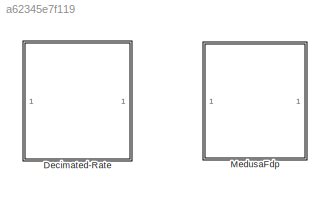
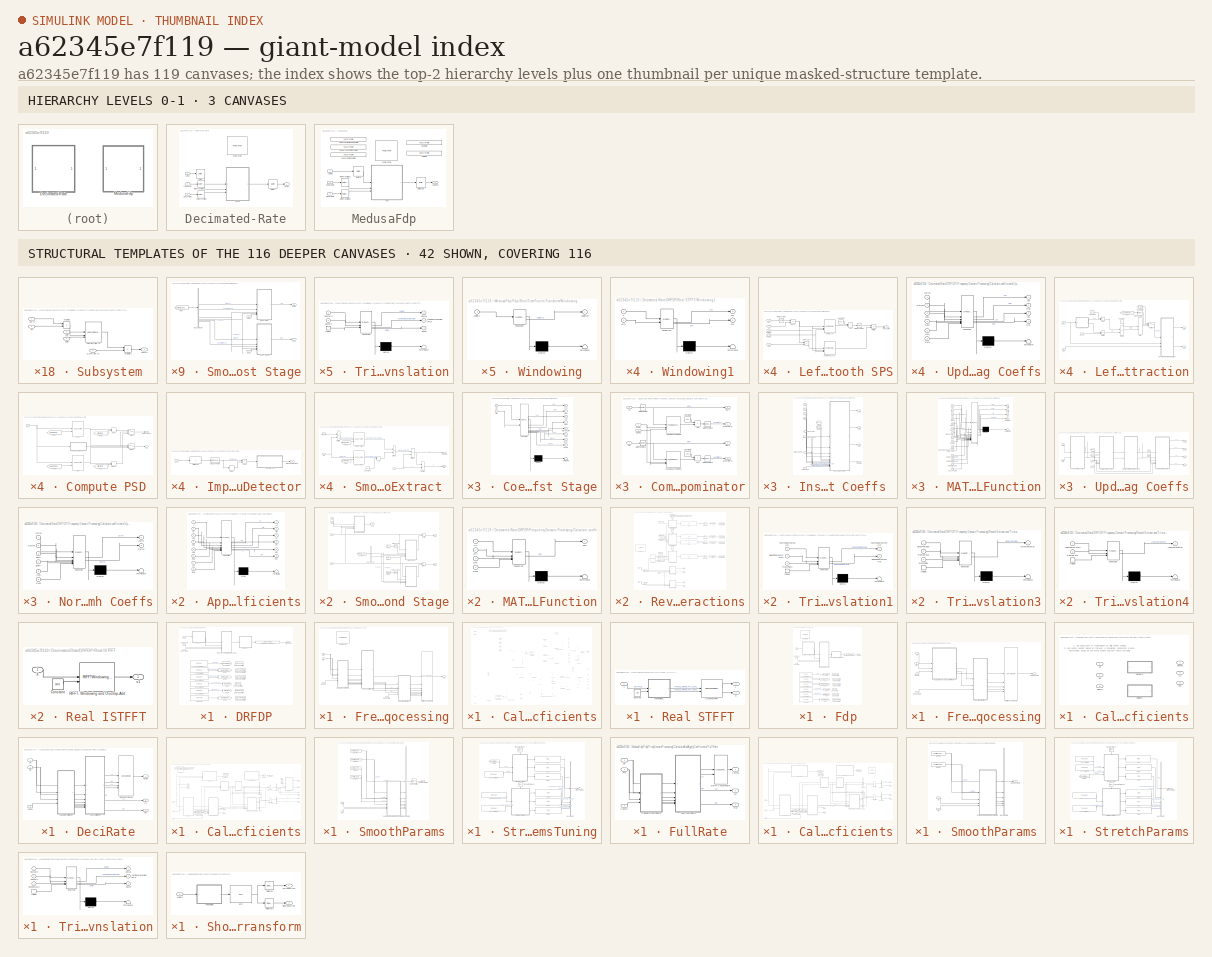
[diagram: thumbnail index - top-2 hierarchy levels (3 canvases) + 42 structural-template representatives of the remaining 116 canvases]
MODEL slx_a62345e7f119
KIND library
CONFIG AbsTol = auto
CONFIG EnableMultiTasking = off
CONFIG FixedStep = auto
CONFIG MaxStep = auto
CONFIG MinStep = auto
CONFIG RelTol = 1e-3
CONFIG SampleTimeConstraint = Unconstrained
CONFIG SolverName = VariableStepAuto
CONFIG StartTime = 0.0
CONFIG StopTime = 10.0
BLOCK [SubSystem] Decimated-Rate
BLOCK [Buffer] Decimated-Rate/Buffer
  N = configStruct.overlap
  OutputFrames = off
BLOCK [Buffer] Decimated-Rate/Buffer1
  N = configStruct.frameSize
  OutputFrames = off
BLOCK [Inport] Decimated-Rate/CAE Enable
  Port = 2
BLOCK [Outport] Decimated-Rate/Comps
  VectorParamsAs1DForOutWhenUnconnected = off
BLOCK [SubSystem] Decimated-Rate/DRFDP
  FunctionWithSeparateData = on
  RTWSystemCode = Nonreusable function
  TreatAsAtomicUnit = on
BLOCK [Inport] Decimated-Rate/DRFDP/CAE Enable
  Port = 2
BLOCK [Outport] Decimated-Rate/DRFDP/DRComps
BLOCK [Inport] Decimated-Rate/DRFDP/Decay Rate
  Port = 3
BLOCK [SubSystem] Decimated-Rate/DRFDP/Frequency Domain Processing
BLOCK [SubSystem] Decimated-Rate/DRFDP/Frequency Domain Processing/Apply coefficients
  ErrorFcn = Stateflow.Translate.translate
  PermitHierarchicalResolution = ExplicitOnly
  SFBlockType = MATLAB Function
  TreatAsAtomicUnit = on
BLOCK [Demux] Decimated-Rate/DRFDP/Frequency Domain Processing/Apply coefficients/ Demux 
  Outputs = 1
BLOCK [S-Function] Decimated-Rate/DRFDP/Frequency Domain Processing/Apply coefficients/ SFunction 
  EnableBusSupport = off
  FunctionName = sf_sfun
  PortCounts = [8 7]
  SFcnIsStateOwnerBlock = off
  SFunctionDeploymentMode = off
  Tag = Stateflow S-Function 9
BLOCK [Terminator] Decimated-Rate/DRFDP/Frequency Domain Processing/Apply coefficients/ Terminator 
BLOCK [Inport] Decimated-Rate/DRFDP/Frequency Domain Processing/Apply coefficients/L
BLOCK [Outport] Decimated-Rate/DRFDP/Frequency Domain Processing/Apply coefficients/Lo
  VectorParamsAs1DForOutWhenUnconnected = off
BLOCK [Inport] Decimated-Rate/DRFDP/Frequency Domain Processing/Apply coefficients/Lok
  Port = 3
BLOCK [Outport] Decimated-Rate/DRFDP/Frequency Domain Processing/Apply coefficients/Ls
  Port = 3
  VectorParamsAs1DForOutWhenUnconnected = off
BLOCK [Inport] Decimated-Rate/DRFDP/Frequency Domain Processing/Apply coefficients/Lsk
  Port = 5
BLOCK [Outport] Decimated-Rate/DRFDP/Frequency Domain Processing/Apply coefficients/Lsr
  Port = 5
  VectorParamsAs1DForOutWhenUnconnected = off
BLOCK [Inport] Decimated-Rate/DRFDP/Frequency Domain Processing/Apply coefficients/Lxk
  Port = 7
BLOCK [Inport] Decimated-Rate/DRFDP/Frequency Domain Processing/Apply coefficients/R
  Port = 2
BLOCK [Outport] Decimated-Rate/DRFDP/Frequency Domain Processing/Apply coefficients/Ro
  Port = 2
  VectorParamsAs1DForOutWhenUnconnected = off
BLOCK [Inport] Decimated-Rate/DRFDP/Frequency Domain Processing/Apply coefficients/Rok
  Port = 4
BLOCK [Outport] Decimated-Rate/DRFDP/Frequency Domain Processing/Apply coefficients/Rs
  Port = 4
  VectorParamsAs1DForOutWhenUnconnected = off
BLOCK [Inport] Decimated-Rate/DRFDP/Frequency Domain Processing/Apply coefficients/Rsk
  Port = 6
BLOCK [Outport] Decimated-Rate/DRFDP/Frequency Domain Processing/Apply coefficients/Rsr
  Port = 6
  VectorParamsAs1DForOutWhenUnconnected = off
BLOCK [Inport] Decimated-Rate/DRFDP/Frequency Domain Processing/Apply coefficients/Rxk
  Port = 8
BLOCK [Inport] Decimated-Rate/DRFDP/Frequency Domain Processing/CAE on
  Port = 3
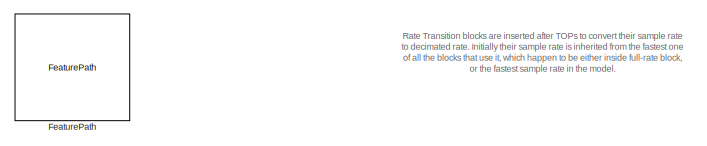
[diagram: Decimated-Rate/DRFDP/Frequency Domain Processing/Calculate coefficients - part 1/7, top left region]
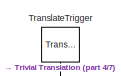
[diagram: Decimated-Rate/DRFDP/Frequency Domain Processing/Calculate coefficients - part 2/7, top right region]
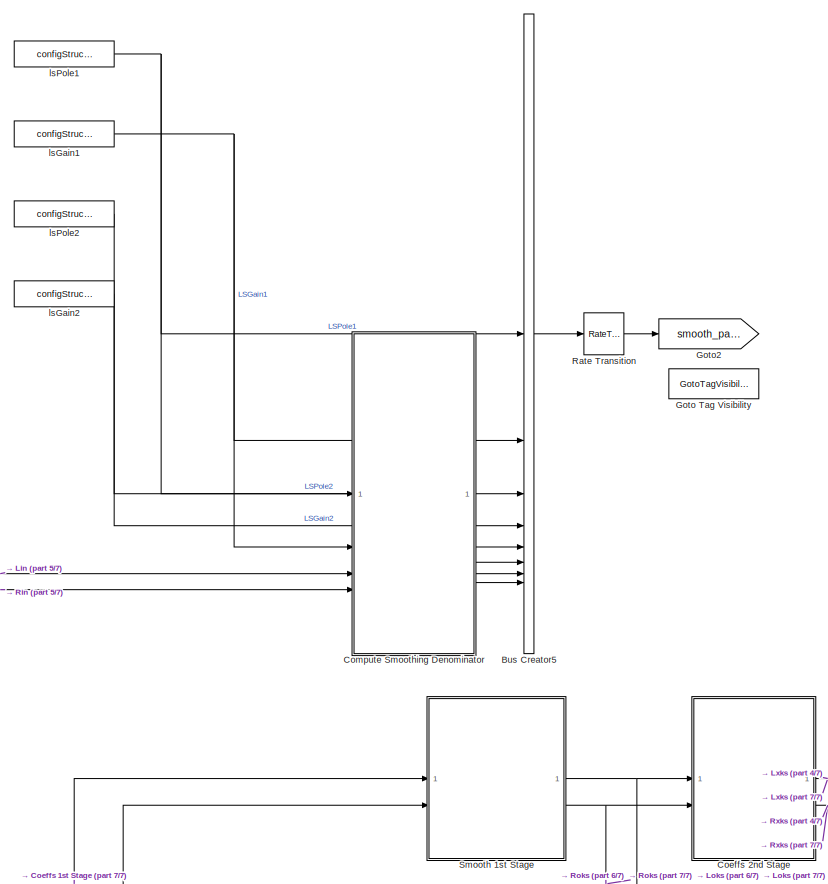
[diagram: Decimated-Rate/DRFDP/Frequency Domain Processing/Calculate coefficients - part 3/7, central region]
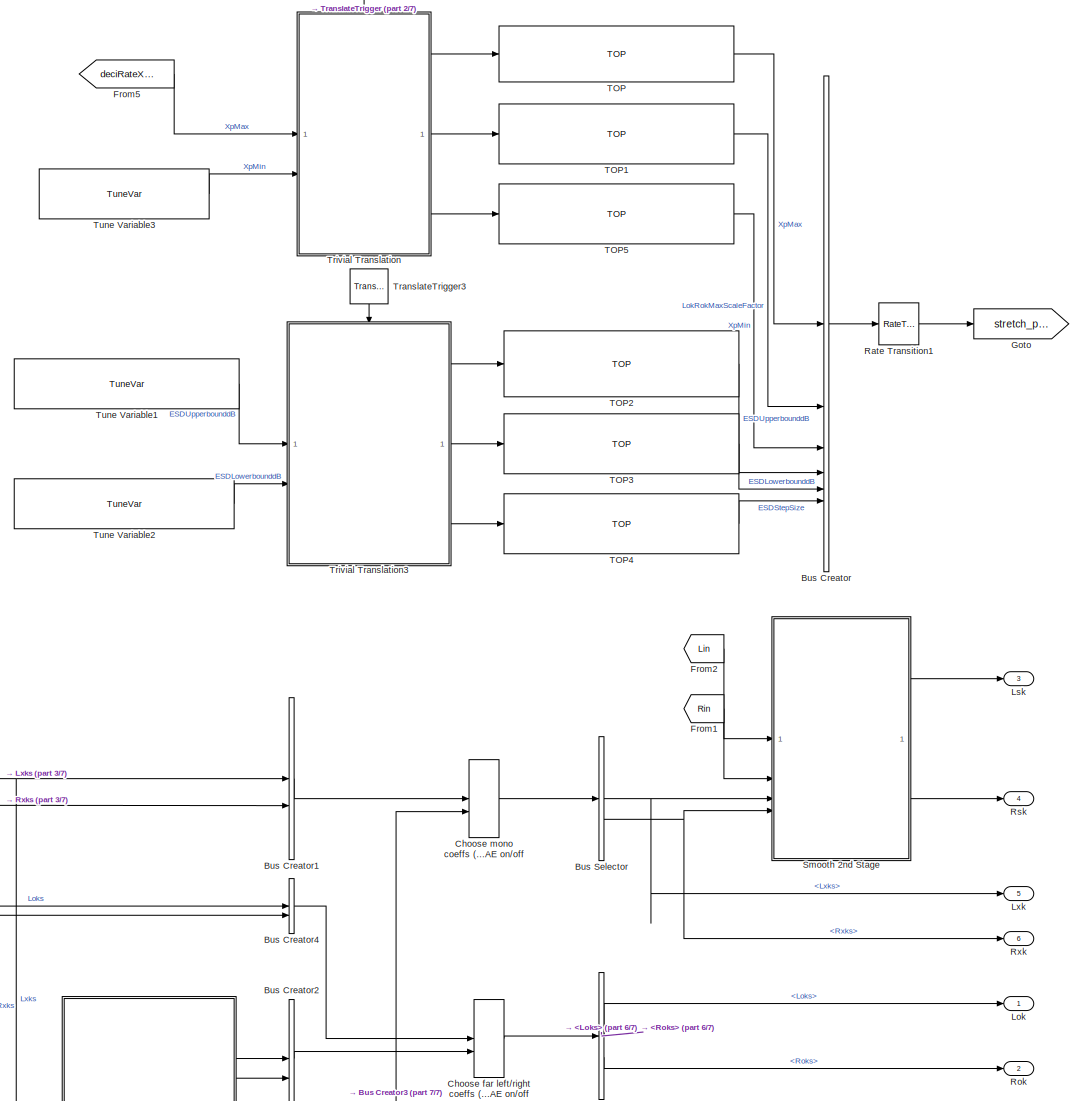
[diagram: Decimated-Rate/DRFDP/Frequency Domain Processing/Calculate coefficients - part 4/7, middle right region]
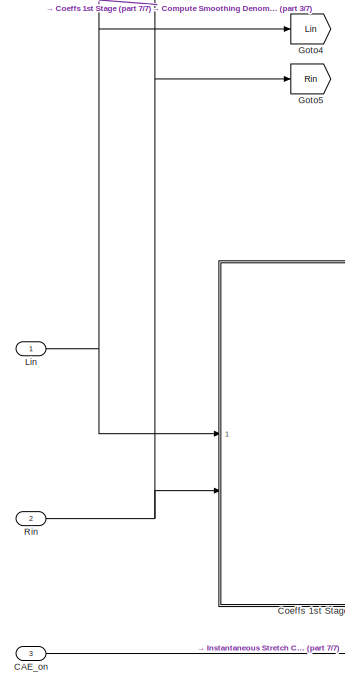
[diagram: Decimated-Rate/DRFDP/Frequency Domain Processing/Calculate coefficients - part 5/7, bottom left region]
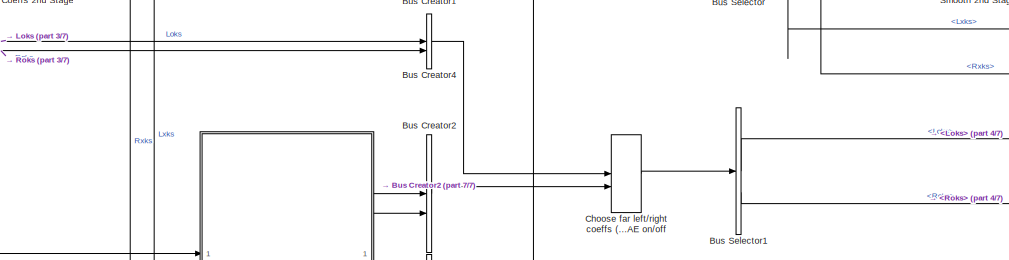
[diagram: Decimated-Rate/DRFDP/Frequency Domain Processing/Calculate coefficients - part 6/7, bottom right region]
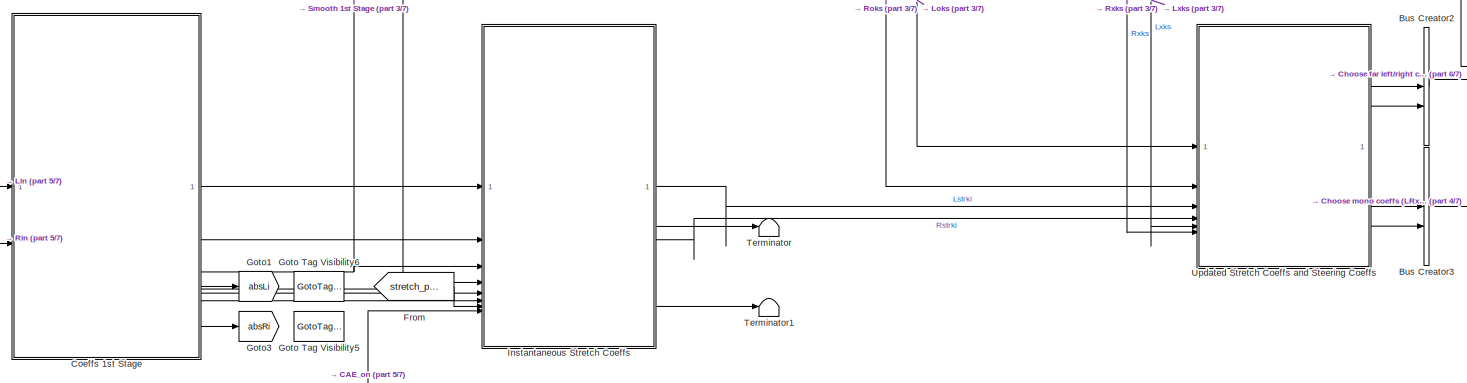
[diagram: Decimated-Rate/DRFDP/Frequency Domain Processing/Calculate coefficients - part 7/7, bottom center region]
BLOCK [SubSystem] Decimated-Rate/DRFDP/Frequency Domain Processing/Calculate coefficients
BLOCK [BusCreator] Decimated-Rate/DRFDP/Frequency Domain Processing/Calculate coefficients/Bus Creator
  DisplayOption = bar
  InheritFromInputs = on
  Inputs = 6
BLOCK [BusCreator] Decimated-Rate/DRFDP/Frequency Domain Processing/Calculate coefficients/Bus Creator1
  DisplayOption = bar
  InheritFromInputs = on
  Inputs = 2
BLOCK [BusCreator] Decimated-Rate/DRFDP/Frequency Domain Processing/Calculate coefficients/Bus Creator2
  DisplayOption = bar
  InheritFromInputs = on
  Inputs = 2
BLOCK [BusCreator] Decimated-Rate/DRFDP/Frequency Domain Processing/Calculate coefficients/Bus Creator3
  DisplayOption = bar
  InheritFromInputs = on
  Inputs = 2
BLOCK [BusCreator] Decimated-Rate/DRFDP/Frequency Domain Processing/Calculate coefficients/Bus Creator4
  DisplayOption = bar
  InheritFromInputs = on
  Inputs = 2
BLOCK [BusCreator] Decimated-Rate/DRFDP/Frequency Domain Processing/Calculate coefficients/Bus Creator5
  DisplayOption = bar
  InheritFromInputs = on
  Inputs = 8
BLOCK [BusSelector] Decimated-Rate/DRFDP/Frequency Domain Processing/Calculate coefficients/Bus Selector
  OutputSignals = Lxks,Rxks
BLOCK [BusSelector] Decimated-Rate/DRFDP/Frequency Domain Processing/Calculate coefficients/Bus Selector1
  OutputSignals = Loks,Roks
BLOCK [Inport] Decimated-Rate/DRFDP/Frequency Domain Processing/Calculate coefficients/CAE_on
  Port = 3
BLOCK [VariantSource] Decimated-Rate/DRFDP/Frequency Domain Processing/Calculate coefficients/Choose far left//right coeffs (LRoks) based on CAE on//off
  VariantActivationTime = update diagram analyze all choices
BLOCK [VariantSource] Decimated-Rate/DRFDP/Frequency Domain Processing/Calculate coefficients/Choose mono coeffs (LRxks) based on CAE on//off
  VariantActivationTime = update diagram analyze all choices
BLOCK [SubSystem] Decimated-Rate/DRFDP/Frequency Domain Processing/Calculate coefficients/Coeffs 1st Stage
  ErrorFcn = Stateflow.Translate.translate
  PermitHierarchicalResolution = ExplicitOnly
  SFBlockType = MATLAB Function
  TreatAsAtomicUnit = on
BLOCK [Demux] Decimated-Rate/DRFDP/Frequency Domain Processing/Calculate coefficients/Coeffs 1st Stage/ Demux 
  Outputs = 1
BLOCK [S-Function] Decimated-Rate/DRFDP/Frequency Domain Processing/Calculate coefficients/Coeffs 1st Stage/ SFunction 
  EnableBusSupport = off
  FunctionName = sf_sfun
  PortCounts = [2 9]
  SFcnIsStateOwnerBlock = off
  SFunctionDeploymentMode = off
  Tag = Stateflow S-Function 12
BLOCK [Terminator] Decimated-Rate/DRFDP/Frequency Domain Processing/Calculate coefficients/Coeffs 1st Stage/ Terminator 
BLOCK [Inport] Decimated-Rate/DRFDP/Frequency Domain Processing/Calculate coefficients/Coeffs 1st Stage/Lin
BLOCK [Outport] Decimated-Rate/DRFDP/Frequency Domain Processing/Calculate coefficients/Coeffs 1st Stage/Lok
  Port = 3
  VectorParamsAs1DForOutWhenUnconnected = off
BLOCK [Outport] Decimated-Rate/DRFDP/Frequency Domain Processing/Calculate coefficients/Coeffs 1st Stage/Lxk
  VectorParamsAs1DForOutWhenUnconnected = off
BLOCK [Inport] Decimated-Rate/DRFDP/Frequency Domain Processing/Calculate coefficients/Coeffs 1st Stage/Rin
  Port = 2
BLOCK [Outport] Decimated-Rate/DRFDP/Frequency Domain Processing/Calculate coefficients/Coeffs 1st Stage/Rok
  Port = 4
  VectorParamsAs1DForOutWhenUnconnected = off
BLOCK [Outport] Decimated-Rate/DRFDP/Frequency Domain Processing/Calculate coefficients/Coeffs 1st Stage/Rxk
  Port = 2
  VectorParamsAs1DForOutWhenUnconnected = off
BLOCK [Outport] Decimated-Rate/DRFDP/Frequency Domain Processing/Calculate coefficients/Coeffs 1st Stage/SPS
  Port = 6
  VectorParamsAs1DForOutWhenUnconnected = off
BLOCK [Outport] Decimated-Rate/DRFDP/Frequency Domain Processing/Calculate coefficients/Coeffs 1st Stage/absLi
  Port = 7
  VectorParamsAs1DForOutWhenUnconnected = off
BLOCK [Outport] Decimated-Rate/DRFDP/Frequency Domain Processing/Calculate coefficients/Coeffs 1st Stage/absRi
  Port = 8
  VectorParamsAs1DForOutWhenUnconnected = off
BLOCK [Outport] Decimated-Rate/DRFDP/Frequency Domain Processing/Calculate coefficients/Coeffs 1st Stage/minAbsLiRi
  Port = 5
  VectorParamsAs1DForOutWhenUnconnected = off
BLOCK [SubSystem] Decimated-Rate/DRFDP/Frequency Domain Processing/Calculate coefficients/Coeffs 2nd Stage
  ErrorFcn = Stateflow.Translate.translate
  PermitHierarchicalResolution = ExplicitOnly
  SFBlockType = MATLAB Function
  TreatAsAtomicUnit = on
BLOCK [Demux] Decimated-Rate/DRFDP/Frequency Domain Processing/Calculate coefficients/Coeffs 2nd Stage/ Demux 
  Outputs = 1
BLOCK [S-Function] Decimated-Rate/DRFDP/Frequency Domain Processing/Calculate coefficients/Coeffs 2nd Stage/ SFunction 
  EnableBusSupport = off
  FunctionName = sf_sfun
  PortCounts = [2 3]
  SFcnIsStateOwnerBlock = off
  SFunctionDeploymentMode = off
  Tag = Stateflow S-Function 13
BLOCK [Terminator] Decimated-Rate/DRFDP/Frequency Domain Processing/Calculate coefficients/Coeffs 2nd Stage/ Terminator 
BLOCK [Inport] Decimated-Rate/DRFDP/Frequency Domain Processing/Calculate coefficients/Coeffs 2nd Stage/Loks
BLOCK [Outport] Decimated-Rate/DRFDP/Frequency Domain Processing/Calculate coefficients/Coeffs 2nd Stage/Lxks
  VectorParamsAs1DForOutWhenUnconnected = off
BLOCK [Inport] Decimated-Rate/DRFDP/Frequency Domain Processing/Calculate coefficients/Coeffs 2nd Stage/Roks
  Port = 2
BLOCK [Outport] Decimated-Rate/DRFDP/Frequency Domain Processing/Calculate coefficients/Coeffs 2nd Stage/Rxks
  Port = 2
  VectorParamsAs1DForOutWhenUnconnected = off
BLOCK [SubSystem] Decimated-Rate/DRFDP/Frequency Domain Processing/Calculate coefficients/Compute Smoothing Denominator
BLOCK [Outport] Decimated-Rate/DRFDP/Frequency Domain Processing/Calculate coefficients/Compute Smoothing Denominator/1//LPF(|Lin|^2)
  Port = 3
  VectorParamsAs1DForOutWhenUnconnected = off
BLOCK [Outport] Decimated-Rate/DRFDP/Frequency Domain Processing/Calculate coefficients/Compute Smoothing Denominator/1//LPF(|Rin|^2)
  Port = 4
  VectorParamsAs1DForOutWhenUnconnected = off
BLOCK [Sum] Decimated-Rate/DRFDP/Frequency Domain Processing/Calculate coefficients/Compute Smoothing Denominator/Add
  IconShape = rectangular
BLOCK [Sum] Decimated-Rate/DRFDP/Frequency Domain Processing/Calculate coefficients/Compute Smoothing Denominator/Add1
  IconShape = rectangular
BLOCK [Constant] Decimated-Rate/DRFDP/Frequency Domain Processing/Calculate coefficients/Compute Smoothing Denominator/Constant1
  OutDataTypeStr = single
  Value = eps
BLOCK [Constant] Decimated-Rate/DRFDP/Frequency Domain Processing/Calculate coefficients/Compute Smoothing Denominator/Constant2
  OutDataTypeStr = single
  Value = eps
BLOCK [Reference] Decimated-Rate/DRFDP/Frequency Domain Processing/Calculate coefficients/Compute Smoothing Denominator/Least Square Smooth  REF=LeastSquareSmooth/LeastSquareSmooth
  SourceBlock = LeastSquareSmooth/LeastSquareSmooth
  SourceType = Least Squares Smooth
BLOCK [Reference] Decimated-Rate/DRFDP/Frequency Domain Processing/Calculate coefficients/Compute Smoothing Denominator/Least Square Smooth1  REF=LeastSquareSmooth/LeastSquareSmooth
  SourceBlock = LeastSquareSmooth/LeastSquareSmooth
  SourceType = Least Squares Smooth
BLOCK [Inport] Decimated-Rate/DRFDP/Frequency Domain Processing/Calculate coefficients/Compute Smoothing Denominator/Lin
  Port = 3
BLOCK [Math] Decimated-Rate/DRFDP/Frequency Domain Processing/Calculate coefficients/Compute Smoothing Denominator/Math Function
  Operator = magnitude^2
  SignedPower = on
BLOCK [Math] Decimated-Rate/DRFDP/Frequency Domain Processing/Calculate coefficients/Compute Smoothing Denominator/Math Function1
  Operator = magnitude^2
  SignedPower = on
BLOCK [Math] Decimated-Rate/DRFDP/Frequency Domain Processing/Calculate coefficients/Compute Smoothing Denominator/Math Function2
  Operator = reciprocal
  SignedPower = on
BLOCK [Math] Decimated-Rate/DRFDP/Frequency Domain Processing/Calculate coefficients/Compute Smoothing Denominator/Math Function3
  Operator = reciprocal
  SignedPower = on
BLOCK [Inport] Decimated-Rate/DRFDP/Frequency Domain Processing/Calculate coefficients/Compute Smoothing Denominator/Rin
  Port = 4
BLOCK [Inport] Decimated-Rate/DRFDP/Frequency Domain Processing/Calculate coefficients/Compute Smoothing Denominator/lsgain1
  Port = 2
BLOCK [Inport] Decimated-Rate/DRFDP/Frequency Domain Processing/Calculate coefficients/Compute Smoothing Denominator/lspole1
BLOCK [Outport] Decimated-Rate/DRFDP/Frequency Domain Processing/Calculate coefficients/Compute Smoothing Denominator/|Lin|^2
  VectorParamsAs1DForOutWhenUnconnected = off
BLOCK [Outport] Decimated-Rate/DRFDP/Frequency Domain Processing/Calculate coefficients/Compute Smoothing Denominator/|Rin|^2
  Port = 2
  VectorParamsAs1DForOutWhenUnconnected = off
BLOCK [Reference] Decimated-Rate/DRFDP/Frequency Domain Processing/Calculate coefficients/FeaturePath  REF=FeaturePath/FeaturePath
  SourceBlock = FeaturePath/FeaturePath
  SourceProductName = Bose Talaria
  SourceType = Talaria Feature Path
BLOCK [From] Decimated-Rate/DRFDP/Frequency Domain Processing/Calculate coefficients/From
  GotoTag = stretch_params
BLOCK [From] Decimated-Rate/DRFDP/Frequency Domain Processing/Calculate coefficients/From1
  GotoTag = Rin
BLOCK [From] Decimated-Rate/DRFDP/Frequency Domain Processing/Calculate coefficients/From2
  GotoTag = Lin
BLOCK [From] Decimated-Rate/DRFDP/Frequency Domain Processing/Calculate coefficients/From5
  GotoTag = deciRateXpMax
  TagVisibility = scoped
BLOCK [Goto] Decimated-Rate/DRFDP/Frequency Domain Processing/Calculate coefficients/Goto
  GotoTag = stretch_params
BLOCK [GotoTagVisibility] Decimated-Rate/DRFDP/Frequency Domain Processing/Calculate coefficients/Goto Tag Visibility
  GotoTag = smooth_params
BLOCK [GotoTagVisibility] Decimated-Rate/DRFDP/Frequency Domain Processing/Calculate coefficients/Goto Tag Visibility5
  GotoTag = absLi
BLOCK [GotoTagVisibility] Decimated-Rate/DRFDP/Frequency Domain Processing/Calculate coefficients/Goto Tag Visibility6
  GotoTag = absRi
BLOCK [Goto] Decimated-Rate/DRFDP/Frequency Domain Processing/Calculate coefficients/Goto1
  GotoTag = absLi
  TagVisibility = scoped
BLOCK [Goto] Decimated-Rate/DRFDP/Frequency Domain Processing/Calculate coefficients/Goto2
  GotoTag = smooth_params
  TagVisibility = scoped
BLOCK [Goto] Decimated-Rate/DRFDP/Frequency Domain Processing/Calculate coefficients/Goto3
  GotoTag = absRi
  TagVisibility = scoped
BLOCK [Goto] Decimated-Rate/DRFDP/Frequency Domain Processing/Calculate coefficients/Goto4
  GotoTag = Lin
BLOCK [Goto] Decimated-Rate/DRFDP/Frequency Domain Processing/Calculate coefficients/Goto5
  GotoTag = Rin
BLOCK [SubSystem] Decimated-Rate/DRFDP/Frequency Domain Processing/Calculate coefficients/Instantaneous Stretch Coeffs 
  RTWSystemCode = Inline
BLOCK [BusSelector] Decimated-Rate/DRFDP/Frequency Domain Processing/Calculate coefficients/Instantaneous Stretch Coeffs /Bus Selector
  OutputSignals = XpMax,XpMin,LokRokMaxScaleFactor,ESDLowerbounddB,ESDUpperbounddB,ESDStepSize
BLOCK [Outport] Decimated-Rate/DRFDP/Frequency Domain Processing/Calculate coefficients/Instantaneous Stretch Coeffs /ESDdB
  Port = 4
  VectorParamsAs1DForOutWhenUnconnected = off
BLOCK [From] Decimated-Rate/DRFDP/Frequency Domain Processing/Calculate coefficients/Instantaneous Stretch Coeffs /From
  GotoTag = absLi
  TagVisibility = scoped
BLOCK [From] Decimated-Rate/DRFDP/Frequency Domain Processing/Calculate coefficients/Instantaneous Stretch Coeffs /From1
  GotoTag = absRi
  TagVisibility = scoped
BLOCK [Inport] Decimated-Rate/DRFDP/Frequency Domain Processing/Calculate coefficients/Instantaneous Stretch Coeffs /Lok
  Port = 3
BLOCK [Outport] Decimated-Rate/DRFDP/Frequency Domain Processing/Calculate coefficients/Instantaneous Stretch Coeffs /Lstrk
  VectorParamsAs1DForOutWhenUnconnected = off
BLOCK [Inport] Decimated-Rate/DRFDP/Frequency Domain Processing/Calculate coefficients/Instantaneous Stretch Coeffs /Lxk
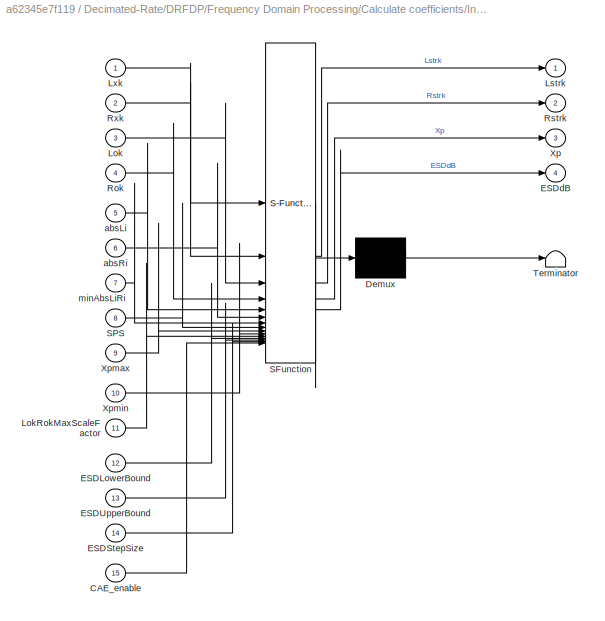
BLOCK [SubSystem] Decimated-Rate/DRFDP/Frequency Domain Processing/Calculate coefficients/Instantaneous Stretch Coeffs /MATLAB Function
  ErrorFcn = Stateflow.Translate.translate
  PermitHierarchicalResolution = ExplicitOnly
  SFBlockType = MATLAB Function
  TreatAsAtomicUnit = on
BLOCK [Demux] Decimated-Rate/DRFDP/Frequency Domain Processing/Calculate coefficients/Instantaneous Stretch Coeffs /MATLAB Function/ Demux 
  Outputs = 1
BLOCK [S-Function] Decimated-Rate/DRFDP/Frequency Domain Processing/Calculate coefficients/Instantaneous Stretch Coeffs /MATLAB Function/ SFunction 
  EnableBusSupport = off
  FunctionName = sf_sfun
  PortCounts = [15 5]
  SFcnIsStateOwnerBlock = off
  SFunctionDeploymentMode = off
  Tag = Stateflow S-Function 16
BLOCK [Terminator] Decimated-Rate/DRFDP/Frequency Domain Processing/Calculate coefficients/Instantaneous Stretch Coeffs /MATLAB Function/ Terminator 
BLOCK [Inport] Decimated-Rate/DRFDP/Frequency Domain Processing/Calculate coefficients/Instantaneous Stretch Coeffs /MATLAB Function/CAE_enable
  Port = 15
BLOCK [Inport] Decimated-Rate/DRFDP/Frequency Domain Processing/Calculate coefficients/Instantaneous Stretch Coeffs /MATLAB Function/ESDLowerBound
  Port = 12
BLOCK [Inport] Decimated-Rate/DRFDP/Frequency Domain Processing/Calculate coefficients/Instantaneous Stretch Coeffs /MATLAB Function/ESDStepSize
  Port = 14
BLOCK [Inport] Decimated-Rate/DRFDP/Frequency Domain Processing/Calculate coefficients/Instantaneous Stretch Coeffs /MATLAB Function/ESDUpperBound
  Port = 13
BLOCK [Outport] Decimated-Rate/DRFDP/Frequency Domain Processing/Calculate coefficients/Instantaneous Stretch Coeffs /MATLAB Function/ESDdB
  Port = 4
  VectorParamsAs1DForOutWhenUnconnected = off
BLOCK [Inport] Decimated-Rate/DRFDP/Frequency Domain Processing/Calculate coefficients/Instantaneous Stretch Coeffs /MATLAB Function/Lok
  Port = 3
BLOCK [Inport] Decimated-Rate/DRFDP/Frequency Domain Processing/Calculate coefficients/Instantaneous Stretch Coeffs /MATLAB Function/LokRokMaxScaleFactor
  Port = 11
BLOCK [Outport] Decimated-Rate/DRFDP/Frequency Domain Processing/Calculate coefficients/Instantaneous Stretch Coeffs /MATLAB Function/Lstrk
  VectorParamsAs1DForOutWhenUnconnected = off
BLOCK [Inport] Decimated-Rate/DRFDP/Frequency Domain Processing/Calculate coefficients/Instantaneous Stretch Coeffs /MATLAB Function/Lxk
BLOCK [Inport] Decimated-Rate/DRFDP/Frequency Domain Processing/Calculate coefficients/Instantaneous Stretch Coeffs /MATLAB Function/Rok
  Port = 4
BLOCK [Outport] Decimated-Rate/DRFDP/Frequency Domain Processing/Calculate coefficients/Instantaneous Stretch Coeffs /MATLAB Function/Rstrk
  Port = 2
  VectorParamsAs1DForOutWhenUnconnected = off
BLOCK [Inport] Decimated-Rate/DRFDP/Frequency Domain Processing/Calculate coefficients/Instantaneous Stretch Coeffs /MATLAB Function/Rxk
  Port = 2
BLOCK [Inport] Decimated-Rate/DRFDP/Frequency Domain Processing/Calculate coefficients/Instantaneous Stretch Coeffs /MATLAB Function/SPS
  Port = 8
BLOCK [Outport] Decimated-Rate/DRFDP/Frequency Domain Processing/Calculate coefficients/Instantaneous Stretch Coeffs /MATLAB Function/Xp
  Port = 3
  VectorParamsAs1DForOutWhenUnconnected = off
BLOCK [Inport] Decimated-Rate/DRFDP/Frequency Domain Processing/Calculate coefficients/Instantaneous Stretch Coeffs /MATLAB Function/Xpmax
  Port = 9
BLOCK [Inport] Decimated-Rate/DRFDP/Frequency Domain Processing/Calculate coefficients/Instantaneous Stretch Coeffs /MATLAB Function/Xpmin
  Port = 10
BLOCK [Inport] Decimated-Rate/DRFDP/Frequency Domain Processing/Calculate coefficients/Instantaneous Stretch Coeffs /MATLAB Function/absLi
  Port = 5
BLOCK [Inport] Decimated-Rate/DRFDP/Frequency Domain Processing/Calculate coefficients/Instantaneous Stretch Coeffs /MATLAB Function/absRi
  Port = 6
BLOCK [Inport] Decimated-Rate/DRFDP/Frequency Domain Processing/Calculate coefficients/Instantaneous Stretch Coeffs /MATLAB Function/minAbsLiRi
  Port = 7
BLOCK [Inport] Decimated-Rate/DRFDP/Frequency Domain Processing/Calculate coefficients/Instantaneous Stretch Coeffs /Rok
  Port = 4
BLOCK [Outport] Decimated-Rate/DRFDP/Frequency Domain Processing/Calculate coefficients/Instantaneous Stretch Coeffs /Rstrk
  Port = 2
  VectorParamsAs1DForOutWhenUnconnected = off
BLOCK [Inport] Decimated-Rate/DRFDP/Frequency Domain Processing/Calculate coefficients/Instantaneous Stretch Coeffs /Rxk
  Port = 2
BLOCK [Inport] Decimated-Rate/DRFDP/Frequency Domain Processing/Calculate coefficients/Instantaneous Stretch Coeffs /SPS
  Port = 6
BLOCK [Outport] Decimated-Rate/DRFDP/Frequency Domain Processing/Calculate coefficients/Instantaneous Stretch Coeffs /Xp
  Port = 3
  VectorParamsAs1DForOutWhenUnconnected = off
BLOCK [Inport] Decimated-Rate/DRFDP/Frequency Domain Processing/Calculate coefficients/Instantaneous Stretch Coeffs /caeEnable
  Port = 8
BLOCK [Inport] Decimated-Rate/DRFDP/Frequency Domain Processing/Calculate coefficients/Instantaneous Stretch Coeffs /minAbsLiRi
  Port = 5
BLOCK [Inport] Decimated-Rate/DRFDP/Frequency Domain Processing/Calculate coefficients/Instantaneous Stretch Coeffs /stretch params
  Port = 7
BLOCK [Inport] Decimated-Rate/DRFDP/Frequency Domain Processing/Calculate coefficients/Lin
BLOCK [Outport] Decimated-Rate/DRFDP/Frequency Domain Processing/Calculate coefficients/Lok
  VectorParamsAs1DForOutWhenUnconnected = off
BLOCK [Outport] Decimated-Rate/DRFDP/Frequency Domain Processing/Calculate coefficients/Lsk
  Port = 3
  VectorParamsAs1DForOutWhenUnconnected = off
BLOCK [Outport] Decimated-Rate/DRFDP/Frequency Domain Processing/Calculate coefficients/Lxk
  Port = 5
  VectorParamsAs1DForOutWhenUnconnected = off
BLOCK [RateTransition] Decimated-Rate/DRFDP/Frequency Domain Processing/Calculate coefficients/Rate Transition
  Deterministic = off
  Integrity = off
  OutPortSampleTime = 1/frameRate
BLOCK [RateTransition] Decimated-Rate/DRFDP/Frequency Domain Processing/Calculate coefficients/Rate Transition1
  Deterministic = off
  Integrity = off
  OutPortSampleTime = 1/frameRate
BLOCK [Inport] Decimated-Rate/DRFDP/Frequency Domain Processing/Calculate coefficients/Rin
  Port = 2
BLOCK [Outport] Decimated-Rate/DRFDP/Frequency Domain Processing/Calculate coefficients/Rok
  Port = 2
  VectorParamsAs1DForOutWhenUnconnected = off
BLOCK [Outport] Decimated-Rate/DRFDP/Frequency Domain Processing/Calculate coefficients/Rsk
  Port = 4
  VectorParamsAs1DForOutWhenUnconnected = off
BLOCK [Outport] Decimated-Rate/DRFDP/Frequency Domain Processing/Calculate coefficients/Rxk
  Port = 6
  VectorParamsAs1DForOutWhenUnconnected = off
BLOCK [SubSystem] Decimated-Rate/DRFDP/Frequency Domain Processing/Calculate coefficients/Smooth 1st Stage
BLOCK [BusSelector] Decimated-Rate/DRFDP/Frequency Domain Processing/Calculate coefficients/Smooth 1st Stage/Bus Selector
  OutputSignals = |Lin|^2,1/LPF(|Lin|^2),LSPole1,LSGain1,|Rin|^2,1/LPF(|Rin|^2)
BLOCK [From] Decimated-Rate/DRFDP/Frequency Domain Processing/Calculate coefficients/Smooth 1st Stage/From
  GotoTag = smooth_params
  TagVisibility = scoped
BLOCK [Inport] Decimated-Rate/DRFDP/Frequency Domain Processing/Calculate coefficients/Smooth 1st Stage/Loki
BLOCK [Outport] Decimated-Rate/DRFDP/Frequency Domain Processing/Calculate coefficients/Smooth 1st Stage/Loks
  VectorParamsAs1DForOutWhenUnconnected = off
BLOCK [Inport] Decimated-Rate/DRFDP/Frequency Domain Processing/Calculate coefficients/Smooth 1st Stage/Roki
  Port = 2
BLOCK [Outport] Decimated-Rate/DRFDP/Frequency Domain Processing/Calculate coefficients/Smooth 1st Stage/Roks
  Port = 2
  VectorParamsAs1DForOutWhenUnconnected = off
BLOCK [SubSystem] Decimated-Rate/DRFDP/Frequency Domain Processing/Calculate coefficients/Smooth 1st Stage/Subsystem
BLOCK [Inport] Decimated-Rate/DRFDP/Frequency Domain Processing/Calculate coefficients/Smooth 1st Stage/Subsystem/1//LPF(|Xin|^2)
  Port = 2
BLOCK [Reference] Decimated-Rate/DRFDP/Frequency Domain Processing/Calculate coefficients/Smooth 1st Stage/Subsystem/LPF(Xk*|Xin|^2)  REF=LeastSquareSmooth/LeastSquareSmooth
  SourceBlock = LeastSquareSmooth/LeastSquareSmooth
  SourceType = Least Squares Smooth
BLOCK [Product] Decimated-Rate/DRFDP/Frequency Domain Processing/Calculate coefficients/Smooth 1st Stage/Subsystem/Multiply
BLOCK [Product] Decimated-Rate/DRFDP/Frequency Domain Processing/Calculate coefficients/Smooth 1st Stage/Subsystem/Multiply1
BLOCK [Inport] Decimated-Rate/DRFDP/Frequency Domain Processing/Calculate coefficients/Smooth 1st Stage/Subsystem/Xk
  Port = 5
BLOCK [Outport] Decimated-Rate/DRFDP/Frequency Domain Processing/Calculate coefficients/Smooth 1st Stage/Subsystem/Xsmth
  VectorParamsAs1DForOutWhenUnconnected = off
BLOCK [Inport] Decimated-Rate/DRFDP/Frequency Domain Processing/Calculate coefficients/Smooth 1st Stage/Subsystem/gain 
  Port = 4
BLOCK [Inport] Decimated-Rate/DRFDP/Frequency Domain Processing/Calculate coefficients/Smooth 1st Stage/Subsystem/pole
  Port = 3
BLOCK [Inport] Decimated-Rate/DRFDP/Frequency Domain Processing/Calculate coefficients/Smooth 1st Stage/Subsystem/|Xin|^2
BLOCK [SubSystem] Decimated-Rate/DRFDP/Frequency Domain Processing/Calculate coefficients/Smooth 1st Stage/Subsystem1
BLOCK [Inport] Decimated-Rate/DRFDP/Frequency Domain Processing/Calculate coefficients/Smooth 1st Stage/Subsystem1/1//LPF(|Xin|^2)
  Port = 2
BLOCK [Reference] Decimated-Rate/DRFDP/Frequency Domain Processing/Calculate coefficients/Smooth 1st Stage/Subsystem1/LPF(Xk*|Xin|^2)  REF=LeastSquareSmooth/LeastSquareSmooth
  SourceBlock = LeastSquareSmooth/LeastSquareSmooth
  SourceType = Least Squares Smooth
BLOCK [Product] Decimated-Rate/DRFDP/Frequency Domain Processing/Calculate coefficients/Smooth 1st Stage/Subsystem1/Multiply
BLOCK [Product] Decimated-Rate/DRFDP/Frequency Domain Processing/Calculate coefficients/Smooth 1st Stage/Subsystem1/Multiply1
BLOCK [Inport] Decimated-Rate/DRFDP/Frequency Domain Processing/Calculate coefficients/Smooth 1st Stage/Subsystem1/Xk
  Port = 5
BLOCK [Outport] Decimated-Rate/DRFDP/Frequency Domain Processing/Calculate coefficients/Smooth 1st Stage/Subsystem1/Xsmth
  VectorParamsAs1DForOutWhenUnconnected = off
BLOCK [Inport] Decimated-Rate/DRFDP/Frequency Domain Processing/Calculate coefficients/Smooth 1st Stage/Subsystem1/gain 
  Port = 4
BLOCK [Inport] Decimated-Rate/DRFDP/Frequency Domain Processing/Calculate coefficients/Smooth 1st Stage/Subsystem1/pole
  Port = 3
BLOCK [Inport] Decimated-Rate/DRFDP/Frequency Domain Processing/Calculate coefficients/Smooth 1st Stage/Subsystem1/|Xin|^2
BLOCK [SubSystem] Decimated-Rate/DRFDP/Frequency Domain Processing/Calculate coefficients/Smooth 2nd Stage
BLOCK [BusSelector] Decimated-Rate/DRFDP/Frequency Domain Processing/Calculate coefficients/Smooth 2nd Stage/Bus Selector
  OutputSignals = LSPole2,LSGain2
BLOCK [From] Decimated-Rate/DRFDP/Frequency Domain Processing/Calculate coefficients/Smooth 2nd Stage/From
  GotoTag = smooth_params
  TagVisibility = scoped
BLOCK [From] Decimated-Rate/DRFDP/Frequency Domain Processing/Calculate coefficients/Smooth 2nd Stage/From1
  GotoTag = absLi
  TagVisibility = scoped
BLOCK [From] Decimated-Rate/DRFDP/Frequency Domain Processing/Calculate coefficients/Smooth 2nd Stage/From2
  GotoTag = absRi
  TagVisibility = scoped
BLOCK [From] Decimated-Rate/DRFDP/Frequency Domain Processing/Calculate coefficients/Smooth 2nd Stage/From3
  GotoTag = SPS
BLOCK [Goto] Decimated-Rate/DRFDP/Frequency Domain Processing/Calculate coefficients/Smooth 2nd Stage/Goto
  GotoTag = SPS
BLOCK [SubSystem] Decimated-Rate/DRFDP/Frequency Domain Processing/Calculate coefficients/Smooth 2nd Stage/Left smooth SPS
BLOCK [Reference] Decimated-Rate/DRFDP/Frequency Domain Processing/Calculate coefficients/Smooth 2nd Stage/Left smooth SPS/ LPF(|Lx|^2)  REF=LeastSquareSmooth/LeastSquareSmooth
  SourceBlock = LeastSquareSmooth/LeastSquareSmooth
  SourceType = Least Squares Smooth
BLOCK [Sum] Decimated-Rate/DRFDP/Frequency Domain Processing/Calculate coefficients/Smooth 2nd Stage/Left smooth SPS/Add
  IconShape = rectangular
BLOCK [Constant] Decimated-Rate/DRFDP/Frequency Domain Processing/Calculate coefficients/Smooth 2nd Stage/Left smooth SPS/Constant1
  OutDataTypeStr = single
  Value = eps
BLOCK [Inport] Decimated-Rate/DRFDP/Frequency Domain Processing/Calculate coefficients/Smooth 2nd Stage/Left smooth SPS/L2
  Port = 2
BLOCK [Reference] Decimated-Rate/DRFDP/Frequency Domain Processing/Calculate coefficients/Smooth 2nd Stage/Left smooth SPS/LPF(SPS*|Lx|^2)  REF=LeastSquareSmooth/LeastSquareSmooth
  SourceBlock = LeastSquareSmooth/LeastSquareSmooth
  SourceType = Least Squares Smooth
BLOCK [Inport] Decimated-Rate/DRFDP/Frequency Domain Processing/Calculate coefficients/Smooth 2nd Stage/Left smooth SPS/Lxk
BLOCK [Math] Decimated-Rate/DRFDP/Frequency Domain Processing/Calculate coefficients/Smooth 2nd Stage/Left smooth SPS/Math Function
  Operator = magnitude^2
  SignedPower = on
BLOCK [Math] Decimated-Rate/DRFDP/Frequency Domain Processing/Calculate coefficients/Smooth 2nd Stage/Left smooth SPS/Math Function1
  Operator = reciprocal
  SignedPower = on
BLOCK [Product] Decimated-Rate/DRFDP/Frequency Domain Processing/Calculate coefficients/Smooth 2nd Stage/Left smooth SPS/Multiply
BLOCK [Inport] Decimated-Rate/DRFDP/Frequency Domain Processing/Calculate coefficients/Smooth 2nd Stage/Left smooth SPS/SPS
  Port = 5
BLOCK [Product] Decimated-Rate/DRFDP/Frequency Domain Processing/Calculate coefficients/Smooth 2nd Stage/Left smooth SPS/SPS*|Lx|^2
BLOCK [Outport] Decimated-Rate/DRFDP/Frequency Domain Processing/Calculate coefficients/Smooth 2nd Stage/Left smooth SPS/SPSLsmth
  VectorParamsAs1DForOutWhenUnconnected = off
BLOCK [Inport] Decimated-Rate/DRFDP/Frequency Domain Processing/Calculate coefficients/Smooth 2nd Stage/Left smooth SPS/lsgain2
  Port = 4
BLOCK [Inport] Decimated-Rate/DRFDP/Frequency Domain Processing/Calculate coefficients/Smooth 2nd Stage/Left smooth SPS/lspole2
  Port = 3
BLOCK [Product] Decimated-Rate/DRFDP/Frequency Domain Processing/Calculate coefficients/Smooth 2nd Stage/Left smooth SPS/|Lx|^2
BLOCK [Inport] Decimated-Rate/DRFDP/Frequency Domain Processing/Calculate coefficients/Smooth 2nd Stage/Lin 
BLOCK [Outport] Decimated-Rate/DRFDP/Frequency Domain Processing/Calculate coefficients/Smooth 2nd Stage/Lsks
  VectorParamsAs1DForOutWhenUnconnected = off
BLOCK [Inport] Decimated-Rate/DRFDP/Frequency Domain Processing/Calculate coefficients/Smooth 2nd Stage/Lxks
  Port = 3
BLOCK [SubSystem] Decimated-Rate/DRFDP/Frequency Domain Processing/Calculate coefficients/Smooth 2nd Stage/MATLAB Function
  ErrorFcn = Stateflow.Translate.translate
  PermitHierarchicalResolution = ExplicitOnly
  SFBlockType = MATLAB Function
  TreatAsAtomicUnit = on
BLOCK [Demux] Decimated-Rate/DRFDP/Frequency Domain Processing/Calculate coefficients/Smooth 2nd Stage/MATLAB Function/ Demux 
  Outputs = 1
BLOCK [S-Function] Decimated-Rate/DRFDP/Frequency Domain Processing/Calculate coefficients/Smooth 2nd Stage/MATLAB Function/ SFunction 
  EnableBusSupport = off
  FunctionName = sf_sfun
  PortCounts = [4 2]
  SFcnIsStateOwnerBlock = off
  SFunctionDeploymentMode = off
  Tag = Stateflow S-Function 18
BLOCK [Terminator] Decimated-Rate/DRFDP/Frequency Domain Processing/Calculate coefficients/Smooth 2nd Stage/MATLAB Function/ Terminator 
BLOCK [Inport] Decimated-Rate/DRFDP/Frequency Domain Processing/Calculate coefficients/Smooth 2nd Stage/MATLAB Function/Lin
BLOCK [Inport] Decimated-Rate/DRFDP/Frequency Domain Processing/Calculate coefficients/Smooth 2nd Stage/MATLAB Function/Lxks
  Port = 3
BLOCK [Inport] Decimated-Rate/DRFDP/Frequency Domain Processing/Calculate coefficients/Smooth 2nd Stage/MATLAB Function/Rin
  Port = 2
BLOCK [Inport] Decimated-Rate/DRFDP/Frequency Domain Processing/Calculate coefficients/Smooth 2nd Stage/MATLAB Function/Rxks
  Port = 4
BLOCK [Outport] Decimated-Rate/DRFDP/Frequency Domain Processing/Calculate coefficients/Smooth 2nd Stage/MATLAB Function/SPS
  VectorParamsAs1DForOutWhenUnconnected = off
BLOCK [Math] Decimated-Rate/DRFDP/Frequency Domain Processing/Calculate coefficients/Smooth 2nd Stage/Math Function
  Operator = magnitude^2
  SignedPower = on
BLOCK [Math] Decimated-Rate/DRFDP/Frequency Domain Processing/Calculate coefficients/Smooth 2nd Stage/Math Function1
  Operator = magnitude^2
  SignedPower = on
BLOCK [Product] Decimated-Rate/DRFDP/Frequency Domain Processing/Calculate coefficients/Smooth 2nd Stage/Multiply
BLOCK [Product] Decimated-Rate/DRFDP/Frequency Domain Processing/Calculate coefficients/Smooth 2nd Stage/Multiply1
BLOCK [SubSystem] Decimated-Rate/DRFDP/Frequency Domain Processing/Calculate coefficients/Smooth 2nd Stage/Right smooth SPS
BLOCK [Sum] Decimated-Rate/DRFDP/Frequency Domain Processing/Calculate coefficients/Smooth 2nd Stage/Right smooth SPS/Add
  IconShape = rectangular
BLOCK [Constant] Decimated-Rate/DRFDP/Frequency Domain Processing/Calculate coefficients/Smooth 2nd Stage/Right smooth SPS/Constant1
  OutDataTypeStr = single
  Value = eps
BLOCK [Reference] Decimated-Rate/DRFDP/Frequency Domain Processing/Calculate coefficients/Smooth 2nd Stage/Right smooth SPS/LPF(SPS*|Rx|^2)  REF=LeastSquareSmooth/LeastSquareSmooth
  SourceBlock = LeastSquareSmooth/LeastSquareSmooth
  SourceType = Least Squares Smooth
BLOCK [Reference] Decimated-Rate/DRFDP/Frequency Domain Processing/Calculate coefficients/Smooth 2nd Stage/Right smooth SPS/LPF(|Rx|^2)  REF=LeastSquareSmooth/LeastSquareSmooth
  SourceBlock = LeastSquareSmooth/LeastSquareSmooth
  SourceType = Least Squares Smooth
BLOCK [Math] Decimated-Rate/DRFDP/Frequency Domain Processing/Calculate coefficients/Smooth 2nd Stage/Right smooth SPS/Math Function
  Operator = magnitude^2
  SignedPower = on
BLOCK [Math] Decimated-Rate/DRFDP/Frequency Domain Processing/Calculate coefficients/Smooth 2nd Stage/Right smooth SPS/Math Function1
  Operator = reciprocal
  SignedPower = on
BLOCK [Product] Decimated-Rate/DRFDP/Frequency Domain Processing/Calculate coefficients/Smooth 2nd Stage/Right smooth SPS/Multiply
BLOCK [Inport] Decimated-Rate/DRFDP/Frequency Domain Processing/Calculate coefficients/Smooth 2nd Stage/Right smooth SPS/R2
  Port = 2
BLOCK [Inport] Decimated-Rate/DRFDP/Frequency Domain Processing/Calculate coefficients/Smooth 2nd Stage/Right smooth SPS/Rxk
BLOCK [Inport] Decimated-Rate/DRFDP/Frequency Domain Processing/Calculate coefficients/Smooth 2nd Stage/Right smooth SPS/SPS
  Port = 5
BLOCK [Product] Decimated-Rate/DRFDP/Frequency Domain Processing/Calculate coefficients/Smooth 2nd Stage/Right smooth SPS/SPS*|Rx|^2
BLOCK [Outport] Decimated-Rate/DRFDP/Frequency Domain Processing/Calculate coefficients/Smooth 2nd Stage/Right smooth SPS/SPSRsmth
  VectorParamsAs1DForOutWhenUnconnected = off
BLOCK [Inport] Decimated-Rate/DRFDP/Frequency Domain Processing/Calculate coefficients/Smooth 2nd Stage/Right smooth SPS/lsgain2
  Port = 4
BLOCK [Inport] Decimated-Rate/DRFDP/Frequency Domain Processing/Calculate coefficients/Smooth 2nd Stage/Right smooth SPS/lspole2
  Port = 3
BLOCK [Product] Decimated-Rate/DRFDP/Frequency Domain Processing/Calculate coefficients/Smooth 2nd Stage/Right smooth SPS/|Rx|^2
BLOCK [Inport] Decimated-Rate/DRFDP/Frequency Domain Processing/Calculate coefficients/Smooth 2nd Stage/Rin
  Port = 2
BLOCK [Outport] Decimated-Rate/DRFDP/Frequency Domain Processing/Calculate coefficients/Smooth 2nd Stage/Rsks
  Port = 2
  VectorParamsAs1DForOutWhenUnconnected = off
BLOCK [Inport] Decimated-Rate/DRFDP/Frequency Domain Processing/Calculate coefficients/Smooth 2nd Stage/Rxks
  Port = 4
BLOCK [Reference] Decimated-Rate/DRFDP/Frequency Domain Processing/Calculate coefficients/TOP  REF=TOP/TOP
  SourceBlock = TOP/TOP
  SourceProductName = Bose Talaria
  SourceType = Talaria Target Overlay Parameter
BLOCK [Reference] Decimated-Rate/DRFDP/Frequency Domain Processing/Calculate coefficients/TOP1  REF=TOP/TOP
  SourceBlock = TOP/TOP
  SourceProductName = Bose Talaria
  SourceType = Talaria Target Overlay Parameter
BLOCK [Reference] Decimated-Rate/DRFDP/Frequency Domain Processing/Calculate coefficients/TOP2  REF=TOP/TOP
  SourceBlock = TOP/TOP
  SourceProductName = Bose Talaria
  SourceType = Talaria Target Overlay Parameter
BLOCK [Reference] Decimated-Rate/DRFDP/Frequency Domain Processing/Calculate coefficients/TOP3  REF=TOP/TOP
  SourceBlock = TOP/TOP
  SourceProductName = Bose Talaria
  SourceType = Talaria Target Overlay Parameter
BLOCK [Reference] Decimated-Rate/DRFDP/Frequency Domain Processing/Calculate coefficients/TOP4  REF=TOP/TOP
  SourceBlock = TOP/TOP
  SourceProductName = Bose Talaria
  SourceType = Talaria Target Overlay Parameter
BLOCK [Reference] Decimated-Rate/DRFDP/Frequency Domain Processing/Calculate coefficients/TOP5  REF=TOP/TOP
  SourceBlock = TOP/TOP
  SourceProductName = Bose Talaria
  SourceType = Talaria Target Overlay Parameter
BLOCK [Terminator] Decimated-Rate/DRFDP/Frequency Domain Processing/Calculate coefficients/Terminator
BLOCK [Terminator] Decimated-Rate/DRFDP/Frequency Domain Processing/Calculate coefficients/Terminator1
BLOCK [Reference] Decimated-Rate/DRFDP/Frequency Domain Processing/Calculate coefficients/TranslateTrigger  REF=TuneVar/TranslateTrigger
  NameLocation = left
  SourceBlock = TuneVar/TranslateTrigger
  SourceProductName = Bose Talaria
  SourceType = Talaria Translate Trigger
BLOCK [Reference] Decimated-Rate/DRFDP/Frequency Domain Processing/Calculate coefficients/TranslateTrigger3  REF=TuneVar/TranslateTrigger
  NameLocation = left
  SourceBlock = TuneVar/TranslateTrigger
  SourceProductName = Bose Talaria
  SourceType = Talaria Translate Trigger
BLOCK [SubSystem] Decimated-Rate/DRFDP/Frequency Domain Processing/Calculate coefficients/Trivial Translation
  ErrorFcn = Stateflow.Translate.translate
  PermitHierarchicalResolution = ExplicitOnly
  SFBlockType = MATLAB Function
  TreatAsAtomicUnit = on
BLOCK [Demux] Decimated-Rate/DRFDP/Frequency Domain Processing/Calculate coefficients/Trivial Translation/ Demux 
  Outputs = 1
BLOCK [S-Function] Decimated-Rate/DRFDP/Frequency Domain Processing/Calculate coefficients/Trivial Translation/ SFunction 
  EnableBusSupport = off
  FunctionName = sf_sfun
  PortCounts = [3 4]
  SFcnIsStateOwnerBlock = off
  SFunctionDeploymentMode = off
  Tag = Stateflow S-Function 20
BLOCK [Terminator] Decimated-Rate/DRFDP/Frequency Domain Processing/Calculate coefficients/Trivial Translation/ Terminator 
BLOCK [Outport] Decimated-Rate/DRFDP/Frequency Domain Processing/Calculate coefficients/Trivial Translation/LokRokMaxScaleFactor
  Port = 2
  VectorParamsAs1DForOutWhenUnconnected = off
BLOCK [Outport] Decimated-Rate/DRFDP/Frequency Domain Processing/Calculate coefficients/Trivial Translation/XpMax
  VectorParamsAs1DForOutWhenUnconnected = off
BLOCK [Inport] Decimated-Rate/DRFDP/Frequency Domain Processing/Calculate coefficients/Trivial Translation/XpMaxIn
BLOCK [Outport] Decimated-Rate/DRFDP/Frequency Domain Processing/Calculate coefficients/Trivial Translation/XpMin
  Port = 3
  VectorParamsAs1DForOutWhenUnconnected = off
BLOCK [Inport] Decimated-Rate/DRFDP/Frequency Domain Processing/Calculate coefficients/Trivial Translation/XpMinIn
  Port = 2
BLOCK [TriggerPort] Decimated-Rate/DRFDP/Frequency Domain Processing/Calculate coefficients/Trivial Translation/trigger
  ShowOutputPort = on
  StatesWhenEnabling = held
  TriggerType = function-call
  VariantControl = Variant
BLOCK [SubSystem] Decimated-Rate/DRFDP/Frequency Domain Processing/Calculate coefficients/Trivial Translation3
  ErrorFcn = Stateflow.Translate.translate
  PermitHierarchicalResolution = ExplicitOnly
  SFBlockType = MATLAB Function
  TreatAsAtomicUnit = on
BLOCK [Demux] Decimated-Rate/DRFDP/Frequency Domain Processing/Calculate coefficients/Trivial Translation3/ Demux 
  Outputs = 1
BLOCK [S-Function] Decimated-Rate/DRFDP/Frequency Domain Processing/Calculate coefficients/Trivial Translation3/ SFunction 
  EnableBusSupport = off
  FunctionName = sf_sfun
  PortCounts = [3 4]
  SFcnIsStateOwnerBlock = off
  SFunctionDeploymentMode = off
  Tag = Stateflow S-Function 21
BLOCK [Terminator] Decimated-Rate/DRFDP/Frequency Domain Processing/Calculate coefficients/Trivial Translation3/ Terminator 
BLOCK [Outport] Decimated-Rate/DRFDP/Frequency Domain Processing/Calculate coefficients/Trivial Translation3/ESDLowerbounddB
  Port = 2
  VectorParamsAs1DForOutWhenUnconnected = off
BLOCK [Inport] Decimated-Rate/DRFDP/Frequency Domain Processing/Calculate coefficients/Trivial Translation3/ESDLowerbounddBIn
  Port = 2
BLOCK [Outport] Decimated-Rate/DRFDP/Frequency Domain Processing/Calculate coefficients/Trivial Translation3/ESDStepSize
  Port = 3
  VectorParamsAs1DForOutWhenUnconnected = off
BLOCK [Outport] Decimated-Rate/DRFDP/Frequency Domain Processing/Calculate coefficients/Trivial Translation3/ESDUpperbounddB
  VectorParamsAs1DForOutWhenUnconnected = off
BLOCK [Inport] Decimated-Rate/DRFDP/Frequency Domain Processing/Calculate coefficients/Trivial Translation3/ESDUpperbounddBIn
BLOCK [TriggerPort] Decimated-Rate/DRFDP/Frequency Domain Processing/Calculate coefficients/Trivial Translation3/trigger
  ShowOutputPort = on
  StatesWhenEnabling = held
  TriggerType = function-call
  VariantControl = Variant
BLOCK [Reference] Decimated-Rate/DRFDP/Frequency Domain Processing/Calculate coefficients/Tune Variable1  REF=TuneVar/TuneVar
  Description = Upper threshold on Excessive Stretch Detector (ESD) metric.
  SourceBlock = TuneVar/TuneVar
  SourceProductName = Bose Talaria
  SourceType = Talaria Tune Variable
BLOCK [Reference] Decimated-Rate/DRFDP/Frequency Domain Processing/Calculate coefficients/Tune Variable2  REF=TuneVar/TuneVar
  Description = Lower threshold on Excessive Stretch Detector (ESD) metric.
  SourceBlock = TuneVar/TuneVar
  SourceProductName = Bose Talaria
  SourceType = Talaria Tune Variable
BLOCK [Reference] Decimated-Rate/DRFDP/Frequency Domain Processing/Calculate coefficients/Tune Variable3  REF=TuneVar/TuneVar
  Description = Minimum stretch factor - must be in range [0,1).
  SourceBlock = TuneVar/TuneVar
  SourceProductName = Bose Talaria
  SourceType = Talaria Tune Variable
BLOCK [SubSystem] Decimated-Rate/DRFDP/Frequency Domain Processing/Calculate coefficients/Updated Stretch Coeffs and Steering Coeffs
  RTWSystemCode = Inline
BLOCK [From] Decimated-Rate/DRFDP/Frequency Domain Processing/Calculate coefficients/Updated Stretch Coeffs and Steering Coeffs/From
  GotoTag = absLi
  TagVisibility = scoped
BLOCK [From] Decimated-Rate/DRFDP/Frequency Domain Processing/Calculate coefficients/Updated Stretch Coeffs and Steering Coeffs/From1
  GotoTag = absRi
  TagVisibility = scoped
BLOCK [Inport] Decimated-Rate/DRFDP/Frequency Domain Processing/Calculate coefficients/Updated Stretch Coeffs and Steering Coeffs/Loks
BLOCK [Outport] Decimated-Rate/DRFDP/Frequency Domain Processing/Calculate coefficients/Updated Stretch Coeffs and Steering Coeffs/Loks+
  VectorParamsAs1DForOutWhenUnconnected = off
BLOCK [Inport] Decimated-Rate/DRFDP/Frequency Domain Processing/Calculate coefficients/Updated Stretch Coeffs and Steering Coeffs/Lstrk
  Port = 3
BLOCK [Inport] Decimated-Rate/DRFDP/Frequency Domain Processing/Calculate coefficients/Updated Stretch Coeffs and Steering Coeffs/Lxks
  Port = 5
BLOCK [Outport] Decimated-Rate/DRFDP/Frequency Domain Processing/Calculate coefficients/Updated Stretch Coeffs and Steering Coeffs/Lxks-
  Port = 3
  VectorParamsAs1DForOutWhenUnconnected = off
BLOCK [SubSystem] Decimated-Rate/DRFDP/Frequency Domain Processing/Calculate coefficients/Updated Stretch Coeffs and Steering Coeffs/Normalize Stretch Coeffs
  ErrorFcn = Stateflow.Translate.translate
  PermitHierarchicalResolution = ExplicitOnly
  SFBlockType = MATLAB Function
  TreatAsAtomicUnit = on
BLOCK [Demux] Decimated-Rate/DRFDP/Frequency Domain Processing/Calculate coefficients/Updated Stretch Coeffs and Steering Coeffs/Normalize Stretch Coeffs/ Demux 
  Outputs = 1
BLOCK [S-Function] Decimated-Rate/DRFDP/Frequency Domain Processing/Calculate coefficients/Updated Stretch Coeffs and Steering Coeffs/Normalize Stretch Coeffs/ SFunction 
  EnableBusSupport = off
  FunctionName = sf_sfun
  PortCounts = [6 3]
  SFcnIsStateOwnerBlock = off
  SFunctionDeploymentMode = off
  Tag = Stateflow S-Function 22
BLOCK [Terminator] Decimated-Rate/DRFDP/Frequency Domain Processing/Calculate coefficients/Updated Stretch Coeffs and Steering Coeffs/Normalize Stretch Coeffs/ Terminator 
BLOCK [Outport] Decimated-Rate/DRFDP/Frequency Domain Processing/Calculate coefficients/Updated Stretch Coeffs and Steering Coeffs/Normalize Stretch Coeffs/Lstrki
  VectorParamsAs1DForOutWhenUnconnected = off
BLOCK [Inport] Decimated-Rate/DRFDP/Frequency Domain Processing/Calculate coefficients/Updated Stretch Coeffs and Steering Coeffs/Normalize Stretch Coeffs/Lstrks
BLOCK [Inport] Decimated-Rate/DRFDP/Frequency Domain Processing/Calculate coefficients/Updated Stretch Coeffs and Steering Coeffs/Normalize Stretch Coeffs/Lxks
  Port = 5
BLOCK [Outport] Decimated-Rate/DRFDP/Frequency Domain Processing/Calculate coefficients/Updated Stretch Coeffs and Steering Coeffs/Normalize Stretch Coeffs/Rstrki
  Port = 2
  VectorParamsAs1DForOutWhenUnconnected = off
BLOCK [Inport] Decimated-Rate/DRFDP/Frequency Domain Processing/Calculate coefficients/Updated Stretch Coeffs and Steering Coeffs/Normalize Stretch Coeffs/Rstrks
  Port = 2
BLOCK [Inport] Decimated-Rate/DRFDP/Frequency Domain Processing/Calculate coefficients/Updated Stretch Coeffs and Steering Coeffs/Normalize Stretch Coeffs/Rxks
  Port = 6
BLOCK [Inport] Decimated-Rate/DRFDP/Frequency Domain Processing/Calculate coefficients/Updated Stretch Coeffs and Steering Coeffs/Normalize Stretch Coeffs/absLi
  Port = 3
BLOCK [Inport] Decimated-Rate/DRFDP/Frequency Domain Processing/Calculate coefficients/Updated Stretch Coeffs and Steering Coeffs/Normalize Stretch Coeffs/absRi
  Port = 4
BLOCK [Inport] Decimated-Rate/DRFDP/Frequency Domain Processing/Calculate coefficients/Updated Stretch Coeffs and Steering Coeffs/Roks
  Port = 2
BLOCK [Outport] Decimated-Rate/DRFDP/Frequency Domain Processing/Calculate coefficients/Updated Stretch Coeffs and Steering Coeffs/Roks+
  Port = 2
  VectorParamsAs1DForOutWhenUnconnected = off
BLOCK [Inport] Decimated-Rate/DRFDP/Frequency Domain Processing/Calculate coefficients/Updated Stretch Coeffs and Steering Coeffs/Rstrk
  Port = 4
BLOCK [Inport] Decimated-Rate/DRFDP/Frequency Domain Processing/Calculate coefficients/Updated Stretch Coeffs and Steering Coeffs/Rxks
  Port = 6
BLOCK [Outport] Decimated-Rate/DRFDP/Frequency Domain Processing/Calculate coefficients/Updated Stretch Coeffs and Steering Coeffs/Rxks-
  Port = 4
  VectorParamsAs1DForOutWhenUnconnected = off
BLOCK [SubSystem] Decimated-Rate/DRFDP/Frequency Domain Processing/Calculate coefficients/Updated Stretch Coeffs and Steering Coeffs/Smooth Normalized Stretch Coeffs
BLOCK [BusSelector] Decimated-Rate/DRFDP/Frequency Domain Processing/Calculate coefficients/Updated Stretch Coeffs and Steering Coeffs/Smooth Normalized Stretch Coeffs/Bus Selector
  OutputSignals = |Lin|^2,1/LPF(|Lin|^2),LSPole1,LSGain1,|Rin|^2,1/LPF(|Rin|^2)
BLOCK [From] Decimated-Rate/DRFDP/Frequency Domain Processing/Calculate coefficients/Updated Stretch Coeffs and Steering Coeffs/Smooth Normalized Stretch Coeffs/From
  GotoTag = smooth_params
  TagVisibility = scoped
BLOCK [Inport] Decimated-Rate/DRFDP/Frequency Domain Processing/Calculate coefficients/Updated Stretch Coeffs and Steering Coeffs/Smooth Normalized Stretch Coeffs/Lstrki'
BLOCK [Outport] Decimated-Rate/DRFDP/Frequency Domain Processing/Calculate coefficients/Updated Stretch Coeffs and Steering Coeffs/Smooth Normalized Stretch Coeffs/Lstrks'
  VectorParamsAs1DForOutWhenUnconnected = off
BLOCK [Inport] Decimated-Rate/DRFDP/Frequency Domain Processing/Calculate coefficients/Updated Stretch Coeffs and Steering Coeffs/Smooth Normalized Stretch Coeffs/Rstrki'
  Port = 2
BLOCK [Outport] Decimated-Rate/DRFDP/Frequency Domain Processing/Calculate coefficients/Updated Stretch Coeffs and Steering Coeffs/Smooth Normalized Stretch Coeffs/Rstrks'
  Port = 2
  VectorParamsAs1DForOutWhenUnconnected = off
BLOCK [SubSystem] Decimated-Rate/DRFDP/Frequency Domain Processing/Calculate coefficients/Updated Stretch Coeffs and Steering Coeffs/Smooth Normalized Stretch Coeffs/Smooth normalized left stretch
BLOCK [Inport] Decimated-Rate/DRFDP/Frequency Domain Processing/Calculate coefficients/Updated Stretch Coeffs and Steering Coeffs/Smooth Normalized Stretch Coeffs/Smooth normalized left stretch/1//LPF(|Xin|^2)
  Port = 2
BLOCK [Reference] Decimated-Rate/DRFDP/Frequency Domain Processing/Calculate coefficients/Updated Stretch Coeffs and Steering Coeffs/Smooth Normalized Stretch Coeffs/Smooth normalized left stretch/LPF(Xk*|Xin|^2)  REF=LeastSquareSmooth/LeastSquareSmooth
  SourceBlock = LeastSquareSmooth/LeastSquareSmooth
  SourceType = Least Squares Smooth
BLOCK [Product] Decimated-Rate/DRFDP/Frequency Domain Processing/Calculate coefficients/Updated Stretch Coeffs and Steering Coeffs/Smooth Normalized Stretch Coeffs/Smooth normalized left stretch/Multiply
BLOCK [Product] Decimated-Rate/DRFDP/Frequency Domain Processing/Calculate coefficients/Updated Stretch Coeffs and Steering Coeffs/Smooth Normalized Stretch Coeffs/Smooth normalized left stretch/Multiply1
BLOCK [Inport] Decimated-Rate/DRFDP/Frequency Domain Processing/Calculate coefficients/Updated Stretch Coeffs and Steering Coeffs/Smooth Normalized Stretch Coeffs/Smooth normalized left stretch/Xk
  Port = 5
BLOCK [Outport] Decimated-Rate/DRFDP/Frequency Domain Processing/Calculate coefficients/Updated Stretch Coeffs and Steering Coeffs/Smooth Normalized Stretch Coeffs/Smooth normalized left stretch/Xsmth
  VectorParamsAs1DForOutWhenUnconnected = off
BLOCK [Inport] Decimated-Rate/DRFDP/Frequency Domain Processing/Calculate coefficients/Updated Stretch Coeffs and Steering Coeffs/Smooth Normalized Stretch Coeffs/Smooth normalized left stretch/gain 
  Port = 4
BLOCK [Inport] Decimated-Rate/DRFDP/Frequency Domain Processing/Calculate coefficients/Updated Stretch Coeffs and Steering Coeffs/Smooth Normalized Stretch Coeffs/Smooth normalized left stretch/pole
  Port = 3
BLOCK [Inport] Decimated-Rate/DRFDP/Frequency Domain Processing/Calculate coefficients/Updated Stretch Coeffs and Steering Coeffs/Smooth Normalized Stretch Coeffs/Smooth normalized left stretch/|Xin|^2
BLOCK [SubSystem] Decimated-Rate/DRFDP/Frequency Domain Processing/Calculate coefficients/Updated Stretch Coeffs and Steering Coeffs/Smooth Normalized Stretch Coeffs/Smooth normalized right stretch
BLOCK [Inport] Decimated-Rate/DRFDP/Frequency Domain Processing/Calculate coefficients/Updated Stretch Coeffs and Steering Coeffs/Smooth Normalized Stretch Coeffs/Smooth normalized right stretch/1//LPF(|Xin|^2)
  Port = 2
BLOCK [Reference] Decimated-Rate/DRFDP/Frequency Domain Processing/Calculate coefficients/Updated Stretch Coeffs and Steering Coeffs/Smooth Normalized Stretch Coeffs/Smooth normalized right stretch/LPF(Xk*|Xin|^2)  REF=LeastSquareSmooth/LeastSquareSmooth
  SourceBlock = LeastSquareSmooth/LeastSquareSmooth
  SourceType = Least Squares Smooth
BLOCK [Product] Decimated-Rate/DRFDP/Frequency Domain Processing/Calculate coefficients/Updated Stretch Coeffs and Steering Coeffs/Smooth Normalized Stretch Coeffs/Smooth normalized right stretch/Multiply
BLOCK [Product] Decimated-Rate/DRFDP/Frequency Domain Processing/Calculate coefficients/Updated Stretch Coeffs and Steering Coeffs/Smooth Normalized Stretch Coeffs/Smooth normalized right stretch/Multiply1
BLOCK [Inport] Decimated-Rate/DRFDP/Frequency Domain Processing/Calculate coefficients/Updated Stretch Coeffs and Steering Coeffs/Smooth Normalized Stretch Coeffs/Smooth normalized right stretch/Xk
  Port = 5
BLOCK [Outport] Decimated-Rate/DRFDP/Frequency Domain Processing/Calculate coefficients/Updated Stretch Coeffs and Steering Coeffs/Smooth Normalized Stretch Coeffs/Smooth normalized right stretch/Xsmth
  VectorParamsAs1DForOutWhenUnconnected = off
BLOCK [Inport] Decimated-Rate/DRFDP/Frequency Domain Processing/Calculate coefficients/Updated Stretch Coeffs and Steering Coeffs/Smooth Normalized Stretch Coeffs/Smooth normalized right stretch/gain 
  Port = 4
BLOCK [Inport] Decimated-Rate/DRFDP/Frequency Domain Processing/Calculate coefficients/Updated Stretch Coeffs and Steering Coeffs/Smooth Normalized Stretch Coeffs/Smooth normalized right stretch/pole
  Port = 3
BLOCK [Inport] Decimated-Rate/DRFDP/Frequency Domain Processing/Calculate coefficients/Updated Stretch Coeffs and Steering Coeffs/Smooth Normalized Stretch Coeffs/Smooth normalized right stretch/|Xin|^2
BLOCK [SubSystem] Decimated-Rate/DRFDP/Frequency Domain Processing/Calculate coefficients/Updated Stretch Coeffs and Steering Coeffs/Smooth Stretch Coeffs
BLOCK [BusSelector] Decimated-Rate/DRFDP/Frequency Domain Processing/Calculate coefficients/Updated Stretch Coeffs and Steering Coeffs/Smooth Stretch Coeffs/Bus Selector
  OutputSignals = |Lin|^2,1/LPF(|Lin|^2),LSPole1,LSGain1,|Rin|^2,1/LPF(|Rin|^2)
BLOCK [From] Decimated-Rate/DRFDP/Frequency Domain Processing/Calculate coefficients/Updated Stretch Coeffs and Steering Coeffs/Smooth Stretch Coeffs/From
  GotoTag = smooth_params
  TagVisibility = scoped
BLOCK [Inport] Decimated-Rate/DRFDP/Frequency Domain Processing/Calculate coefficients/Updated Stretch Coeffs and Steering Coeffs/Smooth Stretch Coeffs/Lstrki
BLOCK [Outport] Decimated-Rate/DRFDP/Frequency Domain Processing/Calculate coefficients/Updated Stretch Coeffs and Steering Coeffs/Smooth Stretch Coeffs/Lstrks
  VectorParamsAs1DForOutWhenUnconnected = off
BLOCK [Inport] Decimated-Rate/DRFDP/Frequency Domain Processing/Calculate coefficients/Updated Stretch Coeffs and Steering Coeffs/Smooth Stretch Coeffs/Rstrki
  Port = 2
BLOCK [Outport] Decimated-Rate/DRFDP/Frequency Domain Processing/Calculate coefficients/Updated Stretch Coeffs and Steering Coeffs/Smooth Stretch Coeffs/Rstrks
  Port = 2
  VectorParamsAs1DForOutWhenUnconnected = off
BLOCK [SubSystem] Decimated-Rate/DRFDP/Frequency Domain Processing/Calculate coefficients/Updated Stretch Coeffs and Steering Coeffs/Smooth Stretch Coeffs/Smooth instantaneous left stretch
BLOCK [Inport] Decimated-Rate/DRFDP/Frequency Domain Processing/Calculate coefficients/Updated Stretch Coeffs and Steering Coeffs/Smooth Stretch Coeffs/Smooth instantaneous left stretch/1//LPF(|Xin|^2)
  Port = 2
BLOCK [Reference] Decimated-Rate/DRFDP/Frequency Domain Processing/Calculate coefficients/Updated Stretch Coeffs and Steering Coeffs/Smooth Stretch Coeffs/Smooth instantaneous left stretch/LPF(Xk*|Xin|^2)  REF=LeastSquareSmooth/LeastSquareSmooth
  SourceBlock = LeastSquareSmooth/LeastSquareSmooth
  SourceType = Least Squares Smooth
BLOCK [Product] Decimated-Rate/DRFDP/Frequency Domain Processing/Calculate coefficients/Updated Stretch Coeffs and Steering Coeffs/Smooth Stretch Coeffs/Smooth instantaneous left stretch/Multiply
BLOCK [Product] Decimated-Rate/DRFDP/Frequency Domain Processing/Calculate coefficients/Updated Stretch Coeffs and Steering Coeffs/Smooth Stretch Coeffs/Smooth instantaneous left stretch/Multiply1
BLOCK [Inport] Decimated-Rate/DRFDP/Frequency Domain Processing/Calculate coefficients/Updated Stretch Coeffs and Steering Coeffs/Smooth Stretch Coeffs/Smooth instantaneous left stretch/Xk
  Port = 5
BLOCK [Outport] Decimated-Rate/DRFDP/Frequency Domain Processing/Calculate coefficients/Updated Stretch Coeffs and Steering Coeffs/Smooth Stretch Coeffs/Smooth instantaneous left stretch/Xsmth
  VectorParamsAs1DForOutWhenUnconnected = off
BLOCK [Inport] Decimated-Rate/DRFDP/Frequency Domain Processing/Calculate coefficients/Updated Stretch Coeffs and Steering Coeffs/Smooth Stretch Coeffs/Smooth instantaneous left stretch/gain 
  Port = 4
BLOCK [Inport] Decimated-Rate/DRFDP/Frequency Domain Processing/Calculate coefficients/Updated Stretch Coeffs and Steering Coeffs/Smooth Stretch Coeffs/Smooth instantaneous left stretch/pole
  Port = 3
BLOCK [Inport] Decimated-Rate/DRFDP/Frequency Domain Processing/Calculate coefficients/Updated Stretch Coeffs and Steering Coeffs/Smooth Stretch Coeffs/Smooth instantaneous left stretch/|Xin|^2
BLOCK [SubSystem] Decimated-Rate/DRFDP/Frequency Domain Processing/Calculate coefficients/Updated Stretch Coeffs and Steering Coeffs/Smooth Stretch Coeffs/Smooth instantaneous right stretch
BLOCK [Inport] Decimated-Rate/DRFDP/Frequency Domain Processing/Calculate coefficients/Updated Stretch Coeffs and Steering Coeffs/Smooth Stretch Coeffs/Smooth instantaneous right stretch/1//LPF(|Xin|^2)
  Port = 2
BLOCK [Reference] Decimated-Rate/DRFDP/Frequency Domain Processing/Calculate coefficients/Updated Stretch Coeffs and Steering Coeffs/Smooth Stretch Coeffs/Smooth instantaneous right stretch/LPF(Xk*|Xin|^2)  REF=LeastSquareSmooth/LeastSquareSmooth
  SourceBlock = LeastSquareSmooth/LeastSquareSmooth
  SourceType = Least Squares Smooth
BLOCK [Product] Decimated-Rate/DRFDP/Frequency Domain Processing/Calculate coefficients/Updated Stretch Coeffs and Steering Coeffs/Smooth Stretch Coeffs/Smooth instantaneous right stretch/Multiply
BLOCK [Product] Decimated-Rate/DRFDP/Frequency Domain Processing/Calculate coefficients/Updated Stretch Coeffs and Steering Coeffs/Smooth Stretch Coeffs/Smooth instantaneous right stretch/Multiply1
BLOCK [Inport] Decimated-Rate/DRFDP/Frequency Domain Processing/Calculate coefficients/Updated Stretch Coeffs and Steering Coeffs/Smooth Stretch Coeffs/Smooth instantaneous right stretch/Xk
  Port = 5
BLOCK [Outport] Decimated-Rate/DRFDP/Frequency Domain Processing/Calculate coefficients/Updated Stretch Coeffs and Steering Coeffs/Smooth Stretch Coeffs/Smooth instantaneous right stretch/Xsmth
  VectorParamsAs1DForOutWhenUnconnected = off
BLOCK [Inport] Decimated-Rate/DRFDP/Frequency Domain Processing/Calculate coefficients/Updated Stretch Coeffs and Steering Coeffs/Smooth Stretch Coeffs/Smooth instantaneous right stretch/gain 
  Port = 4
BLOCK [Inport] Decimated-Rate/DRFDP/Frequency Domain Processing/Calculate coefficients/Updated Stretch Coeffs and Steering Coeffs/Smooth Stretch Coeffs/Smooth instantaneous right stretch/pole
  Port = 3
BLOCK [Inport] Decimated-Rate/DRFDP/Frequency Domain Processing/Calculate coefficients/Updated Stretch Coeffs and Steering Coeffs/Smooth Stretch Coeffs/Smooth instantaneous right stretch/|Xin|^2
BLOCK [SubSystem] Decimated-Rate/DRFDP/Frequency Domain Processing/Calculate coefficients/Updated Stretch Coeffs and Steering Coeffs/Update Steering Coeffs
  ErrorFcn = Stateflow.Translate.translate
  PermitHierarchicalResolution = ExplicitOnly
  SFBlockType = MATLAB Function
  TreatAsAtomicUnit = on
BLOCK [Demux] Decimated-Rate/DRFDP/Frequency Domain Processing/Calculate coefficients/Updated Stretch Coeffs and Steering Coeffs/Update Steering Coeffs/ Demux 
  Outputs = 1
BLOCK [S-Function] Decimated-Rate/DRFDP/Frequency Domain Processing/Calculate coefficients/Updated Stretch Coeffs and Steering Coeffs/Update Steering Coeffs/ SFunction 
  EnableBusSupport = off
  FunctionName = sf_sfun
  PortCounts = [6 5]
  SFcnIsStateOwnerBlock = off
  SFunctionDeploymentMode = off
  Tag = Stateflow S-Function 31
BLOCK [Terminator] Decimated-Rate/DRFDP/Frequency Domain Processing/Calculate coefficients/Updated Stretch Coeffs and Steering Coeffs/Update Steering Coeffs/ Terminator 
BLOCK [Outport] Decimated-Rate/DRFDP/Frequency Domain Processing/Calculate coefficients/Updated Stretch Coeffs and Steering Coeffs/Update Steering Coeffs/Lok
  VectorParamsAs1DForOutWhenUnconnected = off
BLOCK [Inport] Decimated-Rate/DRFDP/Frequency Domain Processing/Calculate coefficients/Updated Stretch Coeffs and Steering Coeffs/Update Steering Coeffs/Loks
  Port = 3
BLOCK [Inport] Decimated-Rate/DRFDP/Frequency Domain Processing/Calculate coefficients/Updated Stretch Coeffs and Steering Coeffs/Update Steering Coeffs/Lstrks
BLOCK [Outport] Decimated-Rate/DRFDP/Frequency Domain Processing/Calculate coefficients/Updated Stretch Coeffs and Steering Coeffs/Update Steering Coeffs/Lxk
  Port = 3
  VectorParamsAs1DForOutWhenUnconnected = off
BLOCK [Inport] Decimated-Rate/DRFDP/Frequency Domain Processing/Calculate coefficients/Updated Stretch Coeffs and Steering Coeffs/Update Steering Coeffs/Lxks
  Port = 5
BLOCK [Outport] Decimated-Rate/DRFDP/Frequency Domain Processing/Calculate coefficients/Updated Stretch Coeffs and Steering Coeffs/Update Steering Coeffs/Rok
  Port = 2
  VectorParamsAs1DForOutWhenUnconnected = off
BLOCK [Inport] Decimated-Rate/DRFDP/Frequency Domain Processing/Calculate coefficients/Updated Stretch Coeffs and Steering Coeffs/Update Steering Coeffs/Roks
  Port = 4
BLOCK [Inport] Decimated-Rate/DRFDP/Frequency Domain Processing/Calculate coefficients/Updated Stretch Coeffs and Steering Coeffs/Update Steering Coeffs/Rstrks
  Port = 2
BLOCK [Outport] Decimated-Rate/DRFDP/Frequency Domain Processing/Calculate coefficients/Updated Stretch Coeffs and Steering Coeffs/Update Steering Coeffs/Rxk
  Port = 4
  VectorParamsAs1DForOutWhenUnconnected = off
BLOCK [Inport] Decimated-Rate/DRFDP/Frequency Domain Processing/Calculate coefficients/Updated Stretch Coeffs and Steering Coeffs/Update Steering Coeffs/Rxks
  Port = 6
BLOCK [Constant] Decimated-Rate/DRFDP/Frequency Domain Processing/Calculate coefficients/lsGain1
  OutDataTypeStr = single
  Value = configStruct.lsGain1
BLOCK [Constant] Decimated-Rate/DRFDP/Frequency Domain Processing/Calculate coefficients/lsGain2
  OutDataTypeStr = single
  Value = configStruct.lsGain2
BLOCK [Constant] Decimated-Rate/DRFDP/Frequency Domain Processing/Calculate coefficients/lsPole1
  OutDataTypeStr = single
  Value = configStruct.lsPole1
BLOCK [Constant] Decimated-Rate/DRFDP/Frequency Domain Processing/Calculate coefficients/lsPole2
  OutDataTypeStr = single
  Value = configStruct.lsPole2
BLOCK [Inport] Decimated-Rate/DRFDP/Frequency Domain Processing/Decay rate
  Port = 4
BLOCK [Reference] Decimated-Rate/DRFDP/Frequency Domain Processing/FeaturePath  REF=FeaturePath/FeaturePath
  SourceBlock = FeaturePath/FeaturePath
  SourceProductName = Bose Talaria
  SourceType = Talaria Feature Path
BLOCK [Inport] Decimated-Rate/DRFDP/Frequency Domain Processing/Lin
BLOCK [Concatenate] Decimated-Rate/DRFDP/Frequency Domain Processing/Matrix Concatenate
  ConcatenateDimension = 2
  Mode = Multidimensional array
  NumInputs = 8
BLOCK [Outport] Decimated-Rate/DRFDP/Frequency Domain Processing/Out1
  VectorParamsAs1DForOutWhenUnconnected = off
BLOCK [SubSystem] Decimated-Rate/DRFDP/Frequency Domain Processing/Reverb Extractions
BLOCK [Reference] Decimated-Rate/DRFDP/Frequency Domain Processing/Reverb Extractions/Audio Stats  REF=AudioStats/AudioStats
  SourceBlock = AudioStats/AudioStats
  SourceProductName = Bose Talaria
  SourceType = Talaria Audio Statistics
BLOCK [Reference] Decimated-Rate/DRFDP/Frequency Domain Processing/Reverb Extractions/Captured Tune Const  REF=CapturedConstLib/CapturedConst
  SourceBlock = CapturedConstLib/CapturedConst
  SourceProductName = Bose Talaria
  SourceType = Talaria Captured Constant
BLOCK [Reference] Decimated-Rate/DRFDP/Frequency Domain Processing/Reverb Extractions/Captured Tune Const1  REF=CapturedConstLib/CapturedConst
  SourceBlock = CapturedConstLib/CapturedConst
  SourceProductName = Bose Talaria
  SourceType = Talaria Captured Constant
BLOCK [Inport] Decimated-Rate/DRFDP/Frequency Domain Processing/Reverb Extractions/Decay
  Port = 3
BLOCK [Reference] Decimated-Rate/DRFDP/Frequency Domain Processing/Reverb Extractions/FeaturePath  REF=FeaturePath/FeaturePath
  SourceBlock = FeaturePath/FeaturePath
  SourceProductName = Bose Talaria
  SourceType = Talaria Feature Path
BLOCK [From] Decimated-Rate/DRFDP/Frequency Domain Processing/Reverb Extractions/From
  GotoTag = directPathSec
  TagVisibility = scoped
BLOCK [From] Decimated-Rate/DRFDP/Frequency Domain Processing/Reverb Extractions/From1
  GotoTag = slowPSDSmoothCutoff
  TagVisibility = scoped
BLOCK [From] Decimated-Rate/DRFDP/Frequency Domain Processing/Reverb Extractions/From2
  GotoTag = fastPSDSmoothCutoff
  TagVisibility = scoped
BLOCK [From] Decimated-Rate/DRFDP/Frequency Domain Processing/Reverb Extractions/From3
  GotoTag = lsSmooth
  TagVisibility = scoped
BLOCK [Goto] Decimated-Rate/DRFDP/Frequency Domain Processing/Reverb Extractions/Goto
  GotoTag = fastPSDSmoothFactor
  TagVisibility = scoped
BLOCK [GotoTagVisibility] Decimated-Rate/DRFDP/Frequency Domain Processing/Reverb Extractions/Goto Tag Visibility1
  GotoTag = directPathSamplesDec
BLOCK [GotoTagVisibility] Decimated-Rate/DRFDP/Frequency Domain Processing/Reverb Extractions/Goto Tag Visibility2
  GotoTag = slowPSDSmoothFactor
BLOCK [GotoTagVisibility] Decimated-Rate/DRFDP/Frequency Domain Processing/Reverb Extractions/Goto Tag Visibility3
  GotoTag = fastPSDSmoothFactor
BLOCK [GotoTagVisibility] Decimated-Rate/DRFDP/Frequency Domain Processing/Reverb Extractions/Goto Tag Visibility4
  GotoTag = lsSmoothFactor
BLOCK [Goto] Decimated-Rate/DRFDP/Frequency Domain Processing/Reverb Extractions/Goto1
  GotoTag = slowPSDSmoothFactor
  TagVisibility = scoped
BLOCK [Goto] Decimated-Rate/DRFDP/Frequency Domain Processing/Reverb Extractions/Goto2
  GotoTag = directPathSamplesDec
  TagVisibility = scoped
BLOCK [Goto] Decimated-Rate/DRFDP/Frequency Domain Processing/Reverb Extractions/Goto4
  GotoTag = lsSmoothFactor
  TagVisibility = scoped
BLOCK [SubSystem] Decimated-Rate/DRFDP/Frequency Domain Processing/Reverb Extractions/Left Reverb Extraction
BLOCK [Sum] Decimated-Rate/DRFDP/Frequency Domain Processing/Reverb Extractions/Left Reverb Extraction/Add
  IconShape = rectangular
BLOCK [SubSystem] Decimated-Rate/DRFDP/Frequency Domain Processing/Reverb Extractions/Left Reverb Extraction/Compute PSD
BLOCK [Delay] Decimated-Rate/DRFDP/Frequency Domain Processing/Reverb Extractions/Left Reverb Extraction/Compute PSD/Delay
  DelayLengthSource = Input port
  DelayLengthUpperLimit = configStruct.maxDirectPathSamples
  InputPortMap = u0,p1
  InputProcessing = Columns as channels (frame based)
  StateName = MedusaDRspumLPxxFast
BLOCK [Delay] Decimated-Rate/DRFDP/Frequency Domain Processing/Reverb Extractions/Left Reverb Extraction/Compute PSD/Delay1
  DelayLengthSource = Input port
  DelayLengthUpperLimit = configStruct.maxDirectPathSamples
  InputPortMap = u0,p1
  InputProcessing = Columns as channels (frame based)
  StateName = MedusaDRspumLPxxSlow
BLOCK [Outport] Decimated-Rate/DRFDP/Frequency Domain Processing/Reverb Extractions/Left Reverb Extraction/Compute PSD/Delayed Pxx
  Port = 2
  VectorParamsAs1DForOutWhenUnconnected = off
BLOCK [Reference] Decimated-Rate/DRFDP/Frequency Domain Processing/Reverb Extractions/Left Reverb Extraction/Compute PSD/Fast  REF=ForwardBackwardSmooth/Subsystem
  SourceBlock = ForwardBackwardSmooth/Subsystem
  SourceType = Forward-Backward Smooth
BLOCK [From] Decimated-Rate/DRFDP/Frequency Domain Processing/Reverb Extractions/Left Reverb Extraction/Compute PSD/From3
  GotoTag = fastPSDSmoothFactor
  TagVisibility = scoped
BLOCK [From] Decimated-Rate/DRFDP/Frequency Domain Processing/Reverb Extractions/Left Reverb Extraction/Compute PSD/From4
  GotoTag = slowPSDSmoothFactor
  TagVisibility = scoped
BLOCK [From] Decimated-Rate/DRFDP/Frequency Domain Processing/Reverb Extractions/Left Reverb Extraction/Compute PSD/From6
  GotoTag = directPathSamplesDec
  TagVisibility = scoped
BLOCK [From] Decimated-Rate/DRFDP/Frequency Domain Processing/Reverb Extractions/Left Reverb Extraction/Compute PSD/From7
  GotoTag = directPathSamplesDec
  TagVisibility = scoped
BLOCK [SubSystem] Decimated-Rate/DRFDP/Frequency Domain Processing/Reverb Extractions/Left Reverb Extraction/Compute PSD/Impulse Detector
BLOCK [Sum] Decimated-Rate/DRFDP/Frequency Domain Processing/Reverb Extractions/Left Reverb Extraction/Compute PSD/Impulse Detector/Add1
  IconShape = rectangular
  Inputs = +-
BLOCK [Delay] Decimated-Rate/DRFDP/Frequency Domain Processing/Reverb Extractions/Left Reverb Extraction/Compute PSD/Impulse Detector/Delay
  DelayLength = 1
  InputPortMap = u0
BLOCK [SubSystem] Decimated-Rate/DRFDP/Frequency Domain Processing/Reverb Extractions/Left Reverb Extraction/Compute PSD/Impulse Detector/Detect Impulse
  ErrorFcn = Stateflow.Translate.translate
  PermitHierarchicalResolution = ExplicitOnly
  SFBlockType = MATLAB Function
  TreatAsAtomicUnit = on
BLOCK [Demux] Decimated-Rate/DRFDP/Frequency Domain Processing/Reverb Extractions/Left Reverb Extraction/Compute PSD/Impulse Detector/Detect Impulse/ Demux 
  Outputs = 1
BLOCK [S-Function] Decimated-Rate/DRFDP/Frequency Domain Processing/Reverb Extractions/Left Reverb Extraction/Compute PSD/Impulse Detector/Detect Impulse/ SFunction 
  EnableBusSupport = off
  FunctionName = sf_sfun
  Parameters = detectImpulseThreshold,maxValueOfCounterForDetectingImpulse
  PortCounts = [1 2]
  SFcnIsStateOwnerBlock = off
  SFunctionDeploymentMode = off
  Tag = Stateflow S-Function 34
BLOCK [Terminator] Decimated-Rate/DRFDP/Frequency Domain Processing/Reverb Extractions/Left Reverb Extraction/Compute PSD/Impulse Detector/Detect Impulse/ Terminator 
BLOCK [Inport] Decimated-Rate/DRFDP/Frequency Domain Processing/Reverb Extractions/Left Reverb Extraction/Compute PSD/Impulse Detector/Detect Impulse/EnergyDifference
BLOCK [Outport] Decimated-Rate/DRFDP/Frequency Domain Processing/Reverb Extractions/Left Reverb Extraction/Compute PSD/Impulse Detector/Detect Impulse/isImpulsive
  VectorParamsAs1DForOutWhenUnconnected = off
BLOCK [Outport] Decimated-Rate/DRFDP/Frequency Domain Processing/Reverb Extractions/Left Reverb Extraction/Compute PSD/Impulse Detector/Impulse detected?
  VectorParamsAs1DForOutWhenUnconnected = off
BLOCK [Sum] Decimated-Rate/DRFDP/Frequency Domain Processing/Reverb Extractions/Left Reverb Extraction/Compute PSD/Impulse Detector/Matrix Sum
  CollapseDim = 2
  IconShape = rectangular
  Inputs = +
BLOCK [Reference] Decimated-Rate/DRFDP/Frequency Domain Processing/Reverb Extractions/Left Reverb Extraction/Compute PSD/Impulse Detector/dB Conversion  REF=dspmathops/dB Conversion
  SourceBlock = dspmathops/dB Conversion
  SourceType = dB Conversion
BLOCK [Inport] Decimated-Rate/DRFDP/Frequency Domain Processing/Reverb Extractions/Left Reverb Extraction/Compute PSD/Impulse Detector/|X|^2
BLOCK [Outport] Decimated-Rate/DRFDP/Frequency Domain Processing/Reverb Extractions/Left Reverb Extraction/Compute PSD/Pxx 
  VectorParamsAs1DForOutWhenUnconnected = off
BLOCK [Reference] Decimated-Rate/DRFDP/Frequency Domain Processing/Reverb Extractions/Left Reverb Extraction/Compute PSD/Slow  REF=ForwardBackwardSmooth/Subsystem
  SourceBlock = ForwardBackwardSmooth/Subsystem
  SourceType = Forward-Backward Smooth
BLOCK [Switch] Decimated-Rate/DRFDP/Frequency Domain Processing/Reverb Extractions/Left Reverb Extraction/Compute PSD/Switch
  Criteria = u2 > Threshold
  InputSameDT = off
  SaturateOnIntegerOverflow = off
BLOCK [Switch] Decimated-Rate/DRFDP/Frequency Domain Processing/Reverb Extractions/Left Reverb Extraction/Compute PSD/Switch1
  Criteria = u2 > Threshold
  InputSameDT = off
  SaturateOnIntegerOverflow = off
BLOCK [Inport] Decimated-Rate/DRFDP/Frequency Domain Processing/Reverb Extractions/Left Reverb Extraction/Compute PSD/|X|^2
BLOCK [Constant] Decimated-Rate/DRFDP/Frequency Domain Processing/Reverb Extractions/Left Reverb Extraction/Constant
  OutDataTypeStr = single
BLOCK [Constant] Decimated-Rate/DRFDP/Frequency Domain Processing/Reverb Extractions/Left Reverb Extraction/Constant1
  OutDataTypeStr = single
  Value = eps
BLOCK [Constant] Decimated-Rate/DRFDP/Frequency Domain Processing/Reverb Extractions/Left Reverb Extraction/Constant2
  OutDataTypeStr = single
  Value = ones(configStruct.fftSize/2 + 1, 1)
BLOCK [Inport] Decimated-Rate/DRFDP/Frequency Domain Processing/Reverb Extractions/Left Reverb Extraction/Decay
  Port = 3
BLOCK [Product] Decimated-Rate/DRFDP/Frequency Domain Processing/Reverb Extractions/Left Reverb Extraction/Divide
  Inputs = /*
BLOCK [From] Decimated-Rate/DRFDP/Frequency Domain Processing/Reverb Extractions/Left Reverb Extraction/From
  GotoTag = SPUMOverwrite
BLOCK [Outport] Decimated-Rate/DRFDP/Frequency Domain Processing/Reverb Extractions/Left Reverb Extraction/Limp
  VectorParamsAs1DForOutWhenUnconnected = off
BLOCK [Inport] Decimated-Rate/DRFDP/Frequency Domain Processing/Reverb Extractions/Left Reverb Extraction/Lin
BLOCK [Outport] Decimated-Rate/DRFDP/Frequency Domain Processing/Reverb Extractions/Left Reverb Extraction/Ltail
  Port = 2
  VectorParamsAs1DForOutWhenUnconnected = off
BLOCK [MinMax] Decimated-Rate/DRFDP/Frequency Domain Processing/Reverb Extractions/Left Reverb Extraction/Min
  Inputs = 2
BLOCK [Product] Decimated-Rate/DRFDP/Frequency Domain Processing/Reverb Extractions/Left Reverb Extraction/Multiply
BLOCK [RateTransition] Decimated-Rate/DRFDP/Frequency Domain Processing/Reverb Extractions/Left Reverb Extraction/Rate Transition
  Deterministic = off
  Integrity = off
BLOCK [SubSystem] Decimated-Rate/DRFDP/Frequency Domain Processing/Reverb Extractions/Left Reverb Extraction/Smooth Hreverb and Extract 
BLOCK [Sum] Decimated-Rate/DRFDP/Frequency Domain Processing/Reverb Extractions/Left Reverb Extraction/Smooth Hreverb and Extract /Add
  IconShape = rectangular
BLOCK [Constant] Decimated-Rate/DRFDP/Frequency Domain Processing/Reverb Extractions/Left Reverb Extraction/Smooth Hreverb and Extract /Constant
  OutDataTypeStr = single
  Value = eps
BLOCK [Product] Decimated-Rate/DRFDP/Frequency Domain Processing/Reverb Extractions/Left Reverb Extraction/Smooth Hreverb and Extract /Divide
  Inputs = */
BLOCK [Outport] Decimated-Rate/DRFDP/Frequency Domain Processing/Reverb Extractions/Left Reverb Extraction/Smooth Hreverb and Extract /Dry
  VectorParamsAs1DForOutWhenUnconnected = off
BLOCK [From] Decimated-Rate/DRFDP/Frequency Domain Processing/Reverb Extractions/Left Reverb Extraction/Smooth Hreverb and Extract /From1
  GotoTag = lsSmoothFactor
  TagVisibility = scoped
BLOCK [From] Decimated-Rate/DRFDP/Frequency Domain Processing/Reverb Extractions/Left Reverb Extraction/Smooth Hreverb and Extract /From2
  GotoTag = lsSmoothFactor
  TagVisibility = scoped
BLOCK [Inport] Decimated-Rate/DRFDP/Frequency Domain Processing/Reverb Extractions/Left Reverb Extraction/Smooth Hreverb and Extract /Hreverb 
BLOCK [Product] Decimated-Rate/DRFDP/Frequency Domain Processing/Reverb Extractions/Left Reverb Extraction/Smooth Hreverb and Extract /Multiply
BLOCK [Product] Decimated-Rate/DRFDP/Frequency Domain Processing/Reverb Extractions/Left Reverb Extraction/Smooth Hreverb and Extract /Multiply1
BLOCK [Outport] Decimated-Rate/DRFDP/Frequency Domain Processing/Reverb Extractions/Left Reverb Extraction/Smooth Hreverb and Extract /Reverb
  Port = 2
  VectorParamsAs1DForOutWhenUnconnected = off
BLOCK [Reference] Decimated-Rate/DRFDP/Frequency Domain Processing/Reverb Extractions/Left Reverb Extraction/Smooth Hreverb and Extract /Subsystem  REF=ForwardBackwardSmooth/Subsystem
  SourceBlock = ForwardBackwardSmooth/Subsystem
  SourceType = Forward-Backward Smooth
BLOCK [Reference] Decimated-Rate/DRFDP/Frequency Domain Processing/Reverb Extractions/Left Reverb Extraction/Smooth Hreverb and Extract /Subsystem1  REF=ForwardBackwardSmooth/Subsystem
  SourceBlock = ForwardBackwardSmooth/Subsystem
  SourceType = Forward-Backward Smooth
BLOCK [Sum] Decimated-Rate/DRFDP/Frequency Domain Processing/Reverb Extractions/Left Reverb Extraction/Smooth Hreverb and Extract /Subtract
  IconShape = rectangular
  Inputs = -+
BLOCK [Inport] Decimated-Rate/DRFDP/Frequency Domain Processing/Reverb Extractions/Left Reverb Extraction/Smooth Hreverb and Extract /X
  Port = 3
BLOCK [Inport] Decimated-Rate/DRFDP/Frequency Domain Processing/Reverb Extractions/Left Reverb Extraction/Smooth Hreverb and Extract /|X|^2
  Port = 2
BLOCK [Switch] Decimated-Rate/DRFDP/Frequency Domain Processing/Reverb Extractions/Left Reverb Extraction/Switch
  Criteria = u2 ~= 0
  InputSameDT = off
  SaturateOnIntegerOverflow = off
BLOCK [Inport] Decimated-Rate/DRFDP/Frequency Domain Processing/Reverb Extractions/Left Reverb Extraction/|Lin|^2
  Port = 2
BLOCK [Outport] Decimated-Rate/DRFDP/Frequency Domain Processing/Reverb Extractions/Limp
  VectorParamsAs1DForOutWhenUnconnected = off
BLOCK [Inport] Decimated-Rate/DRFDP/Frequency Domain Processing/Reverb Extractions/Lin 
BLOCK [Outport] Decimated-Rate/DRFDP/Frequency Domain Processing/Reverb Extractions/Ltail
  Port = 2
  VectorParamsAs1DForOutWhenUnconnected = off
BLOCK [Math] Decimated-Rate/DRFDP/Frequency Domain Processing/Reverb Extractions/Math Function
  Operator = magnitude^2
  SignedPower = on
BLOCK [Math] Decimated-Rate/DRFDP/Frequency Domain Processing/Reverb Extractions/Math Function1
  Operator = magnitude^2
  SignedPower = on
BLOCK [RateTransition] Decimated-Rate/DRFDP/Frequency Domain Processing/Reverb Extractions/Rate Transition
  Deterministic = off
  Integrity = off
  OutPortSampleTime = 1/frameRate
BLOCK [RateTransition] Decimated-Rate/DRFDP/Frequency Domain Processing/Reverb Extractions/Rate Transition1
  Integrity = off
  OutPortSampleTime = 1/frameRate
BLOCK [RateTransition] Decimated-Rate/DRFDP/Frequency Domain Processing/Reverb Extractions/Rate Transition2
  Deterministic = off
  Integrity = off
  OutPortSampleTime = 1/frameRate
BLOCK [RateTransition] Decimated-Rate/DRFDP/Frequency Domain Processing/Reverb Extractions/Rate Transition3
  Deterministic = off
  Integrity = off
  OutPortSampleTime = 1/frameRate
BLOCK [SubSystem] Decimated-Rate/DRFDP/Frequency Domain Processing/Reverb Extractions/Right Reverb Extraction
BLOCK [Sum] Decimated-Rate/DRFDP/Frequency Domain Processing/Reverb Extractions/Right Reverb Extraction/Add
  IconShape = rectangular
BLOCK [SubSystem] Decimated-Rate/DRFDP/Frequency Domain Processing/Reverb Extractions/Right Reverb Extraction/Compute PSD
BLOCK [Delay] Decimated-Rate/DRFDP/Frequency Domain Processing/Reverb Extractions/Right Reverb Extraction/Compute PSD/Delay
  DelayLengthSource = Input port
  DelayLengthUpperLimit = configStruct.maxDirectPathSamples
  InputPortMap = u0,p1
  InputProcessing = Columns as channels (frame based)
  StateName = MedusaDRspumRPxxFast
BLOCK [Delay] Decimated-Rate/DRFDP/Frequency Domain Processing/Reverb Extractions/Right Reverb Extraction/Compute PSD/Delay1
  DelayLengthSource = Input port
  DelayLengthUpperLimit = configStruct.maxDirectPathSamples
  InputPortMap = u0,p1
  InputProcessing = Columns as channels (frame based)
  StateName = MedusaDRspumRPxxSlow
BLOCK [Outport] Decimated-Rate/DRFDP/Frequency Domain Processing/Reverb Extractions/Right Reverb Extraction/Compute PSD/Delayed Pxx
  Port = 2
  VectorParamsAs1DForOutWhenUnconnected = off
BLOCK [Reference] Decimated-Rate/DRFDP/Frequency Domain Processing/Reverb Extractions/Right Reverb Extraction/Compute PSD/Fast  REF=ForwardBackwardSmooth/Subsystem
  SourceBlock = ForwardBackwardSmooth/Subsystem
  SourceType = Forward-Backward Smooth
BLOCK [From] Decimated-Rate/DRFDP/Frequency Domain Processing/Reverb Extractions/Right Reverb Extraction/Compute PSD/From3
  GotoTag = fastPSDSmoothFactor
  TagVisibility = scoped
BLOCK [From] Decimated-Rate/DRFDP/Frequency Domain Processing/Reverb Extractions/Right Reverb Extraction/Compute PSD/From4
  GotoTag = slowPSDSmoothFactor
  TagVisibility = scoped
BLOCK [From] Decimated-Rate/DRFDP/Frequency Domain Processing/Reverb Extractions/Right Reverb Extraction/Compute PSD/From6
  GotoTag = directPathSamplesDec
  TagVisibility = scoped
BLOCK [From] Decimated-Rate/DRFDP/Frequency Domain Processing/Reverb Extractions/Right Reverb Extraction/Compute PSD/From7
  GotoTag = directPathSamplesDec
  TagVisibility = scoped
BLOCK [SubSystem] Decimated-Rate/DRFDP/Frequency Domain Processing/Reverb Extractions/Right Reverb Extraction/Compute PSD/Impulse Detector
BLOCK [Sum] Decimated-Rate/DRFDP/Frequency Domain Processing/Reverb Extractions/Right Reverb Extraction/Compute PSD/Impulse Detector/Add1
  IconShape = rectangular
  Inputs = +-
BLOCK [Delay] Decimated-Rate/DRFDP/Frequency Domain Processing/Reverb Extractions/Right Reverb Extraction/Compute PSD/Impulse Detector/Delay
  DelayLength = 1
  InputPortMap = u0
BLOCK [SubSystem] Decimated-Rate/DRFDP/Frequency Domain Processing/Reverb Extractions/Right Reverb Extraction/Compute PSD/Impulse Detector/Detect Impulse
  ErrorFcn = Stateflow.Translate.translate
  PermitHierarchicalResolution = ExplicitOnly
  SFBlockType = MATLAB Function
  TreatAsAtomicUnit = on
BLOCK [Demux] Decimated-Rate/DRFDP/Frequency Domain Processing/Reverb Extractions/Right Reverb Extraction/Compute PSD/Impulse Detector/Detect Impulse/ Demux 
  Outputs = 1
BLOCK [S-Function] Decimated-Rate/DRFDP/Frequency Domain Processing/Reverb Extractions/Right Reverb Extraction/Compute PSD/Impulse Detector/Detect Impulse/ SFunction 
  EnableBusSupport = off
  FunctionName = sf_sfun
  Parameters = detectImpulseThreshold,maxValueOfCounterForDetectingImpulse
  PortCounts = [1 2]
  SFcnIsStateOwnerBlock = off
  SFunctionDeploymentMode = off
  Tag = Stateflow S-Function 35
BLOCK [Terminator] Decimated-Rate/DRFDP/Frequency Domain Processing/Reverb Extractions/Right Reverb Extraction/Compute PSD/Impulse Detector/Detect Impulse/ Terminator 
BLOCK [Inport] Decimated-Rate/DRFDP/Frequency Domain Processing/Reverb Extractions/Right Reverb Extraction/Compute PSD/Impulse Detector/Detect Impulse/EnergyDifference
BLOCK [Outport] Decimated-Rate/DRFDP/Frequency Domain Processing/Reverb Extractions/Right Reverb Extraction/Compute PSD/Impulse Detector/Detect Impulse/isImpulsive
  VectorParamsAs1DForOutWhenUnconnected = off
BLOCK [Outport] Decimated-Rate/DRFDP/Frequency Domain Processing/Reverb Extractions/Right Reverb Extraction/Compute PSD/Impulse Detector/Impulse detected?
  VectorParamsAs1DForOutWhenUnconnected = off
BLOCK [Sum] Decimated-Rate/DRFDP/Frequency Domain Processing/Reverb Extractions/Right Reverb Extraction/Compute PSD/Impulse Detector/Matrix Sum
  CollapseDim = 2
  IconShape = rectangular
  Inputs = +
BLOCK [Reference] Decimated-Rate/DRFDP/Frequency Domain Processing/Reverb Extractions/Right Reverb Extraction/Compute PSD/Impulse Detector/dB Conversion  REF=dspmathops/dB Conversion
  SourceBlock = dspmathops/dB Conversion
  SourceType = dB Conversion
BLOCK [Inport] Decimated-Rate/DRFDP/Frequency Domain Processing/Reverb Extractions/Right Reverb Extraction/Compute PSD/Impulse Detector/|X|^2
BLOCK [Outport] Decimated-Rate/DRFDP/Frequency Domain Processing/Reverb Extractions/Right Reverb Extraction/Compute PSD/Pxx 
  VectorParamsAs1DForOutWhenUnconnected = off
BLOCK [Reference] Decimated-Rate/DRFDP/Frequency Domain Processing/Reverb Extractions/Right Reverb Extraction/Compute PSD/Slow  REF=ForwardBackwardSmooth/Subsystem
  SourceBlock = ForwardBackwardSmooth/Subsystem
  SourceType = Forward-Backward Smooth
BLOCK [Switch] Decimated-Rate/DRFDP/Frequency Domain Processing/Reverb Extractions/Right Reverb Extraction/Compute PSD/Switch
  Criteria = u2 > Threshold
  InputSameDT = off
  SaturateOnIntegerOverflow = off
BLOCK [Switch] Decimated-Rate/DRFDP/Frequency Domain Processing/Reverb Extractions/Right Reverb Extraction/Compute PSD/Switch1
  Criteria = u2 > Threshold
  InputSameDT = off
  SaturateOnIntegerOverflow = off
BLOCK [Inport] Decimated-Rate/DRFDP/Frequency Domain Processing/Reverb Extractions/Right Reverb Extraction/Compute PSD/|X|^2
BLOCK [Constant] Decimated-Rate/DRFDP/Frequency Domain Processing/Reverb Extractions/Right Reverb Extraction/Constant
  OutDataTypeStr = single
BLOCK [Constant] Decimated-Rate/DRFDP/Frequency Domain Processing/Reverb Extractions/Right Reverb Extraction/Constant1
  OutDataTypeStr = single
  Value = eps
BLOCK [Constant] Decimated-Rate/DRFDP/Frequency Domain Processing/Reverb Extractions/Right Reverb Extraction/Constant2
  OutDataTypeStr = single
  Value = ones(configStruct.fftSize/2 + 1, 1)
BLOCK [Inport] Decimated-Rate/DRFDP/Frequency Domain Processing/Reverb Extractions/Right Reverb Extraction/Decay
  Port = 3
BLOCK [Product] Decimated-Rate/DRFDP/Frequency Domain Processing/Reverb Extractions/Right Reverb Extraction/Divide
  Inputs = /*
BLOCK [From] Decimated-Rate/DRFDP/Frequency Domain Processing/Reverb Extractions/Right Reverb Extraction/From
  GotoTag = SPUMOverwrite
BLOCK [MinMax] Decimated-Rate/DRFDP/Frequency Domain Processing/Reverb Extractions/Right Reverb Extraction/Min
  Inputs = 2
BLOCK [Product] Decimated-Rate/DRFDP/Frequency Domain Processing/Reverb Extractions/Right Reverb Extraction/Multiply
BLOCK [RateTransition] Decimated-Rate/DRFDP/Frequency Domain Processing/Reverb Extractions/Right Reverb Extraction/Rate Transition
  Deterministic = off
  Integrity = off
BLOCK [Outport] Decimated-Rate/DRFDP/Frequency Domain Processing/Reverb Extractions/Right Reverb Extraction/Rimp
  VectorParamsAs1DForOutWhenUnconnected = off
BLOCK [Inport] Decimated-Rate/DRFDP/Frequency Domain Processing/Reverb Extractions/Right Reverb Extraction/Rin
BLOCK [Outport] Decimated-Rate/DRFDP/Frequency Domain Processing/Reverb Extractions/Right Reverb Extraction/Rtail
  Port = 2
  VectorParamsAs1DForOutWhenUnconnected = off
BLOCK [SubSystem] Decimated-Rate/DRFDP/Frequency Domain Processing/Reverb Extractions/Right Reverb Extraction/Smooth Hreverb and Extract 
BLOCK [Sum] Decimated-Rate/DRFDP/Frequency Domain Processing/Reverb Extractions/Right Reverb Extraction/Smooth Hreverb and Extract /Add
  IconShape = rectangular
BLOCK [Constant] Decimated-Rate/DRFDP/Frequency Domain Processing/Reverb Extractions/Right Reverb Extraction/Smooth Hreverb and Extract /Constant
  OutDataTypeStr = single
  Value = eps
BLOCK [Product] Decimated-Rate/DRFDP/Frequency Domain Processing/Reverb Extractions/Right Reverb Extraction/Smooth Hreverb and Extract /Divide
  Inputs = */
BLOCK [Outport] Decimated-Rate/DRFDP/Frequency Domain Processing/Reverb Extractions/Right Reverb Extraction/Smooth Hreverb and Extract /Dry
  VectorParamsAs1DForOutWhenUnconnected = off
BLOCK [From] Decimated-Rate/DRFDP/Frequency Domain Processing/Reverb Extractions/Right Reverb Extraction/Smooth Hreverb and Extract /From1
  GotoTag = lsSmoothFactor
  TagVisibility = scoped
BLOCK [From] Decimated-Rate/DRFDP/Frequency Domain Processing/Reverb Extractions/Right Reverb Extraction/Smooth Hreverb and Extract /From2
  GotoTag = lsSmoothFactor
  TagVisibility = scoped
BLOCK [Inport] Decimated-Rate/DRFDP/Frequency Domain Processing/Reverb Extractions/Right Reverb Extraction/Smooth Hreverb and Extract /Hreverb 
BLOCK [Product] Decimated-Rate/DRFDP/Frequency Domain Processing/Reverb Extractions/Right Reverb Extraction/Smooth Hreverb and Extract /Multiply
BLOCK [Product] Decimated-Rate/DRFDP/Frequency Domain Processing/Reverb Extractions/Right Reverb Extraction/Smooth Hreverb and Extract /Multiply1
BLOCK [Outport] Decimated-Rate/DRFDP/Frequency Domain Processing/Reverb Extractions/Right Reverb Extraction/Smooth Hreverb and Extract /Reverb
  Port = 2
  VectorParamsAs1DForOutWhenUnconnected = off
BLOCK [Reference] Decimated-Rate/DRFDP/Frequency Domain Processing/Reverb Extractions/Right Reverb Extraction/Smooth Hreverb and Extract /Subsystem  REF=ForwardBackwardSmooth/Subsystem
  SourceBlock = ForwardBackwardSmooth/Subsystem
  SourceType = Forward-Backward Smooth
BLOCK [Reference] Decimated-Rate/DRFDP/Frequency Domain Processing/Reverb Extractions/Right Reverb Extraction/Smooth Hreverb and Extract /Subsystem1  REF=ForwardBackwardSmooth/Subsystem
  SourceBlock = ForwardBackwardSmooth/Subsystem
  SourceType = Forward-Backward Smooth
BLOCK [Sum] Decimated-Rate/DRFDP/Frequency Domain Processing/Reverb Extractions/Right Reverb Extraction/Smooth Hreverb and Extract /Subtract
  IconShape = rectangular
  Inputs = -+
BLOCK [Inport] Decimated-Rate/DRFDP/Frequency Domain Processing/Reverb Extractions/Right Reverb Extraction/Smooth Hreverb and Extract /X
  Port = 3
BLOCK [Inport] Decimated-Rate/DRFDP/Frequency Domain Processing/Reverb Extractions/Right Reverb Extraction/Smooth Hreverb and Extract /|X|^2
  Port = 2
BLOCK [Switch] Decimated-Rate/DRFDP/Frequency Domain Processing/Reverb Extractions/Right Reverb Extraction/Switch
  Criteria = u2 ~= 0
  InputSameDT = off
  SaturateOnIntegerOverflow = off
BLOCK [Inport] Decimated-Rate/DRFDP/Frequency Domain Processing/Reverb Extractions/Right Reverb Extraction/|Rin|^2
  Port = 2
BLOCK [Outport] Decimated-Rate/DRFDP/Frequency Domain Processing/Reverb Extractions/Rimp
  Port = 3
  VectorParamsAs1DForOutWhenUnconnected = off
BLOCK [Inport] Decimated-Rate/DRFDP/Frequency Domain Processing/Reverb Extractions/Rin
  Port = 2
BLOCK [Outport] Decimated-Rate/DRFDP/Frequency Domain Processing/Reverb Extractions/Rtail
  Port = 4
  VectorParamsAs1DForOutWhenUnconnected = off
BLOCK [Reference] Decimated-Rate/DRFDP/Frequency Domain Processing/Reverb Extractions/TOP  REF=TOP/TOP
  SourceBlock = TOP/TOP
  SourceProductName = Bose Talaria
  SourceType = Talaria Target Overlay Parameter
BLOCK [Reference] Decimated-Rate/DRFDP/Frequency Domain Processing/Reverb Extractions/TOP1  REF=TOP/TOP
  SourceBlock = TOP/TOP
  SourceProductName = Bose Talaria
  SourceType = Talaria Target Overlay Parameter
BLOCK [Reference] Decimated-Rate/DRFDP/Frequency Domain Processing/Reverb Extractions/TOP3  REF=TOP/TOP
  SourceBlock = TOP/TOP
  SourceProductName = Bose Talaria
  SourceType = Talaria Target Overlay Parameter
BLOCK [Reference] Decimated-Rate/DRFDP/Frequency Domain Processing/Reverb Extractions/TOP4  REF=TOP/TOP
  SourceBlock = TOP/TOP
  SourceProductName = Bose Talaria
  SourceType = Talaria Target Overlay Parameter
BLOCK [Reference] Decimated-Rate/DRFDP/Frequency Domain Processing/Reverb Extractions/TranslateTrigger1  REF=TuneVar/TranslateTrigger
  NameLocation = left
  SourceBlock = TuneVar/TranslateTrigger
  SourceProductName = Bose Talaria
  SourceType = Talaria Translate Trigger
BLOCK [Reference] Decimated-Rate/DRFDP/Frequency Domain Processing/Reverb Extractions/TranslateTrigger3  REF=TuneVar/TranslateTrigger
  NameLocation = left
  SourceBlock = TuneVar/TranslateTrigger
  SourceProductName = Bose Talaria
  SourceType = Talaria Translate Trigger
BLOCK [Reference] Decimated-Rate/DRFDP/Frequency Domain Processing/Reverb Extractions/TranslateTrigger4  REF=TuneVar/TranslateTrigger
  NameLocation = left
  SourceBlock = TuneVar/TranslateTrigger
  SourceProductName = Bose Talaria
  SourceType = Talaria Translate Trigger
BLOCK [SubSystem] Decimated-Rate/DRFDP/Frequency Domain Processing/Reverb Extractions/Trivial Translation1
  ErrorFcn = Stateflow.Translate.translate
  PermitHierarchicalResolution = ExplicitOnly
  SFBlockType = MATLAB Function
  TreatAsAtomicUnit = on
BLOCK [Demux] Decimated-Rate/DRFDP/Frequency Domain Processing/Reverb Extractions/Trivial Translation1/ Demux 
  Outputs = 1
BLOCK [S-Function] Decimated-Rate/DRFDP/Frequency Domain Processing/Reverb Extractions/Trivial Translation1/ SFunction 
  EnableBusSupport = off
  FunctionName = sf_sfun
  PortCounts = [4 3]
  SFcnIsStateOwnerBlock = off
  SFunctionDeploymentMode = off
  Tag = Stateflow S-Function 36
BLOCK [Terminator] Decimated-Rate/DRFDP/Frequency Domain Processing/Reverb Extractions/Trivial Translation1/ Terminator 
BLOCK [Inport] Decimated-Rate/DRFDP/Frequency Domain Processing/Reverb Extractions/Trivial Translation1/FastPSDSmoothCutoff
BLOCK [Outport] Decimated-Rate/DRFDP/Frequency Domain Processing/Reverb Extractions/Trivial Translation1/FastPSDSmoothFactor
  VectorParamsAs1DForOutWhenUnconnected = off
BLOCK [Inport] Decimated-Rate/DRFDP/Frequency Domain Processing/Reverb Extractions/Trivial Translation1/FrameRate
  Port = 3
BLOCK [Inport] Decimated-Rate/DRFDP/Frequency Domain Processing/Reverb Extractions/Trivial Translation1/SlowPSDSmoothCutoff
  Port = 2
BLOCK [Outport] Decimated-Rate/DRFDP/Frequency Domain Processing/Reverb Extractions/Trivial Translation1/SlowPSDSmoothFactor
  Port = 2
  VectorParamsAs1DForOutWhenUnconnected = off
BLOCK [TriggerPort] Decimated-Rate/DRFDP/Frequency Domain Processing/Reverb Extractions/Trivial Translation1/trigger
  ShowOutputPort = on
  StatesWhenEnabling = held
  TriggerType = function-call
  VariantControl = Variant
BLOCK [SubSystem] Decimated-Rate/DRFDP/Frequency Domain Processing/Reverb Extractions/Trivial Translation3
  ErrorFcn = Stateflow.Translate.translate
  PermitHierarchicalResolution = ExplicitOnly
  SFBlockType = MATLAB Function
  TreatAsAtomicUnit = on
BLOCK [Demux] Decimated-Rate/DRFDP/Frequency Domain Processing/Reverb Extractions/Trivial Translation3/ Demux 
  Outputs = 1
BLOCK [S-Function] Decimated-Rate/DRFDP/Frequency Domain Processing/Reverb Extractions/Trivial Translation3/ SFunction 
  EnableBusSupport = off
  FunctionName = sf_sfun
  PortCounts = [4 2]
  SFcnIsStateOwnerBlock = off
  SFunctionDeploymentMode = off
  Tag = Stateflow S-Function 37
BLOCK [Terminator] Decimated-Rate/DRFDP/Frequency Domain Processing/Reverb Extractions/Trivial Translation3/ Terminator 
BLOCK [Outport] Decimated-Rate/DRFDP/Frequency Domain Processing/Reverb Extractions/Trivial Translation3/DirectPathDec
  VectorParamsAs1DForOutWhenUnconnected = off
BLOCK [Inport] Decimated-Rate/DRFDP/Frequency Domain Processing/Reverb Extractions/Trivial Translation3/FrameRate
  Port = 2
BLOCK [Inport] Decimated-Rate/DRFDP/Frequency Domain Processing/Reverb Extractions/Trivial Translation3/FrameSize
  Port = 3
BLOCK [Inport] Decimated-Rate/DRFDP/Frequency Domain Processing/Reverb Extractions/Trivial Translation3/directPathSec
BLOCK [TriggerPort] Decimated-Rate/DRFDP/Frequency Domain Processing/Reverb Extractions/Trivial Translation3/trigger
  ShowOutputPort = on
  StatesWhenEnabling = held
  TriggerType = function-call
  VariantControl = Variant
BLOCK [SubSystem] Decimated-Rate/DRFDP/Frequency Domain Processing/Reverb Extractions/Trivial Translation4
  ErrorFcn = Stateflow.Translate.translate
  PermitHierarchicalResolution = ExplicitOnly
  SFBlockType = MATLAB Function
  TreatAsAtomicUnit = on
BLOCK [Demux] Decimated-Rate/DRFDP/Frequency Domain Processing/Reverb Extractions/Trivial Translation4/ Demux 
  Outputs = 1
BLOCK [S-Function] Decimated-Rate/DRFDP/Frequency Domain Processing/Reverb Extractions/Trivial Translation4/ SFunction 
  EnableBusSupport = off
  FunctionName = sf_sfun
  PortCounts = [3 2]
  SFcnIsStateOwnerBlock = off
  SFunctionDeploymentMode = off
  Tag = Stateflow S-Function 38
BLOCK [Terminator] Decimated-Rate/DRFDP/Frequency Domain Processing/Reverb Extractions/Trivial Translation4/ Terminator 
BLOCK [Inport] Decimated-Rate/DRFDP/Frequency Domain Processing/Reverb Extractions/Trivial Translation4/FrameRate
  Port = 2
BLOCK [Inport] Decimated-Rate/DRFDP/Frequency Domain Processing/Reverb Extractions/Trivial Translation4/LSSmoothCutoff
BLOCK [Outport] Decimated-Rate/DRFDP/Frequency Domain Processing/Reverb Extractions/Trivial Translation4/LSSmoothFactor
  VectorParamsAs1DForOutWhenUnconnected = off
BLOCK [TriggerPort] Decimated-Rate/DRFDP/Frequency Domain Processing/Reverb Extractions/Trivial Translation4/trigger
  ShowOutputPort = on
  StatesWhenEnabling = held
  TriggerType = function-call
  VariantControl = Variant
BLOCK [Inport] Decimated-Rate/DRFDP/Frequency Domain Processing/Rin
  Port = 2
BLOCK [GotoTagVisibility] Decimated-Rate/DRFDP/Goto Tag Visibility
  GotoTag = lsSmooth
BLOCK [GotoTagVisibility] Decimated-Rate/DRFDP/Goto Tag Visibility1
  GotoTag = directPathSec
BLOCK [GotoTagVisibility] Decimated-Rate/DRFDP/Goto Tag Visibility2
  GotoTag = fastPSDSmoothCutoff
BLOCK [GotoTagVisibility] Decimated-Rate/DRFDP/Goto Tag Visibility3
  GotoTag = slowPSDSmoothCutoff
BLOCK [GotoTagVisibility] Decimated-Rate/DRFDP/Goto Tag Visibility4
  GotoTag = SPUMOverwrite
BLOCK [GotoTagVisibility] Decimated-Rate/DRFDP/Goto Tag Visibility6
  GotoTag = deciRateXpMax
BLOCK [Goto] Decimated-Rate/DRFDP/Goto1
  GotoTag = lsSmooth
  TagVisibility = scoped
BLOCK [Goto] Decimated-Rate/DRFDP/Goto2
  GotoTag = slowPSDSmoothCutoff
  TagVisibility = scoped
BLOCK [Goto] Decimated-Rate/DRFDP/Goto3
  GotoTag = fastPSDSmoothCutoff
  TagVisibility = scoped
BLOCK [Goto] Decimated-Rate/DRFDP/Goto4
  GotoTag = directPathSec
  TagVisibility = scoped
BLOCK [Goto] Decimated-Rate/DRFDP/Goto5
  GotoTag = SPUMOverwrite
  TagVisibility = scoped
BLOCK [Goto] Decimated-Rate/DRFDP/Goto8
  GotoTag = deciRateXpMax
  TagVisibility = scoped
BLOCK [SignalSpecification] Decimated-Rate/DRFDP/JIRA: MEDUSAHGRM-342
  Dimensions = [configStruct.fftSize-configStruct.overlap, 8]
BLOCK [Inport] Decimated-Rate/DRFDP/LRbp
BLOCK [SubSystem] Decimated-Rate/DRFDP/Real ISTFFT
BLOCK [Constant] Decimated-Rate/DRFDP/Real ISTFFT/Constant
  Value = win
  VectorParams1D = off
BLOCK [Reference] Decimated-Rate/DRFDP/Real ISTFFT/RIFFT, Windowing and Overlap-Add  REF=RIFFTLib/RIFFTWindowingandOverlapAdd
  SourceBlock = RIFFTLib/RIFFTWindowingandOverlapAdd
  SourceType = Real IFFT with Windowing and Overlap-Add
BLOCK [Inport] Decimated-Rate/DRFDP/Real ISTFFT/X
BLOCK [Outport] Decimated-Rate/DRFDP/Real ISTFFT/x1
  VectorParamsAs1DForOutWhenUnconnected = off
BLOCK [SubSystem] Decimated-Rate/DRFDP/Real STFFT
BLOCK [Reference] Decimated-Rate/DRFDP/Real STFFT/2-channel RFFT  REF=RFFTLib/TwochannelRFFT
  SourceBlock = RFFTLib/TwochannelRFFT
  SourceType = In-place Real FFT
BLOCK [Constant] Decimated-Rate/DRFDP/Real STFFT/Constant
  Value = win
  VectorParams1D = off
BLOCK [Outport] Decimated-Rate/DRFDP/Real STFFT/L
  VectorParamsAs1DForOutWhenUnconnected = off
BLOCK [Outport] Decimated-Rate/DRFDP/Real STFFT/R
  Port = 2
  VectorParamsAs1DForOutWhenUnconnected = off
BLOCK [SubSystem] Decimated-Rate/DRFDP/Real STFFT/Windowing1
  ErrorFcn = Stateflow.Translate.translate
  PermitHierarchicalResolution = ExplicitOnly
  SFBlockType = MATLAB Function
  TreatAsAtomicUnit = on
BLOCK [Demux] Decimated-Rate/DRFDP/Real STFFT/Windowing1/ Demux 
  Outputs = 1
BLOCK [S-Function] Decimated-Rate/DRFDP/Real STFFT/Windowing1/ SFunction 
  EnableBusSupport = off
  FunctionName = sf_sfun
  Parameters = fftSize,numOverlap
  PortCounts = [2 3]
  SFcnIsStateOwnerBlock = off
  SFunctionDeploymentMode = off
  Tag = Stateflow S-Function 39
BLOCK [Terminator] Decimated-Rate/DRFDP/Real STFFT/Windowing1/ Terminator 
BLOCK [Outport] Decimated-Rate/DRFDP/Real STFFT/Windowing1/ch1
  VectorParamsAs1DForOutWhenUnconnected = off
BLOCK [Outport] Decimated-Rate/DRFDP/Real STFFT/Windowing1/ch2
  Port = 2
  VectorParamsAs1DForOutWhenUnconnected = off
BLOCK [Inport] Decimated-Rate/DRFDP/Real STFFT/Windowing1/u
BLOCK [Inport] Decimated-Rate/DRFDP/Real STFFT/Windowing1/win
  Port = 2
BLOCK [Inport] Decimated-Rate/DRFDP/Real STFFT/x
BLOCK [Reference] Decimated-Rate/DRFDP/Tune Variable  REF=TuneVar/TuneVar
  Description = Cutoff frequeny for single pole averager that smooths slow PSD used in SPUM.
  SourceBlock = TuneVar/TuneVar
  SourceProductName = Bose Talaria
  SourceType = Talaria Tune Variable
BLOCK [Reference] Decimated-Rate/DRFDP/Tune Variable1  REF=TuneVar/TuneVar
  Description = Cutoff frequeny for single pole averager that smooths fast PSD used in SPUM.
  SourceBlock = TuneVar/TuneVar
  SourceProductName = Bose Talaria
  SourceType = Talaria Tune Variable
BLOCK [Reference] Decimated-Rate/DRFDP/Tune Variable2  REF=TuneVar/TuneVar
  Description = This is the time in seconds that separates dry (or direct) and reverb parts. The larger directPathSec becomes, the more energy goes into the “impulse” because a longer period of time past “onset” is considered direct energy. Ideally this value is equivalent to an integer multiple of a frame period.
  SourceBlock = TuneVar/TuneVar
  SourceProductName = Bose Talaria
  SourceType = Talaria Tune Variable
BLOCK [Reference] Decimated-Rate/DRFDP/Tune Variable3  REF=TuneVar/TuneVar
  Description = Cutoff frequency for lowpass filter that is used to smooth Hreverb and energy used in SPUM.
  SourceBlock = TuneVar/TuneVar
  SourceProductName = Bose Talaria
  SourceType = Talaria Tune Variable
BLOCK [Reference] Decimated-Rate/DRFDP/Tune Variable7  REF=TuneVar/TuneVar
  Description = Minimum stretch factor - must be in range [0,1)
  SourceBlock = TuneVar/TuneVar
  SourceProductName = Bose Talaria
  SourceType = Talaria Tune Variable
BLOCK [Reference] Decimated-Rate/DRFDP/TuneTOP  REF=TuneVar/TuneTOP
  Description = This parameter overwrites the decay rate if needed for testing purposes. The valid options are:\n0 (default): no overwrite\n1: all mono contents go to tail signals
  SourceBlock = TuneVar/TuneTOP
  SourceProductName = Bose Talaria
  SourceType = Talaria Trivial Tune TOP
BLOCK [Inport] Decimated-Rate/Decay Rate
  Port = 3
BLOCK [Reference] Decimated-Rate/FeaturePath  REF=FeaturePath/FeaturePath
  SourceBlock = FeaturePath/FeaturePath
  SourceProductName = Bose Talaria
  SourceType = Talaria Feature Path
BLOCK [Inport] Decimated-Rate/LRbp
  PortDimensions = [8 2]
BLOCK [RateTransition] Decimated-Rate/Rate Transition
  Deterministic = off
  Integrity = off
BLOCK [RateTransition] Decimated-Rate/Rate Transition2
  Deterministic = off
  Integrity = off
BLOCK [SubSystem] MedusaFdp
BLOCK [Inport] MedusaFdp/AudioIn
  PortDimensions = [Config.FrameSize 2]
BLOCK [Outport] MedusaFdp/AudioOut
BLOCK [Buffer] MedusaFdp/BufferIn
  N = Config.Overlap
  OutputFrames = off
BLOCK [Buffer] MedusaFdp/BufferOut
  N = Config.FrameSize
  OutputFrames = off
BLOCK [Inport] MedusaFdp/CaeEnable
  Port = 2
BLOCK [Inport] MedusaFdp/DecayRate
  Port = 3
BLOCK [Reference] MedusaFdp/DeciRate  REF=HandyTextFile/HandyTextFile
  SourceBlock = HandyTextFile/HandyTextFile
  SourceProductName = Bose Talaria
  SourceType = Talaria Handy Text File
BLOCK [SubSystem] MedusaFdp/Fdp
BLOCK [Inport] MedusaFdp/Fdp/AudioIn
BLOCK [Outport] MedusaFdp/Fdp/AudioOut
BLOCK [Inport] MedusaFdp/Fdp/CaeEnable
  Port = 2
BLOCK [Inport] MedusaFdp/Fdp/DecayRate
  Port = 3
BLOCK [Reference] MedusaFdp/Fdp/FeaturePath  REF=FeaturePath/FeaturePath
  SourceBlock = FeaturePath/FeaturePath
  SourceProductName = Bose Talaria
  SourceType = Talaria Feature Path
BLOCK [SubSystem] MedusaFdp/Fdp/FreqDomainProcessing
BLOCK [Inport] MedusaFdp/Fdp/FreqDomainProcessing/CaeOn
  Port = 3
BLOCK [SubSystem] MedusaFdp/Fdp/FreqDomainProcessing/CalculateAndApplyCoefficients
  Variant = on
BLOCK [Outport] MedusaFdp/Fdp/FreqDomainProcessing/CalculateAndApplyCoefficients/ Lsr
  Port = 2
BLOCK [Inport] MedusaFdp/Fdp/FreqDomainProcessing/CalculateAndApplyCoefficients/CaeOn
  Port = 3
BLOCK [Outport] MedusaFdp/Fdp/FreqDomainProcessing/CalculateAndApplyCoefficients/Comps
BLOCK [SubSystem] MedusaFdp/Fdp/FreqDomainProcessing/CalculateAndApplyCoefficients/DeciRate
  VariantControl = Config.Variant == "DeciRate"
BLOCK [Outport] MedusaFdp/Fdp/FreqDomainProcessing/CalculateAndApplyCoefficients/DeciRate/ Lsr
  Port = 2
BLOCK [SubSystem] MedusaFdp/Fdp/FreqDomainProcessing/CalculateAndApplyCoefficients/DeciRate/Apply coefficients
  ErrorFcn = Stateflow.Translate.translate
  PermitHierarchicalResolution = ExplicitOnly
  SFBlockType = MATLAB Function
  TreatAsAtomicUnit = on
BLOCK [Demux] MedusaFdp/Fdp/FreqDomainProcessing/CalculateAndApplyCoefficients/DeciRate/Apply coefficients/ Demux 
  Outputs = 1
BLOCK [S-Function] MedusaFdp/Fdp/FreqDomainProcessing/CalculateAndApplyCoefficients/DeciRate/Apply coefficients/ SFunction 
  EnableBusSupport = off
  FunctionName = sf_sfun
  PortCounts = [8 7]
  SFcnIsStateOwnerBlock = off
  SFunctionDeploymentMode = off
  Tag = Stateflow S-Function 24
BLOCK [Terminator] MedusaFdp/Fdp/FreqDomainProcessing/CalculateAndApplyCoefficients/DeciRate/Apply coefficients/ Terminator 
BLOCK [Inport] MedusaFdp/Fdp/FreqDomainProcessing/CalculateAndApplyCoefficients/DeciRate/Apply coefficients/L
BLOCK [Outport] MedusaFdp/Fdp/FreqDomainProcessing/CalculateAndApplyCoefficients/DeciRate/Apply coefficients/Lo
  VectorParamsAs1DForOutWhenUnconnected = off
BLOCK [Inport] MedusaFdp/Fdp/FreqDomainProcessing/CalculateAndApplyCoefficients/DeciRate/Apply coefficients/Lok
  Port = 3
BLOCK [Outport] MedusaFdp/Fdp/FreqDomainProcessing/CalculateAndApplyCoefficients/DeciRate/Apply coefficients/Ls
  Port = 3
  VectorParamsAs1DForOutWhenUnconnected = off
BLOCK [Inport] MedusaFdp/Fdp/FreqDomainProcessing/CalculateAndApplyCoefficients/DeciRate/Apply coefficients/Lsk
  Port = 5
BLOCK [Outport] MedusaFdp/Fdp/FreqDomainProcessing/CalculateAndApplyCoefficients/DeciRate/Apply coefficients/Lsr
  Port = 5
  VectorParamsAs1DForOutWhenUnconnected = off
BLOCK [Inport] MedusaFdp/Fdp/FreqDomainProcessing/CalculateAndApplyCoefficients/DeciRate/Apply coefficients/Lxk
  Port = 7
BLOCK [Inport] MedusaFdp/Fdp/FreqDomainProcessing/CalculateAndApplyCoefficients/DeciRate/Apply coefficients/R
  Port = 2
BLOCK [Outport] MedusaFdp/Fdp/FreqDomainProcessing/CalculateAndApplyCoefficients/DeciRate/Apply coefficients/Ro
  Port = 2
  VectorParamsAs1DForOutWhenUnconnected = off
BLOCK [Inport] MedusaFdp/Fdp/FreqDomainProcessing/CalculateAndApplyCoefficients/DeciRate/Apply coefficients/Rok
  Port = 4
BLOCK [Outport] MedusaFdp/Fdp/FreqDomainProcessing/CalculateAndApplyCoefficients/DeciRate/Apply coefficients/Rs
  Port = 4
  VectorParamsAs1DForOutWhenUnconnected = off
BLOCK [Inport] MedusaFdp/Fdp/FreqDomainProcessing/CalculateAndApplyCoefficients/DeciRate/Apply coefficients/Rsk
  Port = 6
BLOCK [Outport] MedusaFdp/Fdp/FreqDomainProcessing/CalculateAndApplyCoefficients/DeciRate/Apply coefficients/Rsr
  Port = 6
  VectorParamsAs1DForOutWhenUnconnected = off
BLOCK [Inport] MedusaFdp/Fdp/FreqDomainProcessing/CalculateAndApplyCoefficients/DeciRate/Apply coefficients/Rxk
  Port = 8
BLOCK [Inport] MedusaFdp/Fdp/FreqDomainProcessing/CalculateAndApplyCoefficients/DeciRate/CaeOn
  Port = 3
BLOCK [SubSystem] MedusaFdp/Fdp/FreqDomainProcessing/CalculateAndApplyCoefficients/DeciRate/Calculate coefficients
  LibrarySourceBlock = MedusaFdp/MedusaDeciRateFdp/DeciRateFdp/FreqDomainProcessing/Calculate coefficients
BLOCK [BusCreator] MedusaFdp/Fdp/FreqDomainProcessing/CalculateAndApplyCoefficients/DeciRate/Calculate coefficients/Bus Creator1
  DisplayOption = bar
  InheritFromInputs = on
  Inputs = 2
BLOCK [BusCreator] MedusaFdp/Fdp/FreqDomainProcessing/CalculateAndApplyCoefficients/DeciRate/Calculate coefficients/Bus Creator2
  DisplayOption = bar
  InheritFromInputs = on
  Inputs = 2
BLOCK [BusCreator] MedusaFdp/Fdp/FreqDomainProcessing/CalculateAndApplyCoefficients/DeciRate/Calculate coefficients/Bus Creator3
  DisplayOption = bar
  InheritFromInputs = on
  Inputs = 2
BLOCK [BusCreator] MedusaFdp/Fdp/FreqDomainProcessing/CalculateAndApplyCoefficients/DeciRate/Calculate coefficients/Bus Creator4
  DisplayOption = bar
  InheritFromInputs = on
  Inputs = 2
BLOCK [BusSelector] MedusaFdp/Fdp/FreqDomainProcessing/CalculateAndApplyCoefficients/DeciRate/Calculate coefficients/Bus Selector
  OutputSignals = Lxks,Rxks
BLOCK [BusSelector] MedusaFdp/Fdp/FreqDomainProcessing/CalculateAndApplyCoefficients/DeciRate/Calculate coefficients/Bus Selector1
  OutputSignals = Loks,Roks
BLOCK [Inport] MedusaFdp/Fdp/FreqDomainProcessing/CalculateAndApplyCoefficients/DeciRate/Calculate coefficients/CAE_on
  Port = 3
BLOCK [VariantSource] MedusaFdp/Fdp/FreqDomainProcessing/CalculateAndApplyCoefficients/DeciRate/Calculate coefficients/Choose far left//right coeffs (LRoks) based on CAE on//off
BLOCK [VariantSource] MedusaFdp/Fdp/FreqDomainProcessing/CalculateAndApplyCoefficients/DeciRate/Calculate coefficients/Choose mono coeffs (LRxks) based on CAE on//off
BLOCK [SubSystem] MedusaFdp/Fdp/FreqDomainProcessing/CalculateAndApplyCoefficients/DeciRate/Calculate coefficients/Coeffs 1st Stage
  ErrorFcn = Stateflow.Translate.translate
  PermitHierarchicalResolution = ExplicitOnly
  SFBlockType = MATLAB Function
  TreatAsAtomicUnit = on
BLOCK [Demux] MedusaFdp/Fdp/FreqDomainProcessing/CalculateAndApplyCoefficients/DeciRate/Calculate coefficients/Coeffs 1st Stage/ Demux 
  Outputs = 1
BLOCK [S-Function] MedusaFdp/Fdp/FreqDomainProcessing/CalculateAndApplyCoefficients/DeciRate/Calculate coefficients/Coeffs 1st Stage/ SFunction 
  EnableBusSupport = off
  FunctionName = sf_sfun
  PortCounts = [2 9]
  SFcnIsStateOwnerBlock = off
  SFunctionDeploymentMode = off
  Tag = Stateflow S-Function 45
BLOCK [Terminator] MedusaFdp/Fdp/FreqDomainProcessing/CalculateAndApplyCoefficients/DeciRate/Calculate coefficients/Coeffs 1st Stage/ Terminator 
BLOCK [Inport] MedusaFdp/Fdp/FreqDomainProcessing/CalculateAndApplyCoefficients/DeciRate/Calculate coefficients/Coeffs 1st Stage/Lin
BLOCK [Outport] MedusaFdp/Fdp/FreqDomainProcessing/CalculateAndApplyCoefficients/DeciRate/Calculate coefficients/Coeffs 1st Stage/Lok
  Port = 3
  VectorParamsAs1DForOutWhenUnconnected = off
BLOCK [Outport] MedusaFdp/Fdp/FreqDomainProcessing/CalculateAndApplyCoefficients/DeciRate/Calculate coefficients/Coeffs 1st Stage/Lxk
  VectorParamsAs1DForOutWhenUnconnected = off
BLOCK [Inport] MedusaFdp/Fdp/FreqDomainProcessing/CalculateAndApplyCoefficients/DeciRate/Calculate coefficients/Coeffs 1st Stage/Rin
  Port = 2
BLOCK [Outport] MedusaFdp/Fdp/FreqDomainProcessing/CalculateAndApplyCoefficients/DeciRate/Calculate coefficients/Coeffs 1st Stage/Rok
  Port = 4
  VectorParamsAs1DForOutWhenUnconnected = off
BLOCK [Outport] MedusaFdp/Fdp/FreqDomainProcessing/CalculateAndApplyCoefficients/DeciRate/Calculate coefficients/Coeffs 1st Stage/Rxk
  Port = 2
  VectorParamsAs1DForOutWhenUnconnected = off
BLOCK [Outport] MedusaFdp/Fdp/FreqDomainProcessing/CalculateAndApplyCoefficients/DeciRate/Calculate coefficients/Coeffs 1st Stage/SPS
  Port = 6
  VectorParamsAs1DForOutWhenUnconnected = off
BLOCK [Outport] MedusaFdp/Fdp/FreqDomainProcessing/CalculateAndApplyCoefficients/DeciRate/Calculate coefficients/Coeffs 1st Stage/absLi
  Port = 7
  VectorParamsAs1DForOutWhenUnconnected = off
BLOCK [Outport] MedusaFdp/Fdp/FreqDomainProcessing/CalculateAndApplyCoefficients/DeciRate/Calculate coefficients/Coeffs 1st Stage/absRi
  Port = 8
  VectorParamsAs1DForOutWhenUnconnected = off
BLOCK [Outport] MedusaFdp/Fdp/FreqDomainProcessing/CalculateAndApplyCoefficients/DeciRate/Calculate coefficients/Coeffs 1st Stage/minAbsLiRi
  Port = 5
  VectorParamsAs1DForOutWhenUnconnected = off
BLOCK [SubSystem] MedusaFdp/Fdp/FreqDomainProcessing/CalculateAndApplyCoefficients/DeciRate/Calculate coefficients/Coeffs 2nd Stage
  ErrorFcn = Stateflow.Translate.translate
  PermitHierarchicalResolution = ExplicitOnly
  SFBlockType = MATLAB Function
  TreatAsAtomicUnit = on
BLOCK [Demux] MedusaFdp/Fdp/FreqDomainProcessing/CalculateAndApplyCoefficients/DeciRate/Calculate coefficients/Coeffs 2nd Stage/ Demux 
  Outputs = 1
BLOCK [S-Function] MedusaFdp/Fdp/FreqDomainProcessing/CalculateAndApplyCoefficients/DeciRate/Calculate coefficients/Coeffs 2nd Stage/ SFunction 
  EnableBusSupport = off
  FunctionName = sf_sfun
  PortCounts = [2 3]
  SFcnIsStateOwnerBlock = off
  SFunctionDeploymentMode = off
  Tag = Stateflow S-Function 46
BLOCK [Terminator] MedusaFdp/Fdp/FreqDomainProcessing/CalculateAndApplyCoefficients/DeciRate/Calculate coefficients/Coeffs 2nd Stage/ Terminator 
BLOCK [Inport] MedusaFdp/Fdp/FreqDomainProcessing/CalculateAndApplyCoefficients/DeciRate/Calculate coefficients/Coeffs 2nd Stage/Loks
BLOCK [Outport] MedusaFdp/Fdp/FreqDomainProcessing/CalculateAndApplyCoefficients/DeciRate/Calculate coefficients/Coeffs 2nd Stage/Lxks
  VectorParamsAs1DForOutWhenUnconnected = off
BLOCK [Inport] MedusaFdp/Fdp/FreqDomainProcessing/CalculateAndApplyCoefficients/DeciRate/Calculate coefficients/Coeffs 2nd Stage/Roks
  Port = 2
BLOCK [Outport] MedusaFdp/Fdp/FreqDomainProcessing/CalculateAndApplyCoefficients/DeciRate/Calculate coefficients/Coeffs 2nd Stage/Rxks
  Port = 2
  VectorParamsAs1DForOutWhenUnconnected = off
BLOCK [Reference] MedusaFdp/Fdp/FreqDomainProcessing/CalculateAndApplyCoefficients/DeciRate/Calculate coefficients/FeaturePath  REF=FeaturePath/FeaturePath
  SourceBlock = FeaturePath/FeaturePath
  SourceProductName = Bose Talaria
  SourceType = Talaria Feature Path
BLOCK [From] MedusaFdp/Fdp/FreqDomainProcessing/CalculateAndApplyCoefficients/DeciRate/Calculate coefficients/From
  GotoTag = StretchParams
BLOCK [From] MedusaFdp/Fdp/FreqDomainProcessing/CalculateAndApplyCoefficients/DeciRate/Calculate coefficients/From1
  GotoTag = Rin
BLOCK [From] MedusaFdp/Fdp/FreqDomainProcessing/CalculateAndApplyCoefficients/DeciRate/Calculate coefficients/From2
  GotoTag = Lin
BLOCK [Goto] MedusaFdp/Fdp/FreqDomainProcessing/CalculateAndApplyCoefficients/DeciRate/Calculate coefficients/Goto
  GotoTag = StretchParams
BLOCK [GotoTagVisibility] MedusaFdp/Fdp/FreqDomainProcessing/CalculateAndApplyCoefficients/DeciRate/Calculate coefficients/Goto Tag Visibility
  GotoTag = SmoothParams
BLOCK [GotoTagVisibility] MedusaFdp/Fdp/FreqDomainProcessing/CalculateAndApplyCoefficients/DeciRate/Calculate coefficients/Goto Tag Visibility5
  GotoTag = AbsLi
BLOCK [GotoTagVisibility] MedusaFdp/Fdp/FreqDomainProcessing/CalculateAndApplyCoefficients/DeciRate/Calculate coefficients/Goto Tag Visibility6
  GotoTag = AbsRi
BLOCK [Goto] MedusaFdp/Fdp/FreqDomainProcessing/CalculateAndApplyCoefficients/DeciRate/Calculate coefficients/Goto1
  GotoTag = AbsLi
  TagVisibility = scoped
BLOCK [Goto] MedusaFdp/Fdp/FreqDomainProcessing/CalculateAndApplyCoefficients/DeciRate/Calculate coefficients/Goto2
  GotoTag = SmoothParams
  TagVisibility = scoped
BLOCK [Goto] MedusaFdp/Fdp/FreqDomainProcessing/CalculateAndApplyCoefficients/DeciRate/Calculate coefficients/Goto3
  GotoTag = AbsRi
  TagVisibility = scoped
BLOCK [Goto] MedusaFdp/Fdp/FreqDomainProcessing/CalculateAndApplyCoefficients/DeciRate/Calculate coefficients/Goto4
  GotoTag = Lin
BLOCK [Goto] MedusaFdp/Fdp/FreqDomainProcessing/CalculateAndApplyCoefficients/DeciRate/Calculate coefficients/Goto5
  GotoTag = Rin
BLOCK [SubSystem] MedusaFdp/Fdp/FreqDomainProcessing/CalculateAndApplyCoefficients/DeciRate/Calculate coefficients/Instantaneous Stretch Coeffs 
  RTWSystemCode = Inline
BLOCK [BusSelector] MedusaFdp/Fdp/FreqDomainProcessing/CalculateAndApplyCoefficients/DeciRate/Calculate coefficients/Instantaneous Stretch Coeffs /Bus Selector
  OutputSignals = XpMax,XpMin,LokRokMaxScaleFactor,ESDLowerbounddB,ESDUpperbounddB,ESDStepSize
BLOCK [Outport] MedusaFdp/Fdp/FreqDomainProcessing/CalculateAndApplyCoefficients/DeciRate/Calculate coefficients/Instantaneous Stretch Coeffs /ESDdB
  Port = 4
  VectorParamsAs1DForOutWhenUnconnected = off
BLOCK [From] MedusaFdp/Fdp/FreqDomainProcessing/CalculateAndApplyCoefficients/DeciRate/Calculate coefficients/Instantaneous Stretch Coeffs /From
  GotoTag = AbsLi
  TagVisibility = scoped
BLOCK [From] MedusaFdp/Fdp/FreqDomainProcessing/CalculateAndApplyCoefficients/DeciRate/Calculate coefficients/Instantaneous Stretch Coeffs /From1
  GotoTag = AbsRi
  TagVisibility = scoped
BLOCK [Inport] MedusaFdp/Fdp/FreqDomainProcessing/CalculateAndApplyCoefficients/DeciRate/Calculate coefficients/Instantaneous Stretch Coeffs /Lok
  Port = 3
BLOCK [Outport] MedusaFdp/Fdp/FreqDomainProcessing/CalculateAndApplyCoefficients/DeciRate/Calculate coefficients/Instantaneous Stretch Coeffs /Lstrk
  VectorParamsAs1DForOutWhenUnconnected = off
BLOCK [Inport] MedusaFdp/Fdp/FreqDomainProcessing/CalculateAndApplyCoefficients/DeciRate/Calculate coefficients/Instantaneous Stretch Coeffs /Lxk
BLOCK [SubSystem] MedusaFdp/Fdp/FreqDomainProcessing/CalculateAndApplyCoefficients/DeciRate/Calculate coefficients/Instantaneous Stretch Coeffs /MATLAB Function
  ErrorFcn = Stateflow.Translate.translate
  PermitHierarchicalResolution = ExplicitOnly
  SFBlockType = MATLAB Function
  TreatAsAtomicUnit = on
BLOCK [Demux] MedusaFdp/Fdp/FreqDomainProcessing/CalculateAndApplyCoefficients/DeciRate/Calculate coefficients/Instantaneous Stretch Coeffs /MATLAB Function/ Demux 
  Outputs = 1
BLOCK [S-Function] MedusaFdp/Fdp/FreqDomainProcessing/CalculateAndApplyCoefficients/DeciRate/Calculate coefficients/Instantaneous Stretch Coeffs /MATLAB Function/ SFunction 
  EnableBusSupport = off
  FunctionName = sf_sfun
  PortCounts = [15 5]
  SFcnIsStateOwnerBlock = off
  SFunctionDeploymentMode = off
  Tag = Stateflow S-Function 47
BLOCK [Terminator] MedusaFdp/Fdp/FreqDomainProcessing/CalculateAndApplyCoefficients/DeciRate/Calculate coefficients/Instantaneous Stretch Coeffs /MATLAB Function/ Terminator 
BLOCK [Inport] MedusaFdp/Fdp/FreqDomainProcessing/CalculateAndApplyCoefficients/DeciRate/Calculate coefficients/Instantaneous Stretch Coeffs /MATLAB Function/CAE_enable
  Port = 15
BLOCK [Inport] MedusaFdp/Fdp/FreqDomainProcessing/CalculateAndApplyCoefficients/DeciRate/Calculate coefficients/Instantaneous Stretch Coeffs /MATLAB Function/ESDLowerBound
  Port = 12
BLOCK [Inport] MedusaFdp/Fdp/FreqDomainProcessing/CalculateAndApplyCoefficients/DeciRate/Calculate coefficients/Instantaneous Stretch Coeffs /MATLAB Function/ESDStepSize
  Port = 14
BLOCK [Inport] MedusaFdp/Fdp/FreqDomainProcessing/CalculateAndApplyCoefficients/DeciRate/Calculate coefficients/Instantaneous Stretch Coeffs /MATLAB Function/ESDUpperBound
  Port = 13
BLOCK [Outport] MedusaFdp/Fdp/FreqDomainProcessing/CalculateAndApplyCoefficients/DeciRate/Calculate coefficients/Instantaneous Stretch Coeffs /MATLAB Function/ESDdB
  Port = 4
  VectorParamsAs1DForOutWhenUnconnected = off
BLOCK [Inport] MedusaFdp/Fdp/FreqDomainProcessing/CalculateAndApplyCoefficients/DeciRate/Calculate coefficients/Instantaneous Stretch Coeffs /MATLAB Function/Lok
  Port = 3
BLOCK [Inport] MedusaFdp/Fdp/FreqDomainProcessing/CalculateAndApplyCoefficients/DeciRate/Calculate coefficients/Instantaneous Stretch Coeffs /MATLAB Function/LokRokMaxScaleFactor
  Port = 11
BLOCK [Outport] MedusaFdp/Fdp/FreqDomainProcessing/CalculateAndApplyCoefficients/DeciRate/Calculate coefficients/Instantaneous Stretch Coeffs /MATLAB Function/Lstrk
  VectorParamsAs1DForOutWhenUnconnected = off
BLOCK [Inport] MedusaFdp/Fdp/FreqDomainProcessing/CalculateAndApplyCoefficients/DeciRate/Calculate coefficients/Instantaneous Stretch Coeffs /MATLAB Function/Lxk
BLOCK [Inport] MedusaFdp/Fdp/FreqDomainProcessing/CalculateAndApplyCoefficients/DeciRate/Calculate coefficients/Instantaneous Stretch Coeffs /MATLAB Function/Rok
  Port = 4
BLOCK [Outport] MedusaFdp/Fdp/FreqDomainProcessing/CalculateAndApplyCoefficients/DeciRate/Calculate coefficients/Instantaneous Stretch Coeffs /MATLAB Function/Rstrk
  Port = 2
  VectorParamsAs1DForOutWhenUnconnected = off
BLOCK [Inport] MedusaFdp/Fdp/FreqDomainProcessing/CalculateAndApplyCoefficients/DeciRate/Calculate coefficients/Instantaneous Stretch Coeffs /MATLAB Function/Rxk
  Port = 2
BLOCK [Inport] MedusaFdp/Fdp/FreqDomainProcessing/CalculateAndApplyCoefficients/DeciRate/Calculate coefficients/Instantaneous Stretch Coeffs /MATLAB Function/SPS
  Port = 8
BLOCK [Outport] MedusaFdp/Fdp/FreqDomainProcessing/CalculateAndApplyCoefficients/DeciRate/Calculate coefficients/Instantaneous Stretch Coeffs /MATLAB Function/Xp
  Port = 3
  VectorParamsAs1DForOutWhenUnconnected = off
BLOCK [Inport] MedusaFdp/Fdp/FreqDomainProcessing/CalculateAndApplyCoefficients/DeciRate/Calculate coefficients/Instantaneous Stretch Coeffs /MATLAB Function/Xpmax
  Port = 9
BLOCK [Inport] MedusaFdp/Fdp/FreqDomainProcessing/CalculateAndApplyCoefficients/DeciRate/Calculate coefficients/Instantaneous Stretch Coeffs /MATLAB Function/Xpmin
  Port = 10
BLOCK [Inport] MedusaFdp/Fdp/FreqDomainProcessing/CalculateAndApplyCoefficients/DeciRate/Calculate coefficients/Instantaneous Stretch Coeffs /MATLAB Function/absLi
  Port = 5
BLOCK [Inport] MedusaFdp/Fdp/FreqDomainProcessing/CalculateAndApplyCoefficients/DeciRate/Calculate coefficients/Instantaneous Stretch Coeffs /MATLAB Function/absRi
  Port = 6
BLOCK [Inport] MedusaFdp/Fdp/FreqDomainProcessing/CalculateAndApplyCoefficients/DeciRate/Calculate coefficients/Instantaneous Stretch Coeffs /MATLAB Function/minAbsLiRi
  Port = 7
BLOCK [Inport] MedusaFdp/Fdp/FreqDomainProcessing/CalculateAndApplyCoefficients/DeciRate/Calculate coefficients/Instantaneous Stretch Coeffs /Rok
  Port = 4
BLOCK [Outport] MedusaFdp/Fdp/FreqDomainProcessing/CalculateAndApplyCoefficients/DeciRate/Calculate coefficients/Instantaneous Stretch Coeffs /Rstrk
  Port = 2
  VectorParamsAs1DForOutWhenUnconnected = off
BLOCK [Inport] MedusaFdp/Fdp/FreqDomainProcessing/CalculateAndApplyCoefficients/DeciRate/Calculate coefficients/Instantaneous Stretch Coeffs /Rxk
  Port = 2
BLOCK [Inport] MedusaFdp/Fdp/FreqDomainProcessing/CalculateAndApplyCoefficients/DeciRate/Calculate coefficients/Instantaneous Stretch Coeffs /SPS
  Port = 6
BLOCK [Outport] MedusaFdp/Fdp/FreqDomainProcessing/CalculateAndApplyCoefficients/DeciRate/Calculate coefficients/Instantaneous Stretch Coeffs /Xp
  Port = 3
  VectorParamsAs1DForOutWhenUnconnected = off
BLOCK [Inport] MedusaFdp/Fdp/FreqDomainProcessing/CalculateAndApplyCoefficients/DeciRate/Calculate coefficients/Instantaneous Stretch Coeffs /caeEnable
  Port = 8
BLOCK [Inport] MedusaFdp/Fdp/FreqDomainProcessing/CalculateAndApplyCoefficients/DeciRate/Calculate coefficients/Instantaneous Stretch Coeffs /minAbsLiRi
  Port = 5
BLOCK [Inport] MedusaFdp/Fdp/FreqDomainProcessing/CalculateAndApplyCoefficients/DeciRate/Calculate coefficients/Instantaneous Stretch Coeffs /stretch params
  Port = 7
BLOCK [Inport] MedusaFdp/Fdp/FreqDomainProcessing/CalculateAndApplyCoefficients/DeciRate/Calculate coefficients/Lin
BLOCK [Outport] MedusaFdp/Fdp/FreqDomainProcessing/CalculateAndApplyCoefficients/DeciRate/Calculate coefficients/Lok
  VectorParamsAs1DForOutWhenUnconnected = off
BLOCK [Outport] MedusaFdp/Fdp/FreqDomainProcessing/CalculateAndApplyCoefficients/DeciRate/Calculate coefficients/Lsk
  Port = 3
  VectorParamsAs1DForOutWhenUnconnected = off
BLOCK [Outport] MedusaFdp/Fdp/FreqDomainProcessing/CalculateAndApplyCoefficients/DeciRate/Calculate coefficients/Lxk
  Port = 5
  VectorParamsAs1DForOutWhenUnconnected = off
BLOCK [RateTransition] MedusaFdp/Fdp/FreqDomainProcessing/CalculateAndApplyCoefficients/DeciRate/Calculate coefficients/Rate Transition1
  Deterministic = off
  Integrity = off
  OutPortSampleTime = 1/Config.FrameRate
BLOCK [Inport] MedusaFdp/Fdp/FreqDomainProcessing/CalculateAndApplyCoefficients/DeciRate/Calculate coefficients/Rin
  Port = 2
BLOCK [Outport] MedusaFdp/Fdp/FreqDomainProcessing/CalculateAndApplyCoefficients/DeciRate/Calculate coefficients/Rok
  Port = 2
  VectorParamsAs1DForOutWhenUnconnected = off
BLOCK [Outport] MedusaFdp/Fdp/FreqDomainProcessing/CalculateAndApplyCoefficients/DeciRate/Calculate coefficients/Rsk
  Port = 4
  VectorParamsAs1DForOutWhenUnconnected = off
BLOCK [Outport] MedusaFdp/Fdp/FreqDomainProcessing/CalculateAndApplyCoefficients/DeciRate/Calculate coefficients/Rxk
  Port = 6
  VectorParamsAs1DForOutWhenUnconnected = off
BLOCK [SubSystem] MedusaFdp/Fdp/FreqDomainProcessing/CalculateAndApplyCoefficients/DeciRate/Calculate coefficients/Smooth 1st Stage
BLOCK [BusSelector] MedusaFdp/Fdp/FreqDomainProcessing/CalculateAndApplyCoefficients/DeciRate/Calculate coefficients/Smooth 1st Stage/Bus Selector
  OutputSignals = |Lin|^2,1/LPF(|Lin|^2),LSPole1,LSGain1,|Rin|^2,1/LPF(|Rin|^2)
BLOCK [From] MedusaFdp/Fdp/FreqDomainProcessing/CalculateAndApplyCoefficients/DeciRate/Calculate coefficients/Smooth 1st Stage/From
  GotoTag = SmoothParams
  TagVisibility = scoped
BLOCK [Inport] MedusaFdp/Fdp/FreqDomainProcessing/CalculateAndApplyCoefficients/DeciRate/Calculate coefficients/Smooth 1st Stage/Loki
BLOCK [Outport] MedusaFdp/Fdp/FreqDomainProcessing/CalculateAndApplyCoefficients/DeciRate/Calculate coefficients/Smooth 1st Stage/Loks
  VectorParamsAs1DForOutWhenUnconnected = off
BLOCK [Inport] MedusaFdp/Fdp/FreqDomainProcessing/CalculateAndApplyCoefficients/DeciRate/Calculate coefficients/Smooth 1st Stage/Roki
  Port = 2
BLOCK [Outport] MedusaFdp/Fdp/FreqDomainProcessing/CalculateAndApplyCoefficients/DeciRate/Calculate coefficients/Smooth 1st Stage/Roks
  Port = 2
  VectorParamsAs1DForOutWhenUnconnected = off
BLOCK [SubSystem] MedusaFdp/Fdp/FreqDomainProcessing/CalculateAndApplyCoefficients/DeciRate/Calculate coefficients/Smooth 1st Stage/Subsystem
BLOCK [Inport] MedusaFdp/Fdp/FreqDomainProcessing/CalculateAndApplyCoefficients/DeciRate/Calculate coefficients/Smooth 1st Stage/Subsystem/1//LPF(|Xin|^2)
  Port = 2
BLOCK [Reference] MedusaFdp/Fdp/FreqDomainProcessing/CalculateAndApplyCoefficients/DeciRate/Calculate coefficients/Smooth 1st Stage/Subsystem/LPF(Xk*|Xin|^2)  REF=LeastSquareSmooth/LeastSquareSmooth
  SourceBlock = LeastSquareSmooth/LeastSquareSmooth
  SourceType = Least Squares Smooth
BLOCK [Product] MedusaFdp/Fdp/FreqDomainProcessing/CalculateAndApplyCoefficients/DeciRate/Calculate coefficients/Smooth 1st Stage/Subsystem/Multiply
BLOCK [Product] MedusaFdp/Fdp/FreqDomainProcessing/CalculateAndApplyCoefficients/DeciRate/Calculate coefficients/Smooth 1st Stage/Subsystem/Multiply1
BLOCK [Inport] MedusaFdp/Fdp/FreqDomainProcessing/CalculateAndApplyCoefficients/DeciRate/Calculate coefficients/Smooth 1st Stage/Subsystem/Xk
  Port = 5
BLOCK [Outport] MedusaFdp/Fdp/FreqDomainProcessing/CalculateAndApplyCoefficients/DeciRate/Calculate coefficients/Smooth 1st Stage/Subsystem/Xsmth
  VectorParamsAs1DForOutWhenUnconnected = off
BLOCK [Inport] MedusaFdp/Fdp/FreqDomainProcessing/CalculateAndApplyCoefficients/DeciRate/Calculate coefficients/Smooth 1st Stage/Subsystem/gain 
  Port = 4
BLOCK [Inport] MedusaFdp/Fdp/FreqDomainProcessing/CalculateAndApplyCoefficients/DeciRate/Calculate coefficients/Smooth 1st Stage/Subsystem/pole
  Port = 3
BLOCK [Inport] MedusaFdp/Fdp/FreqDomainProcessing/CalculateAndApplyCoefficients/DeciRate/Calculate coefficients/Smooth 1st Stage/Subsystem/|Xin|^2
BLOCK [SubSystem] MedusaFdp/Fdp/FreqDomainProcessing/CalculateAndApplyCoefficients/DeciRate/Calculate coefficients/Smooth 1st Stage/Subsystem1
BLOCK [Inport] MedusaFdp/Fdp/FreqDomainProcessing/CalculateAndApplyCoefficients/DeciRate/Calculate coefficients/Smooth 1st Stage/Subsystem1/1//LPF(|Xin|^2)
  Port = 2
BLOCK [Reference] MedusaFdp/Fdp/FreqDomainProcessing/CalculateAndApplyCoefficients/DeciRate/Calculate coefficients/Smooth 1st Stage/Subsystem1/LPF(Xk*|Xin|^2)  REF=LeastSquareSmooth/LeastSquareSmooth
  SourceBlock = LeastSquareSmooth/LeastSquareSmooth
  SourceType = Least Squares Smooth
BLOCK [Product] MedusaFdp/Fdp/FreqDomainProcessing/CalculateAndApplyCoefficients/DeciRate/Calculate coefficients/Smooth 1st Stage/Subsystem1/Multiply
BLOCK [Product] MedusaFdp/Fdp/FreqDomainProcessing/CalculateAndApplyCoefficients/DeciRate/Calculate coefficients/Smooth 1st Stage/Subsystem1/Multiply1
BLOCK [Inport] MedusaFdp/Fdp/FreqDomainProcessing/CalculateAndApplyCoefficients/DeciRate/Calculate coefficients/Smooth 1st Stage/Subsystem1/Xk
  Port = 5
BLOCK [Outport] MedusaFdp/Fdp/FreqDomainProcessing/CalculateAndApplyCoefficients/DeciRate/Calculate coefficients/Smooth 1st Stage/Subsystem1/Xsmth
  VectorParamsAs1DForOutWhenUnconnected = off
BLOCK [Inport] MedusaFdp/Fdp/FreqDomainProcessing/CalculateAndApplyCoefficients/DeciRate/Calculate coefficients/Smooth 1st Stage/Subsystem1/gain 
  Port = 4
BLOCK [Inport] MedusaFdp/Fdp/FreqDomainProcessing/CalculateAndApplyCoefficients/DeciRate/Calculate coefficients/Smooth 1st Stage/Subsystem1/pole
  Port = 3
BLOCK [Inport] MedusaFdp/Fdp/FreqDomainProcessing/CalculateAndApplyCoefficients/DeciRate/Calculate coefficients/Smooth 1st Stage/Subsystem1/|Xin|^2
BLOCK [SubSystem] MedusaFdp/Fdp/FreqDomainProcessing/CalculateAndApplyCoefficients/DeciRate/Calculate coefficients/Smooth 2nd Stage
BLOCK [BusSelector] MedusaFdp/Fdp/FreqDomainProcessing/CalculateAndApplyCoefficients/DeciRate/Calculate coefficients/Smooth 2nd Stage/Bus Selector
  OutputSignals = LSPole2,LSGain2
BLOCK [From] MedusaFdp/Fdp/FreqDomainProcessing/CalculateAndApplyCoefficients/DeciRate/Calculate coefficients/Smooth 2nd Stage/From
  GotoTag = SmoothParams
  TagVisibility = scoped
BLOCK [From] MedusaFdp/Fdp/FreqDomainProcessing/CalculateAndApplyCoefficients/DeciRate/Calculate coefficients/Smooth 2nd Stage/From1
  GotoTag = AbsLi
  TagVisibility = scoped
BLOCK [From] MedusaFdp/Fdp/FreqDomainProcessing/CalculateAndApplyCoefficients/DeciRate/Calculate coefficients/Smooth 2nd Stage/From2
  GotoTag = AbsRi
  TagVisibility = scoped
BLOCK [From] MedusaFdp/Fdp/FreqDomainProcessing/CalculateAndApplyCoefficients/DeciRate/Calculate coefficients/Smooth 2nd Stage/From3
  GotoTag = Sps
BLOCK [Goto] MedusaFdp/Fdp/FreqDomainProcessing/CalculateAndApplyCoefficients/DeciRate/Calculate coefficients/Smooth 2nd Stage/Goto
  GotoTag = Sps
BLOCK [SubSystem] MedusaFdp/Fdp/FreqDomainProcessing/CalculateAndApplyCoefficients/DeciRate/Calculate coefficients/Smooth 2nd Stage/Left smooth SPS
BLOCK [Reference] MedusaFdp/Fdp/FreqDomainProcessing/CalculateAndApplyCoefficients/DeciRate/Calculate coefficients/Smooth 2nd Stage/Left smooth SPS/ LPF(|Lx|^2)  REF=LeastSquareSmooth/LeastSquareSmooth
  SourceBlock = LeastSquareSmooth/LeastSquareSmooth
  SourceType = Least Squares Smooth
BLOCK [Sum] MedusaFdp/Fdp/FreqDomainProcessing/CalculateAndApplyCoefficients/DeciRate/Calculate coefficients/Smooth 2nd Stage/Left smooth SPS/Add
  IconShape = rectangular
BLOCK [Constant] MedusaFdp/Fdp/FreqDomainProcessing/CalculateAndApplyCoefficients/DeciRate/Calculate coefficients/Smooth 2nd Stage/Left smooth SPS/Constant1
  OutDataTypeStr = single
  Value = eps
BLOCK [Inport] MedusaFdp/Fdp/FreqDomainProcessing/CalculateAndApplyCoefficients/DeciRate/Calculate coefficients/Smooth 2nd Stage/Left smooth SPS/L2
  Port = 2
BLOCK [Reference] MedusaFdp/Fdp/FreqDomainProcessing/CalculateAndApplyCoefficients/DeciRate/Calculate coefficients/Smooth 2nd Stage/Left smooth SPS/LPF(SPS*|Lx|^2)  REF=LeastSquareSmooth/LeastSquareSmooth
  SourceBlock = LeastSquareSmooth/LeastSquareSmooth
  SourceType = Least Squares Smooth
BLOCK [Inport] MedusaFdp/Fdp/FreqDomainProcessing/CalculateAndApplyCoefficients/DeciRate/Calculate coefficients/Smooth 2nd Stage/Left smooth SPS/Lxk
BLOCK [Math] MedusaFdp/Fdp/FreqDomainProcessing/CalculateAndApplyCoefficients/DeciRate/Calculate coefficients/Smooth 2nd Stage/Left smooth SPS/Math Function
  Operator = magnitude^2
  SignedPower = on
BLOCK [Math] MedusaFdp/Fdp/FreqDomainProcessing/CalculateAndApplyCoefficients/DeciRate/Calculate coefficients/Smooth 2nd Stage/Left smooth SPS/Math Function1
  Operator = reciprocal
  SignedPower = on
BLOCK [Product] MedusaFdp/Fdp/FreqDomainProcessing/CalculateAndApplyCoefficients/DeciRate/Calculate coefficients/Smooth 2nd Stage/Left smooth SPS/Multiply
BLOCK [Inport] MedusaFdp/Fdp/FreqDomainProcessing/CalculateAndApplyCoefficients/DeciRate/Calculate coefficients/Smooth 2nd Stage/Left smooth SPS/SPS
  Port = 5
BLOCK [Product] MedusaFdp/Fdp/FreqDomainProcessing/CalculateAndApplyCoefficients/DeciRate/Calculate coefficients/Smooth 2nd Stage/Left smooth SPS/SPS*|Lx|^2
BLOCK [Outport] MedusaFdp/Fdp/FreqDomainProcessing/CalculateAndApplyCoefficients/DeciRate/Calculate coefficients/Smooth 2nd Stage/Left smooth SPS/SPSLsmth
  VectorParamsAs1DForOutWhenUnconnected = off
BLOCK [Inport] MedusaFdp/Fdp/FreqDomainProcessing/CalculateAndApplyCoefficients/DeciRate/Calculate coefficients/Smooth 2nd Stage/Left smooth SPS/lsgain2
  Port = 4
BLOCK [Inport] MedusaFdp/Fdp/FreqDomainProcessing/CalculateAndApplyCoefficients/DeciRate/Calculate coefficients/Smooth 2nd Stage/Left smooth SPS/lspole2
  Port = 3
BLOCK [Product] MedusaFdp/Fdp/FreqDomainProcessing/CalculateAndApplyCoefficients/DeciRate/Calculate coefficients/Smooth 2nd Stage/Left smooth SPS/|Lx|^2
BLOCK [Inport] MedusaFdp/Fdp/FreqDomainProcessing/CalculateAndApplyCoefficients/DeciRate/Calculate coefficients/Smooth 2nd Stage/Lin 
BLOCK [Outport] MedusaFdp/Fdp/FreqDomainProcessing/CalculateAndApplyCoefficients/DeciRate/Calculate coefficients/Smooth 2nd Stage/Lsks
  VectorParamsAs1DForOutWhenUnconnected = off
BLOCK [Inport] MedusaFdp/Fdp/FreqDomainProcessing/CalculateAndApplyCoefficients/DeciRate/Calculate coefficients/Smooth 2nd Stage/Lxks
  Port = 3
BLOCK [SubSystem] MedusaFdp/Fdp/FreqDomainProcessing/CalculateAndApplyCoefficients/DeciRate/Calculate coefficients/Smooth 2nd Stage/MATLAB Function
  ErrorFcn = Stateflow.Translate.translate
  PermitHierarchicalResolution = ExplicitOnly
  SFBlockType = MATLAB Function
  TreatAsAtomicUnit = on
BLOCK [Demux] MedusaFdp/Fdp/FreqDomainProcessing/CalculateAndApplyCoefficients/DeciRate/Calculate coefficients/Smooth 2nd Stage/MATLAB Function/ Demux 
  Outputs = 1
BLOCK [S-Function] MedusaFdp/Fdp/FreqDomainProcessing/CalculateAndApplyCoefficients/DeciRate/Calculate coefficients/Smooth 2nd Stage/MATLAB Function/ SFunction 
  EnableBusSupport = off
  FunctionName = sf_sfun
  PortCounts = [4 2]
  SFcnIsStateOwnerBlock = off
  SFunctionDeploymentMode = off
  Tag = Stateflow S-Function 48
BLOCK [Terminator] MedusaFdp/Fdp/FreqDomainProcessing/CalculateAndApplyCoefficients/DeciRate/Calculate coefficients/Smooth 2nd Stage/MATLAB Function/ Terminator 
BLOCK [Inport] MedusaFdp/Fdp/FreqDomainProcessing/CalculateAndApplyCoefficients/DeciRate/Calculate coefficients/Smooth 2nd Stage/MATLAB Function/Lin
BLOCK [Inport] MedusaFdp/Fdp/FreqDomainProcessing/CalculateAndApplyCoefficients/DeciRate/Calculate coefficients/Smooth 2nd Stage/MATLAB Function/Lxks
  Port = 3
BLOCK [Inport] MedusaFdp/Fdp/FreqDomainProcessing/CalculateAndApplyCoefficients/DeciRate/Calculate coefficients/Smooth 2nd Stage/MATLAB Function/Rin
  Port = 2
BLOCK [Inport] MedusaFdp/Fdp/FreqDomainProcessing/CalculateAndApplyCoefficients/DeciRate/Calculate coefficients/Smooth 2nd Stage/MATLAB Function/Rxks
  Port = 4
BLOCK [Outport] MedusaFdp/Fdp/FreqDomainProcessing/CalculateAndApplyCoefficients/DeciRate/Calculate coefficients/Smooth 2nd Stage/MATLAB Function/SPS
  VectorParamsAs1DForOutWhenUnconnected = off
BLOCK [Math] MedusaFdp/Fdp/FreqDomainProcessing/CalculateAndApplyCoefficients/DeciRate/Calculate coefficients/Smooth 2nd Stage/Math Function
  Operator = magnitude^2
  SignedPower = on
BLOCK [Math] MedusaFdp/Fdp/FreqDomainProcessing/CalculateAndApplyCoefficients/DeciRate/Calculate coefficients/Smooth 2nd Stage/Math Function1
  Operator = magnitude^2
  SignedPower = on
BLOCK [Product] MedusaFdp/Fdp/FreqDomainProcessing/CalculateAndApplyCoefficients/DeciRate/Calculate coefficients/Smooth 2nd Stage/Multiply
BLOCK [Product] MedusaFdp/Fdp/FreqDomainProcessing/CalculateAndApplyCoefficients/DeciRate/Calculate coefficients/Smooth 2nd Stage/Multiply1
BLOCK [SubSystem] MedusaFdp/Fdp/FreqDomainProcessing/CalculateAndApplyCoefficients/DeciRate/Calculate coefficients/Smooth 2nd Stage/Right smooth SPS
BLOCK [Sum] MedusaFdp/Fdp/FreqDomainProcessing/CalculateAndApplyCoefficients/DeciRate/Calculate coefficients/Smooth 2nd Stage/Right smooth SPS/Add
  IconShape = rectangular
BLOCK [Constant] MedusaFdp/Fdp/FreqDomainProcessing/CalculateAndApplyCoefficients/DeciRate/Calculate coefficients/Smooth 2nd Stage/Right smooth SPS/Constant1
  OutDataTypeStr = single
  Value = eps
BLOCK [Reference] MedusaFdp/Fdp/FreqDomainProcessing/CalculateAndApplyCoefficients/DeciRate/Calculate coefficients/Smooth 2nd Stage/Right smooth SPS/LPF(SPS*|Rx|^2)  REF=LeastSquareSmooth/LeastSquareSmooth
  SourceBlock = LeastSquareSmooth/LeastSquareSmooth
  SourceType = Least Squares Smooth
BLOCK [Reference] MedusaFdp/Fdp/FreqDomainProcessing/CalculateAndApplyCoefficients/DeciRate/Calculate coefficients/Smooth 2nd Stage/Right smooth SPS/LPF(|Rx|^2)  REF=LeastSquareSmooth/LeastSquareSmooth
  SourceBlock = LeastSquareSmooth/LeastSquareSmooth
  SourceType = Least Squares Smooth
BLOCK [Math] MedusaFdp/Fdp/FreqDomainProcessing/CalculateAndApplyCoefficients/DeciRate/Calculate coefficients/Smooth 2nd Stage/Right smooth SPS/Math Function
  Operator = magnitude^2
  SignedPower = on
BLOCK [Math] MedusaFdp/Fdp/FreqDomainProcessing/CalculateAndApplyCoefficients/DeciRate/Calculate coefficients/Smooth 2nd Stage/Right smooth SPS/Math Function1
  Operator = reciprocal
  SignedPower = on
BLOCK [Product] MedusaFdp/Fdp/FreqDomainProcessing/CalculateAndApplyCoefficients/DeciRate/Calculate coefficients/Smooth 2nd Stage/Right smooth SPS/Multiply
BLOCK [Inport] MedusaFdp/Fdp/FreqDomainProcessing/CalculateAndApplyCoefficients/DeciRate/Calculate coefficients/Smooth 2nd Stage/Right smooth SPS/R2
  Port = 2
BLOCK [Inport] MedusaFdp/Fdp/FreqDomainProcessing/CalculateAndApplyCoefficients/DeciRate/Calculate coefficients/Smooth 2nd Stage/Right smooth SPS/Rxk
BLOCK [Inport] MedusaFdp/Fdp/FreqDomainProcessing/CalculateAndApplyCoefficients/DeciRate/Calculate coefficients/Smooth 2nd Stage/Right smooth SPS/SPS
  Port = 5
BLOCK [Product] MedusaFdp/Fdp/FreqDomainProcessing/CalculateAndApplyCoefficients/DeciRate/Calculate coefficients/Smooth 2nd Stage/Right smooth SPS/SPS*|Rx|^2
BLOCK [Outport] MedusaFdp/Fdp/FreqDomainProcessing/CalculateAndApplyCoefficients/DeciRate/Calculate coefficients/Smooth 2nd Stage/Right smooth SPS/SPSRsmth
  VectorParamsAs1DForOutWhenUnconnected = off
BLOCK [Inport] MedusaFdp/Fdp/FreqDomainProcessing/CalculateAndApplyCoefficients/DeciRate/Calculate coefficients/Smooth 2nd Stage/Right smooth SPS/lsgain2
  Port = 4
BLOCK [Inport] MedusaFdp/Fdp/FreqDomainProcessing/CalculateAndApplyCoefficients/DeciRate/Calculate coefficients/Smooth 2nd Stage/Right smooth SPS/lspole2
  Port = 3
BLOCK [Product] MedusaFdp/Fdp/FreqDomainProcessing/CalculateAndApplyCoefficients/DeciRate/Calculate coefficients/Smooth 2nd Stage/Right smooth SPS/|Rx|^2
BLOCK [Inport] MedusaFdp/Fdp/FreqDomainProcessing/CalculateAndApplyCoefficients/DeciRate/Calculate coefficients/Smooth 2nd Stage/Rin
  Port = 2
BLOCK [Outport] MedusaFdp/Fdp/FreqDomainProcessing/CalculateAndApplyCoefficients/DeciRate/Calculate coefficients/Smooth 2nd Stage/Rsks
  Port = 2
  VectorParamsAs1DForOutWhenUnconnected = off
BLOCK [Inport] MedusaFdp/Fdp/FreqDomainProcessing/CalculateAndApplyCoefficients/DeciRate/Calculate coefficients/Smooth 2nd Stage/Rxks
  Port = 4
BLOCK [SubSystem] MedusaFdp/Fdp/FreqDomainProcessing/CalculateAndApplyCoefficients/DeciRate/Calculate coefficients/SmoothParams
BLOCK [BusCreator] MedusaFdp/Fdp/FreqDomainProcessing/CalculateAndApplyCoefficients/DeciRate/Calculate coefficients/SmoothParams/Bus Creator5
  DisplayOption = bar
  InheritFromInputs = on
  Inputs = 8
BLOCK [SubSystem] MedusaFdp/Fdp/FreqDomainProcessing/CalculateAndApplyCoefficients/DeciRate/Calculate coefficients/SmoothParams/Compute Smoothing Denominator
BLOCK [Outport] MedusaFdp/Fdp/FreqDomainProcessing/CalculateAndApplyCoefficients/DeciRate/Calculate coefficients/SmoothParams/Compute Smoothing Denominator/1//LPF(|Lin|^2)
  Port = 3
  VectorParamsAs1DForOutWhenUnconnected = off
BLOCK [Outport] MedusaFdp/Fdp/FreqDomainProcessing/CalculateAndApplyCoefficients/DeciRate/Calculate coefficients/SmoothParams/Compute Smoothing Denominator/1//LPF(|Rin|^2)
  Port = 4
  VectorParamsAs1DForOutWhenUnconnected = off
BLOCK [Sum] MedusaFdp/Fdp/FreqDomainProcessing/CalculateAndApplyCoefficients/DeciRate/Calculate coefficients/SmoothParams/Compute Smoothing Denominator/Add
  IconShape = rectangular
BLOCK [Sum] MedusaFdp/Fdp/FreqDomainProcessing/CalculateAndApplyCoefficients/DeciRate/Calculate coefficients/SmoothParams/Compute Smoothing Denominator/Add1
  IconShape = rectangular
BLOCK [Constant] MedusaFdp/Fdp/FreqDomainProcessing/CalculateAndApplyCoefficients/DeciRate/Calculate coefficients/SmoothParams/Compute Smoothing Denominator/Constant1
  OutDataTypeStr = single
  Value = eps
BLOCK [Constant] MedusaFdp/Fdp/FreqDomainProcessing/CalculateAndApplyCoefficients/DeciRate/Calculate coefficients/SmoothParams/Compute Smoothing Denominator/Constant2
  OutDataTypeStr = single
  Value = eps
BLOCK [Reference] MedusaFdp/Fdp/FreqDomainProcessing/CalculateAndApplyCoefficients/DeciRate/Calculate coefficients/SmoothParams/Compute Smoothing Denominator/Least Square Smooth  REF=LeastSquareSmooth/LeastSquareSmooth
  SourceBlock = LeastSquareSmooth/LeastSquareSmooth
  SourceType = Least Squares Smooth
BLOCK [Reference] MedusaFdp/Fdp/FreqDomainProcessing/CalculateAndApplyCoefficients/DeciRate/Calculate coefficients/SmoothParams/Compute Smoothing Denominator/Least Square Smooth1  REF=LeastSquareSmooth/LeastSquareSmooth
  SourceBlock = LeastSquareSmooth/LeastSquareSmooth
  SourceType = Least Squares Smooth
BLOCK [Inport] MedusaFdp/Fdp/FreqDomainProcessing/CalculateAndApplyCoefficients/DeciRate/Calculate coefficients/SmoothParams/Compute Smoothing Denominator/Lin
  Port = 3
BLOCK [Math] MedusaFdp/Fdp/FreqDomainProcessing/CalculateAndApplyCoefficients/DeciRate/Calculate coefficients/SmoothParams/Compute Smoothing Denominator/Math Function
  Operator = magnitude^2
  SignedPower = on
BLOCK [Math] MedusaFdp/Fdp/FreqDomainProcessing/CalculateAndApplyCoefficients/DeciRate/Calculate coefficients/SmoothParams/Compute Smoothing Denominator/Math Function1
  Operator = magnitude^2
  SignedPower = on
BLOCK [Math] MedusaFdp/Fdp/FreqDomainProcessing/CalculateAndApplyCoefficients/DeciRate/Calculate coefficients/SmoothParams/Compute Smoothing Denominator/Math Function2
  Operator = reciprocal
  SignedPower = on
BLOCK [Math] MedusaFdp/Fdp/FreqDomainProcessing/CalculateAndApplyCoefficients/DeciRate/Calculate coefficients/SmoothParams/Compute Smoothing Denominator/Math Function3
  Operator = reciprocal
  SignedPower = on
BLOCK [Inport] MedusaFdp/Fdp/FreqDomainProcessing/CalculateAndApplyCoefficients/DeciRate/Calculate coefficients/SmoothParams/Compute Smoothing Denominator/Rin
  Port = 4
BLOCK [Inport] MedusaFdp/Fdp/FreqDomainProcessing/CalculateAndApplyCoefficients/DeciRate/Calculate coefficients/SmoothParams/Compute Smoothing Denominator/lsgain1
  Port = 2
BLOCK [Inport] MedusaFdp/Fdp/FreqDomainProcessing/CalculateAndApplyCoefficients/DeciRate/Calculate coefficients/SmoothParams/Compute Smoothing Denominator/lspole1
BLOCK [Outport] MedusaFdp/Fdp/FreqDomainProcessing/CalculateAndApplyCoefficients/DeciRate/Calculate coefficients/SmoothParams/Compute Smoothing Denominator/|Lin|^2
  VectorParamsAs1DForOutWhenUnconnected = off
BLOCK [Outport] MedusaFdp/Fdp/FreqDomainProcessing/CalculateAndApplyCoefficients/DeciRate/Calculate coefficients/SmoothParams/Compute Smoothing Denominator/|Rin|^2
  Port = 2
  VectorParamsAs1DForOutWhenUnconnected = off
BLOCK [Inport] MedusaFdp/Fdp/FreqDomainProcessing/CalculateAndApplyCoefficients/DeciRate/Calculate coefficients/SmoothParams/Lin
BLOCK [RateTransition] MedusaFdp/Fdp/FreqDomainProcessing/CalculateAndApplyCoefficients/DeciRate/Calculate coefficients/SmoothParams/Rate Transition
  Deterministic = off
  Integrity = off
  OutPortSampleTime = 1/Config.FrameRate
BLOCK [Inport] MedusaFdp/Fdp/FreqDomainProcessing/CalculateAndApplyCoefficients/DeciRate/Calculate coefficients/SmoothParams/Rin
  Port = 2
BLOCK [Outport] MedusaFdp/Fdp/FreqDomainProcessing/CalculateAndApplyCoefficients/DeciRate/Calculate coefficients/SmoothParams/SmoothParams
BLOCK [Constant] MedusaFdp/Fdp/FreqDomainProcessing/CalculateAndApplyCoefficients/DeciRate/Calculate coefficients/SmoothParams/lsGain1
  OutDataTypeStr = single
  Value = Config.LsGain1
BLOCK [Constant] MedusaFdp/Fdp/FreqDomainProcessing/CalculateAndApplyCoefficients/DeciRate/Calculate coefficients/SmoothParams/lsGain2
  OutDataTypeStr = single
  Value = Config.LsGain2
BLOCK [Constant] MedusaFdp/Fdp/FreqDomainProcessing/CalculateAndApplyCoefficients/DeciRate/Calculate coefficients/SmoothParams/lsPole1
  OutDataTypeStr = single
  Value = Config.LsPole1
BLOCK [Constant] MedusaFdp/Fdp/FreqDomainProcessing/CalculateAndApplyCoefficients/DeciRate/Calculate coefficients/SmoothParams/lsPole2
  OutDataTypeStr = single
  Value = Config.LsPole2
BLOCK [SubSystem] MedusaFdp/Fdp/FreqDomainProcessing/CalculateAndApplyCoefficients/DeciRate/Calculate coefficients/StretchParamsTuning
BLOCK [BusCreator] MedusaFdp/Fdp/FreqDomainProcessing/CalculateAndApplyCoefficients/DeciRate/Calculate coefficients/StretchParamsTuning/Bus Creator
  DisplayOption = bar
  InheritFromInputs = on
  Inputs = 6
BLOCK [From] MedusaFdp/Fdp/FreqDomainProcessing/CalculateAndApplyCoefficients/DeciRate/Calculate coefficients/StretchParamsTuning/From5
  GotoTag = deciRateXpMax
  TagVisibility = scoped
BLOCK [Outport] MedusaFdp/Fdp/FreqDomainProcessing/CalculateAndApplyCoefficients/DeciRate/Calculate coefficients/StretchParamsTuning/StretchParams
BLOCK [Reference] MedusaFdp/Fdp/FreqDomainProcessing/CalculateAndApplyCoefficients/DeciRate/Calculate coefficients/StretchParamsTuning/TOP  REF=TOP/TOP
  SourceBlock = TOP/TOP
  SourceProductName = Bose Talaria
  SourceType = Talaria Target Overlay Parameter
BLOCK [Reference] MedusaFdp/Fdp/FreqDomainProcessing/CalculateAndApplyCoefficients/DeciRate/Calculate coefficients/StretchParamsTuning/TOP1  REF=TOP/TOP
  SourceBlock = TOP/TOP
  SourceProductName = Bose Talaria
  SourceType = Talaria Target Overlay Parameter
BLOCK [Reference] MedusaFdp/Fdp/FreqDomainProcessing/CalculateAndApplyCoefficients/DeciRate/Calculate coefficients/StretchParamsTuning/TOP2  REF=TOP/TOP
  SourceBlock = TOP/TOP
  SourceProductName = Bose Talaria
  SourceType = Talaria Target Overlay Parameter
BLOCK [Reference] MedusaFdp/Fdp/FreqDomainProcessing/CalculateAndApplyCoefficients/DeciRate/Calculate coefficients/StretchParamsTuning/TOP3  REF=TOP/TOP
  SourceBlock = TOP/TOP
  SourceProductName = Bose Talaria
  SourceType = Talaria Target Overlay Parameter
BLOCK [Reference] MedusaFdp/Fdp/FreqDomainProcessing/CalculateAndApplyCoefficients/DeciRate/Calculate coefficients/StretchParamsTuning/TOP4  REF=TOP/TOP
  SourceBlock = TOP/TOP
  SourceProductName = Bose Talaria
  SourceType = Talaria Target Overlay Parameter
BLOCK [Reference] MedusaFdp/Fdp/FreqDomainProcessing/CalculateAndApplyCoefficients/DeciRate/Calculate coefficients/StretchParamsTuning/TOP5  REF=TOP/TOP
  SourceBlock = TOP/TOP
  SourceProductName = Bose Talaria
  SourceType = Talaria Target Overlay Parameter
BLOCK [Reference] MedusaFdp/Fdp/FreqDomainProcessing/CalculateAndApplyCoefficients/DeciRate/Calculate coefficients/StretchParamsTuning/TranslateTrigger  REF=TuneVar/TranslateTrigger
  NameLocation = left
  SourceBlock = TuneVar/TranslateTrigger
  SourceProductName = Bose Talaria
  SourceType = Talaria Translate Trigger
BLOCK [Reference] MedusaFdp/Fdp/FreqDomainProcessing/CalculateAndApplyCoefficients/DeciRate/Calculate coefficients/StretchParamsTuning/TranslateTrigger3  REF=TuneVar/TranslateTrigger
  NameLocation = left
  SourceBlock = TuneVar/TranslateTrigger
  SourceProductName = Bose Talaria
  SourceType = Talaria Translate Trigger
BLOCK [SubSystem] MedusaFdp/Fdp/FreqDomainProcessing/CalculateAndApplyCoefficients/DeciRate/Calculate coefficients/StretchParamsTuning/Trivial Translation
  ErrorFcn = Stateflow.Translate.translate
  PermitHierarchicalResolution = ExplicitOnly
  SFBlockType = MATLAB Function
  TreatAsAtomicUnit = on
BLOCK [Demux] MedusaFdp/Fdp/FreqDomainProcessing/CalculateAndApplyCoefficients/DeciRate/Calculate coefficients/StretchParamsTuning/Trivial Translation/ Demux 
  Outputs = 1
BLOCK [S-Function] MedusaFdp/Fdp/FreqDomainProcessing/CalculateAndApplyCoefficients/DeciRate/Calculate coefficients/StretchParamsTuning/Trivial Translation/ SFunction 
  EnableBusSupport = off
  FunctionName = sf_sfun
  PortCounts = [3 4]
  SFcnIsStateOwnerBlock = off
  SFunctionDeploymentMode = off
  Tag = Stateflow S-Function 49
BLOCK [Terminator] MedusaFdp/Fdp/FreqDomainProcessing/CalculateAndApplyCoefficients/DeciRate/Calculate coefficients/StretchParamsTuning/Trivial Translation/ Terminator 
BLOCK [Outport] MedusaFdp/Fdp/FreqDomainProcessing/CalculateAndApplyCoefficients/DeciRate/Calculate coefficients/StretchParamsTuning/Trivial Translation/LokRokMaxScaleFactor
  Port = 2
  VectorParamsAs1DForOutWhenUnconnected = off
BLOCK [Outport] MedusaFdp/Fdp/FreqDomainProcessing/CalculateAndApplyCoefficients/DeciRate/Calculate coefficients/StretchParamsTuning/Trivial Translation/XpMax
  VectorParamsAs1DForOutWhenUnconnected = off
BLOCK [Inport] MedusaFdp/Fdp/FreqDomainProcessing/CalculateAndApplyCoefficients/DeciRate/Calculate coefficients/StretchParamsTuning/Trivial Translation/XpMaxIn
BLOCK [Outport] MedusaFdp/Fdp/FreqDomainProcessing/CalculateAndApplyCoefficients/DeciRate/Calculate coefficients/StretchParamsTuning/Trivial Translation/XpMin
  Port = 3
  VectorParamsAs1DForOutWhenUnconnected = off
BLOCK [Inport] MedusaFdp/Fdp/FreqDomainProcessing/CalculateAndApplyCoefficients/DeciRate/Calculate coefficients/StretchParamsTuning/Trivial Translation/XpMinIn
  Port = 2
BLOCK [TriggerPort] MedusaFdp/Fdp/FreqDomainProcessing/CalculateAndApplyCoefficients/DeciRate/Calculate coefficients/StretchParamsTuning/Trivial Translation/trigger
  ShowOutputPort = on
  StatesWhenEnabling = held
  TriggerType = function-call
  VariantControl = Variant
BLOCK [SubSystem] MedusaFdp/Fdp/FreqDomainProcessing/CalculateAndApplyCoefficients/DeciRate/Calculate coefficients/StretchParamsTuning/Trivial Translation3
  ErrorFcn = Stateflow.Translate.translate
  PermitHierarchicalResolution = ExplicitOnly
  SFBlockType = MATLAB Function
  TreatAsAtomicUnit = on
BLOCK [Demux] MedusaFdp/Fdp/FreqDomainProcessing/CalculateAndApplyCoefficients/DeciRate/Calculate coefficients/StretchParamsTuning/Trivial Translation3/ Demux 
  Outputs = 1
BLOCK [S-Function] MedusaFdp/Fdp/FreqDomainProcessing/CalculateAndApplyCoefficients/DeciRate/Calculate coefficients/StretchParamsTuning/Trivial Translation3/ SFunction 
  EnableBusSupport = off
  FunctionName = sf_sfun
  PortCounts = [3 4]
  SFcnIsStateOwnerBlock = off
  SFunctionDeploymentMode = off
  Tag = Stateflow S-Function 50
BLOCK [Terminator] MedusaFdp/Fdp/FreqDomainProcessing/CalculateAndApplyCoefficients/DeciRate/Calculate coefficients/StretchParamsTuning/Trivial Translation3/ Terminator 
BLOCK [Outport] MedusaFdp/Fdp/FreqDomainProcessing/CalculateAndApplyCoefficients/DeciRate/Calculate coefficients/StretchParamsTuning/Trivial Translation3/ESDLowerbounddB
  Port = 2
  VectorParamsAs1DForOutWhenUnconnected = off
BLOCK [Inport] MedusaFdp/Fdp/FreqDomainProcessing/CalculateAndApplyCoefficients/DeciRate/Calculate coefficients/StretchParamsTuning/Trivial Translation3/ESDLowerbounddBIn
  Port = 2
BLOCK [Outport] MedusaFdp/Fdp/FreqDomainProcessing/CalculateAndApplyCoefficients/DeciRate/Calculate coefficients/StretchParamsTuning/Trivial Translation3/ESDStepSize
  Port = 3
  VectorParamsAs1DForOutWhenUnconnected = off
BLOCK [Outport] MedusaFdp/Fdp/FreqDomainProcessing/CalculateAndApplyCoefficients/DeciRate/Calculate coefficients/StretchParamsTuning/Trivial Translation3/ESDUpperbounddB
  VectorParamsAs1DForOutWhenUnconnected = off
BLOCK [Inport] MedusaFdp/Fdp/FreqDomainProcessing/CalculateAndApplyCoefficients/DeciRate/Calculate coefficients/StretchParamsTuning/Trivial Translation3/ESDUpperbounddBIn
BLOCK [TriggerPort] MedusaFdp/Fdp/FreqDomainProcessing/CalculateAndApplyCoefficients/DeciRate/Calculate coefficients/StretchParamsTuning/Trivial Translation3/trigger
  ShowOutputPort = on
  StatesWhenEnabling = held
  TriggerType = function-call
  VariantControl = Variant
BLOCK [Reference] MedusaFdp/Fdp/FreqDomainProcessing/CalculateAndApplyCoefficients/DeciRate/Calculate coefficients/StretchParamsTuning/Tune Variable1  REF=TuneVar/TuneVar
  Description = Upper threshold on Excessive Stretch Detector (ESD) metric.
  SourceBlock = TuneVar/TuneVar
  SourceProductName = Bose Talaria
  SourceType = Talaria Tune Variable
BLOCK [Reference] MedusaFdp/Fdp/FreqDomainProcessing/CalculateAndApplyCoefficients/DeciRate/Calculate coefficients/StretchParamsTuning/Tune Variable2  REF=TuneVar/TuneVar
  Description = Lower threshold on Excessive Stretch Detector (ESD) metric.
  SourceBlock = TuneVar/TuneVar
  SourceProductName = Bose Talaria
  SourceType = Talaria Tune Variable
BLOCK [Reference] MedusaFdp/Fdp/FreqDomainProcessing/CalculateAndApplyCoefficients/DeciRate/Calculate coefficients/StretchParamsTuning/Tune Variable3  REF=TuneVar/TuneVar
  Description = Minimum stretch factor - must be in range [0,1).
  SourceBlock = TuneVar/TuneVar
  SourceProductName = Bose Talaria
  SourceType = Talaria Tune Variable
BLOCK [Terminator] MedusaFdp/Fdp/FreqDomainProcessing/CalculateAndApplyCoefficients/DeciRate/Calculate coefficients/Terminator
BLOCK [Terminator] MedusaFdp/Fdp/FreqDomainProcessing/CalculateAndApplyCoefficients/DeciRate/Calculate coefficients/Terminator1
BLOCK [SubSystem] MedusaFdp/Fdp/FreqDomainProcessing/CalculateAndApplyCoefficients/DeciRate/Calculate coefficients/Updated Stretch Coeffs and Steering Coeffs
  RTWSystemCode = Inline
BLOCK [From] MedusaFdp/Fdp/FreqDomainProcessing/CalculateAndApplyCoefficients/DeciRate/Calculate coefficients/Updated Stretch Coeffs and Steering Coeffs/From
  GotoTag = AbsLi
  TagVisibility = scoped
BLOCK [From] MedusaFdp/Fdp/FreqDomainProcessing/CalculateAndApplyCoefficients/DeciRate/Calculate coefficients/Updated Stretch Coeffs and Steering Coeffs/From1
  GotoTag = AbsRi
  TagVisibility = scoped
BLOCK [Inport] MedusaFdp/Fdp/FreqDomainProcessing/CalculateAndApplyCoefficients/DeciRate/Calculate coefficients/Updated Stretch Coeffs and Steering Coeffs/Loks
BLOCK [Outport] MedusaFdp/Fdp/FreqDomainProcessing/CalculateAndApplyCoefficients/DeciRate/Calculate coefficients/Updated Stretch Coeffs and Steering Coeffs/Loks+
  VectorParamsAs1DForOutWhenUnconnected = off
BLOCK [Inport] MedusaFdp/Fdp/FreqDomainProcessing/CalculateAndApplyCoefficients/DeciRate/Calculate coefficients/Updated Stretch Coeffs and Steering Coeffs/Lstrk
  Port = 3
BLOCK [Inport] MedusaFdp/Fdp/FreqDomainProcessing/CalculateAndApplyCoefficients/DeciRate/Calculate coefficients/Updated Stretch Coeffs and Steering Coeffs/Lxks
  Port = 5
BLOCK [Outport] MedusaFdp/Fdp/FreqDomainProcessing/CalculateAndApplyCoefficients/DeciRate/Calculate coefficients/Updated Stretch Coeffs and Steering Coeffs/Lxks-
  Port = 3
  VectorParamsAs1DForOutWhenUnconnected = off
BLOCK [SubSystem] MedusaFdp/Fdp/FreqDomainProcessing/CalculateAndApplyCoefficients/DeciRate/Calculate coefficients/Updated Stretch Coeffs and Steering Coeffs/Normalize Stretch Coeffs
  ErrorFcn = Stateflow.Translate.translate
  PermitHierarchicalResolution = ExplicitOnly
  SFBlockType = MATLAB Function
  TreatAsAtomicUnit = on
BLOCK [Demux] MedusaFdp/Fdp/FreqDomainProcessing/CalculateAndApplyCoefficients/DeciRate/Calculate coefficients/Updated Stretch Coeffs and Steering Coeffs/Normalize Stretch Coeffs/ Demux 
  Outputs = 1
BLOCK [S-Function] MedusaFdp/Fdp/FreqDomainProcessing/CalculateAndApplyCoefficients/DeciRate/Calculate coefficients/Updated Stretch Coeffs and Steering Coeffs/Normalize Stretch Coeffs/ SFunction 
  EnableBusSupport = off
  FunctionName = sf_sfun
  PortCounts = [6 3]
  SFcnIsStateOwnerBlock = off
  SFunctionDeploymentMode = off
  Tag = Stateflow S-Function 51
BLOCK [Terminator] MedusaFdp/Fdp/FreqDomainProcessing/CalculateAndApplyCoefficients/DeciRate/Calculate coefficients/Updated Stretch Coeffs and Steering Coeffs/Normalize Stretch Coeffs/ Terminator 
BLOCK [Outport] MedusaFdp/Fdp/FreqDomainProcessing/CalculateAndApplyCoefficients/DeciRate/Calculate coefficients/Updated Stretch Coeffs and Steering Coeffs/Normalize Stretch Coeffs/Lstrki
  VectorParamsAs1DForOutWhenUnconnected = off
BLOCK [Inport] MedusaFdp/Fdp/FreqDomainProcessing/CalculateAndApplyCoefficients/DeciRate/Calculate coefficients/Updated Stretch Coeffs and Steering Coeffs/Normalize Stretch Coeffs/Lstrks
BLOCK [Inport] MedusaFdp/Fdp/FreqDomainProcessing/CalculateAndApplyCoefficients/DeciRate/Calculate coefficients/Updated Stretch Coeffs and Steering Coeffs/Normalize Stretch Coeffs/Lxks
  Port = 5
BLOCK [Outport] MedusaFdp/Fdp/FreqDomainProcessing/CalculateAndApplyCoefficients/DeciRate/Calculate coefficients/Updated Stretch Coeffs and Steering Coeffs/Normalize Stretch Coeffs/Rstrki
  Port = 2
  VectorParamsAs1DForOutWhenUnconnected = off
BLOCK [Inport] MedusaFdp/Fdp/FreqDomainProcessing/CalculateAndApplyCoefficients/DeciRate/Calculate coefficients/Updated Stretch Coeffs and Steering Coeffs/Normalize Stretch Coeffs/Rstrks
  Port = 2
BLOCK [Inport] MedusaFdp/Fdp/FreqDomainProcessing/CalculateAndApplyCoefficients/DeciRate/Calculate coefficients/Updated Stretch Coeffs and Steering Coeffs/Normalize Stretch Coeffs/Rxks
  Port = 6
BLOCK [Inport] MedusaFdp/Fdp/FreqDomainProcessing/CalculateAndApplyCoefficients/DeciRate/Calculate coefficients/Updated Stretch Coeffs and Steering Coeffs/Normalize Stretch Coeffs/absLi
  Port = 3
BLOCK [Inport] MedusaFdp/Fdp/FreqDomainProcessing/CalculateAndApplyCoefficients/DeciRate/Calculate coefficients/Updated Stretch Coeffs and Steering Coeffs/Normalize Stretch Coeffs/absRi
  Port = 4
BLOCK [Inport] MedusaFdp/Fdp/FreqDomainProcessing/CalculateAndApplyCoefficients/DeciRate/Calculate coefficients/Updated Stretch Coeffs and Steering Coeffs/Roks
  Port = 2
BLOCK [Outport] MedusaFdp/Fdp/FreqDomainProcessing/CalculateAndApplyCoefficients/DeciRate/Calculate coefficients/Updated Stretch Coeffs and Steering Coeffs/Roks+
  Port = 2
  VectorParamsAs1DForOutWhenUnconnected = off
BLOCK [Inport] MedusaFdp/Fdp/FreqDomainProcessing/CalculateAndApplyCoefficients/DeciRate/Calculate coefficients/Updated Stretch Coeffs and Steering Coeffs/Rstrk
  Port = 4
BLOCK [Inport] MedusaFdp/Fdp/FreqDomainProcessing/CalculateAndApplyCoefficients/DeciRate/Calculate coefficients/Updated Stretch Coeffs and Steering Coeffs/Rxks
  Port = 6
BLOCK [Outport] MedusaFdp/Fdp/FreqDomainProcessing/CalculateAndApplyCoefficients/DeciRate/Calculate coefficients/Updated Stretch Coeffs and Steering Coeffs/Rxks-
  Port = 4
  VectorParamsAs1DForOutWhenUnconnected = off
BLOCK [SubSystem] MedusaFdp/Fdp/FreqDomainProcessing/CalculateAndApplyCoefficients/DeciRate/Calculate coefficients/Updated Stretch Coeffs and Steering Coeffs/Smooth Normalized Stretch Coeffs
BLOCK [BusSelector] MedusaFdp/Fdp/FreqDomainProcessing/CalculateAndApplyCoefficients/DeciRate/Calculate coefficients/Updated Stretch Coeffs and Steering Coeffs/Smooth Normalized Stretch Coeffs/Bus Selector
  OutputSignals = |Lin|^2,1/LPF(|Lin|^2),LSPole1,LSGain1,|Rin|^2,1/LPF(|Rin|^2)
BLOCK [From] MedusaFdp/Fdp/FreqDomainProcessing/CalculateAndApplyCoefficients/DeciRate/Calculate coefficients/Updated Stretch Coeffs and Steering Coeffs/Smooth Normalized Stretch Coeffs/From
  GotoTag = SmoothParams
  TagVisibility = scoped
BLOCK [Inport] MedusaFdp/Fdp/FreqDomainProcessing/CalculateAndApplyCoefficients/DeciRate/Calculate coefficients/Updated Stretch Coeffs and Steering Coeffs/Smooth Normalized Stretch Coeffs/Lstrki'
BLOCK [Outport] MedusaFdp/Fdp/FreqDomainProcessing/CalculateAndApplyCoefficients/DeciRate/Calculate coefficients/Updated Stretch Coeffs and Steering Coeffs/Smooth Normalized Stretch Coeffs/Lstrks'
  VectorParamsAs1DForOutWhenUnconnected = off
BLOCK [Inport] MedusaFdp/Fdp/FreqDomainProcessing/CalculateAndApplyCoefficients/DeciRate/Calculate coefficients/Updated Stretch Coeffs and Steering Coeffs/Smooth Normalized Stretch Coeffs/Rstrki'
  Port = 2
BLOCK [Outport] MedusaFdp/Fdp/FreqDomainProcessing/CalculateAndApplyCoefficients/DeciRate/Calculate coefficients/Updated Stretch Coeffs and Steering Coeffs/Smooth Normalized Stretch Coeffs/Rstrks'
  Port = 2
  VectorParamsAs1DForOutWhenUnconnected = off
BLOCK [SubSystem] MedusaFdp/Fdp/FreqDomainProcessing/CalculateAndApplyCoefficients/DeciRate/Calculate coefficients/Updated Stretch Coeffs and Steering Coeffs/Smooth Normalized Stretch Coeffs/Smooth normalized left stretch
BLOCK [Inport] MedusaFdp/Fdp/FreqDomainProcessing/CalculateAndApplyCoefficients/DeciRate/Calculate coefficients/Updated Stretch Coeffs and Steering Coeffs/Smooth Normalized Stretch Coeffs/Smooth normalized left stretch/1//LPF(|Xin|^2)
  Port = 2
BLOCK [Reference] MedusaFdp/Fdp/FreqDomainProcessing/CalculateAndApplyCoefficients/DeciRate/Calculate coefficients/Updated Stretch Coeffs and Steering Coeffs/Smooth Normalized Stretch Coeffs/Smooth normalized left stretch/LPF(Xk*|Xin|^2)  REF=LeastSquareSmooth/LeastSquareSmooth
  SourceBlock = LeastSquareSmooth/LeastSquareSmooth
  SourceType = Least Squares Smooth
BLOCK [Product] MedusaFdp/Fdp/FreqDomainProcessing/CalculateAndApplyCoefficients/DeciRate/Calculate coefficients/Updated Stretch Coeffs and Steering Coeffs/Smooth Normalized Stretch Coeffs/Smooth normalized left stretch/Multiply
BLOCK [Product] MedusaFdp/Fdp/FreqDomainProcessing/CalculateAndApplyCoefficients/DeciRate/Calculate coefficients/Updated Stretch Coeffs and Steering Coeffs/Smooth Normalized Stretch Coeffs/Smooth normalized left stretch/Multiply1
BLOCK [Inport] MedusaFdp/Fdp/FreqDomainProcessing/CalculateAndApplyCoefficients/DeciRate/Calculate coefficients/Updated Stretch Coeffs and Steering Coeffs/Smooth Normalized Stretch Coeffs/Smooth normalized left stretch/Xk
  Port = 5
BLOCK [Outport] MedusaFdp/Fdp/FreqDomainProcessing/CalculateAndApplyCoefficients/DeciRate/Calculate coefficients/Updated Stretch Coeffs and Steering Coeffs/Smooth Normalized Stretch Coeffs/Smooth normalized left stretch/Xsmth
  VectorParamsAs1DForOutWhenUnconnected = off
BLOCK [Inport] MedusaFdp/Fdp/FreqDomainProcessing/CalculateAndApplyCoefficients/DeciRate/Calculate coefficients/Updated Stretch Coeffs and Steering Coeffs/Smooth Normalized Stretch Coeffs/Smooth normalized left stretch/gain 
  Port = 4
BLOCK [Inport] MedusaFdp/Fdp/FreqDomainProcessing/CalculateAndApplyCoefficients/DeciRate/Calculate coefficients/Updated Stretch Coeffs and Steering Coeffs/Smooth Normalized Stretch Coeffs/Smooth normalized left stretch/pole
  Port = 3
BLOCK [Inport] MedusaFdp/Fdp/FreqDomainProcessing/CalculateAndApplyCoefficients/DeciRate/Calculate coefficients/Updated Stretch Coeffs and Steering Coeffs/Smooth Normalized Stretch Coeffs/Smooth normalized left stretch/|Xin|^2
BLOCK [SubSystem] MedusaFdp/Fdp/FreqDomainProcessing/CalculateAndApplyCoefficients/DeciRate/Calculate coefficients/Updated Stretch Coeffs and Steering Coeffs/Smooth Normalized Stretch Coeffs/Smooth normalized right stretch
BLOCK [Inport] MedusaFdp/Fdp/FreqDomainProcessing/CalculateAndApplyCoefficients/DeciRate/Calculate coefficients/Updated Stretch Coeffs and Steering Coeffs/Smooth Normalized Stretch Coeffs/Smooth normalized right stretch/1//LPF(|Xin|^2)
  Port = 2
BLOCK [Reference] MedusaFdp/Fdp/FreqDomainProcessing/CalculateAndApplyCoefficients/DeciRate/Calculate coefficients/Updated Stretch Coeffs and Steering Coeffs/Smooth Normalized Stretch Coeffs/Smooth normalized right stretch/LPF(Xk*|Xin|^2)  REF=LeastSquareSmooth/LeastSquareSmooth
  SourceBlock = LeastSquareSmooth/LeastSquareSmooth
  SourceType = Least Squares Smooth
BLOCK [Product] MedusaFdp/Fdp/FreqDomainProcessing/CalculateAndApplyCoefficients/DeciRate/Calculate coefficients/Updated Stretch Coeffs and Steering Coeffs/Smooth Normalized Stretch Coeffs/Smooth normalized right stretch/Multiply
BLOCK [Product] MedusaFdp/Fdp/FreqDomainProcessing/CalculateAndApplyCoefficients/DeciRate/Calculate coefficients/Updated Stretch Coeffs and Steering Coeffs/Smooth Normalized Stretch Coeffs/Smooth normalized right stretch/Multiply1
BLOCK [Inport] MedusaFdp/Fdp/FreqDomainProcessing/CalculateAndApplyCoefficients/DeciRate/Calculate coefficients/Updated Stretch Coeffs and Steering Coeffs/Smooth Normalized Stretch Coeffs/Smooth normalized right stretch/Xk
  Port = 5
BLOCK [Outport] MedusaFdp/Fdp/FreqDomainProcessing/CalculateAndApplyCoefficients/DeciRate/Calculate coefficients/Updated Stretch Coeffs and Steering Coeffs/Smooth Normalized Stretch Coeffs/Smooth normalized right stretch/Xsmth
  VectorParamsAs1DForOutWhenUnconnected = off
BLOCK [Inport] MedusaFdp/Fdp/FreqDomainProcessing/CalculateAndApplyCoefficients/DeciRate/Calculate coefficients/Updated Stretch Coeffs and Steering Coeffs/Smooth Normalized Stretch Coeffs/Smooth normalized right stretch/gain 
  Port = 4
BLOCK [Inport] MedusaFdp/Fdp/FreqDomainProcessing/CalculateAndApplyCoefficients/DeciRate/Calculate coefficients/Updated Stretch Coeffs and Steering Coeffs/Smooth Normalized Stretch Coeffs/Smooth normalized right stretch/pole
  Port = 3
BLOCK [Inport] MedusaFdp/Fdp/FreqDomainProcessing/CalculateAndApplyCoefficients/DeciRate/Calculate coefficients/Updated Stretch Coeffs and Steering Coeffs/Smooth Normalized Stretch Coeffs/Smooth normalized right stretch/|Xin|^2
BLOCK [SubSystem] MedusaFdp/Fdp/FreqDomainProcessing/CalculateAndApplyCoefficients/DeciRate/Calculate coefficients/Updated Stretch Coeffs and Steering Coeffs/Smooth Stretch Coeffs
BLOCK [BusSelector] MedusaFdp/Fdp/FreqDomainProcessing/CalculateAndApplyCoefficients/DeciRate/Calculate coefficients/Updated Stretch Coeffs and Steering Coeffs/Smooth Stretch Coeffs/Bus Selector
  OutputSignals = |Lin|^2,1/LPF(|Lin|^2),LSPole1,LSGain1,|Rin|^2,1/LPF(|Rin|^2)
BLOCK [From] MedusaFdp/Fdp/FreqDomainProcessing/CalculateAndApplyCoefficients/DeciRate/Calculate coefficients/Updated Stretch Coeffs and Steering Coeffs/Smooth Stretch Coeffs/From
  GotoTag = SmoothParams
  TagVisibility = scoped
BLOCK [Inport] MedusaFdp/Fdp/FreqDomainProcessing/CalculateAndApplyCoefficients/DeciRate/Calculate coefficients/Updated Stretch Coeffs and Steering Coeffs/Smooth Stretch Coeffs/Lstrki
BLOCK [Outport] MedusaFdp/Fdp/FreqDomainProcessing/CalculateAndApplyCoefficients/DeciRate/Calculate coefficients/Updated Stretch Coeffs and Steering Coeffs/Smooth Stretch Coeffs/Lstrks
  VectorParamsAs1DForOutWhenUnconnected = off
BLOCK [Inport] MedusaFdp/Fdp/FreqDomainProcessing/CalculateAndApplyCoefficients/DeciRate/Calculate coefficients/Updated Stretch Coeffs and Steering Coeffs/Smooth Stretch Coeffs/Rstrki
  Port = 2
BLOCK [Outport] MedusaFdp/Fdp/FreqDomainProcessing/CalculateAndApplyCoefficients/DeciRate/Calculate coefficients/Updated Stretch Coeffs and Steering Coeffs/Smooth Stretch Coeffs/Rstrks
  Port = 2
  VectorParamsAs1DForOutWhenUnconnected = off
BLOCK [SubSystem] MedusaFdp/Fdp/FreqDomainProcessing/CalculateAndApplyCoefficients/DeciRate/Calculate coefficients/Updated Stretch Coeffs and Steering Coeffs/Smooth Stretch Coeffs/Smooth instantaneous left stretch
BLOCK [Inport] MedusaFdp/Fdp/FreqDomainProcessing/CalculateAndApplyCoefficients/DeciRate/Calculate coefficients/Updated Stretch Coeffs and Steering Coeffs/Smooth Stretch Coeffs/Smooth instantaneous left stretch/1//LPF(|Xin|^2)
  Port = 2
BLOCK [Reference] MedusaFdp/Fdp/FreqDomainProcessing/CalculateAndApplyCoefficients/DeciRate/Calculate coefficients/Updated Stretch Coeffs and Steering Coeffs/Smooth Stretch Coeffs/Smooth instantaneous left stretch/LPF(Xk*|Xin|^2)  REF=LeastSquareSmooth/LeastSquareSmooth
  SourceBlock = LeastSquareSmooth/LeastSquareSmooth
  SourceType = Least Squares Smooth
BLOCK [Product] MedusaFdp/Fdp/FreqDomainProcessing/CalculateAndApplyCoefficients/DeciRate/Calculate coefficients/Updated Stretch Coeffs and Steering Coeffs/Smooth Stretch Coeffs/Smooth instantaneous left stretch/Multiply
BLOCK [Product] MedusaFdp/Fdp/FreqDomainProcessing/CalculateAndApplyCoefficients/DeciRate/Calculate coefficients/Updated Stretch Coeffs and Steering Coeffs/Smooth Stretch Coeffs/Smooth instantaneous left stretch/Multiply1
BLOCK [Inport] MedusaFdp/Fdp/FreqDomainProcessing/CalculateAndApplyCoefficients/DeciRate/Calculate coefficients/Updated Stretch Coeffs and Steering Coeffs/Smooth Stretch Coeffs/Smooth instantaneous left stretch/Xk
  Port = 5
BLOCK [Outport] MedusaFdp/Fdp/FreqDomainProcessing/CalculateAndApplyCoefficients/DeciRate/Calculate coefficients/Updated Stretch Coeffs and Steering Coeffs/Smooth Stretch Coeffs/Smooth instantaneous left stretch/Xsmth
  VectorParamsAs1DForOutWhenUnconnected = off
BLOCK [Inport] MedusaFdp/Fdp/FreqDomainProcessing/CalculateAndApplyCoefficients/DeciRate/Calculate coefficients/Updated Stretch Coeffs and Steering Coeffs/Smooth Stretch Coeffs/Smooth instantaneous left stretch/gain 
  Port = 4
BLOCK [Inport] MedusaFdp/Fdp/FreqDomainProcessing/CalculateAndApplyCoefficients/DeciRate/Calculate coefficients/Updated Stretch Coeffs and Steering Coeffs/Smooth Stretch Coeffs/Smooth instantaneous left stretch/pole
  Port = 3
BLOCK [Inport] MedusaFdp/Fdp/FreqDomainProcessing/CalculateAndApplyCoefficients/DeciRate/Calculate coefficients/Updated Stretch Coeffs and Steering Coeffs/Smooth Stretch Coeffs/Smooth instantaneous left stretch/|Xin|^2
BLOCK [SubSystem] MedusaFdp/Fdp/FreqDomainProcessing/CalculateAndApplyCoefficients/DeciRate/Calculate coefficients/Updated Stretch Coeffs and Steering Coeffs/Smooth Stretch Coeffs/Smooth instantaneous right stretch
BLOCK [Inport] MedusaFdp/Fdp/FreqDomainProcessing/CalculateAndApplyCoefficients/DeciRate/Calculate coefficients/Updated Stretch Coeffs and Steering Coeffs/Smooth Stretch Coeffs/Smooth instantaneous right stretch/1//LPF(|Xin|^2)
  Port = 2
BLOCK [Reference] MedusaFdp/Fdp/FreqDomainProcessing/CalculateAndApplyCoefficients/DeciRate/Calculate coefficients/Updated Stretch Coeffs and Steering Coeffs/Smooth Stretch Coeffs/Smooth instantaneous right stretch/LPF(Xk*|Xin|^2)  REF=LeastSquareSmooth/LeastSquareSmooth
  SourceBlock = LeastSquareSmooth/LeastSquareSmooth
  SourceType = Least Squares Smooth
BLOCK [Product] MedusaFdp/Fdp/FreqDomainProcessing/CalculateAndApplyCoefficients/DeciRate/Calculate coefficients/Updated Stretch Coeffs and Steering Coeffs/Smooth Stretch Coeffs/Smooth instantaneous right stretch/Multiply
BLOCK [Product] MedusaFdp/Fdp/FreqDomainProcessing/CalculateAndApplyCoefficients/DeciRate/Calculate coefficients/Updated Stretch Coeffs and Steering Coeffs/Smooth Stretch Coeffs/Smooth instantaneous right stretch/Multiply1
BLOCK [Inport] MedusaFdp/Fdp/FreqDomainProcessing/CalculateAndApplyCoefficients/DeciRate/Calculate coefficients/Updated Stretch Coeffs and Steering Coeffs/Smooth Stretch Coeffs/Smooth instantaneous right stretch/Xk
  Port = 5
BLOCK [Outport] MedusaFdp/Fdp/FreqDomainProcessing/CalculateAndApplyCoefficients/DeciRate/Calculate coefficients/Updated Stretch Coeffs and Steering Coeffs/Smooth Stretch Coeffs/Smooth instantaneous right stretch/Xsmth
  VectorParamsAs1DForOutWhenUnconnected = off
BLOCK [Inport] MedusaFdp/Fdp/FreqDomainProcessing/CalculateAndApplyCoefficients/DeciRate/Calculate coefficients/Updated Stretch Coeffs and Steering Coeffs/Smooth Stretch Coeffs/Smooth instantaneous right stretch/gain 
  Port = 4
BLOCK [Inport] MedusaFdp/Fdp/FreqDomainProcessing/CalculateAndApplyCoefficients/DeciRate/Calculate coefficients/Updated Stretch Coeffs and Steering Coeffs/Smooth Stretch Coeffs/Smooth instantaneous right stretch/pole
  Port = 3
BLOCK [Inport] MedusaFdp/Fdp/FreqDomainProcessing/CalculateAndApplyCoefficients/DeciRate/Calculate coefficients/Updated Stretch Coeffs and Steering Coeffs/Smooth Stretch Coeffs/Smooth instantaneous right stretch/|Xin|^2
BLOCK [SubSystem] MedusaFdp/Fdp/FreqDomainProcessing/CalculateAndApplyCoefficients/DeciRate/Calculate coefficients/Updated Stretch Coeffs and Steering Coeffs/Update Steering Coeffs
  ErrorFcn = Stateflow.Translate.translate
  PermitHierarchicalResolution = ExplicitOnly
  SFBlockType = MATLAB Function
  TreatAsAtomicUnit = on
BLOCK [Demux] MedusaFdp/Fdp/FreqDomainProcessing/CalculateAndApplyCoefficients/DeciRate/Calculate coefficients/Updated Stretch Coeffs and Steering Coeffs/Update Steering Coeffs/ Demux 
  Outputs = 1
BLOCK [S-Function] MedusaFdp/Fdp/FreqDomainProcessing/CalculateAndApplyCoefficients/DeciRate/Calculate coefficients/Updated Stretch Coeffs and Steering Coeffs/Update Steering Coeffs/ SFunction 
  EnableBusSupport = off
  FunctionName = sf_sfun
  PortCounts = [6 5]
  SFcnIsStateOwnerBlock = off
  SFunctionDeploymentMode = off
  Tag = Stateflow S-Function 52
BLOCK [Terminator] MedusaFdp/Fdp/FreqDomainProcessing/CalculateAndApplyCoefficients/DeciRate/Calculate coefficients/Updated Stretch Coeffs and Steering Coeffs/Update Steering Coeffs/ Terminator 
BLOCK [Outport] MedusaFdp/Fdp/FreqDomainProcessing/CalculateAndApplyCoefficients/DeciRate/Calculate coefficients/Updated Stretch Coeffs and Steering Coeffs/Update Steering Coeffs/Lok
  VectorParamsAs1DForOutWhenUnconnected = off
BLOCK [Inport] MedusaFdp/Fdp/FreqDomainProcessing/CalculateAndApplyCoefficients/DeciRate/Calculate coefficients/Updated Stretch Coeffs and Steering Coeffs/Update Steering Coeffs/Loks
  Port = 3
BLOCK [Inport] MedusaFdp/Fdp/FreqDomainProcessing/CalculateAndApplyCoefficients/DeciRate/Calculate coefficients/Updated Stretch Coeffs and Steering Coeffs/Update Steering Coeffs/Lstrks
BLOCK [Outport] MedusaFdp/Fdp/FreqDomainProcessing/CalculateAndApplyCoefficients/DeciRate/Calculate coefficients/Updated Stretch Coeffs and Steering Coeffs/Update Steering Coeffs/Lxk
  Port = 3
  VectorParamsAs1DForOutWhenUnconnected = off
BLOCK [Inport] MedusaFdp/Fdp/FreqDomainProcessing/CalculateAndApplyCoefficients/DeciRate/Calculate coefficients/Updated Stretch Coeffs and Steering Coeffs/Update Steering Coeffs/Lxks
  Port = 5
BLOCK [Outport] MedusaFdp/Fdp/FreqDomainProcessing/CalculateAndApplyCoefficients/DeciRate/Calculate coefficients/Updated Stretch Coeffs and Steering Coeffs/Update Steering Coeffs/Rok
  Port = 2
  VectorParamsAs1DForOutWhenUnconnected = off
BLOCK [Inport] MedusaFdp/Fdp/FreqDomainProcessing/CalculateAndApplyCoefficients/DeciRate/Calculate coefficients/Updated Stretch Coeffs and Steering Coeffs/Update Steering Coeffs/Roks
  Port = 4
BLOCK [Inport] MedusaFdp/Fdp/FreqDomainProcessing/CalculateAndApplyCoefficients/DeciRate/Calculate coefficients/Updated Stretch Coeffs and Steering Coeffs/Update Steering Coeffs/Rstrks
  Port = 2
BLOCK [Outport] MedusaFdp/Fdp/FreqDomainProcessing/CalculateAndApplyCoefficients/DeciRate/Calculate coefficients/Updated Stretch Coeffs and Steering Coeffs/Update Steering Coeffs/Rxk
  Port = 4
  VectorParamsAs1DForOutWhenUnconnected = off
BLOCK [Inport] MedusaFdp/Fdp/FreqDomainProcessing/CalculateAndApplyCoefficients/DeciRate/Calculate coefficients/Updated Stretch Coeffs and Steering Coeffs/Update Steering Coeffs/Rxks
  Port = 6
BLOCK [Outport] MedusaFdp/Fdp/FreqDomainProcessing/CalculateAndApplyCoefficients/DeciRate/Comps 
BLOCK [Inport] MedusaFdp/Fdp/FreqDomainProcessing/CalculateAndApplyCoefficients/DeciRate/Lin
BLOCK [Concatenate] MedusaFdp/Fdp/FreqDomainProcessing/CalculateAndApplyCoefficients/DeciRate/Matrix Concatenate
  ConcatenateDimension = 2
  Mode = Multidimensional array
  NumInputs = 4
BLOCK [Inport] MedusaFdp/Fdp/FreqDomainProcessing/CalculateAndApplyCoefficients/DeciRate/Rin
  Port = 2
BLOCK [Outport] MedusaFdp/Fdp/FreqDomainProcessing/CalculateAndApplyCoefficients/DeciRate/Rsr
  Port = 3
BLOCK [SubSystem] MedusaFdp/Fdp/FreqDomainProcessing/CalculateAndApplyCoefficients/FullRate
  VariantControl = Config.Variant == "FullRate"
BLOCK [Outport] MedusaFdp/Fdp/FreqDomainProcessing/CalculateAndApplyCoefficients/FullRate/ Comps
BLOCK [SubSystem] MedusaFdp/Fdp/FreqDomainProcessing/CalculateAndApplyCoefficients/FullRate/Apply coefficients
  ErrorFcn = Stateflow.Translate.translate
  PermitHierarchicalResolution = ExplicitOnly
  SFBlockType = MATLAB Function
  TreatAsAtomicUnit = on
BLOCK [Demux] MedusaFdp/Fdp/FreqDomainProcessing/CalculateAndApplyCoefficients/FullRate/Apply coefficients/ Demux 
  Outputs = 1
BLOCK [S-Function] MedusaFdp/Fdp/FreqDomainProcessing/CalculateAndApplyCoefficients/FullRate/Apply coefficients/ SFunction 
  EnableBusSupport = off
  FunctionName = sf_sfun
  PortCounts = [6 5]
  SFcnIsStateOwnerBlock = off
  SFunctionDeploymentMode = off
  Tag = Stateflow S-Function 25
BLOCK [Terminator] MedusaFdp/Fdp/FreqDomainProcessing/CalculateAndApplyCoefficients/FullRate/Apply coefficients/ Terminator 
BLOCK [Inport] MedusaFdp/Fdp/FreqDomainProcessing/CalculateAndApplyCoefficients/FullRate/Apply coefficients/L
BLOCK [Outport] MedusaFdp/Fdp/FreqDomainProcessing/CalculateAndApplyCoefficients/FullRate/Apply coefficients/Lo
  VectorParamsAs1DForOutWhenUnconnected = off
BLOCK [Inport] MedusaFdp/Fdp/FreqDomainProcessing/CalculateAndApplyCoefficients/FullRate/Apply coefficients/Lok
  Port = 3
BLOCK [Outport] MedusaFdp/Fdp/FreqDomainProcessing/CalculateAndApplyCoefficients/FullRate/Apply coefficients/Lsr
  Port = 3
  VectorParamsAs1DForOutWhenUnconnected = off
BLOCK [Inport] MedusaFdp/Fdp/FreqDomainProcessing/CalculateAndApplyCoefficients/FullRate/Apply coefficients/Lxk
  Port = 5
BLOCK [Inport] MedusaFdp/Fdp/FreqDomainProcessing/CalculateAndApplyCoefficients/FullRate/Apply coefficients/R
  Port = 2
BLOCK [Outport] MedusaFdp/Fdp/FreqDomainProcessing/CalculateAndApplyCoefficients/FullRate/Apply coefficients/Ro
  Port = 2
  VectorParamsAs1DForOutWhenUnconnected = off
BLOCK [Inport] MedusaFdp/Fdp/FreqDomainProcessing/CalculateAndApplyCoefficients/FullRate/Apply coefficients/Rok
  Port = 4
BLOCK [Outport] MedusaFdp/Fdp/FreqDomainProcessing/CalculateAndApplyCoefficients/FullRate/Apply coefficients/Rsr
  Port = 4
  VectorParamsAs1DForOutWhenUnconnected = off
BLOCK [Inport] MedusaFdp/Fdp/FreqDomainProcessing/CalculateAndApplyCoefficients/FullRate/Apply coefficients/Rxk
  Port = 6
BLOCK [Inport] MedusaFdp/Fdp/FreqDomainProcessing/CalculateAndApplyCoefficients/FullRate/CaeOn
  Port = 3
BLOCK [SubSystem] MedusaFdp/Fdp/FreqDomainProcessing/CalculateAndApplyCoefficients/FullRate/Calculate coefficients
BLOCK [BusCreator] MedusaFdp/Fdp/FreqDomainProcessing/CalculateAndApplyCoefficients/FullRate/Calculate coefficients/Bus Creator1
  DisplayOption = bar
  InheritFromInputs = on
  Inputs = 2
BLOCK [BusCreator] MedusaFdp/Fdp/FreqDomainProcessing/CalculateAndApplyCoefficients/FullRate/Calculate coefficients/Bus Creator2
  DisplayOption = bar
  InheritFromInputs = on
  Inputs = 2
BLOCK [BusCreator] MedusaFdp/Fdp/FreqDomainProcessing/CalculateAndApplyCoefficients/FullRate/Calculate coefficients/Bus Creator3
  DisplayOption = bar
  InheritFromInputs = on
  Inputs = 2
BLOCK [BusCreator] MedusaFdp/Fdp/FreqDomainProcessing/CalculateAndApplyCoefficients/FullRate/Calculate coefficients/Bus Creator4
  DisplayOption = bar
  InheritFromInputs = on
  Inputs = 2
BLOCK [BusSelector] MedusaFdp/Fdp/FreqDomainProcessing/CalculateAndApplyCoefficients/FullRate/Calculate coefficients/Bus Selector
  OutputSignals = Lxks,Rxks
BLOCK [BusSelector] MedusaFdp/Fdp/FreqDomainProcessing/CalculateAndApplyCoefficients/FullRate/Calculate coefficients/Bus Selector1
  OutputSignals = Loks,Roks
BLOCK [Inport] MedusaFdp/Fdp/FreqDomainProcessing/CalculateAndApplyCoefficients/FullRate/Calculate coefficients/CAE_on
  Port = 3
BLOCK [VariantSource] MedusaFdp/Fdp/FreqDomainProcessing/CalculateAndApplyCoefficients/FullRate/Calculate coefficients/Choose far left//right coeffs
BLOCK [VariantSource] MedusaFdp/Fdp/FreqDomainProcessing/CalculateAndApplyCoefficients/FullRate/Calculate coefficients/Choose mono coeffs
BLOCK [SubSystem] MedusaFdp/Fdp/FreqDomainProcessing/CalculateAndApplyCoefficients/FullRate/Calculate coefficients/Coeffs 1st Stage
  ErrorFcn = Stateflow.Translate.translate
  PermitHierarchicalResolution = ExplicitOnly
  SFBlockType = MATLAB Function
  TreatAsAtomicUnit = on
BLOCK [Demux] MedusaFdp/Fdp/FreqDomainProcessing/CalculateAndApplyCoefficients/FullRate/Calculate coefficients/Coeffs 1st Stage/ Demux 
  Outputs = 1
BLOCK [S-Function] MedusaFdp/Fdp/FreqDomainProcessing/CalculateAndApplyCoefficients/FullRate/Calculate coefficients/Coeffs 1st Stage/ SFunction 
  EnableBusSupport = off
  FunctionName = sf_sfun
  PortCounts = [2 9]
  SFcnIsStateOwnerBlock = off
  SFunctionDeploymentMode = off
  Tag = Stateflow S-Function 26
BLOCK [Terminator] MedusaFdp/Fdp/FreqDomainProcessing/CalculateAndApplyCoefficients/FullRate/Calculate coefficients/Coeffs 1st Stage/ Terminator 
BLOCK [Inport] MedusaFdp/Fdp/FreqDomainProcessing/CalculateAndApplyCoefficients/FullRate/Calculate coefficients/Coeffs 1st Stage/Lin
BLOCK [Outport] MedusaFdp/Fdp/FreqDomainProcessing/CalculateAndApplyCoefficients/FullRate/Calculate coefficients/Coeffs 1st Stage/Lok
  Port = 3
  VectorParamsAs1DForOutWhenUnconnected = off
BLOCK [Outport] MedusaFdp/Fdp/FreqDomainProcessing/CalculateAndApplyCoefficients/FullRate/Calculate coefficients/Coeffs 1st Stage/Lxk
  VectorParamsAs1DForOutWhenUnconnected = off
BLOCK [Inport] MedusaFdp/Fdp/FreqDomainProcessing/CalculateAndApplyCoefficients/FullRate/Calculate coefficients/Coeffs 1st Stage/Rin
  Port = 2
BLOCK [Outport] MedusaFdp/Fdp/FreqDomainProcessing/CalculateAndApplyCoefficients/FullRate/Calculate coefficients/Coeffs 1st Stage/Rok
  Port = 4
  VectorParamsAs1DForOutWhenUnconnected = off
BLOCK [Outport] MedusaFdp/Fdp/FreqDomainProcessing/CalculateAndApplyCoefficients/FullRate/Calculate coefficients/Coeffs 1st Stage/Rxk
  Port = 2
  VectorParamsAs1DForOutWhenUnconnected = off
BLOCK [Outport] MedusaFdp/Fdp/FreqDomainProcessing/CalculateAndApplyCoefficients/FullRate/Calculate coefficients/Coeffs 1st Stage/SPS
  Port = 6
  VectorParamsAs1DForOutWhenUnconnected = off
BLOCK [Outport] MedusaFdp/Fdp/FreqDomainProcessing/CalculateAndApplyCoefficients/FullRate/Calculate coefficients/Coeffs 1st Stage/absLi
  Port = 7
  VectorParamsAs1DForOutWhenUnconnected = off
BLOCK [Outport] MedusaFdp/Fdp/FreqDomainProcessing/CalculateAndApplyCoefficients/FullRate/Calculate coefficients/Coeffs 1st Stage/absRi
  Port = 8
  VectorParamsAs1DForOutWhenUnconnected = off
BLOCK [Outport] MedusaFdp/Fdp/FreqDomainProcessing/CalculateAndApplyCoefficients/FullRate/Calculate coefficients/Coeffs 1st Stage/minAbsLiRi
  Port = 5
  VectorParamsAs1DForOutWhenUnconnected = off
BLOCK [SubSystem] MedusaFdp/Fdp/FreqDomainProcessing/CalculateAndApplyCoefficients/FullRate/Calculate coefficients/Coeffs 2nd Stage
  ErrorFcn = Stateflow.Translate.translate
  PermitHierarchicalResolution = ExplicitOnly
  SFBlockType = MATLAB Function
  TreatAsAtomicUnit = on
BLOCK [Demux] MedusaFdp/Fdp/FreqDomainProcessing/CalculateAndApplyCoefficients/FullRate/Calculate coefficients/Coeffs 2nd Stage/ Demux 
  Outputs = 1
BLOCK [S-Function] MedusaFdp/Fdp/FreqDomainProcessing/CalculateAndApplyCoefficients/FullRate/Calculate coefficients/Coeffs 2nd Stage/ SFunction 
  EnableBusSupport = off
  FunctionName = sf_sfun
  PortCounts = [2 3]
  SFcnIsStateOwnerBlock = off
  SFunctionDeploymentMode = off
  Tag = Stateflow S-Function 27
BLOCK [Terminator] MedusaFdp/Fdp/FreqDomainProcessing/CalculateAndApplyCoefficients/FullRate/Calculate coefficients/Coeffs 2nd Stage/ Terminator 
BLOCK [Inport] MedusaFdp/Fdp/FreqDomainProcessing/CalculateAndApplyCoefficients/FullRate/Calculate coefficients/Coeffs 2nd Stage/Loks
BLOCK [Outport] MedusaFdp/Fdp/FreqDomainProcessing/CalculateAndApplyCoefficients/FullRate/Calculate coefficients/Coeffs 2nd Stage/Lxks
  VectorParamsAs1DForOutWhenUnconnected = off
BLOCK [Inport] MedusaFdp/Fdp/FreqDomainProcessing/CalculateAndApplyCoefficients/FullRate/Calculate coefficients/Coeffs 2nd Stage/Roks
  Port = 2
BLOCK [Outport] MedusaFdp/Fdp/FreqDomainProcessing/CalculateAndApplyCoefficients/FullRate/Calculate coefficients/Coeffs 2nd Stage/Rxks
  Port = 2
  VectorParamsAs1DForOutWhenUnconnected = off
BLOCK [Reference] MedusaFdp/Fdp/FreqDomainProcessing/CalculateAndApplyCoefficients/FullRate/Calculate coefficients/FeaturePath  REF=FeaturePath/FeaturePath
  SourceBlock = FeaturePath/FeaturePath
  SourceProductName = Bose Talaria
  SourceType = Talaria Feature Path
BLOCK [From] MedusaFdp/Fdp/FreqDomainProcessing/CalculateAndApplyCoefficients/FullRate/Calculate coefficients/From
  GotoTag = stretch_params
BLOCK [Goto] MedusaFdp/Fdp/FreqDomainProcessing/CalculateAndApplyCoefficients/FullRate/Calculate coefficients/Goto
  GotoTag = stretch_params
BLOCK [GotoTagVisibility] MedusaFdp/Fdp/FreqDomainProcessing/CalculateAndApplyCoefficients/FullRate/Calculate coefficients/Goto Tag Visibility
  GotoTag = smooth_params
BLOCK [GotoTagVisibility] MedusaFdp/Fdp/FreqDomainProcessing/CalculateAndApplyCoefficients/FullRate/Calculate coefficients/Goto Tag Visibility5
  GotoTag = absLi
BLOCK [GotoTagVisibility] MedusaFdp/Fdp/FreqDomainProcessing/CalculateAndApplyCoefficients/FullRate/Calculate coefficients/Goto Tag Visibility6
  GotoTag = absRi
BLOCK [Goto] MedusaFdp/Fdp/FreqDomainProcessing/CalculateAndApplyCoefficients/FullRate/Calculate coefficients/Goto1
  GotoTag = absLi
  TagVisibility = scoped
BLOCK [Goto] MedusaFdp/Fdp/FreqDomainProcessing/CalculateAndApplyCoefficients/FullRate/Calculate coefficients/Goto2
  GotoTag = smooth_params
  TagVisibility = scoped
BLOCK [Goto] MedusaFdp/Fdp/FreqDomainProcessing/CalculateAndApplyCoefficients/FullRate/Calculate coefficients/Goto3
  GotoTag = absRi
  TagVisibility = scoped
BLOCK [SubSystem] MedusaFdp/Fdp/FreqDomainProcessing/CalculateAndApplyCoefficients/FullRate/Calculate coefficients/Instantaneous Stretch Coeffs 
  RTWSystemCode = Inline
BLOCK [BusSelector] MedusaFdp/Fdp/FreqDomainProcessing/CalculateAndApplyCoefficients/FullRate/Calculate coefficients/Instantaneous Stretch Coeffs /Bus Selector
  OutputSignals = XpMax,XpMin,LokRokMaxScaleFactor,ESDLowerbounddB,ESDUpperbounddB,ESDStepSize
BLOCK [Outport] MedusaFdp/Fdp/FreqDomainProcessing/CalculateAndApplyCoefficients/FullRate/Calculate coefficients/Instantaneous Stretch Coeffs /ESDdB
  Port = 4
  VectorParamsAs1DForOutWhenUnconnected = off
BLOCK [From] MedusaFdp/Fdp/FreqDomainProcessing/CalculateAndApplyCoefficients/FullRate/Calculate coefficients/Instantaneous Stretch Coeffs /From
  GotoTag = absLi
  TagVisibility = scoped
BLOCK [From] MedusaFdp/Fdp/FreqDomainProcessing/CalculateAndApplyCoefficients/FullRate/Calculate coefficients/Instantaneous Stretch Coeffs /From1
  GotoTag = absRi
  TagVisibility = scoped
BLOCK [Inport] MedusaFdp/Fdp/FreqDomainProcessing/CalculateAndApplyCoefficients/FullRate/Calculate coefficients/Instantaneous Stretch Coeffs /Lok
  Port = 3
BLOCK [Outport] MedusaFdp/Fdp/FreqDomainProcessing/CalculateAndApplyCoefficients/FullRate/Calculate coefficients/Instantaneous Stretch Coeffs /Lstrk
  VectorParamsAs1DForOutWhenUnconnected = off
BLOCK [Inport] MedusaFdp/Fdp/FreqDomainProcessing/CalculateAndApplyCoefficients/FullRate/Calculate coefficients/Instantaneous Stretch Coeffs /Lxk
BLOCK [SubSystem] MedusaFdp/Fdp/FreqDomainProcessing/CalculateAndApplyCoefficients/FullRate/Calculate coefficients/Instantaneous Stretch Coeffs /MATLAB Function
  ErrorFcn = Stateflow.Translate.translate
  PermitHierarchicalResolution = ExplicitOnly
  SFBlockType = MATLAB Function
  TreatAsAtomicUnit = on
BLOCK [Demux] MedusaFdp/Fdp/FreqDomainProcessing/CalculateAndApplyCoefficients/FullRate/Calculate coefficients/Instantaneous Stretch Coeffs /MATLAB Function/ Demux 
  Outputs = 1
BLOCK [S-Function] MedusaFdp/Fdp/FreqDomainProcessing/CalculateAndApplyCoefficients/FullRate/Calculate coefficients/Instantaneous Stretch Coeffs /MATLAB Function/ SFunction 
  EnableBusSupport = off
  FunctionName = sf_sfun
  PortCounts = [15 5]
  SFcnIsStateOwnerBlock = off
  SFunctionDeploymentMode = off
  Tag = Stateflow S-Function 28
BLOCK [Terminator] MedusaFdp/Fdp/FreqDomainProcessing/CalculateAndApplyCoefficients/FullRate/Calculate coefficients/Instantaneous Stretch Coeffs /MATLAB Function/ Terminator 
BLOCK [Inport] MedusaFdp/Fdp/FreqDomainProcessing/CalculateAndApplyCoefficients/FullRate/Calculate coefficients/Instantaneous Stretch Coeffs /MATLAB Function/CAE_enable
  Port = 15
BLOCK [Inport] MedusaFdp/Fdp/FreqDomainProcessing/CalculateAndApplyCoefficients/FullRate/Calculate coefficients/Instantaneous Stretch Coeffs /MATLAB Function/ESDLowerBound
  Port = 12
BLOCK [Inport] MedusaFdp/Fdp/FreqDomainProcessing/CalculateAndApplyCoefficients/FullRate/Calculate coefficients/Instantaneous Stretch Coeffs /MATLAB Function/ESDStepSize
  Port = 14
BLOCK [Inport] MedusaFdp/Fdp/FreqDomainProcessing/CalculateAndApplyCoefficients/FullRate/Calculate coefficients/Instantaneous Stretch Coeffs /MATLAB Function/ESDUpperBound
  Port = 13
BLOCK [Outport] MedusaFdp/Fdp/FreqDomainProcessing/CalculateAndApplyCoefficients/FullRate/Calculate coefficients/Instantaneous Stretch Coeffs /MATLAB Function/ESDdB
  Port = 4
  VectorParamsAs1DForOutWhenUnconnected = off
BLOCK [Inport] MedusaFdp/Fdp/FreqDomainProcessing/CalculateAndApplyCoefficients/FullRate/Calculate coefficients/Instantaneous Stretch Coeffs /MATLAB Function/Lok
  Port = 3
BLOCK [Inport] MedusaFdp/Fdp/FreqDomainProcessing/CalculateAndApplyCoefficients/FullRate/Calculate coefficients/Instantaneous Stretch Coeffs /MATLAB Function/LokRokMaxScaleFactor
  Port = 11
BLOCK [Outport] MedusaFdp/Fdp/FreqDomainProcessing/CalculateAndApplyCoefficients/FullRate/Calculate coefficients/Instantaneous Stretch Coeffs /MATLAB Function/Lstrk
  VectorParamsAs1DForOutWhenUnconnected = off
BLOCK [Inport] MedusaFdp/Fdp/FreqDomainProcessing/CalculateAndApplyCoefficients/FullRate/Calculate coefficients/Instantaneous Stretch Coeffs /MATLAB Function/Lxk
BLOCK [Inport] MedusaFdp/Fdp/FreqDomainProcessing/CalculateAndApplyCoefficients/FullRate/Calculate coefficients/Instantaneous Stretch Coeffs /MATLAB Function/Rok
  Port = 4
BLOCK [Outport] MedusaFdp/Fdp/FreqDomainProcessing/CalculateAndApplyCoefficients/FullRate/Calculate coefficients/Instantaneous Stretch Coeffs /MATLAB Function/Rstrk
  Port = 2
  VectorParamsAs1DForOutWhenUnconnected = off
BLOCK [Inport] MedusaFdp/Fdp/FreqDomainProcessing/CalculateAndApplyCoefficients/FullRate/Calculate coefficients/Instantaneous Stretch Coeffs /MATLAB Function/Rxk
  Port = 2
BLOCK [Inport] MedusaFdp/Fdp/FreqDomainProcessing/CalculateAndApplyCoefficients/FullRate/Calculate coefficients/Instantaneous Stretch Coeffs /MATLAB Function/SPS
  Port = 8
BLOCK [Outport] MedusaFdp/Fdp/FreqDomainProcessing/CalculateAndApplyCoefficients/FullRate/Calculate coefficients/Instantaneous Stretch Coeffs /MATLAB Function/Xp
  Port = 3
  VectorParamsAs1DForOutWhenUnconnected = off
BLOCK [Inport] MedusaFdp/Fdp/FreqDomainProcessing/CalculateAndApplyCoefficients/FullRate/Calculate coefficients/Instantaneous Stretch Coeffs /MATLAB Function/Xpmax
  Port = 9
BLOCK [Inport] MedusaFdp/Fdp/FreqDomainProcessing/CalculateAndApplyCoefficients/FullRate/Calculate coefficients/Instantaneous Stretch Coeffs /MATLAB Function/Xpmin
  Port = 10
BLOCK [Inport] MedusaFdp/Fdp/FreqDomainProcessing/CalculateAndApplyCoefficients/FullRate/Calculate coefficients/Instantaneous Stretch Coeffs /MATLAB Function/absLi
  Port = 5
BLOCK [Inport] MedusaFdp/Fdp/FreqDomainProcessing/CalculateAndApplyCoefficients/FullRate/Calculate coefficients/Instantaneous Stretch Coeffs /MATLAB Function/absRi
  Port = 6
BLOCK [Inport] MedusaFdp/Fdp/FreqDomainProcessing/CalculateAndApplyCoefficients/FullRate/Calculate coefficients/Instantaneous Stretch Coeffs /MATLAB Function/minAbsLiRi
  Port = 7
BLOCK [Inport] MedusaFdp/Fdp/FreqDomainProcessing/CalculateAndApplyCoefficients/FullRate/Calculate coefficients/Instantaneous Stretch Coeffs /Rok
  Port = 4
BLOCK [Outport] MedusaFdp/Fdp/FreqDomainProcessing/CalculateAndApplyCoefficients/FullRate/Calculate coefficients/Instantaneous Stretch Coeffs /Rstrk
  Port = 2
  VectorParamsAs1DForOutWhenUnconnected = off
BLOCK [Inport] MedusaFdp/Fdp/FreqDomainProcessing/CalculateAndApplyCoefficients/FullRate/Calculate coefficients/Instantaneous Stretch Coeffs /Rxk
  Port = 2
BLOCK [Inport] MedusaFdp/Fdp/FreqDomainProcessing/CalculateAndApplyCoefficients/FullRate/Calculate coefficients/Instantaneous Stretch Coeffs /SPS
  Port = 6
BLOCK [Outport] MedusaFdp/Fdp/FreqDomainProcessing/CalculateAndApplyCoefficients/FullRate/Calculate coefficients/Instantaneous Stretch Coeffs /Xp
  Port = 3
  VectorParamsAs1DForOutWhenUnconnected = off
BLOCK [Inport] MedusaFdp/Fdp/FreqDomainProcessing/CalculateAndApplyCoefficients/FullRate/Calculate coefficients/Instantaneous Stretch Coeffs /caeEnable
  Port = 8
BLOCK [Inport] MedusaFdp/Fdp/FreqDomainProcessing/CalculateAndApplyCoefficients/FullRate/Calculate coefficients/Instantaneous Stretch Coeffs /minAbsLiRi
  Port = 5
BLOCK [Inport] MedusaFdp/Fdp/FreqDomainProcessing/CalculateAndApplyCoefficients/FullRate/Calculate coefficients/Instantaneous Stretch Coeffs /stretch params
  Port = 7
BLOCK [Inport] MedusaFdp/Fdp/FreqDomainProcessing/CalculateAndApplyCoefficients/FullRate/Calculate coefficients/Lin
BLOCK [Outport] MedusaFdp/Fdp/FreqDomainProcessing/CalculateAndApplyCoefficients/FullRate/Calculate coefficients/Lok
  VectorParamsAs1DForOutWhenUnconnected = off
BLOCK [Outport] MedusaFdp/Fdp/FreqDomainProcessing/CalculateAndApplyCoefficients/FullRate/Calculate coefficients/Lxk
  Port = 3
  VectorParamsAs1DForOutWhenUnconnected = off
BLOCK [Inport] MedusaFdp/Fdp/FreqDomainProcessing/CalculateAndApplyCoefficients/FullRate/Calculate coefficients/Rin
  Port = 2
BLOCK [Outport] MedusaFdp/Fdp/FreqDomainProcessing/CalculateAndApplyCoefficients/FullRate/Calculate coefficients/Rok
  Port = 2
  VectorParamsAs1DForOutWhenUnconnected = off
BLOCK [Outport] MedusaFdp/Fdp/FreqDomainProcessing/CalculateAndApplyCoefficients/FullRate/Calculate coefficients/Rxk
  Port = 4
  VectorParamsAs1DForOutWhenUnconnected = off
BLOCK [SubSystem] MedusaFdp/Fdp/FreqDomainProcessing/CalculateAndApplyCoefficients/FullRate/Calculate coefficients/Smooth 1st Stage
BLOCK [BusSelector] MedusaFdp/Fdp/FreqDomainProcessing/CalculateAndApplyCoefficients/FullRate/Calculate coefficients/Smooth 1st Stage/Bus Selector
  OutputSignals = |Lin|^2,1/LPF(|Lin|^2),LSPole1,LSGain1,|Rin|^2,1/LPF(|Rin|^2)
BLOCK [From] MedusaFdp/Fdp/FreqDomainProcessing/CalculateAndApplyCoefficients/FullRate/Calculate coefficients/Smooth 1st Stage/From
  GotoTag = smooth_params
  TagVisibility = scoped
BLOCK [Inport] MedusaFdp/Fdp/FreqDomainProcessing/CalculateAndApplyCoefficients/FullRate/Calculate coefficients/Smooth 1st Stage/Loki
BLOCK [Outport] MedusaFdp/Fdp/FreqDomainProcessing/CalculateAndApplyCoefficients/FullRate/Calculate coefficients/Smooth 1st Stage/Loks
  VectorParamsAs1DForOutWhenUnconnected = off
BLOCK [Inport] MedusaFdp/Fdp/FreqDomainProcessing/CalculateAndApplyCoefficients/FullRate/Calculate coefficients/Smooth 1st Stage/Roki
  Port = 2
BLOCK [Outport] MedusaFdp/Fdp/FreqDomainProcessing/CalculateAndApplyCoefficients/FullRate/Calculate coefficients/Smooth 1st Stage/Roks
  Port = 2
  VectorParamsAs1DForOutWhenUnconnected = off
BLOCK [SubSystem] MedusaFdp/Fdp/FreqDomainProcessing/CalculateAndApplyCoefficients/FullRate/Calculate coefficients/Smooth 1st Stage/Subsystem
BLOCK [Inport] MedusaFdp/Fdp/FreqDomainProcessing/CalculateAndApplyCoefficients/FullRate/Calculate coefficients/Smooth 1st Stage/Subsystem/1//LPF(|Xin|^2)
  Port = 2
BLOCK [Reference] MedusaFdp/Fdp/FreqDomainProcessing/CalculateAndApplyCoefficients/FullRate/Calculate coefficients/Smooth 1st Stage/Subsystem/LPF(Xk*|Xin|^2)  REF=LeastSquareSmooth/LeastSquareSmooth
  SourceBlock = LeastSquareSmooth/LeastSquareSmooth
  SourceType = Least Squares Smooth
BLOCK [Product] MedusaFdp/Fdp/FreqDomainProcessing/CalculateAndApplyCoefficients/FullRate/Calculate coefficients/Smooth 1st Stage/Subsystem/Multiply
BLOCK [Product] MedusaFdp/Fdp/FreqDomainProcessing/CalculateAndApplyCoefficients/FullRate/Calculate coefficients/Smooth 1st Stage/Subsystem/Multiply1
BLOCK [Inport] MedusaFdp/Fdp/FreqDomainProcessing/CalculateAndApplyCoefficients/FullRate/Calculate coefficients/Smooth 1st Stage/Subsystem/Xk
  Port = 5
BLOCK [Outport] MedusaFdp/Fdp/FreqDomainProcessing/CalculateAndApplyCoefficients/FullRate/Calculate coefficients/Smooth 1st Stage/Subsystem/Xsmth
  VectorParamsAs1DForOutWhenUnconnected = off
BLOCK [Inport] MedusaFdp/Fdp/FreqDomainProcessing/CalculateAndApplyCoefficients/FullRate/Calculate coefficients/Smooth 1st Stage/Subsystem/gain 
  Port = 4
BLOCK [Inport] MedusaFdp/Fdp/FreqDomainProcessing/CalculateAndApplyCoefficients/FullRate/Calculate coefficients/Smooth 1st Stage/Subsystem/pole
  Port = 3
BLOCK [Inport] MedusaFdp/Fdp/FreqDomainProcessing/CalculateAndApplyCoefficients/FullRate/Calculate coefficients/Smooth 1st Stage/Subsystem/|Xin|^2
BLOCK [SubSystem] MedusaFdp/Fdp/FreqDomainProcessing/CalculateAndApplyCoefficients/FullRate/Calculate coefficients/Smooth 1st Stage/Subsystem1
BLOCK [Inport] MedusaFdp/Fdp/FreqDomainProcessing/CalculateAndApplyCoefficients/FullRate/Calculate coefficients/Smooth 1st Stage/Subsystem1/1//LPF(|Xin|^2)
  Port = 2
BLOCK [Reference] MedusaFdp/Fdp/FreqDomainProcessing/CalculateAndApplyCoefficients/FullRate/Calculate coefficients/Smooth 1st Stage/Subsystem1/LPF(Xk*|Xin|^2)  REF=LeastSquareSmooth/LeastSquareSmooth
  SourceBlock = LeastSquareSmooth/LeastSquareSmooth
  SourceType = Least Squares Smooth
BLOCK [Product] MedusaFdp/Fdp/FreqDomainProcessing/CalculateAndApplyCoefficients/FullRate/Calculate coefficients/Smooth 1st Stage/Subsystem1/Multiply
BLOCK [Product] MedusaFdp/Fdp/FreqDomainProcessing/CalculateAndApplyCoefficients/FullRate/Calculate coefficients/Smooth 1st Stage/Subsystem1/Multiply1
BLOCK [Inport] MedusaFdp/Fdp/FreqDomainProcessing/CalculateAndApplyCoefficients/FullRate/Calculate coefficients/Smooth 1st Stage/Subsystem1/Xk
  Port = 5
BLOCK [Outport] MedusaFdp/Fdp/FreqDomainProcessing/CalculateAndApplyCoefficients/FullRate/Calculate coefficients/Smooth 1st Stage/Subsystem1/Xsmth
  VectorParamsAs1DForOutWhenUnconnected = off
BLOCK [Inport] MedusaFdp/Fdp/FreqDomainProcessing/CalculateAndApplyCoefficients/FullRate/Calculate coefficients/Smooth 1st Stage/Subsystem1/gain 
  Port = 4
BLOCK [Inport] MedusaFdp/Fdp/FreqDomainProcessing/CalculateAndApplyCoefficients/FullRate/Calculate coefficients/Smooth 1st Stage/Subsystem1/pole
  Port = 3
BLOCK [Inport] MedusaFdp/Fdp/FreqDomainProcessing/CalculateAndApplyCoefficients/FullRate/Calculate coefficients/Smooth 1st Stage/Subsystem1/|Xin|^2
BLOCK [SubSystem] MedusaFdp/Fdp/FreqDomainProcessing/CalculateAndApplyCoefficients/FullRate/Calculate coefficients/SmoothParams
BLOCK [BusCreator] MedusaFdp/Fdp/FreqDomainProcessing/CalculateAndApplyCoefficients/FullRate/Calculate coefficients/SmoothParams/Bus Creator5
  DisplayOption = bar
  InheritFromInputs = on
  Inputs = 6
BLOCK [SubSystem] MedusaFdp/Fdp/FreqDomainProcessing/CalculateAndApplyCoefficients/FullRate/Calculate coefficients/SmoothParams/Compute Smoothing Denominator
BLOCK [Outport] MedusaFdp/Fdp/FreqDomainProcessing/CalculateAndApplyCoefficients/FullRate/Calculate coefficients/SmoothParams/Compute Smoothing Denominator/1//LPF(|Lin|^2)
  Port = 3
  VectorParamsAs1DForOutWhenUnconnected = off
BLOCK [Outport] MedusaFdp/Fdp/FreqDomainProcessing/CalculateAndApplyCoefficients/FullRate/Calculate coefficients/SmoothParams/Compute Smoothing Denominator/1//LPF(|Rin|^2)
  Port = 4
  VectorParamsAs1DForOutWhenUnconnected = off
BLOCK [Sum] MedusaFdp/Fdp/FreqDomainProcessing/CalculateAndApplyCoefficients/FullRate/Calculate coefficients/SmoothParams/Compute Smoothing Denominator/Add
  IconShape = rectangular
BLOCK [Sum] MedusaFdp/Fdp/FreqDomainProcessing/CalculateAndApplyCoefficients/FullRate/Calculate coefficients/SmoothParams/Compute Smoothing Denominator/Add1
  IconShape = rectangular
BLOCK [Constant] MedusaFdp/Fdp/FreqDomainProcessing/CalculateAndApplyCoefficients/FullRate/Calculate coefficients/SmoothParams/Compute Smoothing Denominator/Constant1
  OutDataTypeStr = single
  Value = eps
BLOCK [Constant] MedusaFdp/Fdp/FreqDomainProcessing/CalculateAndApplyCoefficients/FullRate/Calculate coefficients/SmoothParams/Compute Smoothing Denominator/Constant2
  OutDataTypeStr = single
  Value = eps
BLOCK [Reference] MedusaFdp/Fdp/FreqDomainProcessing/CalculateAndApplyCoefficients/FullRate/Calculate coefficients/SmoothParams/Compute Smoothing Denominator/Least Square Smooth  REF=LeastSquareSmooth/LeastSquareSmooth
  SourceBlock = LeastSquareSmooth/LeastSquareSmooth
  SourceType = Least Squares Smooth
BLOCK [Reference] MedusaFdp/Fdp/FreqDomainProcessing/CalculateAndApplyCoefficients/FullRate/Calculate coefficients/SmoothParams/Compute Smoothing Denominator/Least Square Smooth1  REF=LeastSquareSmooth/LeastSquareSmooth
  SourceBlock = LeastSquareSmooth/LeastSquareSmooth
  SourceType = Least Squares Smooth
BLOCK [Inport] MedusaFdp/Fdp/FreqDomainProcessing/CalculateAndApplyCoefficients/FullRate/Calculate coefficients/SmoothParams/Compute Smoothing Denominator/Lin
  Port = 3
BLOCK [Math] MedusaFdp/Fdp/FreqDomainProcessing/CalculateAndApplyCoefficients/FullRate/Calculate coefficients/SmoothParams/Compute Smoothing Denominator/Math Function
  Operator = magnitude^2
  SignedPower = on
BLOCK [Math] MedusaFdp/Fdp/FreqDomainProcessing/CalculateAndApplyCoefficients/FullRate/Calculate coefficients/SmoothParams/Compute Smoothing Denominator/Math Function1
  Operator = magnitude^2
  SignedPower = on
BLOCK [Math] MedusaFdp/Fdp/FreqDomainProcessing/CalculateAndApplyCoefficients/FullRate/Calculate coefficients/SmoothParams/Compute Smoothing Denominator/Math Function2
  Operator = reciprocal
  SignedPower = on
BLOCK [Math] MedusaFdp/Fdp/FreqDomainProcessing/CalculateAndApplyCoefficients/FullRate/Calculate coefficients/SmoothParams/Compute Smoothing Denominator/Math Function3
  Operator = reciprocal
  SignedPower = on
BLOCK [Inport] MedusaFdp/Fdp/FreqDomainProcessing/CalculateAndApplyCoefficients/FullRate/Calculate coefficients/SmoothParams/Compute Smoothing Denominator/Rin
  Port = 4
BLOCK [Inport] MedusaFdp/Fdp/FreqDomainProcessing/CalculateAndApplyCoefficients/FullRate/Calculate coefficients/SmoothParams/Compute Smoothing Denominator/lsgain1
  Port = 2
BLOCK [Inport] MedusaFdp/Fdp/FreqDomainProcessing/CalculateAndApplyCoefficients/FullRate/Calculate coefficients/SmoothParams/Compute Smoothing Denominator/lspole1
BLOCK [Outport] MedusaFdp/Fdp/FreqDomainProcessing/CalculateAndApplyCoefficients/FullRate/Calculate coefficients/SmoothParams/Compute Smoothing Denominator/|Lin|^2
  VectorParamsAs1DForOutWhenUnconnected = off
BLOCK [Outport] MedusaFdp/Fdp/FreqDomainProcessing/CalculateAndApplyCoefficients/FullRate/Calculate coefficients/SmoothParams/Compute Smoothing Denominator/|Rin|^2
  Port = 2
  VectorParamsAs1DForOutWhenUnconnected = off
BLOCK [Inport] MedusaFdp/Fdp/FreqDomainProcessing/CalculateAndApplyCoefficients/FullRate/Calculate coefficients/SmoothParams/Lin
BLOCK [Inport] MedusaFdp/Fdp/FreqDomainProcessing/CalculateAndApplyCoefficients/FullRate/Calculate coefficients/SmoothParams/Rin
  Port = 2
BLOCK [Outport] MedusaFdp/Fdp/FreqDomainProcessing/CalculateAndApplyCoefficients/FullRate/Calculate coefficients/SmoothParams/SmoothParams
BLOCK [Constant] MedusaFdp/Fdp/FreqDomainProcessing/CalculateAndApplyCoefficients/FullRate/Calculate coefficients/SmoothParams/lsGain1
  OutDataTypeStr = single
  Value = Config.LsGain1
BLOCK [Constant] MedusaFdp/Fdp/FreqDomainProcessing/CalculateAndApplyCoefficients/FullRate/Calculate coefficients/SmoothParams/lsPole1
  OutDataTypeStr = single
  Value = Config.LsPole1
BLOCK [SubSystem] MedusaFdp/Fdp/FreqDomainProcessing/CalculateAndApplyCoefficients/FullRate/Calculate coefficients/StretchParams
BLOCK [BusCreator] MedusaFdp/Fdp/FreqDomainProcessing/CalculateAndApplyCoefficients/FullRate/Calculate coefficients/StretchParams/Bus Creator
  DisplayOption = bar
  InheritFromInputs = on
  Inputs = 6
BLOCK [From] MedusaFdp/Fdp/FreqDomainProcessing/CalculateAndApplyCoefficients/FullRate/Calculate coefficients/StretchParams/From5
  GotoTag = deciRateXpMax
  TagVisibility = scoped
BLOCK [Outport] MedusaFdp/Fdp/FreqDomainProcessing/CalculateAndApplyCoefficients/FullRate/Calculate coefficients/StretchParams/StretchParams
BLOCK [Reference] MedusaFdp/Fdp/FreqDomainProcessing/CalculateAndApplyCoefficients/FullRate/Calculate coefficients/StretchParams/TOP  REF=TOP/TOP
  SourceBlock = TOP/TOP
  SourceProductName = Bose Talaria
  SourceType = Talaria Target Overlay Parameter
BLOCK [Reference] MedusaFdp/Fdp/FreqDomainProcessing/CalculateAndApplyCoefficients/FullRate/Calculate coefficients/StretchParams/TOP1  REF=TOP/TOP
  SourceBlock = TOP/TOP
  SourceProductName = Bose Talaria
  SourceType = Talaria Target Overlay Parameter
BLOCK [Reference] MedusaFdp/Fdp/FreqDomainProcessing/CalculateAndApplyCoefficients/FullRate/Calculate coefficients/StretchParams/TOP2  REF=TOP/TOP
  SourceBlock = TOP/TOP
  SourceProductName = Bose Talaria
  SourceType = Talaria Target Overlay Parameter
BLOCK [Reference] MedusaFdp/Fdp/FreqDomainProcessing/CalculateAndApplyCoefficients/FullRate/Calculate coefficients/StretchParams/TOP3  REF=TOP/TOP
  SourceBlock = TOP/TOP
  SourceProductName = Bose Talaria
  SourceType = Talaria Target Overlay Parameter
BLOCK [Reference] MedusaFdp/Fdp/FreqDomainProcessing/CalculateAndApplyCoefficients/FullRate/Calculate coefficients/StretchParams/TOP4  REF=TOP/TOP
  SourceBlock = TOP/TOP
  SourceProductName = Bose Talaria
  SourceType = Talaria Target Overlay Parameter
BLOCK [Reference] MedusaFdp/Fdp/FreqDomainProcessing/CalculateAndApplyCoefficients/FullRate/Calculate coefficients/StretchParams/TOP5  REF=TOP/TOP
  SourceBlock = TOP/TOP
  SourceProductName = Bose Talaria
  SourceType = Talaria Target Overlay Parameter
BLOCK [Reference] MedusaFdp/Fdp/FreqDomainProcessing/CalculateAndApplyCoefficients/FullRate/Calculate coefficients/StretchParams/TranslateTrigger  REF=TuneVar/TranslateTrigger
  NameLocation = left
  SourceBlock = TuneVar/TranslateTrigger
  SourceProductName = Bose Talaria
  SourceType = Talaria Translate Trigger
BLOCK [Reference] MedusaFdp/Fdp/FreqDomainProcessing/CalculateAndApplyCoefficients/FullRate/Calculate coefficients/StretchParams/TranslateTrigger3  REF=TuneVar/TranslateTrigger
  NameLocation = left
  SourceBlock = TuneVar/TranslateTrigger
  SourceProductName = Bose Talaria
  SourceType = Talaria Translate Trigger
BLOCK [SubSystem] MedusaFdp/Fdp/FreqDomainProcessing/CalculateAndApplyCoefficients/FullRate/Calculate coefficients/StretchParams/Trivial Translation
  ErrorFcn = Stateflow.Translate.translate
  PermitHierarchicalResolution = ExplicitOnly
  SFBlockType = MATLAB Function
  TreatAsAtomicUnit = on
BLOCK [Demux] MedusaFdp/Fdp/FreqDomainProcessing/CalculateAndApplyCoefficients/FullRate/Calculate coefficients/StretchParams/Trivial Translation/ Demux 
  Outputs = 1
BLOCK [S-Function] MedusaFdp/Fdp/FreqDomainProcessing/CalculateAndApplyCoefficients/FullRate/Calculate coefficients/StretchParams/Trivial Translation/ SFunction 
  EnableBusSupport = off
  FunctionName = sf_sfun
  PortCounts = [4 4]
  SFcnIsStateOwnerBlock = off
  SFunctionDeploymentMode = off
  Tag = Stateflow S-Function 29
BLOCK [Terminator] MedusaFdp/Fdp/FreqDomainProcessing/CalculateAndApplyCoefficients/FullRate/Calculate coefficients/StretchParams/Trivial Translation/ Terminator 
BLOCK [Outport] MedusaFdp/Fdp/FreqDomainProcessing/CalculateAndApplyCoefficients/FullRate/Calculate coefficients/StretchParams/Trivial Translation/LokRokMaxScaleFactor
  Port = 2
  VectorParamsAs1DForOutWhenUnconnected = off
BLOCK [Outport] MedusaFdp/Fdp/FreqDomainProcessing/CalculateAndApplyCoefficients/FullRate/Calculate coefficients/StretchParams/Trivial Translation/XpMax
  VectorParamsAs1DForOutWhenUnconnected = off
BLOCK [Inport] MedusaFdp/Fdp/FreqDomainProcessing/CalculateAndApplyCoefficients/FullRate/Calculate coefficients/StretchParams/Trivial Translation/XpMaxIn
BLOCK [Outport] MedusaFdp/Fdp/FreqDomainProcessing/CalculateAndApplyCoefficients/FullRate/Calculate coefficients/StretchParams/Trivial Translation/XpMin
  Port = 3
  VectorParamsAs1DForOutWhenUnconnected = off
BLOCK [Inport] MedusaFdp/Fdp/FreqDomainProcessing/CalculateAndApplyCoefficients/FullRate/Calculate coefficients/StretchParams/Trivial Translation/XpMinIn
  Port = 2
BLOCK [Inport] MedusaFdp/Fdp/FreqDomainProcessing/CalculateAndApplyCoefficients/FullRate/Calculate coefficients/StretchParams/Trivial Translation/deciXpMaxIn
  Port = 3
BLOCK [TriggerPort] MedusaFdp/Fdp/FreqDomainProcessing/CalculateAndApplyCoefficients/FullRate/Calculate coefficients/StretchParams/Trivial Translation/trigger
  ShowOutputPort = on
  StatesWhenEnabling = held
  TriggerType = function-call
  VariantControl = Variant
BLOCK [SubSystem] MedusaFdp/Fdp/FreqDomainProcessing/CalculateAndApplyCoefficients/FullRate/Calculate coefficients/StretchParams/Trivial Translation3
  ErrorFcn = Stateflow.Translate.translate
  PermitHierarchicalResolution = ExplicitOnly
  SFBlockType = MATLAB Function
  TreatAsAtomicUnit = on
BLOCK [Demux] MedusaFdp/Fdp/FreqDomainProcessing/CalculateAndApplyCoefficients/FullRate/Calculate coefficients/StretchParams/Trivial Translation3/ Demux 
  Outputs = 1
BLOCK [S-Function] MedusaFdp/Fdp/FreqDomainProcessing/CalculateAndApplyCoefficients/FullRate/Calculate coefficients/StretchParams/Trivial Translation3/ SFunction 
  EnableBusSupport = off
  FunctionName = sf_sfun
  PortCounts = [3 4]
  SFcnIsStateOwnerBlock = off
  SFunctionDeploymentMode = off
  Tag = Stateflow S-Function 30
BLOCK [Terminator] MedusaFdp/Fdp/FreqDomainProcessing/CalculateAndApplyCoefficients/FullRate/Calculate coefficients/StretchParams/Trivial Translation3/ Terminator 
BLOCK [Outport] MedusaFdp/Fdp/FreqDomainProcessing/CalculateAndApplyCoefficients/FullRate/Calculate coefficients/StretchParams/Trivial Translation3/ESDLowerbounddB
  Port = 2
  VectorParamsAs1DForOutWhenUnconnected = off
BLOCK [Inport] MedusaFdp/Fdp/FreqDomainProcessing/CalculateAndApplyCoefficients/FullRate/Calculate coefficients/StretchParams/Trivial Translation3/ESDLowerbounddBIn
  Port = 2
BLOCK [Outport] MedusaFdp/Fdp/FreqDomainProcessing/CalculateAndApplyCoefficients/FullRate/Calculate coefficients/StretchParams/Trivial Translation3/ESDStepSize
  Port = 3
  VectorParamsAs1DForOutWhenUnconnected = off
BLOCK [Outport] MedusaFdp/Fdp/FreqDomainProcessing/CalculateAndApplyCoefficients/FullRate/Calculate coefficients/StretchParams/Trivial Translation3/ESDUpperbounddB
  VectorParamsAs1DForOutWhenUnconnected = off
BLOCK [Inport] MedusaFdp/Fdp/FreqDomainProcessing/CalculateAndApplyCoefficients/FullRate/Calculate coefficients/StretchParams/Trivial Translation3/ESDUpperbounddBIn
BLOCK [TriggerPort] MedusaFdp/Fdp/FreqDomainProcessing/CalculateAndApplyCoefficients/FullRate/Calculate coefficients/StretchParams/Trivial Translation3/trigger
  ShowOutputPort = on
  StatesWhenEnabling = held
  TriggerType = function-call
  VariantControl = Variant
BLOCK [Reference] MedusaFdp/Fdp/FreqDomainProcessing/CalculateAndApplyCoefficients/FullRate/Calculate coefficients/StretchParams/Tune Variable  REF=TuneVar/TuneVar
  Description = Maximum stretch factor - must be in range [0,1).
  SourceBlock = TuneVar/TuneVar
  SourceProductName = Bose Talaria
  SourceType = Talaria Tune Variable
BLOCK [Reference] MedusaFdp/Fdp/FreqDomainProcessing/CalculateAndApplyCoefficients/FullRate/Calculate coefficients/StretchParams/Tune Variable1  REF=TuneVar/TuneVar
  Description = Upper threshold on Excessive Stretch Detector (ESD) metric.
  SourceBlock = TuneVar/TuneVar
  SourceProductName = Bose Talaria
  SourceType = Talaria Tune Variable
BLOCK [Reference] MedusaFdp/Fdp/FreqDomainProcessing/CalculateAndApplyCoefficients/FullRate/Calculate coefficients/StretchParams/Tune Variable2  REF=TuneVar/TuneVar
  Description = Lower threshold on Excessive Stretch Detector (ESD) metric.
  SourceBlock = TuneVar/TuneVar
  SourceProductName = Bose Talaria
  SourceType = Talaria Tune Variable
BLOCK [Reference] MedusaFdp/Fdp/FreqDomainProcessing/CalculateAndApplyCoefficients/FullRate/Calculate coefficients/StretchParams/Tune Variable3  REF=TuneVar/TuneVar
  Description = Minimum stretch factor - must be in range [0,1)
  SourceBlock = TuneVar/TuneVar
  SourceProductName = Bose Talaria
  SourceType = Talaria Tune Variable
BLOCK [Terminator] MedusaFdp/Fdp/FreqDomainProcessing/CalculateAndApplyCoefficients/FullRate/Calculate coefficients/Terminator
BLOCK [Terminator] MedusaFdp/Fdp/FreqDomainProcessing/CalculateAndApplyCoefficients/FullRate/Calculate coefficients/Terminator1
BLOCK [SubSystem] MedusaFdp/Fdp/FreqDomainProcessing/CalculateAndApplyCoefficients/FullRate/Calculate coefficients/Updated Stretch Coeffs and Steering Coeffs
  RTWSystemCode = Inline
BLOCK [From] MedusaFdp/Fdp/FreqDomainProcessing/CalculateAndApplyCoefficients/FullRate/Calculate coefficients/Updated Stretch Coeffs and Steering Coeffs/From
  GotoTag = absLi
  TagVisibility = scoped
BLOCK [From] MedusaFdp/Fdp/FreqDomainProcessing/CalculateAndApplyCoefficients/FullRate/Calculate coefficients/Updated Stretch Coeffs and Steering Coeffs/From1
  GotoTag = absRi
  TagVisibility = scoped
BLOCK [Inport] MedusaFdp/Fdp/FreqDomainProcessing/CalculateAndApplyCoefficients/FullRate/Calculate coefficients/Updated Stretch Coeffs and Steering Coeffs/Loks
BLOCK [Outport] MedusaFdp/Fdp/FreqDomainProcessing/CalculateAndApplyCoefficients/FullRate/Calculate coefficients/Updated Stretch Coeffs and Steering Coeffs/Loks+
  VectorParamsAs1DForOutWhenUnconnected = off
BLOCK [Inport] MedusaFdp/Fdp/FreqDomainProcessing/CalculateAndApplyCoefficients/FullRate/Calculate coefficients/Updated Stretch Coeffs and Steering Coeffs/Lstrk
  Port = 3
BLOCK [Inport] MedusaFdp/Fdp/FreqDomainProcessing/CalculateAndApplyCoefficients/FullRate/Calculate coefficients/Updated Stretch Coeffs and Steering Coeffs/Lxks
  Port = 5
BLOCK [Outport] MedusaFdp/Fdp/FreqDomainProcessing/CalculateAndApplyCoefficients/FullRate/Calculate coefficients/Updated Stretch Coeffs and Steering Coeffs/Lxks-
  Port = 3
  VectorParamsAs1DForOutWhenUnconnected = off
BLOCK [SubSystem] MedusaFdp/Fdp/FreqDomainProcessing/CalculateAndApplyCoefficients/FullRate/Calculate coefficients/Updated Stretch Coeffs and Steering Coeffs/Normalize Stretch Coeffs
  ErrorFcn = Stateflow.Translate.translate
  PermitHierarchicalResolution = ExplicitOnly
  SFBlockType = MATLAB Function
  TreatAsAtomicUnit = on
BLOCK [Demux] MedusaFdp/Fdp/FreqDomainProcessing/CalculateAndApplyCoefficients/FullRate/Calculate coefficients/Updated Stretch Coeffs and Steering Coeffs/Normalize Stretch Coeffs/ Demux 
  Outputs = 1
BLOCK [S-Function] MedusaFdp/Fdp/FreqDomainProcessing/CalculateAndApplyCoefficients/FullRate/Calculate coefficients/Updated Stretch Coeffs and Steering Coeffs/Normalize Stretch Coeffs/ SFunction 
  EnableBusSupport = off
  FunctionName = sf_sfun
  PortCounts = [6 3]
  SFcnIsStateOwnerBlock = off
  SFunctionDeploymentMode = off
  Tag = Stateflow S-Function 32
BLOCK [Terminator] MedusaFdp/Fdp/FreqDomainProcessing/CalculateAndApplyCoefficients/FullRate/Calculate coefficients/Updated Stretch Coeffs and Steering Coeffs/Normalize Stretch Coeffs/ Terminator 
BLOCK [Outport] MedusaFdp/Fdp/FreqDomainProcessing/CalculateAndApplyCoefficients/FullRate/Calculate coefficients/Updated Stretch Coeffs and Steering Coeffs/Normalize Stretch Coeffs/Lstrki
  VectorParamsAs1DForOutWhenUnconnected = off
BLOCK [Inport] MedusaFdp/Fdp/FreqDomainProcessing/CalculateAndApplyCoefficients/FullRate/Calculate coefficients/Updated Stretch Coeffs and Steering Coeffs/Normalize Stretch Coeffs/Lstrks
BLOCK [Inport] MedusaFdp/Fdp/FreqDomainProcessing/CalculateAndApplyCoefficients/FullRate/Calculate coefficients/Updated Stretch Coeffs and Steering Coeffs/Normalize Stretch Coeffs/Lxks
  Port = 5
BLOCK [Outport] MedusaFdp/Fdp/FreqDomainProcessing/CalculateAndApplyCoefficients/FullRate/Calculate coefficients/Updated Stretch Coeffs and Steering Coeffs/Normalize Stretch Coeffs/Rstrki
  Port = 2
  VectorParamsAs1DForOutWhenUnconnected = off
BLOCK [Inport] MedusaFdp/Fdp/FreqDomainProcessing/CalculateAndApplyCoefficients/FullRate/Calculate coefficients/Updated Stretch Coeffs and Steering Coeffs/Normalize Stretch Coeffs/Rstrks
  Port = 2
BLOCK [Inport] MedusaFdp/Fdp/FreqDomainProcessing/CalculateAndApplyCoefficients/FullRate/Calculate coefficients/Updated Stretch Coeffs and Steering Coeffs/Normalize Stretch Coeffs/Rxks
  Port = 6
BLOCK [Inport] MedusaFdp/Fdp/FreqDomainProcessing/CalculateAndApplyCoefficients/FullRate/Calculate coefficients/Updated Stretch Coeffs and Steering Coeffs/Normalize Stretch Coeffs/absLi
  Port = 3
BLOCK [Inport] MedusaFdp/Fdp/FreqDomainProcessing/CalculateAndApplyCoefficients/FullRate/Calculate coefficients/Updated Stretch Coeffs and Steering Coeffs/Normalize Stretch Coeffs/absRi
  Port = 4
BLOCK [Inport] MedusaFdp/Fdp/FreqDomainProcessing/CalculateAndApplyCoefficients/FullRate/Calculate coefficients/Updated Stretch Coeffs and Steering Coeffs/Roks
  Port = 2
BLOCK [Outport] MedusaFdp/Fdp/FreqDomainProcessing/CalculateAndApplyCoefficients/FullRate/Calculate coefficients/Updated Stretch Coeffs and Steering Coeffs/Roks+
  Port = 2
  VectorParamsAs1DForOutWhenUnconnected = off
BLOCK [Inport] MedusaFdp/Fdp/FreqDomainProcessing/CalculateAndApplyCoefficients/FullRate/Calculate coefficients/Updated Stretch Coeffs and Steering Coeffs/Rstrk
  Port = 4
BLOCK [Inport] MedusaFdp/Fdp/FreqDomainProcessing/CalculateAndApplyCoefficients/FullRate/Calculate coefficients/Updated Stretch Coeffs and Steering Coeffs/Rxks
  Port = 6
BLOCK [Outport] MedusaFdp/Fdp/FreqDomainProcessing/CalculateAndApplyCoefficients/FullRate/Calculate coefficients/Updated Stretch Coeffs and Steering Coeffs/Rxks-
  Port = 4
  VectorParamsAs1DForOutWhenUnconnected = off
BLOCK [SubSystem] MedusaFdp/Fdp/FreqDomainProcessing/CalculateAndApplyCoefficients/FullRate/Calculate coefficients/Updated Stretch Coeffs and Steering Coeffs/Smooth Normalized Stretch Coeffs
BLOCK [BusSelector] MedusaFdp/Fdp/FreqDomainProcessing/CalculateAndApplyCoefficients/FullRate/Calculate coefficients/Updated Stretch Coeffs and Steering Coeffs/Smooth Normalized Stretch Coeffs/Bus Selector
  OutputSignals = |Lin|^2,1/LPF(|Lin|^2),LSPole1,LSGain1,|Rin|^2,1/LPF(|Rin|^2)
BLOCK [From] MedusaFdp/Fdp/FreqDomainProcessing/CalculateAndApplyCoefficients/FullRate/Calculate coefficients/Updated Stretch Coeffs and Steering Coeffs/Smooth Normalized Stretch Coeffs/From
  GotoTag = smooth_params
  TagVisibility = scoped
BLOCK [Inport] MedusaFdp/Fdp/FreqDomainProcessing/CalculateAndApplyCoefficients/FullRate/Calculate coefficients/Updated Stretch Coeffs and Steering Coeffs/Smooth Normalized Stretch Coeffs/Lstrki'
BLOCK [Outport] MedusaFdp/Fdp/FreqDomainProcessing/CalculateAndApplyCoefficients/FullRate/Calculate coefficients/Updated Stretch Coeffs and Steering Coeffs/Smooth Normalized Stretch Coeffs/Lstrks'
  VectorParamsAs1DForOutWhenUnconnected = off
BLOCK [Inport] MedusaFdp/Fdp/FreqDomainProcessing/CalculateAndApplyCoefficients/FullRate/Calculate coefficients/Updated Stretch Coeffs and Steering Coeffs/Smooth Normalized Stretch Coeffs/Rstrki'
  Port = 2
BLOCK [Outport] MedusaFdp/Fdp/FreqDomainProcessing/CalculateAndApplyCoefficients/FullRate/Calculate coefficients/Updated Stretch Coeffs and Steering Coeffs/Smooth Normalized Stretch Coeffs/Rstrks'
  Port = 2
  VectorParamsAs1DForOutWhenUnconnected = off
BLOCK [SubSystem] MedusaFdp/Fdp/FreqDomainProcessing/CalculateAndApplyCoefficients/FullRate/Calculate coefficients/Updated Stretch Coeffs and Steering Coeffs/Smooth Normalized Stretch Coeffs/Smooth normalized left stretch
BLOCK [Inport] MedusaFdp/Fdp/FreqDomainProcessing/CalculateAndApplyCoefficients/FullRate/Calculate coefficients/Updated Stretch Coeffs and Steering Coeffs/Smooth Normalized Stretch Coeffs/Smooth normalized left stretch/1//LPF(|Xin|^2)
  Port = 2
BLOCK [Reference] MedusaFdp/Fdp/FreqDomainProcessing/CalculateAndApplyCoefficients/FullRate/Calculate coefficients/Updated Stretch Coeffs and Steering Coeffs/Smooth Normalized Stretch Coeffs/Smooth normalized left stretch/LPF(Xk*|Xin|^2)  REF=LeastSquareSmooth/LeastSquareSmooth
  SourceBlock = LeastSquareSmooth/LeastSquareSmooth
  SourceType = Least Squares Smooth
BLOCK [Product] MedusaFdp/Fdp/FreqDomainProcessing/CalculateAndApplyCoefficients/FullRate/Calculate coefficients/Updated Stretch Coeffs and Steering Coeffs/Smooth Normalized Stretch Coeffs/Smooth normalized left stretch/Multiply
BLOCK [Product] MedusaFdp/Fdp/FreqDomainProcessing/CalculateAndApplyCoefficients/FullRate/Calculate coefficients/Updated Stretch Coeffs and Steering Coeffs/Smooth Normalized Stretch Coeffs/Smooth normalized left stretch/Multiply1
BLOCK [Inport] MedusaFdp/Fdp/FreqDomainProcessing/CalculateAndApplyCoefficients/FullRate/Calculate coefficients/Updated Stretch Coeffs and Steering Coeffs/Smooth Normalized Stretch Coeffs/Smooth normalized left stretch/Xk
  Port = 5
BLOCK [Outport] MedusaFdp/Fdp/FreqDomainProcessing/CalculateAndApplyCoefficients/FullRate/Calculate coefficients/Updated Stretch Coeffs and Steering Coeffs/Smooth Normalized Stretch Coeffs/Smooth normalized left stretch/Xsmth
  VectorParamsAs1DForOutWhenUnconnected = off
BLOCK [Inport] MedusaFdp/Fdp/FreqDomainProcessing/CalculateAndApplyCoefficients/FullRate/Calculate coefficients/Updated Stretch Coeffs and Steering Coeffs/Smooth Normalized Stretch Coeffs/Smooth normalized left stretch/gain 
  Port = 4
BLOCK [Inport] MedusaFdp/Fdp/FreqDomainProcessing/CalculateAndApplyCoefficients/FullRate/Calculate coefficients/Updated Stretch Coeffs and Steering Coeffs/Smooth Normalized Stretch Coeffs/Smooth normalized left stretch/pole
  Port = 3
BLOCK [Inport] MedusaFdp/Fdp/FreqDomainProcessing/CalculateAndApplyCoefficients/FullRate/Calculate coefficients/Updated Stretch Coeffs and Steering Coeffs/Smooth Normalized Stretch Coeffs/Smooth normalized left stretch/|Xin|^2
BLOCK [SubSystem] MedusaFdp/Fdp/FreqDomainProcessing/CalculateAndApplyCoefficients/FullRate/Calculate coefficients/Updated Stretch Coeffs and Steering Coeffs/Smooth Normalized Stretch Coeffs/Smooth normalized right stretch
BLOCK [Inport] MedusaFdp/Fdp/FreqDomainProcessing/CalculateAndApplyCoefficients/FullRate/Calculate coefficients/Updated Stretch Coeffs and Steering Coeffs/Smooth Normalized Stretch Coeffs/Smooth normalized right stretch/1//LPF(|Xin|^2)
  Port = 2
BLOCK [Reference] MedusaFdp/Fdp/FreqDomainProcessing/CalculateAndApplyCoefficients/FullRate/Calculate coefficients/Updated Stretch Coeffs and Steering Coeffs/Smooth Normalized Stretch Coeffs/Smooth normalized right stretch/LPF(Xk*|Xin|^2)  REF=LeastSquareSmooth/LeastSquareSmooth
  SourceBlock = LeastSquareSmooth/LeastSquareSmooth
  SourceType = Least Squares Smooth
BLOCK [Product] MedusaFdp/Fdp/FreqDomainProcessing/CalculateAndApplyCoefficients/FullRate/Calculate coefficients/Updated Stretch Coeffs and Steering Coeffs/Smooth Normalized Stretch Coeffs/Smooth normalized right stretch/Multiply
BLOCK [Product] MedusaFdp/Fdp/FreqDomainProcessing/CalculateAndApplyCoefficients/FullRate/Calculate coefficients/Updated Stretch Coeffs and Steering Coeffs/Smooth Normalized Stretch Coeffs/Smooth normalized right stretch/Multiply1
BLOCK [Inport] MedusaFdp/Fdp/FreqDomainProcessing/CalculateAndApplyCoefficients/FullRate/Calculate coefficients/Updated Stretch Coeffs and Steering Coeffs/Smooth Normalized Stretch Coeffs/Smooth normalized right stretch/Xk
  Port = 5
BLOCK [Outport] MedusaFdp/Fdp/FreqDomainProcessing/CalculateAndApplyCoefficients/FullRate/Calculate coefficients/Updated Stretch Coeffs and Steering Coeffs/Smooth Normalized Stretch Coeffs/Smooth normalized right stretch/Xsmth
  VectorParamsAs1DForOutWhenUnconnected = off
BLOCK [Inport] MedusaFdp/Fdp/FreqDomainProcessing/CalculateAndApplyCoefficients/FullRate/Calculate coefficients/Updated Stretch Coeffs and Steering Coeffs/Smooth Normalized Stretch Coeffs/Smooth normalized right stretch/gain 
  Port = 4
BLOCK [Inport] MedusaFdp/Fdp/FreqDomainProcessing/CalculateAndApplyCoefficients/FullRate/Calculate coefficients/Updated Stretch Coeffs and Steering Coeffs/Smooth Normalized Stretch Coeffs/Smooth normalized right stretch/pole
  Port = 3
BLOCK [Inport] MedusaFdp/Fdp/FreqDomainProcessing/CalculateAndApplyCoefficients/FullRate/Calculate coefficients/Updated Stretch Coeffs and Steering Coeffs/Smooth Normalized Stretch Coeffs/Smooth normalized right stretch/|Xin|^2
BLOCK [SubSystem] MedusaFdp/Fdp/FreqDomainProcessing/CalculateAndApplyCoefficients/FullRate/Calculate coefficients/Updated Stretch Coeffs and Steering Coeffs/Smooth Stretch Coeffs
BLOCK [BusSelector] MedusaFdp/Fdp/FreqDomainProcessing/CalculateAndApplyCoefficients/FullRate/Calculate coefficients/Updated Stretch Coeffs and Steering Coeffs/Smooth Stretch Coeffs/Bus Selector
  OutputSignals = |Lin|^2,1/LPF(|Lin|^2),LSPole1,LSGain1,|Rin|^2,1/LPF(|Rin|^2)
BLOCK [From] MedusaFdp/Fdp/FreqDomainProcessing/CalculateAndApplyCoefficients/FullRate/Calculate coefficients/Updated Stretch Coeffs and Steering Coeffs/Smooth Stretch Coeffs/From
  GotoTag = smooth_params
  TagVisibility = scoped
BLOCK [Inport] MedusaFdp/Fdp/FreqDomainProcessing/CalculateAndApplyCoefficients/FullRate/Calculate coefficients/Updated Stretch Coeffs and Steering Coeffs/Smooth Stretch Coeffs/Lstrki
BLOCK [Outport] MedusaFdp/Fdp/FreqDomainProcessing/CalculateAndApplyCoefficients/FullRate/Calculate coefficients/Updated Stretch Coeffs and Steering Coeffs/Smooth Stretch Coeffs/Lstrks
  VectorParamsAs1DForOutWhenUnconnected = off
BLOCK [Inport] MedusaFdp/Fdp/FreqDomainProcessing/CalculateAndApplyCoefficients/FullRate/Calculate coefficients/Updated Stretch Coeffs and Steering Coeffs/Smooth Stretch Coeffs/Rstrki
  Port = 2
BLOCK [Outport] MedusaFdp/Fdp/FreqDomainProcessing/CalculateAndApplyCoefficients/FullRate/Calculate coefficients/Updated Stretch Coeffs and Steering Coeffs/Smooth Stretch Coeffs/Rstrks
  Port = 2
  VectorParamsAs1DForOutWhenUnconnected = off
BLOCK [SubSystem] MedusaFdp/Fdp/FreqDomainProcessing/CalculateAndApplyCoefficients/FullRate/Calculate coefficients/Updated Stretch Coeffs and Steering Coeffs/Smooth Stretch Coeffs/Smooth instantaneous left stretch
BLOCK [Inport] MedusaFdp/Fdp/FreqDomainProcessing/CalculateAndApplyCoefficients/FullRate/Calculate coefficients/Updated Stretch Coeffs and Steering Coeffs/Smooth Stretch Coeffs/Smooth instantaneous left stretch/1//LPF(|Xin|^2)
  Port = 2
BLOCK [Reference] MedusaFdp/Fdp/FreqDomainProcessing/CalculateAndApplyCoefficients/FullRate/Calculate coefficients/Updated Stretch Coeffs and Steering Coeffs/Smooth Stretch Coeffs/Smooth instantaneous left stretch/LPF(Xk*|Xin|^2)  REF=LeastSquareSmooth/LeastSquareSmooth
  SourceBlock = LeastSquareSmooth/LeastSquareSmooth
  SourceType = Least Squares Smooth
BLOCK [Product] MedusaFdp/Fdp/FreqDomainProcessing/CalculateAndApplyCoefficients/FullRate/Calculate coefficients/Updated Stretch Coeffs and Steering Coeffs/Smooth Stretch Coeffs/Smooth instantaneous left stretch/Multiply
BLOCK [Product] MedusaFdp/Fdp/FreqDomainProcessing/CalculateAndApplyCoefficients/FullRate/Calculate coefficients/Updated Stretch Coeffs and Steering Coeffs/Smooth Stretch Coeffs/Smooth instantaneous left stretch/Multiply1
BLOCK [Inport] MedusaFdp/Fdp/FreqDomainProcessing/CalculateAndApplyCoefficients/FullRate/Calculate coefficients/Updated Stretch Coeffs and Steering Coeffs/Smooth Stretch Coeffs/Smooth instantaneous left stretch/Xk
  Port = 5
BLOCK [Outport] MedusaFdp/Fdp/FreqDomainProcessing/CalculateAndApplyCoefficients/FullRate/Calculate coefficients/Updated Stretch Coeffs and Steering Coeffs/Smooth Stretch Coeffs/Smooth instantaneous left stretch/Xsmth
  VectorParamsAs1DForOutWhenUnconnected = off
BLOCK [Inport] MedusaFdp/Fdp/FreqDomainProcessing/CalculateAndApplyCoefficients/FullRate/Calculate coefficients/Updated Stretch Coeffs and Steering Coeffs/Smooth Stretch Coeffs/Smooth instantaneous left stretch/gain 
  Port = 4
BLOCK [Inport] MedusaFdp/Fdp/FreqDomainProcessing/CalculateAndApplyCoefficients/FullRate/Calculate coefficients/Updated Stretch Coeffs and Steering Coeffs/Smooth Stretch Coeffs/Smooth instantaneous left stretch/pole
  Port = 3
BLOCK [Inport] MedusaFdp/Fdp/FreqDomainProcessing/CalculateAndApplyCoefficients/FullRate/Calculate coefficients/Updated Stretch Coeffs and Steering Coeffs/Smooth Stretch Coeffs/Smooth instantaneous left stretch/|Xin|^2
BLOCK [SubSystem] MedusaFdp/Fdp/FreqDomainProcessing/CalculateAndApplyCoefficients/FullRate/Calculate coefficients/Updated Stretch Coeffs and Steering Coeffs/Smooth Stretch Coeffs/Smooth instantaneous right stretch
BLOCK [Inport] MedusaFdp/Fdp/FreqDomainProcessing/CalculateAndApplyCoefficients/FullRate/Calculate coefficients/Updated Stretch Coeffs and Steering Coeffs/Smooth Stretch Coeffs/Smooth instantaneous right stretch/1//LPF(|Xin|^2)
  Port = 2
BLOCK [Reference] MedusaFdp/Fdp/FreqDomainProcessing/CalculateAndApplyCoefficients/FullRate/Calculate coefficients/Updated Stretch Coeffs and Steering Coeffs/Smooth Stretch Coeffs/Smooth instantaneous right stretch/LPF(Xk*|Xin|^2)  REF=LeastSquareSmooth/LeastSquareSmooth
  SourceBlock = LeastSquareSmooth/LeastSquareSmooth
  SourceType = Least Squares Smooth
BLOCK [Product] MedusaFdp/Fdp/FreqDomainProcessing/CalculateAndApplyCoefficients/FullRate/Calculate coefficients/Updated Stretch Coeffs and Steering Coeffs/Smooth Stretch Coeffs/Smooth instantaneous right stretch/Multiply
BLOCK [Product] MedusaFdp/Fdp/FreqDomainProcessing/CalculateAndApplyCoefficients/FullRate/Calculate coefficients/Updated Stretch Coeffs and Steering Coeffs/Smooth Stretch Coeffs/Smooth instantaneous right stretch/Multiply1
BLOCK [Inport] MedusaFdp/Fdp/FreqDomainProcessing/CalculateAndApplyCoefficients/FullRate/Calculate coefficients/Updated Stretch Coeffs and Steering Coeffs/Smooth Stretch Coeffs/Smooth instantaneous right stretch/Xk
  Port = 5
BLOCK [Outport] MedusaFdp/Fdp/FreqDomainProcessing/CalculateAndApplyCoefficients/FullRate/Calculate coefficients/Updated Stretch Coeffs and Steering Coeffs/Smooth Stretch Coeffs/Smooth instantaneous right stretch/Xsmth
  VectorParamsAs1DForOutWhenUnconnected = off
BLOCK [Inport] MedusaFdp/Fdp/FreqDomainProcessing/CalculateAndApplyCoefficients/FullRate/Calculate coefficients/Updated Stretch Coeffs and Steering Coeffs/Smooth Stretch Coeffs/Smooth instantaneous right stretch/gain 
  Port = 4
BLOCK [Inport] MedusaFdp/Fdp/FreqDomainProcessing/CalculateAndApplyCoefficients/FullRate/Calculate coefficients/Updated Stretch Coeffs and Steering Coeffs/Smooth Stretch Coeffs/Smooth instantaneous right stretch/pole
  Port = 3
BLOCK [Inport] MedusaFdp/Fdp/FreqDomainProcessing/CalculateAndApplyCoefficients/FullRate/Calculate coefficients/Updated Stretch Coeffs and Steering Coeffs/Smooth Stretch Coeffs/Smooth instantaneous right stretch/|Xin|^2
BLOCK [SubSystem] MedusaFdp/Fdp/FreqDomainProcessing/CalculateAndApplyCoefficients/FullRate/Calculate coefficients/Updated Stretch Coeffs and Steering Coeffs/Update Steering Coeffs
  ErrorFcn = Stateflow.Translate.translate
  PermitHierarchicalResolution = ExplicitOnly
  SFBlockType = MATLAB Function
  TreatAsAtomicUnit = on
BLOCK [Demux] MedusaFdp/Fdp/FreqDomainProcessing/CalculateAndApplyCoefficients/FullRate/Calculate coefficients/Updated Stretch Coeffs and Steering Coeffs/Update Steering Coeffs/ Demux 
  Outputs = 1
BLOCK [S-Function] MedusaFdp/Fdp/FreqDomainProcessing/CalculateAndApplyCoefficients/FullRate/Calculate coefficients/Updated Stretch Coeffs and Steering Coeffs/Update Steering Coeffs/ SFunction 
  EnableBusSupport = off
  FunctionName = sf_sfun
  PortCounts = [6 5]
  SFcnIsStateOwnerBlock = off
  SFunctionDeploymentMode = off
  Tag = Stateflow S-Function 33
BLOCK [Terminator] MedusaFdp/Fdp/FreqDomainProcessing/CalculateAndApplyCoefficients/FullRate/Calculate coefficients/Updated Stretch Coeffs and Steering Coeffs/Update Steering Coeffs/ Terminator 
BLOCK [Outport] MedusaFdp/Fdp/FreqDomainProcessing/CalculateAndApplyCoefficients/FullRate/Calculate coefficients/Updated Stretch Coeffs and Steering Coeffs/Update Steering Coeffs/Lok
  VectorParamsAs1DForOutWhenUnconnected = off
BLOCK [Inport] MedusaFdp/Fdp/FreqDomainProcessing/CalculateAndApplyCoefficients/FullRate/Calculate coefficients/Updated Stretch Coeffs and Steering Coeffs/Update Steering Coeffs/Loks
  Port = 3
BLOCK [Inport] MedusaFdp/Fdp/FreqDomainProcessing/CalculateAndApplyCoefficients/FullRate/Calculate coefficients/Updated Stretch Coeffs and Steering Coeffs/Update Steering Coeffs/Lstrks
BLOCK [Outport] MedusaFdp/Fdp/FreqDomainProcessing/CalculateAndApplyCoefficients/FullRate/Calculate coefficients/Updated Stretch Coeffs and Steering Coeffs/Update Steering Coeffs/Lxk
  Port = 3
  VectorParamsAs1DForOutWhenUnconnected = off
BLOCK [Inport] MedusaFdp/Fdp/FreqDomainProcessing/CalculateAndApplyCoefficients/FullRate/Calculate coefficients/Updated Stretch Coeffs and Steering Coeffs/Update Steering Coeffs/Lxks
  Port = 5
BLOCK [Outport] MedusaFdp/Fdp/FreqDomainProcessing/CalculateAndApplyCoefficients/FullRate/Calculate coefficients/Updated Stretch Coeffs and Steering Coeffs/Update Steering Coeffs/Rok
  Port = 2
  VectorParamsAs1DForOutWhenUnconnected = off
BLOCK [Inport] MedusaFdp/Fdp/FreqDomainProcessing/CalculateAndApplyCoefficients/FullRate/Calculate coefficients/Updated Stretch Coeffs and Steering Coeffs/Update Steering Coeffs/Roks
  Port = 4
BLOCK [Inport] MedusaFdp/Fdp/FreqDomainProcessing/CalculateAndApplyCoefficients/FullRate/Calculate coefficients/Updated Stretch Coeffs and Steering Coeffs/Update Steering Coeffs/Rstrks
  Port = 2
BLOCK [Outport] MedusaFdp/Fdp/FreqDomainProcessing/CalculateAndApplyCoefficients/FullRate/Calculate coefficients/Updated Stretch Coeffs and Steering Coeffs/Update Steering Coeffs/Rxk
  Port = 4
  VectorParamsAs1DForOutWhenUnconnected = off
BLOCK [Inport] MedusaFdp/Fdp/FreqDomainProcessing/CalculateAndApplyCoefficients/FullRate/Calculate coefficients/Updated Stretch Coeffs and Steering Coeffs/Update Steering Coeffs/Rxks
  Port = 6
BLOCK [Inport] MedusaFdp/Fdp/FreqDomainProcessing/CalculateAndApplyCoefficients/FullRate/Lin
BLOCK [Outport] MedusaFdp/Fdp/FreqDomainProcessing/CalculateAndApplyCoefficients/FullRate/Lsr
  Port = 2
BLOCK [Concatenate] MedusaFdp/Fdp/FreqDomainProcessing/CalculateAndApplyCoefficients/FullRate/Matrix Concatenate
  ConcatenateDimension = 2
  Mode = Multidimensional array
BLOCK [Inport] MedusaFdp/Fdp/FreqDomainProcessing/CalculateAndApplyCoefficients/FullRate/Rin
  Port = 2
BLOCK [Outport] MedusaFdp/Fdp/FreqDomainProcessing/CalculateAndApplyCoefficients/FullRate/Rsr
  Port = 3
BLOCK [Inport] MedusaFdp/Fdp/FreqDomainProcessing/CalculateAndApplyCoefficients/Lin
BLOCK [Inport] MedusaFdp/Fdp/FreqDomainProcessing/CalculateAndApplyCoefficients/Rin
  Port = 2
BLOCK [Outport] MedusaFdp/Fdp/FreqDomainProcessing/CalculateAndApplyCoefficients/Rsr
  Port = 3
BLOCK [Outport] MedusaFdp/Fdp/FreqDomainProcessing/Components
BLOCK [Inport] MedusaFdp/Fdp/FreqDomainProcessing/DecayRate
  Port = 4
BLOCK [Inport] MedusaFdp/Fdp/FreqDomainProcessing/Lin
BLOCK [Concatenate] MedusaFdp/Fdp/FreqDomainProcessing/Matrix Concatenate
  ConcatenateDimension = 2
  Mode = Multidimensional array
  NumInputs = 5
BLOCK [SubSystem] MedusaFdp/Fdp/FreqDomainProcessing/Reverb Extractions
BLOCK [Reference] MedusaFdp/Fdp/FreqDomainProcessing/Reverb Extractions/Audio Stats  REF=AudioStats/AudioStats
  SourceBlock = AudioStats/AudioStats
  SourceProductName = Bose Talaria
  SourceType = Talaria Audio Statistics
BLOCK [Reference] MedusaFdp/Fdp/FreqDomainProcessing/Reverb Extractions/Captured Tune Const  REF=CapturedConstLib/CapturedConst
  SourceBlock = CapturedConstLib/CapturedConst
  SourceProductName = Bose Talaria
  SourceType = Talaria Captured Constant
BLOCK [Reference] MedusaFdp/Fdp/FreqDomainProcessing/Reverb Extractions/Captured Tune Const1  REF=CapturedConstLib/CapturedConst
  SourceBlock = CapturedConstLib/CapturedConst
  SourceProductName = Bose Talaria
  SourceType = Talaria Captured Constant
BLOCK [Inport] MedusaFdp/Fdp/FreqDomainProcessing/Reverb Extractions/Decay
  Port = 3
BLOCK [Reference] MedusaFdp/Fdp/FreqDomainProcessing/Reverb Extractions/FeaturePath  REF=FeaturePath/FeaturePath
  SourceBlock = FeaturePath/FeaturePath
  SourceProductName = Bose Talaria
  SourceType = Talaria Feature Path
BLOCK [From] MedusaFdp/Fdp/FreqDomainProcessing/Reverb Extractions/From
  GotoTag = DirectPathSec
  TagVisibility = scoped
BLOCK [From] MedusaFdp/Fdp/FreqDomainProcessing/Reverb Extractions/From1
  GotoTag = SlowPsdSmoothCutoff
  TagVisibility = scoped
BLOCK [From] MedusaFdp/Fdp/FreqDomainProcessing/Reverb Extractions/From2
  GotoTag = FastPsdSmoothCutoff
  TagVisibility = scoped
BLOCK [From] MedusaFdp/Fdp/FreqDomainProcessing/Reverb Extractions/From3
  GotoTag = LsSmooth
  TagVisibility = scoped
BLOCK [Goto] MedusaFdp/Fdp/FreqDomainProcessing/Reverb Extractions/Goto
  GotoTag = FastPsdSmoothFactor
  TagVisibility = scoped
BLOCK [GotoTagVisibility] MedusaFdp/Fdp/FreqDomainProcessing/Reverb Extractions/Goto Tag Visibility1
  GotoTag = DirectPathSamplesDec
BLOCK [GotoTagVisibility] MedusaFdp/Fdp/FreqDomainProcessing/Reverb Extractions/Goto Tag Visibility2
  GotoTag = SlowPsdSmoothFactor
BLOCK [GotoTagVisibility] MedusaFdp/Fdp/FreqDomainProcessing/Reverb Extractions/Goto Tag Visibility3
  GotoTag = FastPsdSmoothFactor
BLOCK [GotoTagVisibility] MedusaFdp/Fdp/FreqDomainProcessing/Reverb Extractions/Goto Tag Visibility4
  GotoTag = LsSmoothFactor
BLOCK [Goto] MedusaFdp/Fdp/FreqDomainProcessing/Reverb Extractions/Goto1
  GotoTag = SlowPsdSmoothFactor
  TagVisibility = scoped
BLOCK [Goto] MedusaFdp/Fdp/FreqDomainProcessing/Reverb Extractions/Goto2
  GotoTag = DirectPathSamplesDec
  TagVisibility = scoped
BLOCK [Goto] MedusaFdp/Fdp/FreqDomainProcessing/Reverb Extractions/Goto4
  GotoTag = LsSmoothFactor
  TagVisibility = scoped
BLOCK [SubSystem] MedusaFdp/Fdp/FreqDomainProcessing/Reverb Extractions/Left Reverb Extraction
BLOCK [Sum] MedusaFdp/Fdp/FreqDomainProcessing/Reverb Extractions/Left Reverb Extraction/Add
  IconShape = rectangular
BLOCK [SubSystem] MedusaFdp/Fdp/FreqDomainProcessing/Reverb Extractions/Left Reverb Extraction/Compute PSD
BLOCK [Delay] MedusaFdp/Fdp/FreqDomainProcessing/Reverb Extractions/Left Reverb Extraction/Compute PSD/Delay
  DelayLengthSource = Input port
  DelayLengthUpperLimit = Config.MaxDirectPathSamples
  InputPortMap = u0,p1
  InputProcessing = Columns as channels (frame based)
  StateName = MedusaDRspumLPxxFast
BLOCK [Delay] MedusaFdp/Fdp/FreqDomainProcessing/Reverb Extractions/Left Reverb Extraction/Compute PSD/Delay1
  DelayLengthSource = Input port
  DelayLengthUpperLimit = Config.MaxDirectPathSamples
  InputPortMap = u0,p1
  InputProcessing = Columns as channels (frame based)
  StateName = MedusaDRspumLPxxSlow
BLOCK [Outport] MedusaFdp/Fdp/FreqDomainProcessing/Reverb Extractions/Left Reverb Extraction/Compute PSD/Delayed Pxx
  Port = 2
  VectorParamsAs1DForOutWhenUnconnected = off
BLOCK [Reference] MedusaFdp/Fdp/FreqDomainProcessing/Reverb Extractions/Left Reverb Extraction/Compute PSD/Fast  REF=ForwardBackwardSmooth/Subsystem
  SourceBlock = ForwardBackwardSmooth/Subsystem
  SourceType = Forward-Backward Smooth
BLOCK [From] MedusaFdp/Fdp/FreqDomainProcessing/Reverb Extractions/Left Reverb Extraction/Compute PSD/From3
  GotoTag = FastPsdSmoothFactor
  TagVisibility = scoped
BLOCK [From] MedusaFdp/Fdp/FreqDomainProcessing/Reverb Extractions/Left Reverb Extraction/Compute PSD/From4
  GotoTag = SlowPsdSmoothFactor
  TagVisibility = scoped
BLOCK [From] MedusaFdp/Fdp/FreqDomainProcessing/Reverb Extractions/Left Reverb Extraction/Compute PSD/From6
  GotoTag = DirectPathSamplesDec
  TagVisibility = scoped
BLOCK [From] MedusaFdp/Fdp/FreqDomainProcessing/Reverb Extractions/Left Reverb Extraction/Compute PSD/From7
  GotoTag = DirectPathSamplesDec
  TagVisibility = scoped
BLOCK [SubSystem] MedusaFdp/Fdp/FreqDomainProcessing/Reverb Extractions/Left Reverb Extraction/Compute PSD/Impulse Detector
BLOCK [Sum] MedusaFdp/Fdp/FreqDomainProcessing/Reverb Extractions/Left Reverb Extraction/Compute PSD/Impulse Detector/Add1
  IconShape = rectangular
  Inputs = +-
BLOCK [Delay] MedusaFdp/Fdp/FreqDomainProcessing/Reverb Extractions/Left Reverb Extraction/Compute PSD/Impulse Detector/Delay
  DelayLength = 1
  InputPortMap = u0
BLOCK [SubSystem] MedusaFdp/Fdp/FreqDomainProcessing/Reverb Extractions/Left Reverb Extraction/Compute PSD/Impulse Detector/Detect Impulse
  ErrorFcn = Stateflow.Translate.translate
  PermitHierarchicalResolution = ExplicitOnly
  SFBlockType = MATLAB Function
  TreatAsAtomicUnit = on
BLOCK [Demux] MedusaFdp/Fdp/FreqDomainProcessing/Reverb Extractions/Left Reverb Extraction/Compute PSD/Impulse Detector/Detect Impulse/ Demux 
  Outputs = 1
BLOCK [S-Function] MedusaFdp/Fdp/FreqDomainProcessing/Reverb Extractions/Left Reverb Extraction/Compute PSD/Impulse Detector/Detect Impulse/ SFunction 
  EnableBusSupport = off
  FunctionName = sf_sfun
  Parameters = DetectImpulseThreshold,MaxValueOfCounterForDetectingImpulse
  PortCounts = [1 2]
  SFcnIsStateOwnerBlock = off
  SFunctionDeploymentMode = off
  Tag = Stateflow S-Function 40
BLOCK [Terminator] MedusaFdp/Fdp/FreqDomainProcessing/Reverb Extractions/Left Reverb Extraction/Compute PSD/Impulse Detector/Detect Impulse/ Terminator 
BLOCK [Inport] MedusaFdp/Fdp/FreqDomainProcessing/Reverb Extractions/Left Reverb Extraction/Compute PSD/Impulse Detector/Detect Impulse/EnergyDifference
BLOCK [Outport] MedusaFdp/Fdp/FreqDomainProcessing/Reverb Extractions/Left Reverb Extraction/Compute PSD/Impulse Detector/Detect Impulse/isImpulsive
  VectorParamsAs1DForOutWhenUnconnected = off
BLOCK [Outport] MedusaFdp/Fdp/FreqDomainProcessing/Reverb Extractions/Left Reverb Extraction/Compute PSD/Impulse Detector/Impulse detected?
  VectorParamsAs1DForOutWhenUnconnected = off
BLOCK [Sum] MedusaFdp/Fdp/FreqDomainProcessing/Reverb Extractions/Left Reverb Extraction/Compute PSD/Impulse Detector/Matrix Sum
  CollapseDim = 2
  IconShape = rectangular
  Inputs = +
BLOCK [Reference] MedusaFdp/Fdp/FreqDomainProcessing/Reverb Extractions/Left Reverb Extraction/Compute PSD/Impulse Detector/dB Conversion  REF=dspmathops/dB Conversion
  SourceBlock = dspmathops/dB Conversion
  SourceType = dB Conversion
BLOCK [Inport] MedusaFdp/Fdp/FreqDomainProcessing/Reverb Extractions/Left Reverb Extraction/Compute PSD/Impulse Detector/|X|^2
BLOCK [Outport] MedusaFdp/Fdp/FreqDomainProcessing/Reverb Extractions/Left Reverb Extraction/Compute PSD/Pxx 
  VectorParamsAs1DForOutWhenUnconnected = off
BLOCK [Reference] MedusaFdp/Fdp/FreqDomainProcessing/Reverb Extractions/Left Reverb Extraction/Compute PSD/Slow  REF=ForwardBackwardSmooth/Subsystem
  SourceBlock = ForwardBackwardSmooth/Subsystem
  SourceType = Forward-Backward Smooth
BLOCK [Switch] MedusaFdp/Fdp/FreqDomainProcessing/Reverb Extractions/Left Reverb Extraction/Compute PSD/Switch
  Criteria = u2 > Threshold
  InputSameDT = off
  SaturateOnIntegerOverflow = off
BLOCK [Switch] MedusaFdp/Fdp/FreqDomainProcessing/Reverb Extractions/Left Reverb Extraction/Compute PSD/Switch1
  Criteria = u2 > Threshold
  InputSameDT = off
  SaturateOnIntegerOverflow = off
BLOCK [Inport] MedusaFdp/Fdp/FreqDomainProcessing/Reverb Extractions/Left Reverb Extraction/Compute PSD/|X|^2
BLOCK [Constant] MedusaFdp/Fdp/FreqDomainProcessing/Reverb Extractions/Left Reverb Extraction/Constant
  OutDataTypeStr = single
BLOCK [Constant] MedusaFdp/Fdp/FreqDomainProcessing/Reverb Extractions/Left Reverb Extraction/Constant1
  OutDataTypeStr = single
  Value = eps
BLOCK [Constant] MedusaFdp/Fdp/FreqDomainProcessing/Reverb Extractions/Left Reverb Extraction/Constant2
  OutDataTypeStr = single
  Value = ones(Config.FftSize/2 + 1, 1)
BLOCK [Inport] MedusaFdp/Fdp/FreqDomainProcessing/Reverb Extractions/Left Reverb Extraction/Decay
  Port = 3
BLOCK [Product] MedusaFdp/Fdp/FreqDomainProcessing/Reverb Extractions/Left Reverb Extraction/Divide
  Inputs = /*
BLOCK [From] MedusaFdp/Fdp/FreqDomainProcessing/Reverb Extractions/Left Reverb Extraction/From
  GotoTag = SpumOverwrite
  TagVisibility = scoped
BLOCK [Outport] MedusaFdp/Fdp/FreqDomainProcessing/Reverb Extractions/Left Reverb Extraction/Limp
  VectorParamsAs1DForOutWhenUnconnected = off
BLOCK [Inport] MedusaFdp/Fdp/FreqDomainProcessing/Reverb Extractions/Left Reverb Extraction/Lin
BLOCK [Outport] MedusaFdp/Fdp/FreqDomainProcessing/Reverb Extractions/Left Reverb Extraction/Ltail
  Port = 2
  VectorParamsAs1DForOutWhenUnconnected = off
BLOCK [MinMax] MedusaFdp/Fdp/FreqDomainProcessing/Reverb Extractions/Left Reverb Extraction/Min
  Inputs = 2
BLOCK [Product] MedusaFdp/Fdp/FreqDomainProcessing/Reverb Extractions/Left Reverb Extraction/Multiply
BLOCK [RateTransition] MedusaFdp/Fdp/FreqDomainProcessing/Reverb Extractions/Left Reverb Extraction/Rate Transition
  Deterministic = off
  Integrity = off
BLOCK [SubSystem] MedusaFdp/Fdp/FreqDomainProcessing/Reverb Extractions/Left Reverb Extraction/Smooth Hreverb and Extract 
BLOCK [Sum] MedusaFdp/Fdp/FreqDomainProcessing/Reverb Extractions/Left Reverb Extraction/Smooth Hreverb and Extract /Add
  IconShape = rectangular
BLOCK [Constant] MedusaFdp/Fdp/FreqDomainProcessing/Reverb Extractions/Left Reverb Extraction/Smooth Hreverb and Extract /Constant
  OutDataTypeStr = single
  Value = eps
BLOCK [Product] MedusaFdp/Fdp/FreqDomainProcessing/Reverb Extractions/Left Reverb Extraction/Smooth Hreverb and Extract /Divide
  Inputs = */
BLOCK [Outport] MedusaFdp/Fdp/FreqDomainProcessing/Reverb Extractions/Left Reverb Extraction/Smooth Hreverb and Extract /Dry
  VectorParamsAs1DForOutWhenUnconnected = off
BLOCK [From] MedusaFdp/Fdp/FreqDomainProcessing/Reverb Extractions/Left Reverb Extraction/Smooth Hreverb and Extract /From1
  GotoTag = LsSmoothFactor
  TagVisibility = scoped
BLOCK [From] MedusaFdp/Fdp/FreqDomainProcessing/Reverb Extractions/Left Reverb Extraction/Smooth Hreverb and Extract /From2
  GotoTag = LsSmoothFactor
  TagVisibility = scoped
BLOCK [Inport] MedusaFdp/Fdp/FreqDomainProcessing/Reverb Extractions/Left Reverb Extraction/Smooth Hreverb and Extract /Hreverb 
BLOCK [Product] MedusaFdp/Fdp/FreqDomainProcessing/Reverb Extractions/Left Reverb Extraction/Smooth Hreverb and Extract /Multiply
BLOCK [Product] MedusaFdp/Fdp/FreqDomainProcessing/Reverb Extractions/Left Reverb Extraction/Smooth Hreverb and Extract /Multiply1
BLOCK [Outport] MedusaFdp/Fdp/FreqDomainProcessing/Reverb Extractions/Left Reverb Extraction/Smooth Hreverb and Extract /Reverb
  Port = 2
  VectorParamsAs1DForOutWhenUnconnected = off
BLOCK [Reference] MedusaFdp/Fdp/FreqDomainProcessing/Reverb Extractions/Left Reverb Extraction/Smooth Hreverb and Extract /Subsystem  REF=ForwardBackwardSmooth/Subsystem
  SourceBlock = ForwardBackwardSmooth/Subsystem
  SourceType = Forward-Backward Smooth
BLOCK [Reference] MedusaFdp/Fdp/FreqDomainProcessing/Reverb Extractions/Left Reverb Extraction/Smooth Hreverb and Extract /Subsystem1  REF=ForwardBackwardSmooth/Subsystem
  SourceBlock = ForwardBackwardSmooth/Subsystem
  SourceType = Forward-Backward Smooth
BLOCK [Sum] MedusaFdp/Fdp/FreqDomainProcessing/Reverb Extractions/Left Reverb Extraction/Smooth Hreverb and Extract /Subtract
  IconShape = rectangular
  Inputs = -+
BLOCK [Inport] MedusaFdp/Fdp/FreqDomainProcessing/Reverb Extractions/Left Reverb Extraction/Smooth Hreverb and Extract /X
  Port = 3
BLOCK [Inport] MedusaFdp/Fdp/FreqDomainProcessing/Reverb Extractions/Left Reverb Extraction/Smooth Hreverb and Extract /|X|^2
  Port = 2
BLOCK [Switch] MedusaFdp/Fdp/FreqDomainProcessing/Reverb Extractions/Left Reverb Extraction/Switch
  Criteria = u2 ~= 0
  InputSameDT = off
  SaturateOnIntegerOverflow = off
BLOCK [Inport] MedusaFdp/Fdp/FreqDomainProcessing/Reverb Extractions/Left Reverb Extraction/|Lin|^2
  Port = 2
BLOCK [Outport] MedusaFdp/Fdp/FreqDomainProcessing/Reverb Extractions/Limp
  VectorParamsAs1DForOutWhenUnconnected = off
BLOCK [Inport] MedusaFdp/Fdp/FreqDomainProcessing/Reverb Extractions/Lin 
BLOCK [Outport] MedusaFdp/Fdp/FreqDomainProcessing/Reverb Extractions/Ltail
  Port = 2
  VectorParamsAs1DForOutWhenUnconnected = off
BLOCK [Math] MedusaFdp/Fdp/FreqDomainProcessing/Reverb Extractions/Math Function
  Operator = magnitude^2
  SignedPower = on
BLOCK [Math] MedusaFdp/Fdp/FreqDomainProcessing/Reverb Extractions/Math Function1
  Operator = magnitude^2
  SignedPower = on
BLOCK [RateTransition] MedusaFdp/Fdp/FreqDomainProcessing/Reverb Extractions/Rate Transition
  Deterministic = off
  Integrity = off
  OutPortSampleTime = 1/Config.FrameRate
BLOCK [RateTransition] MedusaFdp/Fdp/FreqDomainProcessing/Reverb Extractions/Rate Transition1
  Integrity = off
  OutPortSampleTime = 1/Config.FrameRate
BLOCK [RateTransition] MedusaFdp/Fdp/FreqDomainProcessing/Reverb Extractions/Rate Transition2
  Deterministic = off
  Integrity = off
  OutPortSampleTime = 1/Config.FrameRate
BLOCK [RateTransition] MedusaFdp/Fdp/FreqDomainProcessing/Reverb Extractions/Rate Transition3
  Deterministic = off
  Integrity = off
  OutPortSampleTime = 1/Config.FrameRate
BLOCK [SubSystem] MedusaFdp/Fdp/FreqDomainProcessing/Reverb Extractions/Right Reverb Extraction
BLOCK [Sum] MedusaFdp/Fdp/FreqDomainProcessing/Reverb Extractions/Right Reverb Extraction/Add
  IconShape = rectangular
BLOCK [SubSystem] MedusaFdp/Fdp/FreqDomainProcessing/Reverb Extractions/Right Reverb Extraction/Compute PSD
BLOCK [Delay] MedusaFdp/Fdp/FreqDomainProcessing/Reverb Extractions/Right Reverb Extraction/Compute PSD/Delay
  DelayLengthSource = Input port
  DelayLengthUpperLimit = Config.MaxDirectPathSamples
  InputPortMap = u0,p1
  InputProcessing = Columns as channels (frame based)
  StateName = MedusaDRspumRPxxFast
BLOCK [Delay] MedusaFdp/Fdp/FreqDomainProcessing/Reverb Extractions/Right Reverb Extraction/Compute PSD/Delay1
  DelayLengthSource = Input port
  DelayLengthUpperLimit = Config.MaxDirectPathSamples
  InputPortMap = u0,p1
  InputProcessing = Columns as channels (frame based)
  StateName = MedusaDRspumRPxxSlow
BLOCK [Outport] MedusaFdp/Fdp/FreqDomainProcessing/Reverb Extractions/Right Reverb Extraction/Compute PSD/Delayed Pxx
  Port = 2
  VectorParamsAs1DForOutWhenUnconnected = off
BLOCK [Reference] MedusaFdp/Fdp/FreqDomainProcessing/Reverb Extractions/Right Reverb Extraction/Compute PSD/Fast  REF=ForwardBackwardSmooth/Subsystem
  SourceBlock = ForwardBackwardSmooth/Subsystem
  SourceType = Forward-Backward Smooth
BLOCK [From] MedusaFdp/Fdp/FreqDomainProcessing/Reverb Extractions/Right Reverb Extraction/Compute PSD/From3
  GotoTag = FastPsdSmoothFactor
  TagVisibility = scoped
BLOCK [From] MedusaFdp/Fdp/FreqDomainProcessing/Reverb Extractions/Right Reverb Extraction/Compute PSD/From4
  GotoTag = SlowPsdSmoothFactor
  TagVisibility = scoped
BLOCK [From] MedusaFdp/Fdp/FreqDomainProcessing/Reverb Extractions/Right Reverb Extraction/Compute PSD/From6
  GotoTag = DirectPathSamplesDec
  TagVisibility = scoped
BLOCK [From] MedusaFdp/Fdp/FreqDomainProcessing/Reverb Extractions/Right Reverb Extraction/Compute PSD/From7
  GotoTag = DirectPathSamplesDec
  TagVisibility = scoped
BLOCK [SubSystem] MedusaFdp/Fdp/FreqDomainProcessing/Reverb Extractions/Right Reverb Extraction/Compute PSD/Impulse Detector
BLOCK [Sum] MedusaFdp/Fdp/FreqDomainProcessing/Reverb Extractions/Right Reverb Extraction/Compute PSD/Impulse Detector/Add1
  IconShape = rectangular
  Inputs = +-
BLOCK [Delay] MedusaFdp/Fdp/FreqDomainProcessing/Reverb Extractions/Right Reverb Extraction/Compute PSD/Impulse Detector/Delay
  DelayLength = 1
  InputPortMap = u0
BLOCK [SubSystem] MedusaFdp/Fdp/FreqDomainProcessing/Reverb Extractions/Right Reverb Extraction/Compute PSD/Impulse Detector/Detect Impulse
  ErrorFcn = Stateflow.Translate.translate
  PermitHierarchicalResolution = ExplicitOnly
  SFBlockType = MATLAB Function
  TreatAsAtomicUnit = on
BLOCK [Demux] MedusaFdp/Fdp/FreqDomainProcessing/Reverb Extractions/Right Reverb Extraction/Compute PSD/Impulse Detector/Detect Impulse/ Demux 
  Outputs = 1
BLOCK [S-Function] MedusaFdp/Fdp/FreqDomainProcessing/Reverb Extractions/Right Reverb Extraction/Compute PSD/Impulse Detector/Detect Impulse/ SFunction 
  EnableBusSupport = off
  FunctionName = sf_sfun
  Parameters = DetectImpulseThreshold,MaxValueOfCounterForDetectingImpulse
  PortCounts = [1 2]
  SFcnIsStateOwnerBlock = off
  SFunctionDeploymentMode = off
  Tag = Stateflow S-Function 41
BLOCK [Terminator] MedusaFdp/Fdp/FreqDomainProcessing/Reverb Extractions/Right Reverb Extraction/Compute PSD/Impulse Detector/Detect Impulse/ Terminator 
BLOCK [Inport] MedusaFdp/Fdp/FreqDomainProcessing/Reverb Extractions/Right Reverb Extraction/Compute PSD/Impulse Detector/Detect Impulse/EnergyDifference
BLOCK [Outport] MedusaFdp/Fdp/FreqDomainProcessing/Reverb Extractions/Right Reverb Extraction/Compute PSD/Impulse Detector/Detect Impulse/isImpulsive
  VectorParamsAs1DForOutWhenUnconnected = off
BLOCK [Outport] MedusaFdp/Fdp/FreqDomainProcessing/Reverb Extractions/Right Reverb Extraction/Compute PSD/Impulse Detector/Impulse detected?
  VectorParamsAs1DForOutWhenUnconnected = off
BLOCK [Sum] MedusaFdp/Fdp/FreqDomainProcessing/Reverb Extractions/Right Reverb Extraction/Compute PSD/Impulse Detector/Matrix Sum
  CollapseDim = 2
  IconShape = rectangular
  Inputs = +
BLOCK [Reference] MedusaFdp/Fdp/FreqDomainProcessing/Reverb Extractions/Right Reverb Extraction/Compute PSD/Impulse Detector/dB Conversion  REF=dspmathops/dB Conversion
  SourceBlock = dspmathops/dB Conversion
  SourceType = dB Conversion
BLOCK [Inport] MedusaFdp/Fdp/FreqDomainProcessing/Reverb Extractions/Right Reverb Extraction/Compute PSD/Impulse Detector/|X|^2
BLOCK [Outport] MedusaFdp/Fdp/FreqDomainProcessing/Reverb Extractions/Right Reverb Extraction/Compute PSD/Pxx 
  VectorParamsAs1DForOutWhenUnconnected = off
BLOCK [Reference] MedusaFdp/Fdp/FreqDomainProcessing/Reverb Extractions/Right Reverb Extraction/Compute PSD/Slow  REF=ForwardBackwardSmooth/Subsystem
  SourceBlock = ForwardBackwardSmooth/Subsystem
  SourceType = Forward-Backward Smooth
BLOCK [Switch] MedusaFdp/Fdp/FreqDomainProcessing/Reverb Extractions/Right Reverb Extraction/Compute PSD/Switch
  Criteria = u2 > Threshold
  InputSameDT = off
  SaturateOnIntegerOverflow = off
BLOCK [Switch] MedusaFdp/Fdp/FreqDomainProcessing/Reverb Extractions/Right Reverb Extraction/Compute PSD/Switch1
  Criteria = u2 > Threshold
  InputSameDT = off
  SaturateOnIntegerOverflow = off
BLOCK [Inport] MedusaFdp/Fdp/FreqDomainProcessing/Reverb Extractions/Right Reverb Extraction/Compute PSD/|X|^2
BLOCK [Constant] MedusaFdp/Fdp/FreqDomainProcessing/Reverb Extractions/Right Reverb Extraction/Constant
  OutDataTypeStr = single
BLOCK [Constant] MedusaFdp/Fdp/FreqDomainProcessing/Reverb Extractions/Right Reverb Extraction/Constant1
  OutDataTypeStr = single
  Value = eps
BLOCK [Constant] MedusaFdp/Fdp/FreqDomainProcessing/Reverb Extractions/Right Reverb Extraction/Constant2
  OutDataTypeStr = single
  Value = ones(Config.FftSize/2 + 1, 1)
BLOCK [Inport] MedusaFdp/Fdp/FreqDomainProcessing/Reverb Extractions/Right Reverb Extraction/Decay
  Port = 3
BLOCK [Product] MedusaFdp/Fdp/FreqDomainProcessing/Reverb Extractions/Right Reverb Extraction/Divide
  Inputs = /*
BLOCK [From] MedusaFdp/Fdp/FreqDomainProcessing/Reverb Extractions/Right Reverb Extraction/From
  GotoTag = SpumOverwrite
  TagVisibility = scoped
BLOCK [MinMax] MedusaFdp/Fdp/FreqDomainProcessing/Reverb Extractions/Right Reverb Extraction/Min
  Inputs = 2
BLOCK [Product] MedusaFdp/Fdp/FreqDomainProcessing/Reverb Extractions/Right Reverb Extraction/Multiply
BLOCK [RateTransition] MedusaFdp/Fdp/FreqDomainProcessing/Reverb Extractions/Right Reverb Extraction/Rate Transition
  Deterministic = off
  Integrity = off
BLOCK [Outport] MedusaFdp/Fdp/FreqDomainProcessing/Reverb Extractions/Right Reverb Extraction/Rimp
  VectorParamsAs1DForOutWhenUnconnected = off
BLOCK [Inport] MedusaFdp/Fdp/FreqDomainProcessing/Reverb Extractions/Right Reverb Extraction/Rin
BLOCK [Outport] MedusaFdp/Fdp/FreqDomainProcessing/Reverb Extractions/Right Reverb Extraction/Rtail
  Port = 2
  VectorParamsAs1DForOutWhenUnconnected = off
BLOCK [SubSystem] MedusaFdp/Fdp/FreqDomainProcessing/Reverb Extractions/Right Reverb Extraction/Smooth Hreverb and Extract 
BLOCK [Sum] MedusaFdp/Fdp/FreqDomainProcessing/Reverb Extractions/Right Reverb Extraction/Smooth Hreverb and Extract /Add
  IconShape = rectangular
BLOCK [Constant] MedusaFdp/Fdp/FreqDomainProcessing/Reverb Extractions/Right Reverb Extraction/Smooth Hreverb and Extract /Constant
  OutDataTypeStr = single
  Value = eps
BLOCK [Product] MedusaFdp/Fdp/FreqDomainProcessing/Reverb Extractions/Right Reverb Extraction/Smooth Hreverb and Extract /Divide
  Inputs = */
BLOCK [Outport] MedusaFdp/Fdp/FreqDomainProcessing/Reverb Extractions/Right Reverb Extraction/Smooth Hreverb and Extract /Dry
  VectorParamsAs1DForOutWhenUnconnected = off
BLOCK [From] MedusaFdp/Fdp/FreqDomainProcessing/Reverb Extractions/Right Reverb Extraction/Smooth Hreverb and Extract /From1
  GotoTag = LsSmoothFactor
  TagVisibility = scoped
BLOCK [From] MedusaFdp/Fdp/FreqDomainProcessing/Reverb Extractions/Right Reverb Extraction/Smooth Hreverb and Extract /From2
  GotoTag = LsSmoothFactor
  TagVisibility = scoped
BLOCK [Inport] MedusaFdp/Fdp/FreqDomainProcessing/Reverb Extractions/Right Reverb Extraction/Smooth Hreverb and Extract /Hreverb 
BLOCK [Product] MedusaFdp/Fdp/FreqDomainProcessing/Reverb Extractions/Right Reverb Extraction/Smooth Hreverb and Extract /Multiply
BLOCK [Product] MedusaFdp/Fdp/FreqDomainProcessing/Reverb Extractions/Right Reverb Extraction/Smooth Hreverb and Extract /Multiply1
BLOCK [Outport] MedusaFdp/Fdp/FreqDomainProcessing/Reverb Extractions/Right Reverb Extraction/Smooth Hreverb and Extract /Reverb
  Port = 2
  VectorParamsAs1DForOutWhenUnconnected = off
BLOCK [Reference] MedusaFdp/Fdp/FreqDomainProcessing/Reverb Extractions/Right Reverb Extraction/Smooth Hreverb and Extract /Subsystem  REF=ForwardBackwardSmooth/Subsystem
  SourceBlock = ForwardBackwardSmooth/Subsystem
  SourceType = Forward-Backward Smooth
BLOCK [Reference] MedusaFdp/Fdp/FreqDomainProcessing/Reverb Extractions/Right Reverb Extraction/Smooth Hreverb and Extract /Subsystem1  REF=ForwardBackwardSmooth/Subsystem
  SourceBlock = ForwardBackwardSmooth/Subsystem
  SourceType = Forward-Backward Smooth
BLOCK [Sum] MedusaFdp/Fdp/FreqDomainProcessing/Reverb Extractions/Right Reverb Extraction/Smooth Hreverb and Extract /Subtract
  IconShape = rectangular
  Inputs = -+
BLOCK [Inport] MedusaFdp/Fdp/FreqDomainProcessing/Reverb Extractions/Right Reverb Extraction/Smooth Hreverb and Extract /X
  Port = 3
BLOCK [Inport] MedusaFdp/Fdp/FreqDomainProcessing/Reverb Extractions/Right Reverb Extraction/Smooth Hreverb and Extract /|X|^2
  Port = 2
BLOCK [Switch] MedusaFdp/Fdp/FreqDomainProcessing/Reverb Extractions/Right Reverb Extraction/Switch
  Criteria = u2 ~= 0
  InputSameDT = off
  SaturateOnIntegerOverflow = off
BLOCK [Inport] MedusaFdp/Fdp/FreqDomainProcessing/Reverb Extractions/Right Reverb Extraction/|Rin|^2
  Port = 2
BLOCK [Outport] MedusaFdp/Fdp/FreqDomainProcessing/Reverb Extractions/Rimp
  Port = 3
  VectorParamsAs1DForOutWhenUnconnected = off
BLOCK [Inport] MedusaFdp/Fdp/FreqDomainProcessing/Reverb Extractions/Rin
  Port = 2
BLOCK [Outport] MedusaFdp/Fdp/FreqDomainProcessing/Reverb Extractions/Rtail
  Port = 4
  VectorParamsAs1DForOutWhenUnconnected = off
BLOCK [Reference] MedusaFdp/Fdp/FreqDomainProcessing/Reverb Extractions/TOP  REF=TOP/TOP
  SourceBlock = TOP/TOP
  SourceProductName = Bose Talaria
  SourceType = Talaria Target Overlay Parameter
BLOCK [Reference] MedusaFdp/Fdp/FreqDomainProcessing/Reverb Extractions/TOP1  REF=TOP/TOP
  SourceBlock = TOP/TOP
  SourceProductName = Bose Talaria
  SourceType = Talaria Target Overlay Parameter
BLOCK [Reference] MedusaFdp/Fdp/FreqDomainProcessing/Reverb Extractions/TOP3  REF=TOP/TOP
  SourceBlock = TOP/TOP
  SourceProductName = Bose Talaria
  SourceType = Talaria Target Overlay Parameter
BLOCK [Reference] MedusaFdp/Fdp/FreqDomainProcessing/Reverb Extractions/TOP4  REF=TOP/TOP
  SourceBlock = TOP/TOP
  SourceProductName = Bose Talaria
  SourceType = Talaria Target Overlay Parameter
BLOCK [Reference] MedusaFdp/Fdp/FreqDomainProcessing/Reverb Extractions/TranslateTrigger1  REF=TuneVar/TranslateTrigger
  NameLocation = left
  SourceBlock = TuneVar/TranslateTrigger
  SourceProductName = Bose Talaria
  SourceType = Talaria Translate Trigger
BLOCK [Reference] MedusaFdp/Fdp/FreqDomainProcessing/Reverb Extractions/TranslateTrigger3  REF=TuneVar/TranslateTrigger
  NameLocation = left
  SourceBlock = TuneVar/TranslateTrigger
  SourceProductName = Bose Talaria
  SourceType = Talaria Translate Trigger
BLOCK [Reference] MedusaFdp/Fdp/FreqDomainProcessing/Reverb Extractions/TranslateTrigger4  REF=TuneVar/TranslateTrigger
  NameLocation = left
  SourceBlock = TuneVar/TranslateTrigger
  SourceProductName = Bose Talaria
  SourceType = Talaria Translate Trigger
BLOCK [SubSystem] MedusaFdp/Fdp/FreqDomainProcessing/Reverb Extractions/Trivial Translation1
  ErrorFcn = Stateflow.Translate.translate
  PermitHierarchicalResolution = ExplicitOnly
  SFBlockType = MATLAB Function
  TreatAsAtomicUnit = on
BLOCK [Demux] MedusaFdp/Fdp/FreqDomainProcessing/Reverb Extractions/Trivial Translation1/ Demux 
  Outputs = 1
BLOCK [S-Function] MedusaFdp/Fdp/FreqDomainProcessing/Reverb Extractions/Trivial Translation1/ SFunction 
  EnableBusSupport = off
  FunctionName = sf_sfun
  PortCounts = [4 3]
  SFcnIsStateOwnerBlock = off
  SFunctionDeploymentMode = off
  Tag = Stateflow S-Function 42
BLOCK [Terminator] MedusaFdp/Fdp/FreqDomainProcessing/Reverb Extractions/Trivial Translation1/ Terminator 
BLOCK [Inport] MedusaFdp/Fdp/FreqDomainProcessing/Reverb Extractions/Trivial Translation1/FastPsdSmoothCutoff
BLOCK [Outport] MedusaFdp/Fdp/FreqDomainProcessing/Reverb Extractions/Trivial Translation1/FastPsdSmoothFactor
  VectorParamsAs1DForOutWhenUnconnected = off
BLOCK [Inport] MedusaFdp/Fdp/FreqDomainProcessing/Reverb Extractions/Trivial Translation1/FrameRate
  Port = 3
BLOCK [Inport] MedusaFdp/Fdp/FreqDomainProcessing/Reverb Extractions/Trivial Translation1/SlowPsdSmoothCutoff
  Port = 2
BLOCK [Outport] MedusaFdp/Fdp/FreqDomainProcessing/Reverb Extractions/Trivial Translation1/SlowPsdSmoothFactor
  Port = 2
  VectorParamsAs1DForOutWhenUnconnected = off
BLOCK [TriggerPort] MedusaFdp/Fdp/FreqDomainProcessing/Reverb Extractions/Trivial Translation1/trigger
  ShowOutputPort = on
  StatesWhenEnabling = held
  TriggerType = function-call
  VariantControl = Variant
BLOCK [SubSystem] MedusaFdp/Fdp/FreqDomainProcessing/Reverb Extractions/Trivial Translation3
  ErrorFcn = Stateflow.Translate.translate
  PermitHierarchicalResolution = ExplicitOnly
  SFBlockType = MATLAB Function
  TreatAsAtomicUnit = on
BLOCK [Demux] MedusaFdp/Fdp/FreqDomainProcessing/Reverb Extractions/Trivial Translation3/ Demux 
  Outputs = 1
BLOCK [S-Function] MedusaFdp/Fdp/FreqDomainProcessing/Reverb Extractions/Trivial Translation3/ SFunction 
  EnableBusSupport = off
  FunctionName = sf_sfun
  PortCounts = [4 2]
  SFcnIsStateOwnerBlock = off
  SFunctionDeploymentMode = off
  Tag = Stateflow S-Function 43
BLOCK [Terminator] MedusaFdp/Fdp/FreqDomainProcessing/Reverb Extractions/Trivial Translation3/ Terminator 
BLOCK [Outport] MedusaFdp/Fdp/FreqDomainProcessing/Reverb Extractions/Trivial Translation3/DirectPathDec
  VectorParamsAs1DForOutWhenUnconnected = off
BLOCK [Inport] MedusaFdp/Fdp/FreqDomainProcessing/Reverb Extractions/Trivial Translation3/DirectPathSec
BLOCK [Inport] MedusaFdp/Fdp/FreqDomainProcessing/Reverb Extractions/Trivial Translation3/FrameRate
  Port = 2
BLOCK [Inport] MedusaFdp/Fdp/FreqDomainProcessing/Reverb Extractions/Trivial Translation3/FrameSize
  Port = 3
BLOCK [TriggerPort] MedusaFdp/Fdp/FreqDomainProcessing/Reverb Extractions/Trivial Translation3/trigger
  ShowOutputPort = on
  StatesWhenEnabling = held
  TriggerType = function-call
  VariantControl = Variant
BLOCK [SubSystem] MedusaFdp/Fdp/FreqDomainProcessing/Reverb Extractions/Trivial Translation4
  ErrorFcn = Stateflow.Translate.translate
  PermitHierarchicalResolution = ExplicitOnly
  SFBlockType = MATLAB Function
  TreatAsAtomicUnit = on
BLOCK [Demux] MedusaFdp/Fdp/FreqDomainProcessing/Reverb Extractions/Trivial Translation4/ Demux 
  Outputs = 1
BLOCK [S-Function] MedusaFdp/Fdp/FreqDomainProcessing/Reverb Extractions/Trivial Translation4/ SFunction 
  EnableBusSupport = off
  FunctionName = sf_sfun
  PortCounts = [3 2]
  SFcnIsStateOwnerBlock = off
  SFunctionDeploymentMode = off
  Tag = Stateflow S-Function 44
BLOCK [Terminator] MedusaFdp/Fdp/FreqDomainProcessing/Reverb Extractions/Trivial Translation4/ Terminator 
BLOCK [Inport] MedusaFdp/Fdp/FreqDomainProcessing/Reverb Extractions/Trivial Translation4/FrameRate
  Port = 2
BLOCK [Inport] MedusaFdp/Fdp/FreqDomainProcessing/Reverb Extractions/Trivial Translation4/LsSmoothCutoff
BLOCK [Outport] MedusaFdp/Fdp/FreqDomainProcessing/Reverb Extractions/Trivial Translation4/LsSmoothFactor
  VectorParamsAs1DForOutWhenUnconnected = off
BLOCK [TriggerPort] MedusaFdp/Fdp/FreqDomainProcessing/Reverb Extractions/Trivial Translation4/trigger
  ShowOutputPort = on
  StatesWhenEnabling = held
  TriggerType = function-call
  VariantControl = Variant
BLOCK [Inport] MedusaFdp/Fdp/FreqDomainProcessing/Rin
  Port = 2
BLOCK [GotoTagVisibility] MedusaFdp/Fdp/Goto Tag Visibility
  GotoTag = LsSmooth
BLOCK [GotoTagVisibility] MedusaFdp/Fdp/Goto Tag Visibility1
  GotoTag = DirectPathSec
BLOCK [GotoTagVisibility] MedusaFdp/Fdp/Goto Tag Visibility2
  GotoTag = FastPsdSmoothCutoff
BLOCK [GotoTagVisibility] MedusaFdp/Fdp/Goto Tag Visibility3
  GotoTag = SlowPsdSmoothCutoff
BLOCK [GotoTagVisibility] MedusaFdp/Fdp/Goto Tag Visibility4
  GotoTag = SpumOverwrite
BLOCK [GotoTagVisibility] MedusaFdp/Fdp/Goto Tag Visibility6
  GotoTag = deciRateXpMax
BLOCK [Goto] MedusaFdp/Fdp/Goto1
  GotoTag = LsSmooth
  TagVisibility = scoped
BLOCK [Goto] MedusaFdp/Fdp/Goto2
  GotoTag = SlowPsdSmoothCutoff
  TagVisibility = scoped
BLOCK [Goto] MedusaFdp/Fdp/Goto3
  GotoTag = FastPsdSmoothCutoff
  TagVisibility = scoped
BLOCK [Goto] MedusaFdp/Fdp/Goto4
  GotoTag = DirectPathSec
  TagVisibility = scoped
BLOCK [Goto] MedusaFdp/Fdp/Goto5
  GotoTag = SpumOverwrite
  TagVisibility = scoped
BLOCK [Goto] MedusaFdp/Fdp/Goto8
  GotoTag = deciRateXpMax
  TagVisibility = scoped
BLOCK [SubSystem] MedusaFdp/Fdp/InverseShortTimeFourierTransform
BLOCK [Outport] MedusaFdp/Fdp/InverseShortTimeFourierTransform/AudioOut
BLOCK [Inport] MedusaFdp/Fdp/InverseShortTimeFourierTransform/Components
BLOCK [Constant] MedusaFdp/Fdp/InverseShortTimeFourierTransform/Constant
  Value = Config.Window
BLOCK [Reference] MedusaFdp/Fdp/InverseShortTimeFourierTransform/RifftWola  REF=RifftLib/RifftWola
  SourceBlock = RifftLib/RifftWola
  SourceProductName = Bose Blocklib
  SourceType = Blocklib Rifft
BLOCK [SignalSpecification] MedusaFdp/Fdp/JIRA: MEDUSAHGRM-342
  Dimensions = [Config.FftSize-Config.Overlap, Config.VariantObj.NumComponents]
BLOCK [SubSystem] MedusaFdp/Fdp/ShortTimeFourierTransform
BLOCK [Inport] MedusaFdp/Fdp/ShortTimeFourierTransform/AudioIn
BLOCK [Outport] MedusaFdp/Fdp/ShortTimeFourierTransform/LeftSpectrum
BLOCK [Reference] MedusaFdp/Fdp/ShortTimeFourierTransform/Rfft  REF=RfftLib/Rfft
  Description = This block computes the Fourier Transform using an optimized FFT for real 2-channel input.
  SourceBlock = RfftLib/Rfft
  SourceProductName = Bose Blocklib
  SourceType = Blocklib Rfft
BLOCK [Outport] MedusaFdp/Fdp/ShortTimeFourierTransform/RightSpectrum
  Port = 2
BLOCK [Selector] MedusaFdp/Fdp/ShortTimeFourierTransform/Selector
  IndexOptions = Select all,Starting index (dialog)
  Indices = [1 3],1
  InputPortWidth = 3
  NumberOfDimensions = 2
  OutputSizes = 1,1
BLOCK [Selector] MedusaFdp/Fdp/ShortTimeFourierTransform/Selector1
  IndexOptions = Select all,Index vector (dialog)
  Indices = [1 3],2
  InputPortWidth = 3
  NumberOfDimensions = 2
  OutputSizes = 1,1
BLOCK [SubSystem] MedusaFdp/Fdp/ShortTimeFourierTransform/Windowing
  ErrorFcn = Stateflow.Translate.translate
  LibrarySourceBlock = simulink/User-Defined\nFunctions/MATLAB Function
  PermitHierarchicalResolution = ExplicitOnly
  SFBlockType = MATLAB Function
  TreatAsAtomicUnit = on
BLOCK [Demux] MedusaFdp/Fdp/ShortTimeFourierTransform/Windowing/ Demux 
  Outputs = 1
BLOCK [S-Function] MedusaFdp/Fdp/ShortTimeFourierTransform/Windowing/ SFunction 
  EnableBusSupport = off
  FunctionName = sf_sfun
  Parameters = FftSize,Overlap,Window
  PortCounts = [1 2]
  SFcnIsStateOwnerBlock = off
  SFunctionDeploymentMode = off
  Tag = Stateflow S-Function 2
BLOCK [Terminator] MedusaFdp/Fdp/ShortTimeFourierTransform/Windowing/ Terminator 
BLOCK [Inport] MedusaFdp/Fdp/ShortTimeFourierTransform/Windowing/AudioIn
BLOCK [Outport] MedusaFdp/Fdp/ShortTimeFourierTransform/Windowing/AudioOut
BLOCK [Reference] MedusaFdp/Fdp/Tune Variable  REF=TuneVar/TuneVar
  Description = Cutoff frequeny for single pole averager that smooths slow PSD used in SPUM.
  SourceBlock = TuneVar/TuneVar
  SourceProductName = Bose Talaria
  SourceType = Talaria Tune Variable
BLOCK [Reference] MedusaFdp/Fdp/Tune Variable1  REF=TuneVar/TuneVar
  Description = Cutoff frequeny for single pole averager that smooths fast PSD used in SPUM.
  SourceBlock = TuneVar/TuneVar
  SourceProductName = Bose Talaria
  SourceType = Talaria Tune Variable
BLOCK [Reference] MedusaFdp/Fdp/Tune Variable2  REF=TuneVar/TuneVar
  Description = This is the time in seconds that separates dry (or direct) and reverb parts. The larger directPathSec becomes, the more energy goes into the “impulse” because a longer period of time past “onset” is considered direct energy. Ideally this value is equivalent to an integer multiple of a frame period.
  SourceBlock = TuneVar/TuneVar
  SourceProductName = Bose Talaria
  SourceType = Talaria Tune Variable
BLOCK [Reference] MedusaFdp/Fdp/Tune Variable3  REF=TuneVar/TuneVar
  Description = Cutoff frequency for lowpass filter that is used to smooth Hreverb and energy used in SPUM.
  SourceBlock = TuneVar/TuneVar
  SourceProductName = Bose Talaria
  SourceType = Talaria Tune Variable
BLOCK [Reference] MedusaFdp/Fdp/Tune Variable7  REF=TuneVar/TuneVar
  Description = Minimum stretch factor - must be in range [0,1)
  SourceBlock = TuneVar/TuneVar
  SourceProductName = Bose Talaria
  SourceType = Talaria Tune Variable
BLOCK [Reference] MedusaFdp/Fdp/TuneTOP  REF=TuneVar/TuneTOP
  Description = This parameter overwrites the decay rate if needed for testing purposes. The valid options are:\n0 (default): no overwrite\n1: all mono contents go to tail signals
  SourceBlock = TuneVar/TuneTOP
  SourceProductName = Bose Talaria
  SourceType = Talaria Trivial Tune TOP
BLOCK [Reference] MedusaFdp/FeaturePath  REF=FeaturePath/FeaturePath
  SourceBlock = FeaturePath/FeaturePath
  SourceProductName = Bose Talaria
  SourceType = Talaria Feature Path
BLOCK [Reference] MedusaFdp/FullRate  REF=HandyTextFile/HandyTextFile
  SourceBlock = HandyTextFile/HandyTextFile
  SourceProductName = Bose Talaria
  SourceType = Talaria Handy Text File
BLOCK [Reference] MedusaFdp/HandyConfigTextFile  REF=HandyTextFile/HandyTextFile
  SourceBlock = HandyTextFile/HandyTextFile
  SourceProductName = Bose Talaria
  SourceType = Talaria Handy Text File
BLOCK [Reference] MedusaFdp/HandyTuneConfigTextFile  REF=HandyTextFile/HandyTextFile
  SourceBlock = HandyTextFile/HandyTextFile
  SourceProductName = Bose Talaria
  SourceType = Talaria Handy Text File
BLOCK [Reference] MedusaFdp/HandyVariantEnumTextFile  REF=HandyTextFile/HandyTextFile
  SourceBlock = HandyTextFile/HandyTextFile
  SourceProductName = Bose Talaria
  SourceType = Talaria Handy Text File
BLOCK [RateTransition] MedusaFdp/Rate Transition 1
  Deterministic = off
  Integrity = off
BLOCK [RateTransition] MedusaFdp/Rate Transition 2
  Deterministic = off
  Integrity = off
ANNOTATION Decimated-Rate/DRFDP/Frequency Domain Processing/Calculate coefficients: Rate Transition blocks are inserted after TOPs to convert their sample rate to decimated rate. Initially their sample rate is inherited from the fastest one of all the blocks that use it, which happen to be either inside full-rate block, or the fastest sample rate in the model.
ANNOTATION Decimated-Rate/DRFDP/Frequency Domain Processing/Reverb Extractions: Rate Transition blocks are inserted after TOPs to convert their sample rate to decimated rate. Initially their sample rate is inherited from the fastest one of all the blocks that use it, which happen to be inside full-rate processing.
ANNOTATION MedusaFdp/Fdp/FreqDomainProcessing/CalculateAndApplyCoefficients: 1) Add Subsystem or Model blocks as valid variant choices. 2) You cannot connect blocks at this level. At simulation, connectivity is automatically determined, based on the active variant and port name matching.
ANNOTATION MedusaFdp/Fdp/FreqDomainProcessing/CalculateAndApplyCoefficients/DeciRate/Calculate coefficients: Rate Transition blocks are inserted after TOPs to convert their sample rate to decimated rate. Initially their sample rate is inherited from the fastest one of all the blocks that use it, which happen to be either inside full-rate block, or the fastest sample rate in the model.
ANNOTATION MedusaFdp/Fdp/FreqDomainProcessing/Reverb Extractions: Rate Transition blocks are inserted after TOPs to convert their sample rate to decimated rate. Initially their sample rate is inherited from the fastest one of all the blocks that use it, which happen to be inside full-rate processing.
LINE MedusaFdp/AudioIn:1 -> MedusaFdp/BufferIn:1
LINE MedusaFdp/BufferIn:1 -> MedusaFdp/Fdp:1
LINE MedusaFdp/BufferOut:1 -> MedusaFdp/AudioOut:1
LINE MedusaFdp/CaeEnable:1 -> MedusaFdp/Rate Transition 1:1
LINE MedusaFdp/DecayRate:1 -> MedusaFdp/Rate Transition 2:1
LINE MedusaFdp/Fdp/AudioIn:1 -> MedusaFdp/Fdp/ShortTimeFourierTransform:1
LINE MedusaFdp/Fdp/CaeEnable:1 -> MedusaFdp/Fdp/FreqDomainProcessing:3
LINE MedusaFdp/Fdp/DecayRate:1 -> MedusaFdp/Fdp/FreqDomainProcessing:4
LINE MedusaFdp/Fdp/FreqDomainProcessing/CaeOn:1 -> MedusaFdp/Fdp/FreqDomainProcessing/CalculateAndApplyCoefficients:3
LINE MedusaFdp/Fdp/FreqDomainProcessing/CalculateAndApplyCoefficients/DeciRate/Apply coefficients:1 -> MedusaFdp/Fdp/FreqDomainProcessing/CalculateAndApplyCoefficients/DeciRate/Matrix Concatenate:1
LINE MedusaFdp/Fdp/FreqDomainProcessing/CalculateAndApplyCoefficients/DeciRate/Apply coefficients:2 -> MedusaFdp/Fdp/FreqDomainProcessing/CalculateAndApplyCoefficients/DeciRate/Matrix Concatenate:2
LINE MedusaFdp/Fdp/FreqDomainProcessing/CalculateAndApplyCoefficients/DeciRate/Apply coefficients:3 -> MedusaFdp/Fdp/FreqDomainProcessing/CalculateAndApplyCoefficients/DeciRate/Matrix Concatenate:3
LINE MedusaFdp/Fdp/FreqDomainProcessing/CalculateAndApplyCoefficients/DeciRate/Apply coefficients:4 -> MedusaFdp/Fdp/FreqDomainProcessing/CalculateAndApplyCoefficients/DeciRate/Matrix Concatenate:4
LINE MedusaFdp/Fdp/FreqDomainProcessing/CalculateAndApplyCoefficients/DeciRate/Apply coefficients:5 -> MedusaFdp/Fdp/FreqDomainProcessing/CalculateAndApplyCoefficients/DeciRate/ Lsr:1
LINE MedusaFdp/Fdp/FreqDomainProcessing/CalculateAndApplyCoefficients/DeciRate/Apply coefficients:6 -> MedusaFdp/Fdp/FreqDomainProcessing/CalculateAndApplyCoefficients/DeciRate/Rsr:1
LINE MedusaFdp/Fdp/FreqDomainProcessing/CalculateAndApplyCoefficients/DeciRate/CaeOn:1 -> MedusaFdp/Fdp/FreqDomainProcessing/CalculateAndApplyCoefficients/DeciRate/Calculate coefficients:3
LINE MedusaFdp/Fdp/FreqDomainProcessing/CalculateAndApplyCoefficients/DeciRate/Calculate coefficients/Bus Creator1:1 -> MedusaFdp/Fdp/FreqDomainProcessing/CalculateAndApplyCoefficients/DeciRate/Calculate coefficients/Choose mono coeffs (LRxks) based on CAE on//off:1
LINE MedusaFdp/Fdp/FreqDomainProcessing/CalculateAndApplyCoefficients/DeciRate/Calculate coefficients/Bus Creator2:1 -> MedusaFdp/Fdp/FreqDomainProcessing/CalculateAndApplyCoefficients/DeciRate/Calculate coefficients/Choose far left//right coeffs (LRoks) based on CAE on//off:2
LINE MedusaFdp/Fdp/FreqDomainProcessing/CalculateAndApplyCoefficients/DeciRate/Calculate coefficients/Bus Creator3:1 -> MedusaFdp/Fdp/FreqDomainProcessing/CalculateAndApplyCoefficients/DeciRate/Calculate coefficients/Choose mono coeffs (LRxks) based on CAE on//off:2
LINE MedusaFdp/Fdp/FreqDomainProcessing/CalculateAndApplyCoefficients/DeciRate/Calculate coefficients/Bus Creator4:1 -> MedusaFdp/Fdp/FreqDomainProcessing/CalculateAndApplyCoefficients/DeciRate/Calculate coefficients/Choose far left//right coeffs (LRoks) based on CAE on//off:1
LINE MedusaFdp/Fdp/FreqDomainProcessing/CalculateAndApplyCoefficients/DeciRate/Calculate coefficients/Bus Selector1:1 -> MedusaFdp/Fdp/FreqDomainProcessing/CalculateAndApplyCoefficients/DeciRate/Calculate coefficients/Lok:1
LINE MedusaFdp/Fdp/FreqDomainProcessing/CalculateAndApplyCoefficients/DeciRate/Calculate coefficients/Bus Selector1:2 -> MedusaFdp/Fdp/FreqDomainProcessing/CalculateAndApplyCoefficients/DeciRate/Calculate coefficients/Rok:1
NET MedusaFdp/Fdp/FreqDomainProcessing/CalculateAndApplyCoefficients/DeciRate/Calculate coefficients/Bus Selector:1 -> MedusaFdp/Fdp/FreqDomainProcessing/CalculateAndApplyCoefficients/DeciRate/Calculate coefficients/Lxk:1, MedusaFdp/Fdp/FreqDomainProcessing/CalculateAndApplyCoefficients/DeciRate/Calculate coefficients/Smooth 2nd Stage:3
NET MedusaFdp/Fdp/FreqDomainProcessing/CalculateAndApplyCoefficients/DeciRate/Calculate coefficients/Bus Selector:2 -> MedusaFdp/Fdp/FreqDomainProcessing/CalculateAndApplyCoefficients/DeciRate/Calculate coefficients/Rxk:1, MedusaFdp/Fdp/FreqDomainProcessing/CalculateAndApplyCoefficients/DeciRate/Calculate coefficients/Smooth 2nd Stage:4
LINE MedusaFdp/Fdp/FreqDomainProcessing/CalculateAndApplyCoefficients/DeciRate/Calculate coefficients/CAE_on:1 -> MedusaFdp/Fdp/FreqDomainProcessing/CalculateAndApplyCoefficients/DeciRate/Calculate coefficients/Instantaneous Stretch Coeffs :8
LINE MedusaFdp/Fdp/FreqDomainProcessing/CalculateAndApplyCoefficients/DeciRate/Calculate coefficients/Choose far left//right coeffs (LRoks) based on CAE on//off:1 -> MedusaFdp/Fdp/FreqDomainProcessing/CalculateAndApplyCoefficients/DeciRate/Calculate coefficients/Bus Selector1:1
LINE MedusaFdp/Fdp/FreqDomainProcessing/CalculateAndApplyCoefficients/DeciRate/Calculate coefficients/Choose mono coeffs (LRxks) based on CAE on//off:1 -> MedusaFdp/Fdp/FreqDomainProcessing/CalculateAndApplyCoefficients/DeciRate/Calculate coefficients/Bus Selector:1
LINE MedusaFdp/Fdp/FreqDomainProcessing/CalculateAndApplyCoefficients/DeciRate/Calculate coefficients/Coeffs 1st Stage:1 -> MedusaFdp/Fdp/FreqDomainProcessing/CalculateAndApplyCoefficients/DeciRate/Calculate coefficients/Instantaneous Stretch Coeffs :1
LINE MedusaFdp/Fdp/FreqDomainProcessing/CalculateAndApplyCoefficients/DeciRate/Calculate coefficients/Coeffs 1st Stage:2 -> MedusaFdp/Fdp/FreqDomainProcessing/CalculateAndApplyCoefficients/DeciRate/Calculate coefficients/Instantaneous Stretch Coeffs :2
NET MedusaFdp/Fdp/FreqDomainProcessing/CalculateAndApplyCoefficients/DeciRate/Calculate coefficients/Coeffs 1st Stage:3 -> MedusaFdp/Fdp/FreqDomainProcessing/CalculateAndApplyCoefficients/DeciRate/Calculate coefficients/Instantaneous Stretch Coeffs :3, MedusaFdp/Fdp/FreqDomainProcessing/CalculateAndApplyCoefficients/DeciRate/Calculate coefficients/Smooth 1st Stage:1
NET MedusaFdp/Fdp/FreqDomainProcessing/CalculateAndApplyCoefficients/DeciRate/Calculate coefficients/Coeffs 1st Stage:4 -> MedusaFdp/Fdp/FreqDomainProcessing/CalculateAndApplyCoefficients/DeciRate/Calculate coefficients/Instantaneous Stretch Coeffs :4, MedusaFdp/Fdp/FreqDomainProcessing/CalculateAndApplyCoefficients/DeciRate/Calculate coefficients/Smooth 1st Stage:2
LINE MedusaFdp/Fdp/FreqDomainProcessing/CalculateAndApplyCoefficients/DeciRate/Calculate coefficients/Coeffs 1st Stage:5 -> MedusaFdp/Fdp/FreqDomainProcessing/CalculateAndApplyCoefficients/DeciRate/Calculate coefficients/Instantaneous Stretch Coeffs :5
LINE MedusaFdp/Fdp/FreqDomainProcessing/CalculateAndApplyCoefficients/DeciRate/Calculate coefficients/Coeffs 1st Stage:6 -> MedusaFdp/Fdp/FreqDomainProcessing/CalculateAndApplyCoefficients/DeciRate/Calculate coefficients/Instantaneous Stretch Coeffs :6
LINE MedusaFdp/Fdp/FreqDomainProcessing/CalculateAndApplyCoefficients/DeciRate/Calculate coefficients/Coeffs 1st Stage:7 -> MedusaFdp/Fdp/FreqDomainProcessing/CalculateAndApplyCoefficients/DeciRate/Calculate coefficients/Goto1:1
LINE MedusaFdp/Fdp/FreqDomainProcessing/CalculateAndApplyCoefficients/DeciRate/Calculate coefficients/Coeffs 1st Stage:8 -> MedusaFdp/Fdp/FreqDomainProcessing/CalculateAndApplyCoefficients/DeciRate/Calculate coefficients/Goto3:1
NET MedusaFdp/Fdp/FreqDomainProcessing/CalculateAndApplyCoefficients/DeciRate/Calculate coefficients/Coeffs 2nd Stage:1 -> MedusaFdp/Fdp/FreqDomainProcessing/CalculateAndApplyCoefficients/DeciRate/Calculate coefficients/Bus Creator1:1, MedusaFdp/Fdp/FreqDomainProcessing/CalculateAndApplyCoefficients/DeciRate/Calculate coefficients/Updated Stretch Coeffs and Steering Coeffs:5
NET MedusaFdp/Fdp/FreqDomainProcessing/CalculateAndApplyCoefficients/DeciRate/Calculate coefficients/Coeffs 2nd Stage:2 -> MedusaFdp/Fdp/FreqDomainProcessing/CalculateAndApplyCoefficients/DeciRate/Calculate coefficients/Bus Creator1:2, MedusaFdp/Fdp/FreqDomainProcessing/CalculateAndApplyCoefficients/DeciRate/Calculate coefficients/Updated Stretch Coeffs and Steering Coeffs:6
LINE MedusaFdp/Fdp/FreqDomainProcessing/CalculateAndApplyCoefficients/DeciRate/Calculate coefficients/From1:1 -> MedusaFdp/Fdp/FreqDomainProcessing/CalculateAndApplyCoefficients/DeciRate/Calculate coefficients/Smooth 2nd Stage:2
LINE MedusaFdp/Fdp/FreqDomainProcessing/CalculateAndApplyCoefficients/DeciRate/Calculate coefficients/From2:1 -> MedusaFdp/Fdp/FreqDomainProcessing/CalculateAndApplyCoefficients/DeciRate/Calculate coefficients/Smooth 2nd Stage:1
LINE MedusaFdp/Fdp/FreqDomainProcessing/CalculateAndApplyCoefficients/DeciRate/Calculate coefficients/From:1 -> MedusaFdp/Fdp/FreqDomainProcessing/CalculateAndApplyCoefficients/DeciRate/Calculate coefficients/Instantaneous Stretch Coeffs :7
LINE MedusaFdp/Fdp/FreqDomainProcessing/CalculateAndApplyCoefficients/DeciRate/Calculate coefficients/Instantaneous Stretch Coeffs /Bus Selector:1 -> MedusaFdp/Fdp/FreqDomainProcessing/CalculateAndApplyCoefficients/DeciRate/Calculate coefficients/Instantaneous Stretch Coeffs /MATLAB Function:9
LINE MedusaFdp/Fdp/FreqDomainProcessing/CalculateAndApplyCoefficients/DeciRate/Calculate coefficients/Instantaneous Stretch Coeffs /Bus Selector:2 -> MedusaFdp/Fdp/FreqDomainProcessing/CalculateAndApplyCoefficients/DeciRate/Calculate coefficients/Instantaneous Stretch Coeffs /MATLAB Function:10
LINE MedusaFdp/Fdp/FreqDomainProcessing/CalculateAndApplyCoefficients/DeciRate/Calculate coefficients/Instantaneous Stretch Coeffs /Bus Selector:3 -> MedusaFdp/Fdp/FreqDomainProcessing/CalculateAndApplyCoefficients/DeciRate/Calculate coefficients/Instantaneous Stretch Coeffs /MATLAB Function:11
LINE MedusaFdp/Fdp/FreqDomainProcessing/CalculateAndApplyCoefficients/DeciRate/Calculate coefficients/Instantaneous Stretch Coeffs /Bus Selector:4 -> MedusaFdp/Fdp/FreqDomainProcessing/CalculateAndApplyCoefficients/DeciRate/Calculate coefficients/Instantaneous Stretch Coeffs /MATLAB Function:12
LINE MedusaFdp/Fdp/FreqDomainProcessing/CalculateAndApplyCoefficients/DeciRate/Calculate coefficients/Instantaneous Stretch Coeffs /Bus Selector:5 -> MedusaFdp/Fdp/FreqDomainProcessing/CalculateAndApplyCoefficients/DeciRate/Calculate coefficients/Instantaneous Stretch Coeffs /MATLAB Function:13
LINE MedusaFdp/Fdp/FreqDomainProcessing/CalculateAndApplyCoefficients/DeciRate/Calculate coefficients/Instantaneous Stretch Coeffs /Bus Selector:6 -> MedusaFdp/Fdp/FreqDomainProcessing/CalculateAndApplyCoefficients/DeciRate/Calculate coefficients/Instantaneous Stretch Coeffs /MATLAB Function:14
LINE MedusaFdp/Fdp/FreqDomainProcessing/CalculateAndApplyCoefficients/DeciRate/Calculate coefficients/Instantaneous Stretch Coeffs /From1:1 -> MedusaFdp/Fdp/FreqDomainProcessing/CalculateAndApplyCoefficients/DeciRate/Calculate coefficients/Instantaneous Stretch Coeffs /MATLAB Function:6
LINE MedusaFdp/Fdp/FreqDomainProcessing/CalculateAndApplyCoefficients/DeciRate/Calculate coefficients/Instantaneous Stretch Coeffs /From:1 -> MedusaFdp/Fdp/FreqDomainProcessing/CalculateAndApplyCoefficients/DeciRate/Calculate coefficients/Instantaneous Stretch Coeffs /MATLAB Function:5
LINE MedusaFdp/Fdp/FreqDomainProcessing/CalculateAndApplyCoefficients/DeciRate/Calculate coefficients/Instantaneous Stretch Coeffs /Lok:1 -> MedusaFdp/Fdp/FreqDomainProcessing/CalculateAndApplyCoefficients/DeciRate/Calculate coefficients/Instantaneous Stretch Coeffs /MATLAB Function:3
LINE MedusaFdp/Fdp/FreqDomainProcessing/CalculateAndApplyCoefficients/DeciRate/Calculate coefficients/Instantaneous Stretch Coeffs /Lxk:1 -> MedusaFdp/Fdp/FreqDomainProcessing/CalculateAndApplyCoefficients/DeciRate/Calculate coefficients/Instantaneous Stretch Coeffs /MATLAB Function:1
LINE MedusaFdp/Fdp/FreqDomainProcessing/CalculateAndApplyCoefficients/DeciRate/Calculate coefficients/Instantaneous Stretch Coeffs /MATLAB Function:1 -> MedusaFdp/Fdp/FreqDomainProcessing/CalculateAndApplyCoefficients/DeciRate/Calculate coefficients/Instantaneous Stretch Coeffs /Lstrk:1
LINE MedusaFdp/Fdp/FreqDomainProcessing/CalculateAndApplyCoefficients/DeciRate/Calculate coefficients/Instantaneous Stretch Coeffs /MATLAB Function:2 -> MedusaFdp/Fdp/FreqDomainProcessing/CalculateAndApplyCoefficients/DeciRate/Calculate coefficients/Instantaneous Stretch Coeffs /Rstrk:1
LINE MedusaFdp/Fdp/FreqDomainProcessing/CalculateAndApplyCoefficients/DeciRate/Calculate coefficients/Instantaneous Stretch Coeffs /MATLAB Function:3 -> MedusaFdp/Fdp/FreqDomainProcessing/CalculateAndApplyCoefficients/DeciRate/Calculate coefficients/Instantaneous Stretch Coeffs /Xp:1
LINE MedusaFdp/Fdp/FreqDomainProcessing/CalculateAndApplyCoefficients/DeciRate/Calculate coefficients/Instantaneous Stretch Coeffs /MATLAB Function:4 -> MedusaFdp/Fdp/FreqDomainProcessing/CalculateAndApplyCoefficients/DeciRate/Calculate coefficients/Instantaneous Stretch Coeffs /ESDdB:1
LINE MedusaFdp/Fdp/FreqDomainProcessing/CalculateAndApplyCoefficients/DeciRate/Calculate coefficients/Instantaneous Stretch Coeffs /Rok:1 -> MedusaFdp/Fdp/FreqDomainProcessing/CalculateAndApplyCoefficients/DeciRate/Calculate coefficients/Instantaneous Stretch Coeffs /MATLAB Function:4
LINE MedusaFdp/Fdp/FreqDomainProcessing/CalculateAndApplyCoefficients/DeciRate/Calculate coefficients/Instantaneous Stretch Coeffs /Rxk:1 -> MedusaFdp/Fdp/FreqDomainProcessing/CalculateAndApplyCoefficients/DeciRate/Calculate coefficients/Instantaneous Stretch Coeffs /MATLAB Function:2
LINE MedusaFdp/Fdp/FreqDomainProcessing/CalculateAndApplyCoefficients/DeciRate/Calculate coefficients/Instantaneous Stretch Coeffs /SPS:1 -> MedusaFdp/Fdp/FreqDomainProcessing/CalculateAndApplyCoefficients/DeciRate/Calculate coefficients/Instantaneous Stretch Coeffs /MATLAB Function:8
LINE MedusaFdp/Fdp/FreqDomainProcessing/CalculateAndApplyCoefficients/DeciRate/Calculate coefficients/Instantaneous Stretch Coeffs /caeEnable:1 -> MedusaFdp/Fdp/FreqDomainProcessing/CalculateAndApplyCoefficients/DeciRate/Calculate coefficients/Instantaneous Stretch Coeffs /MATLAB Function:15
LINE MedusaFdp/Fdp/FreqDomainProcessing/CalculateAndApplyCoefficients/DeciRate/Calculate coefficients/Instantaneous Stretch Coeffs /minAbsLiRi:1 -> MedusaFdp/Fdp/FreqDomainProcessing/CalculateAndApplyCoefficients/DeciRate/Calculate coefficients/Instantaneous Stretch Coeffs /MATLAB Function:7
LINE MedusaFdp/Fdp/FreqDomainProcessing/CalculateAndApplyCoefficients/DeciRate/Calculate coefficients/Instantaneous Stretch Coeffs /stretch params:1 -> MedusaFdp/Fdp/FreqDomainProcessing/CalculateAndApplyCoefficients/DeciRate/Calculate coefficients/Instantaneous Stretch Coeffs /Bus Selector:1
LINE MedusaFdp/Fdp/FreqDomainProcessing/CalculateAndApplyCoefficients/DeciRate/Calculate coefficients/Instantaneous Stretch Coeffs :1 -> MedusaFdp/Fdp/FreqDomainProcessing/CalculateAndApplyCoefficients/DeciRate/Calculate coefficients/Updated Stretch Coeffs and Steering Coeffs:3
LINE MedusaFdp/Fdp/FreqDomainProcessing/CalculateAndApplyCoefficients/DeciRate/Calculate coefficients/Instantaneous Stretch Coeffs :2 -> MedusaFdp/Fdp/FreqDomainProcessing/CalculateAndApplyCoefficients/DeciRate/Calculate coefficients/Updated Stretch Coeffs and Steering Coeffs:4
LINE MedusaFdp/Fdp/FreqDomainProcessing/CalculateAndApplyCoefficients/DeciRate/Calculate coefficients/Instantaneous Stretch Coeffs :3 -> MedusaFdp/Fdp/FreqDomainProcessing/CalculateAndApplyCoefficients/DeciRate/Calculate coefficients/Terminator:1
LINE MedusaFdp/Fdp/FreqDomainProcessing/CalculateAndApplyCoefficients/DeciRate/Calculate coefficients/Instantaneous Stretch Coeffs :4 -> MedusaFdp/Fdp/FreqDomainProcessing/CalculateAndApplyCoefficients/DeciRate/Calculate coefficients/Terminator1:1
NET MedusaFdp/Fdp/FreqDomainProcessing/CalculateAndApplyCoefficients/DeciRate/Calculate coefficients/Lin:1 -> MedusaFdp/Fdp/FreqDomainProcessing/CalculateAndApplyCoefficients/DeciRate/Calculate coefficients/Coeffs 1st Stage:1, MedusaFdp/Fdp/FreqDomainProcessing/CalculateAndApplyCoefficients/DeciRate/Calculate coefficients/Goto4:1, MedusaFdp/Fdp/FreqDomainProcessing/CalculateAndApplyCoefficients/DeciRate/Calculate coefficients/SmoothParams:1
LINE MedusaFdp/Fdp/FreqDomainProcessing/CalculateAndApplyCoefficients/DeciRate/Calculate coefficients/Rate Transition1:1 -> MedusaFdp/Fdp/FreqDomainProcessing/CalculateAndApplyCoefficients/DeciRate/Calculate coefficients/Goto:1
NET MedusaFdp/Fdp/FreqDomainProcessing/CalculateAndApplyCoefficients/DeciRate/Calculate coefficients/Rin:1 -> MedusaFdp/Fdp/FreqDomainProcessing/CalculateAndApplyCoefficients/DeciRate/Calculate coefficients/Coeffs 1st Stage:2, MedusaFdp/Fdp/FreqDomainProcessing/CalculateAndApplyCoefficients/DeciRate/Calculate coefficients/Goto5:1, MedusaFdp/Fdp/FreqDomainProcessing/CalculateAndApplyCoefficients/DeciRate/Calculate coefficients/SmoothParams:2
LINE MedusaFdp/Fdp/FreqDomainProcessing/CalculateAndApplyCoefficients/DeciRate/Calculate coefficients/Smooth 1st Stage/Bus Selector:1 -> MedusaFdp/Fdp/FreqDomainProcessing/CalculateAndApplyCoefficients/DeciRate/Calculate coefficients/Smooth 1st Stage/Subsystem:1
LINE MedusaFdp/Fdp/FreqDomainProcessing/CalculateAndApplyCoefficients/DeciRate/Calculate coefficients/Smooth 1st Stage/Bus Selector:2 -> MedusaFdp/Fdp/FreqDomainProcessing/CalculateAndApplyCoefficients/DeciRate/Calculate coefficients/Smooth 1st Stage/Subsystem:2
NET MedusaFdp/Fdp/FreqDomainProcessing/CalculateAndApplyCoefficients/DeciRate/Calculate coefficients/Smooth 1st Stage/Bus Selector:3 -> MedusaFdp/Fdp/FreqDomainProcessing/CalculateAndApplyCoefficients/DeciRate/Calculate coefficients/Smooth 1st Stage/Subsystem1:3, MedusaFdp/Fdp/FreqDomainProcessing/CalculateAndApplyCoefficients/DeciRate/Calculate coefficients/Smooth 1st Stage/Subsystem:3
NET MedusaFdp/Fdp/FreqDomainProcessing/CalculateAndApplyCoefficients/DeciRate/Calculate coefficients/Smooth 1st Stage/Bus Selector:4 -> MedusaFdp/Fdp/FreqDomainProcessing/CalculateAndApplyCoefficients/DeciRate/Calculate coefficients/Smooth 1st Stage/Subsystem1:4, MedusaFdp/Fdp/FreqDomainProcessing/CalculateAndApplyCoefficients/DeciRate/Calculate coefficients/Smooth 1st Stage/Subsystem:4
LINE MedusaFdp/Fdp/FreqDomainProcessing/CalculateAndApplyCoefficients/DeciRate/Calculate coefficients/Smooth 1st Stage/Bus Selector:5 -> MedusaFdp/Fdp/FreqDomainProcessing/CalculateAndApplyCoefficients/DeciRate/Calculate coefficients/Smooth 1st Stage/Subsystem1:1
LINE MedusaFdp/Fdp/FreqDomainProcessing/CalculateAndApplyCoefficients/DeciRate/Calculate coefficients/Smooth 1st Stage/Bus Selector:6 -> MedusaFdp/Fdp/FreqDomainProcessing/CalculateAndApplyCoefficients/DeciRate/Calculate coefficients/Smooth 1st Stage/Subsystem1:2
LINE MedusaFdp/Fdp/FreqDomainProcessing/CalculateAndApplyCoefficients/DeciRate/Calculate coefficients/Smooth 1st Stage/From:1 -> MedusaFdp/Fdp/FreqDomainProcessing/CalculateAndApplyCoefficients/DeciRate/Calculate coefficients/Smooth 1st Stage/Bus Selector:1
LINE MedusaFdp/Fdp/FreqDomainProcessing/CalculateAndApplyCoefficients/DeciRate/Calculate coefficients/Smooth 1st Stage/Loki:1 -> MedusaFdp/Fdp/FreqDomainProcessing/CalculateAndApplyCoefficients/DeciRate/Calculate coefficients/Smooth 1st Stage/Subsystem:5
LINE MedusaFdp/Fdp/FreqDomainProcessing/CalculateAndApplyCoefficients/DeciRate/Calculate coefficients/Smooth 1st Stage/Roki:1 -> MedusaFdp/Fdp/FreqDomainProcessing/CalculateAndApplyCoefficients/DeciRate/Calculate coefficients/Smooth 1st Stage/Subsystem1:5
LINE MedusaFdp/Fdp/FreqDomainProcessing/CalculateAndApplyCoefficients/DeciRate/Calculate coefficients/Smooth 1st Stage/Subsystem/1//LPF(|Xin|^2):1 -> MedusaFdp/Fdp/FreqDomainProcessing/CalculateAndApplyCoefficients/DeciRate/Calculate coefficients/Smooth 1st Stage/Subsystem/Multiply1:2
LINE MedusaFdp/Fdp/FreqDomainProcessing/CalculateAndApplyCoefficients/DeciRate/Calculate coefficients/Smooth 1st Stage/Subsystem/LPF(Xk*|Xin|^2):1 -> MedusaFdp/Fdp/FreqDomainProcessing/CalculateAndApplyCoefficients/DeciRate/Calculate coefficients/Smooth 1st Stage/Subsystem/Multiply1:1
LINE MedusaFdp/Fdp/FreqDomainProcessing/CalculateAndApplyCoefficients/DeciRate/Calculate coefficients/Smooth 1st Stage/Subsystem/Multiply1:1 -> MedusaFdp/Fdp/FreqDomainProcessing/CalculateAndApplyCoefficients/DeciRate/Calculate coefficients/Smooth 1st Stage/Subsystem/Xsmth:1
LINE MedusaFdp/Fdp/FreqDomainProcessing/CalculateAndApplyCoefficients/DeciRate/Calculate coefficients/Smooth 1st Stage/Subsystem/Multiply:1 -> MedusaFdp/Fdp/FreqDomainProcessing/CalculateAndApplyCoefficients/DeciRate/Calculate coefficients/Smooth 1st Stage/Subsystem/LPF(Xk*|Xin|^2):1
LINE MedusaFdp/Fdp/FreqDomainProcessing/CalculateAndApplyCoefficients/DeciRate/Calculate coefficients/Smooth 1st Stage/Subsystem/Xk:1 -> MedusaFdp/Fdp/FreqDomainProcessing/CalculateAndApplyCoefficients/DeciRate/Calculate coefficients/Smooth 1st Stage/Subsystem/Multiply:2
LINE MedusaFdp/Fdp/FreqDomainProcessing/CalculateAndApplyCoefficients/DeciRate/Calculate coefficients/Smooth 1st Stage/Subsystem/gain :1 -> MedusaFdp/Fdp/FreqDomainProcessing/CalculateAndApplyCoefficients/DeciRate/Calculate coefficients/Smooth 1st Stage/Subsystem/LPF(Xk*|Xin|^2):3
LINE MedusaFdp/Fdp/FreqDomainProcessing/CalculateAndApplyCoefficients/DeciRate/Calculate coefficients/Smooth 1st Stage/Subsystem/pole:1 -> MedusaFdp/Fdp/FreqDomainProcessing/CalculateAndApplyCoefficients/DeciRate/Calculate coefficients/Smooth 1st Stage/Subsystem/LPF(Xk*|Xin|^2):2
LINE MedusaFdp/Fdp/FreqDomainProcessing/CalculateAndApplyCoefficients/DeciRate/Calculate coefficients/Smooth 1st Stage/Subsystem/|Xin|^2:1 -> MedusaFdp/Fdp/FreqDomainProcessing/CalculateAndApplyCoefficients/DeciRate/Calculate coefficients/Smooth 1st Stage/Subsystem/Multiply:1
LINE MedusaFdp/Fdp/FreqDomainProcessing/CalculateAndApplyCoefficients/DeciRate/Calculate coefficients/Smooth 1st Stage/Subsystem1/1//LPF(|Xin|^2):1 -> MedusaFdp/Fdp/FreqDomainProcessing/CalculateAndApplyCoefficients/DeciRate/Calculate coefficients/Smooth 1st Stage/Subsystem1/Multiply1:2
LINE MedusaFdp/Fdp/FreqDomainProcessing/CalculateAndApplyCoefficients/DeciRate/Calculate coefficients/Smooth 1st Stage/Subsystem1/LPF(Xk*|Xin|^2):1 -> MedusaFdp/Fdp/FreqDomainProcessing/CalculateAndApplyCoefficients/DeciRate/Calculate coefficients/Smooth 1st Stage/Subsystem1/Multiply1:1
LINE MedusaFdp/Fdp/FreqDomainProcessing/CalculateAndApplyCoefficients/DeciRate/Calculate coefficients/Smooth 1st Stage/Subsystem1/Multiply1:1 -> MedusaFdp/Fdp/FreqDomainProcessing/CalculateAndApplyCoefficients/DeciRate/Calculate coefficients/Smooth 1st Stage/Subsystem1/Xsmth:1
LINE MedusaFdp/Fdp/FreqDomainProcessing/CalculateAndApplyCoefficients/DeciRate/Calculate coefficients/Smooth 1st Stage/Subsystem1/Multiply:1 -> MedusaFdp/Fdp/FreqDomainProcessing/CalculateAndApplyCoefficients/DeciRate/Calculate coefficients/Smooth 1st Stage/Subsystem1/LPF(Xk*|Xin|^2):1
LINE MedusaFdp/Fdp/FreqDomainProcessing/CalculateAndApplyCoefficients/DeciRate/Calculate coefficients/Smooth 1st Stage/Subsystem1/Xk:1 -> MedusaFdp/Fdp/FreqDomainProcessing/CalculateAndApplyCoefficients/DeciRate/Calculate coefficients/Smooth 1st Stage/Subsystem1/Multiply:2
LINE MedusaFdp/Fdp/FreqDomainProcessing/CalculateAndApplyCoefficients/DeciRate/Calculate coefficients/Smooth 1st Stage/Subsystem1/gain :1 -> MedusaFdp/Fdp/FreqDomainProcessing/CalculateAndApplyCoefficients/DeciRate/Calculate coefficients/Smooth 1st Stage/Subsystem1/LPF(Xk*|Xin|^2):3
LINE MedusaFdp/Fdp/FreqDomainProcessing/CalculateAndApplyCoefficients/DeciRate/Calculate coefficients/Smooth 1st Stage/Subsystem1/pole:1 -> MedusaFdp/Fdp/FreqDomainProcessing/CalculateAndApplyCoefficients/DeciRate/Calculate coefficients/Smooth 1st Stage/Subsystem1/LPF(Xk*|Xin|^2):2
LINE MedusaFdp/Fdp/FreqDomainProcessing/CalculateAndApplyCoefficients/DeciRate/Calculate coefficients/Smooth 1st Stage/Subsystem1/|Xin|^2:1 -> MedusaFdp/Fdp/FreqDomainProcessing/CalculateAndApplyCoefficients/DeciRate/Calculate coefficients/Smooth 1st Stage/Subsystem1/Multiply:1
LINE MedusaFdp/Fdp/FreqDomainProcessing/CalculateAndApplyCoefficients/DeciRate/Calculate coefficients/Smooth 1st Stage/Subsystem1:1 -> MedusaFdp/Fdp/FreqDomainProcessing/CalculateAndApplyCoefficients/DeciRate/Calculate coefficients/Smooth 1st Stage/Roks:1
LINE MedusaFdp/Fdp/FreqDomainProcessing/CalculateAndApplyCoefficients/DeciRate/Calculate coefficients/Smooth 1st Stage/Subsystem:1 -> MedusaFdp/Fdp/FreqDomainProcessing/CalculateAndApplyCoefficients/DeciRate/Calculate coefficients/Smooth 1st Stage/Loks:1
NET MedusaFdp/Fdp/FreqDomainProcessing/CalculateAndApplyCoefficients/DeciRate/Calculate coefficients/Smooth 1st Stage:1 -> MedusaFdp/Fdp/FreqDomainProcessing/CalculateAndApplyCoefficients/DeciRate/Calculate coefficients/Bus Creator4:1, MedusaFdp/Fdp/FreqDomainProcessing/CalculateAndApplyCoefficients/DeciRate/Calculate coefficients/Coeffs 2nd Stage:1, MedusaFdp/Fdp/FreqDomainProcessing/CalculateAndApplyCoefficients/DeciRate/Calculate coefficients/Updated Stretch Coeffs and Steering Coeffs:1
NET MedusaFdp/Fdp/FreqDomainProcessing/CalculateAndApplyCoefficients/DeciRate/Calculate coefficients/Smooth 1st Stage:2 -> MedusaFdp/Fdp/FreqDomainProcessing/CalculateAndApplyCoefficients/DeciRate/Calculate coefficients/Bus Creator4:2, MedusaFdp/Fdp/FreqDomainProcessing/CalculateAndApplyCoefficients/DeciRate/Calculate coefficients/Coeffs 2nd Stage:2, MedusaFdp/Fdp/FreqDomainProcessing/CalculateAndApplyCoefficients/DeciRate/Calculate coefficients/Updated Stretch Coeffs and Steering Coeffs:2
NET MedusaFdp/Fdp/FreqDomainProcessing/CalculateAndApplyCoefficients/DeciRate/Calculate coefficients/Smooth 2nd Stage/Bus Selector:1 -> MedusaFdp/Fdp/FreqDomainProcessing/CalculateAndApplyCoefficients/DeciRate/Calculate coefficients/Smooth 2nd Stage/Left smooth SPS:3, MedusaFdp/Fdp/FreqDomainProcessing/CalculateAndApplyCoefficients/DeciRate/Calculate coefficients/Smooth 2nd Stage/Right smooth SPS:3
NET MedusaFdp/Fdp/FreqDomainProcessing/CalculateAndApplyCoefficients/DeciRate/Calculate coefficients/Smooth 2nd Stage/Bus Selector:2 -> MedusaFdp/Fdp/FreqDomainProcessing/CalculateAndApplyCoefficients/DeciRate/Calculate coefficients/Smooth 2nd Stage/Left smooth SPS:4, MedusaFdp/Fdp/FreqDomainProcessing/CalculateAndApplyCoefficients/DeciRate/Calculate coefficients/Smooth 2nd Stage/Right smooth SPS:4
LINE MedusaFdp/Fdp/FreqDomainProcessing/CalculateAndApplyCoefficients/DeciRate/Calculate coefficients/Smooth 2nd Stage/From1:1 -> MedusaFdp/Fdp/FreqDomainProcessing/CalculateAndApplyCoefficients/DeciRate/Calculate coefficients/Smooth 2nd Stage/Math Function:1
LINE MedusaFdp/Fdp/FreqDomainProcessing/CalculateAndApplyCoefficients/DeciRate/Calculate coefficients/Smooth 2nd Stage/From2:1 -> MedusaFdp/Fdp/FreqDomainProcessing/CalculateAndApplyCoefficients/DeciRate/Calculate coefficients/Smooth 2nd Stage/Math Function1:1
NET MedusaFdp/Fdp/FreqDomainProcessing/CalculateAndApplyCoefficients/DeciRate/Calculate coefficients/Smooth 2nd Stage/From3:1 -> MedusaFdp/Fdp/FreqDomainProcessing/CalculateAndApplyCoefficients/DeciRate/Calculate coefficients/Smooth 2nd Stage/Left smooth SPS:5, MedusaFdp/Fdp/FreqDomainProcessing/CalculateAndApplyCoefficients/DeciRate/Calculate coefficients/Smooth 2nd Stage/Right smooth SPS:5
LINE MedusaFdp/Fdp/FreqDomainProcessing/CalculateAndApplyCoefficients/DeciRate/Calculate coefficients/Smooth 2nd Stage/From:1 -> MedusaFdp/Fdp/FreqDomainProcessing/CalculateAndApplyCoefficients/DeciRate/Calculate coefficients/Smooth 2nd Stage/Bus Selector:1
LINE MedusaFdp/Fdp/FreqDomainProcessing/CalculateAndApplyCoefficients/DeciRate/Calculate coefficients/Smooth 2nd Stage/Left smooth SPS/ LPF(|Lx|^2):1 -> MedusaFdp/Fdp/FreqDomainProcessing/CalculateAndApplyCoefficients/DeciRate/Calculate coefficients/Smooth 2nd Stage/Left smooth SPS/Add:2
LINE MedusaFdp/Fdp/FreqDomainProcessing/CalculateAndApplyCoefficients/DeciRate/Calculate coefficients/Smooth 2nd Stage/Left smooth SPS/Add:1 -> MedusaFdp/Fdp/FreqDomainProcessing/CalculateAndApplyCoefficients/DeciRate/Calculate coefficients/Smooth 2nd Stage/Left smooth SPS/Math Function1:1
LINE MedusaFdp/Fdp/FreqDomainProcessing/CalculateAndApplyCoefficients/DeciRate/Calculate coefficients/Smooth 2nd Stage/Left smooth SPS/Constant1:1 -> MedusaFdp/Fdp/FreqDomainProcessing/CalculateAndApplyCoefficients/DeciRate/Calculate coefficients/Smooth 2nd Stage/Left smooth SPS/Add:1
LINE MedusaFdp/Fdp/FreqDomainProcessing/CalculateAndApplyCoefficients/DeciRate/Calculate coefficients/Smooth 2nd Stage/Left smooth SPS/L2:1 -> MedusaFdp/Fdp/FreqDomainProcessing/CalculateAndApplyCoefficients/DeciRate/Calculate coefficients/Smooth 2nd Stage/Left smooth SPS/|Lx|^2:2
LINE MedusaFdp/Fdp/FreqDomainProcessing/CalculateAndApplyCoefficients/DeciRate/Calculate coefficients/Smooth 2nd Stage/Left smooth SPS/LPF(SPS*|Lx|^2):1 -> MedusaFdp/Fdp/FreqDomainProcessing/CalculateAndApplyCoefficients/DeciRate/Calculate coefficients/Smooth 2nd Stage/Left smooth SPS/Multiply:2
LINE MedusaFdp/Fdp/FreqDomainProcessing/CalculateAndApplyCoefficients/DeciRate/Calculate coefficients/Smooth 2nd Stage/Left smooth SPS/Lxk:1 -> MedusaFdp/Fdp/FreqDomainProcessing/CalculateAndApplyCoefficients/DeciRate/Calculate coefficients/Smooth 2nd Stage/Left smooth SPS/Math Function:1
LINE MedusaFdp/Fdp/FreqDomainProcessing/CalculateAndApplyCoefficients/DeciRate/Calculate coefficients/Smooth 2nd Stage/Left smooth SPS/Math Function1:1 -> MedusaFdp/Fdp/FreqDomainProcessing/CalculateAndApplyCoefficients/DeciRate/Calculate coefficients/Smooth 2nd Stage/Left smooth SPS/Multiply:1
LINE MedusaFdp/Fdp/FreqDomainProcessing/CalculateAndApplyCoefficients/DeciRate/Calculate coefficients/Smooth 2nd Stage/Left smooth SPS/Math Function:1 -> MedusaFdp/Fdp/FreqDomainProcessing/CalculateAndApplyCoefficients/DeciRate/Calculate coefficients/Smooth 2nd Stage/Left smooth SPS/|Lx|^2:1
LINE MedusaFdp/Fdp/FreqDomainProcessing/CalculateAndApplyCoefficients/DeciRate/Calculate coefficients/Smooth 2nd Stage/Left smooth SPS/Multiply:1 -> MedusaFdp/Fdp/FreqDomainProcessing/CalculateAndApplyCoefficients/DeciRate/Calculate coefficients/Smooth 2nd Stage/Left smooth SPS/SPSLsmth:1
LINE MedusaFdp/Fdp/FreqDomainProcessing/CalculateAndApplyCoefficients/DeciRate/Calculate coefficients/Smooth 2nd Stage/Left smooth SPS/SPS*|Lx|^2:1 -> MedusaFdp/Fdp/FreqDomainProcessing/CalculateAndApplyCoefficients/DeciRate/Calculate coefficients/Smooth 2nd Stage/Left smooth SPS/LPF(SPS*|Lx|^2):1
LINE MedusaFdp/Fdp/FreqDomainProcessing/CalculateAndApplyCoefficients/DeciRate/Calculate coefficients/Smooth 2nd Stage/Left smooth SPS/SPS:1 -> MedusaFdp/Fdp/FreqDomainProcessing/CalculateAndApplyCoefficients/DeciRate/Calculate coefficients/Smooth 2nd Stage/Left smooth SPS/SPS*|Lx|^2:2
NET MedusaFdp/Fdp/FreqDomainProcessing/CalculateAndApplyCoefficients/DeciRate/Calculate coefficients/Smooth 2nd Stage/Left smooth SPS/lsgain2:1 -> MedusaFdp/Fdp/FreqDomainProcessing/CalculateAndApplyCoefficients/DeciRate/Calculate coefficients/Smooth 2nd Stage/Left smooth SPS/ LPF(|Lx|^2):3, MedusaFdp/Fdp/FreqDomainProcessing/CalculateAndApplyCoefficients/DeciRate/Calculate coefficients/Smooth 2nd Stage/Left smooth SPS/LPF(SPS*|Lx|^2):3
NET MedusaFdp/Fdp/FreqDomainProcessing/CalculateAndApplyCoefficients/DeciRate/Calculate coefficients/Smooth 2nd Stage/Left smooth SPS/lspole2:1 -> MedusaFdp/Fdp/FreqDomainProcessing/CalculateAndApplyCoefficients/DeciRate/Calculate coefficients/Smooth 2nd Stage/Left smooth SPS/ LPF(|Lx|^2):2, MedusaFdp/Fdp/FreqDomainProcessing/CalculateAndApplyCoefficients/DeciRate/Calculate coefficients/Smooth 2nd Stage/Left smooth SPS/LPF(SPS*|Lx|^2):2
NET MedusaFdp/Fdp/FreqDomainProcessing/CalculateAndApplyCoefficients/DeciRate/Calculate coefficients/Smooth 2nd Stage/Left smooth SPS/|Lx|^2:1 -> MedusaFdp/Fdp/FreqDomainProcessing/CalculateAndApplyCoefficients/DeciRate/Calculate coefficients/Smooth 2nd Stage/Left smooth SPS/ LPF(|Lx|^2):1, MedusaFdp/Fdp/FreqDomainProcessing/CalculateAndApplyCoefficients/DeciRate/Calculate coefficients/Smooth 2nd Stage/Left smooth SPS/SPS*|Lx|^2:1
LINE MedusaFdp/Fdp/FreqDomainProcessing/CalculateAndApplyCoefficients/DeciRate/Calculate coefficients/Smooth 2nd Stage/Left smooth SPS:1 -> MedusaFdp/Fdp/FreqDomainProcessing/CalculateAndApplyCoefficients/DeciRate/Calculate coefficients/Smooth 2nd Stage/Multiply:2
LINE MedusaFdp/Fdp/FreqDomainProcessing/CalculateAndApplyCoefficients/DeciRate/Calculate coefficients/Smooth 2nd Stage/Lin :1 -> MedusaFdp/Fdp/FreqDomainProcessing/CalculateAndApplyCoefficients/DeciRate/Calculate coefficients/Smooth 2nd Stage/MATLAB Function:1
NET MedusaFdp/Fdp/FreqDomainProcessing/CalculateAndApplyCoefficients/DeciRate/Calculate coefficients/Smooth 2nd Stage/Lxks:1 -> MedusaFdp/Fdp/FreqDomainProcessing/CalculateAndApplyCoefficients/DeciRate/Calculate coefficients/Smooth 2nd Stage/Left smooth SPS:1, MedusaFdp/Fdp/FreqDomainProcessing/CalculateAndApplyCoefficients/DeciRate/Calculate coefficients/Smooth 2nd Stage/MATLAB Function:3, MedusaFdp/Fdp/FreqDomainProcessing/CalculateAndApplyCoefficients/DeciRate/Calculate coefficients/Smooth 2nd Stage/Multiply:1
LINE MedusaFdp/Fdp/FreqDomainProcessing/CalculateAndApplyCoefficients/DeciRate/Calculate coefficients/Smooth 2nd Stage/MATLAB Function:1 -> MedusaFdp/Fdp/FreqDomainProcessing/CalculateAndApplyCoefficients/DeciRate/Calculate coefficients/Smooth 2nd Stage/Goto:1
LINE MedusaFdp/Fdp/FreqDomainProcessing/CalculateAndApplyCoefficients/DeciRate/Calculate coefficients/Smooth 2nd Stage/Math Function1:1 -> MedusaFdp/Fdp/FreqDomainProcessing/CalculateAndApplyCoefficients/DeciRate/Calculate coefficients/Smooth 2nd Stage/Right smooth SPS:2
LINE MedusaFdp/Fdp/FreqDomainProcessing/CalculateAndApplyCoefficients/DeciRate/Calculate coefficients/Smooth 2nd Stage/Math Function:1 -> MedusaFdp/Fdp/FreqDomainProcessing/CalculateAndApplyCoefficients/DeciRate/Calculate coefficients/Smooth 2nd Stage/Left smooth SPS:2
LINE MedusaFdp/Fdp/FreqDomainProcessing/CalculateAndApplyCoefficients/DeciRate/Calculate coefficients/Smooth 2nd Stage/Multiply1:1 -> MedusaFdp/Fdp/FreqDomainProcessing/CalculateAndApplyCoefficients/DeciRate/Calculate coefficients/Smooth 2nd Stage/Rsks:1
LINE MedusaFdp/Fdp/FreqDomainProcessing/CalculateAndApplyCoefficients/DeciRate/Calculate coefficients/Smooth 2nd Stage/Multiply:1 -> MedusaFdp/Fdp/FreqDomainProcessing/CalculateAndApplyCoefficients/DeciRate/Calculate coefficients/Smooth 2nd Stage/Lsks:1
LINE MedusaFdp/Fdp/FreqDomainProcessing/CalculateAndApplyCoefficients/DeciRate/Calculate coefficients/Smooth 2nd Stage/Right smooth SPS/Add:1 -> MedusaFdp/Fdp/FreqDomainProcessing/CalculateAndApplyCoefficients/DeciRate/Calculate coefficients/Smooth 2nd Stage/Right smooth SPS/Math Function1:1
LINE MedusaFdp/Fdp/FreqDomainProcessing/CalculateAndApplyCoefficients/DeciRate/Calculate coefficients/Smooth 2nd Stage/Right smooth SPS/Constant1:1 -> MedusaFdp/Fdp/FreqDomainProcessing/CalculateAndApplyCoefficients/DeciRate/Calculate coefficients/Smooth 2nd Stage/Right smooth SPS/Add:1
LINE MedusaFdp/Fdp/FreqDomainProcessing/CalculateAndApplyCoefficients/DeciRate/Calculate coefficients/Smooth 2nd Stage/Right smooth SPS/LPF(SPS*|Rx|^2):1 -> MedusaFdp/Fdp/FreqDomainProcessing/CalculateAndApplyCoefficients/DeciRate/Calculate coefficients/Smooth 2nd Stage/Right smooth SPS/Multiply:2
LINE MedusaFdp/Fdp/FreqDomainProcessing/CalculateAndApplyCoefficients/DeciRate/Calculate coefficients/Smooth 2nd Stage/Right smooth SPS/LPF(|Rx|^2):1 -> MedusaFdp/Fdp/FreqDomainProcessing/CalculateAndApplyCoefficients/DeciRate/Calculate coefficients/Smooth 2nd Stage/Right smooth SPS/Add:2
LINE MedusaFdp/Fdp/FreqDomainProcessing/CalculateAndApplyCoefficients/DeciRate/Calculate coefficients/Smooth 2nd Stage/Right smooth SPS/Math Function1:1 -> MedusaFdp/Fdp/FreqDomainProcessing/CalculateAndApplyCoefficients/DeciRate/Calculate coefficients/Smooth 2nd Stage/Right smooth SPS/Multiply:1
LINE MedusaFdp/Fdp/FreqDomainProcessing/CalculateAndApplyCoefficients/DeciRate/Calculate coefficients/Smooth 2nd Stage/Right smooth SPS/Math Function:1 -> MedusaFdp/Fdp/FreqDomainProcessing/CalculateAndApplyCoefficients/DeciRate/Calculate coefficients/Smooth 2nd Stage/Right smooth SPS/|Rx|^2:1
LINE MedusaFdp/Fdp/FreqDomainProcessing/CalculateAndApplyCoefficients/DeciRate/Calculate coefficients/Smooth 2nd Stage/Right smooth SPS/Multiply:1 -> MedusaFdp/Fdp/FreqDomainProcessing/CalculateAndApplyCoefficients/DeciRate/Calculate coefficients/Smooth 2nd Stage/Right smooth SPS/SPSRsmth:1
LINE MedusaFdp/Fdp/FreqDomainProcessing/CalculateAndApplyCoefficients/DeciRate/Calculate coefficients/Smooth 2nd Stage/Right smooth SPS/R2:1 -> MedusaFdp/Fdp/FreqDomainProcessing/CalculateAndApplyCoefficients/DeciRate/Calculate coefficients/Smooth 2nd Stage/Right smooth SPS/|Rx|^2:2
LINE MedusaFdp/Fdp/FreqDomainProcessing/CalculateAndApplyCoefficients/DeciRate/Calculate coefficients/Smooth 2nd Stage/Right smooth SPS/Rxk:1 -> MedusaFdp/Fdp/FreqDomainProcessing/CalculateAndApplyCoefficients/DeciRate/Calculate coefficients/Smooth 2nd Stage/Right smooth SPS/Math Function:1
LINE MedusaFdp/Fdp/FreqDomainProcessing/CalculateAndApplyCoefficients/DeciRate/Calculate coefficients/Smooth 2nd Stage/Right smooth SPS/SPS*|Rx|^2:1 -> MedusaFdp/Fdp/FreqDomainProcessing/CalculateAndApplyCoefficients/DeciRate/Calculate coefficients/Smooth 2nd Stage/Right smooth SPS/LPF(SPS*|Rx|^2):1
LINE MedusaFdp/Fdp/FreqDomainProcessing/CalculateAndApplyCoefficients/DeciRate/Calculate coefficients/Smooth 2nd Stage/Right smooth SPS/SPS:1 -> MedusaFdp/Fdp/FreqDomainProcessing/CalculateAndApplyCoefficients/DeciRate/Calculate coefficients/Smooth 2nd Stage/Right smooth SPS/SPS*|Rx|^2:2
NET MedusaFdp/Fdp/FreqDomainProcessing/CalculateAndApplyCoefficients/DeciRate/Calculate coefficients/Smooth 2nd Stage/Right smooth SPS/lsgain2:1 -> MedusaFdp/Fdp/FreqDomainProcessing/CalculateAndApplyCoefficients/DeciRate/Calculate coefficients/Smooth 2nd Stage/Right smooth SPS/LPF(SPS*|Rx|^2):3, MedusaFdp/Fdp/FreqDomainProcessing/CalculateAndApplyCoefficients/DeciRate/Calculate coefficients/Smooth 2nd Stage/Right smooth SPS/LPF(|Rx|^2):3
NET MedusaFdp/Fdp/FreqDomainProcessing/CalculateAndApplyCoefficients/DeciRate/Calculate coefficients/Smooth 2nd Stage/Right smooth SPS/lspole2:1 -> MedusaFdp/Fdp/FreqDomainProcessing/CalculateAndApplyCoefficients/DeciRate/Calculate coefficients/Smooth 2nd Stage/Right smooth SPS/LPF(SPS*|Rx|^2):2, MedusaFdp/Fdp/FreqDomainProcessing/CalculateAndApplyCoefficients/DeciRate/Calculate coefficients/Smooth 2nd Stage/Right smooth SPS/LPF(|Rx|^2):2
NET MedusaFdp/Fdp/FreqDomainProcessing/CalculateAndApplyCoefficients/DeciRate/Calculate coefficients/Smooth 2nd Stage/Right smooth SPS/|Rx|^2:1 -> MedusaFdp/Fdp/FreqDomainProcessing/CalculateAndApplyCoefficients/DeciRate/Calculate coefficients/Smooth 2nd Stage/Right smooth SPS/LPF(|Rx|^2):1, MedusaFdp/Fdp/FreqDomainProcessing/CalculateAndApplyCoefficients/DeciRate/Calculate coefficients/Smooth 2nd Stage/Right smooth SPS/SPS*|Rx|^2:1
LINE MedusaFdp/Fdp/FreqDomainProcessing/CalculateAndApplyCoefficients/DeciRate/Calculate coefficients/Smooth 2nd Stage/Right smooth SPS:1 -> MedusaFdp/Fdp/FreqDomainProcessing/CalculateAndApplyCoefficients/DeciRate/Calculate coefficients/Smooth 2nd Stage/Multiply1:2
LINE MedusaFdp/Fdp/FreqDomainProcessing/CalculateAndApplyCoefficients/DeciRate/Calculate coefficients/Smooth 2nd Stage/Rin:1 -> MedusaFdp/Fdp/FreqDomainProcessing/CalculateAndApplyCoefficients/DeciRate/Calculate coefficients/Smooth 2nd Stage/MATLAB Function:2
NET MedusaFdp/Fdp/FreqDomainProcessing/CalculateAndApplyCoefficients/DeciRate/Calculate coefficients/Smooth 2nd Stage/Rxks:1 -> MedusaFdp/Fdp/FreqDomainProcessing/CalculateAndApplyCoefficients/DeciRate/Calculate coefficients/Smooth 2nd Stage/MATLAB Function:4, MedusaFdp/Fdp/FreqDomainProcessing/CalculateAndApplyCoefficients/DeciRate/Calculate coefficients/Smooth 2nd Stage/Multiply1:1, MedusaFdp/Fdp/FreqDomainProcessing/CalculateAndApplyCoefficients/DeciRate/Calculate coefficients/Smooth 2nd Stage/Right smooth SPS:1
LINE MedusaFdp/Fdp/FreqDomainProcessing/CalculateAndApplyCoefficients/DeciRate/Calculate coefficients/Smooth 2nd Stage:1 -> MedusaFdp/Fdp/FreqDomainProcessing/CalculateAndApplyCoefficients/DeciRate/Calculate coefficients/Lsk:1
LINE MedusaFdp/Fdp/FreqDomainProcessing/CalculateAndApplyCoefficients/DeciRate/Calculate coefficients/Smooth 2nd Stage:2 -> MedusaFdp/Fdp/FreqDomainProcessing/CalculateAndApplyCoefficients/DeciRate/Calculate coefficients/Rsk:1
LINE MedusaFdp/Fdp/FreqDomainProcessing/CalculateAndApplyCoefficients/DeciRate/Calculate coefficients/SmoothParams/Bus Creator5:1 -> MedusaFdp/Fdp/FreqDomainProcessing/CalculateAndApplyCoefficients/DeciRate/Calculate coefficients/SmoothParams/Rate Transition:1
LINE MedusaFdp/Fdp/FreqDomainProcessing/CalculateAndApplyCoefficients/DeciRate/Calculate coefficients/SmoothParams/Compute Smoothing Denominator/Add1:1 -> MedusaFdp/Fdp/FreqDomainProcessing/CalculateAndApplyCoefficients/DeciRate/Calculate coefficients/SmoothParams/Compute Smoothing Denominator/Math Function3:1
LINE MedusaFdp/Fdp/FreqDomainProcessing/CalculateAndApplyCoefficients/DeciRate/Calculate coefficients/SmoothParams/Compute Smoothing Denominator/Add:1 -> MedusaFdp/Fdp/FreqDomainProcessing/CalculateAndApplyCoefficients/DeciRate/Calculate coefficients/SmoothParams/Compute Smoothing Denominator/Math Function2:1
LINE MedusaFdp/Fdp/FreqDomainProcessing/CalculateAndApplyCoefficients/DeciRate/Calculate coefficients/SmoothParams/Compute Smoothing Denominator/Constant1:1 -> MedusaFdp/Fdp/FreqDomainProcessing/CalculateAndApplyCoefficients/DeciRate/Calculate coefficients/SmoothParams/Compute Smoothing Denominator/Add:1
LINE MedusaFdp/Fdp/FreqDomainProcessing/CalculateAndApplyCoefficients/DeciRate/Calculate coefficients/SmoothParams/Compute Smoothing Denominator/Constant2:1 -> MedusaFdp/Fdp/FreqDomainProcessing/CalculateAndApplyCoefficients/DeciRate/Calculate coefficients/SmoothParams/Compute Smoothing Denominator/Add1:1
LINE MedusaFdp/Fdp/FreqDomainProcessing/CalculateAndApplyCoefficients/DeciRate/Calculate coefficients/SmoothParams/Compute Smoothing Denominator/Least Square Smooth1:1 -> MedusaFdp/Fdp/FreqDomainProcessing/CalculateAndApplyCoefficients/DeciRate/Calculate coefficients/SmoothParams/Compute Smoothing Denominator/Add1:2
LINE MedusaFdp/Fdp/FreqDomainProcessing/CalculateAndApplyCoefficients/DeciRate/Calculate coefficients/SmoothParams/Compute Smoothing Denominator/Least Square Smooth:1 -> MedusaFdp/Fdp/FreqDomainProcessing/CalculateAndApplyCoefficients/DeciRate/Calculate coefficients/SmoothParams/Compute Smoothing Denominator/Add:2
LINE MedusaFdp/Fdp/FreqDomainProcessing/CalculateAndApplyCoefficients/DeciRate/Calculate coefficients/SmoothParams/Compute Smoothing Denominator/Lin:1 -> MedusaFdp/Fdp/FreqDomainProcessing/CalculateAndApplyCoefficients/DeciRate/Calculate coefficients/SmoothParams/Compute Smoothing Denominator/Math Function:1
NET MedusaFdp/Fdp/FreqDomainProcessing/CalculateAndApplyCoefficients/DeciRate/Calculate coefficients/SmoothParams/Compute Smoothing Denominator/Math Function1:1 -> MedusaFdp/Fdp/FreqDomainProcessing/CalculateAndApplyCoefficients/DeciRate/Calculate coefficients/SmoothParams/Compute Smoothing Denominator/Least Square Smooth1:1, MedusaFdp/Fdp/FreqDomainProcessing/CalculateAndApplyCoefficients/DeciRate/Calculate coefficients/SmoothParams/Compute Smoothing Denominator/|Rin|^2:1
LINE MedusaFdp/Fdp/FreqDomainProcessing/CalculateAndApplyCoefficients/DeciRate/Calculate coefficients/SmoothParams/Compute Smoothing Denominator/Math Function2:1 -> MedusaFdp/Fdp/FreqDomainProcessing/CalculateAndApplyCoefficients/DeciRate/Calculate coefficients/SmoothParams/Compute Smoothing Denominator/1//LPF(|Lin|^2):1
LINE MedusaFdp/Fdp/FreqDomainProcessing/CalculateAndApplyCoefficients/DeciRate/Calculate coefficients/SmoothParams/Compute Smoothing Denominator/Math Function3:1 -> MedusaFdp/Fdp/FreqDomainProcessing/CalculateAndApplyCoefficients/DeciRate/Calculate coefficients/SmoothParams/Compute Smoothing Denominator/1//LPF(|Rin|^2):1
NET MedusaFdp/Fdp/FreqDomainProcessing/CalculateAndApplyCoefficients/DeciRate/Calculate coefficients/SmoothParams/Compute Smoothing Denominator/Math Function:1 -> MedusaFdp/Fdp/FreqDomainProcessing/CalculateAndApplyCoefficients/DeciRate/Calculate coefficients/SmoothParams/Compute Smoothing Denominator/Least Square Smooth:1, MedusaFdp/Fdp/FreqDomainProcessing/CalculateAndApplyCoefficients/DeciRate/Calculate coefficients/SmoothParams/Compute Smoothing Denominator/|Lin|^2:1
LINE MedusaFdp/Fdp/FreqDomainProcessing/CalculateAndApplyCoefficients/DeciRate/Calculate coefficients/SmoothParams/Compute Smoothing Denominator/Rin:1 -> MedusaFdp/Fdp/FreqDomainProcessing/CalculateAndApplyCoefficients/DeciRate/Calculate coefficients/SmoothParams/Compute Smoothing Denominator/Math Function1:1
NET MedusaFdp/Fdp/FreqDomainProcessing/CalculateAndApplyCoefficients/DeciRate/Calculate coefficients/SmoothParams/Compute Smoothing Denominator/lsgain1:1 -> MedusaFdp/Fdp/FreqDomainProcessing/CalculateAndApplyCoefficients/DeciRate/Calculate coefficients/SmoothParams/Compute Smoothing Denominator/Least Square Smooth1:3, MedusaFdp/Fdp/FreqDomainProcessing/CalculateAndApplyCoefficients/DeciRate/Calculate coefficients/SmoothParams/Compute Smoothing Denominator/Least Square Smooth:3
NET MedusaFdp/Fdp/FreqDomainProcessing/CalculateAndApplyCoefficients/DeciRate/Calculate coefficients/SmoothParams/Compute Smoothing Denominator/lspole1:1 -> MedusaFdp/Fdp/FreqDomainProcessing/CalculateAndApplyCoefficients/DeciRate/Calculate coefficients/SmoothParams/Compute Smoothing Denominator/Least Square Smooth1:2, MedusaFdp/Fdp/FreqDomainProcessing/CalculateAndApplyCoefficients/DeciRate/Calculate coefficients/SmoothParams/Compute Smoothing Denominator/Least Square Smooth:2
LINE MedusaFdp/Fdp/FreqDomainProcessing/CalculateAndApplyCoefficients/DeciRate/Calculate coefficients/SmoothParams/Compute Smoothing Denominator:1 -> MedusaFdp/Fdp/FreqDomainProcessing/CalculateAndApplyCoefficients/DeciRate/Calculate coefficients/SmoothParams/Bus Creator5:5
LINE MedusaFdp/Fdp/FreqDomainProcessing/CalculateAndApplyCoefficients/DeciRate/Calculate coefficients/SmoothParams/Compute Smoothing Denominator:2 -> MedusaFdp/Fdp/FreqDomainProcessing/CalculateAndApplyCoefficients/DeciRate/Calculate coefficients/SmoothParams/Bus Creator5:6
LINE MedusaFdp/Fdp/FreqDomainProcessing/CalculateAndApplyCoefficients/DeciRate/Calculate coefficients/SmoothParams/Compute Smoothing Denominator:3 -> MedusaFdp/Fdp/FreqDomainProcessing/CalculateAndApplyCoefficients/DeciRate/Calculate coefficients/SmoothParams/Bus Creator5:7
LINE MedusaFdp/Fdp/FreqDomainProcessing/CalculateAndApplyCoefficients/DeciRate/Calculate coefficients/SmoothParams/Compute Smoothing Denominator:4 -> MedusaFdp/Fdp/FreqDomainProcessing/CalculateAndApplyCoefficients/DeciRate/Calculate coefficients/SmoothParams/Bus Creator5:8
LINE MedusaFdp/Fdp/FreqDomainProcessing/CalculateAndApplyCoefficients/DeciRate/Calculate coefficients/SmoothParams/Lin:1 -> MedusaFdp/Fdp/FreqDomainProcessing/CalculateAndApplyCoefficients/DeciRate/Calculate coefficients/SmoothParams/Compute Smoothing Denominator:3
LINE MedusaFdp/Fdp/FreqDomainProcessing/CalculateAndApplyCoefficients/DeciRate/Calculate coefficients/SmoothParams/Rate Transition:1 -> MedusaFdp/Fdp/FreqDomainProcessing/CalculateAndApplyCoefficients/DeciRate/Calculate coefficients/SmoothParams/SmoothParams:1
LINE MedusaFdp/Fdp/FreqDomainProcessing/CalculateAndApplyCoefficients/DeciRate/Calculate coefficients/SmoothParams/Rin:1 -> MedusaFdp/Fdp/FreqDomainProcessing/CalculateAndApplyCoefficients/DeciRate/Calculate coefficients/SmoothParams/Compute Smoothing Denominator:4
NET MedusaFdp/Fdp/FreqDomainProcessing/CalculateAndApplyCoefficients/DeciRate/Calculate coefficients/SmoothParams/lsGain1:1 -> MedusaFdp/Fdp/FreqDomainProcessing/CalculateAndApplyCoefficients/DeciRate/Calculate coefficients/SmoothParams/Bus Creator5:2, MedusaFdp/Fdp/FreqDomainProcessing/CalculateAndApplyCoefficients/DeciRate/Calculate coefficients/SmoothParams/Compute Smoothing Denominator:2
LINE MedusaFdp/Fdp/FreqDomainProcessing/CalculateAndApplyCoefficients/DeciRate/Calculate coefficients/SmoothParams/lsGain2:1 -> MedusaFdp/Fdp/FreqDomainProcessing/CalculateAndApplyCoefficients/DeciRate/Calculate coefficients/SmoothParams/Bus Creator5:4
NET MedusaFdp/Fdp/FreqDomainProcessing/CalculateAndApplyCoefficients/DeciRate/Calculate coefficients/SmoothParams/lsPole1:1 -> MedusaFdp/Fdp/FreqDomainProcessing/CalculateAndApplyCoefficients/DeciRate/Calculate coefficients/SmoothParams/Bus Creator5:1, MedusaFdp/Fdp/FreqDomainProcessing/CalculateAndApplyCoefficients/DeciRate/Calculate coefficients/SmoothParams/Compute Smoothing Denominator:1
LINE MedusaFdp/Fdp/FreqDomainProcessing/CalculateAndApplyCoefficients/DeciRate/Calculate coefficients/SmoothParams/lsPole2:1 -> MedusaFdp/Fdp/FreqDomainProcessing/CalculateAndApplyCoefficients/DeciRate/Calculate coefficients/SmoothParams/Bus Creator5:3
LINE MedusaFdp/Fdp/FreqDomainProcessing/CalculateAndApplyCoefficients/DeciRate/Calculate coefficients/SmoothParams:1 -> MedusaFdp/Fdp/FreqDomainProcessing/CalculateAndApplyCoefficients/DeciRate/Calculate coefficients/Goto2:1
LINE MedusaFdp/Fdp/FreqDomainProcessing/CalculateAndApplyCoefficients/DeciRate/Calculate coefficients/StretchParamsTuning/Bus Creator:1 -> MedusaFdp/Fdp/FreqDomainProcessing/CalculateAndApplyCoefficients/DeciRate/Calculate coefficients/StretchParamsTuning/StretchParams:1
LINE MedusaFdp/Fdp/FreqDomainProcessing/CalculateAndApplyCoefficients/DeciRate/Calculate coefficients/StretchParamsTuning/From5:1 -> MedusaFdp/Fdp/FreqDomainProcessing/CalculateAndApplyCoefficients/DeciRate/Calculate coefficients/StretchParamsTuning/Trivial Translation:1
LINE MedusaFdp/Fdp/FreqDomainProcessing/CalculateAndApplyCoefficients/DeciRate/Calculate coefficients/StretchParamsTuning/TOP1:1 -> MedusaFdp/Fdp/FreqDomainProcessing/CalculateAndApplyCoefficients/DeciRate/Calculate coefficients/StretchParamsTuning/Bus Creator:2
LINE MedusaFdp/Fdp/FreqDomainProcessing/CalculateAndApplyCoefficients/DeciRate/Calculate coefficients/StretchParamsTuning/TOP2:1 -> MedusaFdp/Fdp/FreqDomainProcessing/CalculateAndApplyCoefficients/DeciRate/Calculate coefficients/StretchParamsTuning/Bus Creator:4
LINE MedusaFdp/Fdp/FreqDomainProcessing/CalculateAndApplyCoefficients/DeciRate/Calculate coefficients/StretchParamsTuning/TOP3:1 -> MedusaFdp/Fdp/FreqDomainProcessing/CalculateAndApplyCoefficients/DeciRate/Calculate coefficients/StretchParamsTuning/Bus Creator:5
LINE MedusaFdp/Fdp/FreqDomainProcessing/CalculateAndApplyCoefficients/DeciRate/Calculate coefficients/StretchParamsTuning/TOP4:1 -> MedusaFdp/Fdp/FreqDomainProcessing/CalculateAndApplyCoefficients/DeciRate/Calculate coefficients/StretchParamsTuning/Bus Creator:6
LINE MedusaFdp/Fdp/FreqDomainProcessing/CalculateAndApplyCoefficients/DeciRate/Calculate coefficients/StretchParamsTuning/TOP5:1 -> MedusaFdp/Fdp/FreqDomainProcessing/CalculateAndApplyCoefficients/DeciRate/Calculate coefficients/StretchParamsTuning/Bus Creator:3
LINE MedusaFdp/Fdp/FreqDomainProcessing/CalculateAndApplyCoefficients/DeciRate/Calculate coefficients/StretchParamsTuning/TOP:1 -> MedusaFdp/Fdp/FreqDomainProcessing/CalculateAndApplyCoefficients/DeciRate/Calculate coefficients/StretchParamsTuning/Bus Creator:1
LINE MedusaFdp/Fdp/FreqDomainProcessing/CalculateAndApplyCoefficients/DeciRate/Calculate coefficients/StretchParamsTuning/TranslateTrigger3:1 -> MedusaFdp/Fdp/FreqDomainProcessing/CalculateAndApplyCoefficients/DeciRate/Calculate coefficients/StretchParamsTuning/Trivial Translation3:trigger
LINE MedusaFdp/Fdp/FreqDomainProcessing/CalculateAndApplyCoefficients/DeciRate/Calculate coefficients/StretchParamsTuning/TranslateTrigger:1 -> MedusaFdp/Fdp/FreqDomainProcessing/CalculateAndApplyCoefficients/DeciRate/Calculate coefficients/StretchParamsTuning/Trivial Translation:trigger
LINE MedusaFdp/Fdp/FreqDomainProcessing/CalculateAndApplyCoefficients/DeciRate/Calculate coefficients/StretchParamsTuning/Trivial Translation3:1 -> MedusaFdp/Fdp/FreqDomainProcessing/CalculateAndApplyCoefficients/DeciRate/Calculate coefficients/StretchParamsTuning/TOP2:1
LINE MedusaFdp/Fdp/FreqDomainProcessing/CalculateAndApplyCoefficients/DeciRate/Calculate coefficients/StretchParamsTuning/Trivial Translation3:2 -> MedusaFdp/Fdp/FreqDomainProcessing/CalculateAndApplyCoefficients/DeciRate/Calculate coefficients/StretchParamsTuning/TOP3:1
LINE MedusaFdp/Fdp/FreqDomainProcessing/CalculateAndApplyCoefficients/DeciRate/Calculate coefficients/StretchParamsTuning/Trivial Translation3:3 -> MedusaFdp/Fdp/FreqDomainProcessing/CalculateAndApplyCoefficients/DeciRate/Calculate coefficients/StretchParamsTuning/TOP4:1
LINE MedusaFdp/Fdp/FreqDomainProcessing/CalculateAndApplyCoefficients/DeciRate/Calculate coefficients/StretchParamsTuning/Trivial Translation:1 -> MedusaFdp/Fdp/FreqDomainProcessing/CalculateAndApplyCoefficients/DeciRate/Calculate coefficients/StretchParamsTuning/TOP:1
LINE MedusaFdp/Fdp/FreqDomainProcessing/CalculateAndApplyCoefficients/DeciRate/Calculate coefficients/StretchParamsTuning/Trivial Translation:2 -> MedusaFdp/Fdp/FreqDomainProcessing/CalculateAndApplyCoefficients/DeciRate/Calculate coefficients/StretchParamsTuning/TOP1:1
LINE MedusaFdp/Fdp/FreqDomainProcessing/CalculateAndApplyCoefficients/DeciRate/Calculate coefficients/StretchParamsTuning/Trivial Translation:3 -> MedusaFdp/Fdp/FreqDomainProcessing/CalculateAndApplyCoefficients/DeciRate/Calculate coefficients/StretchParamsTuning/TOP5:1
LINE MedusaFdp/Fdp/FreqDomainProcessing/CalculateAndApplyCoefficients/DeciRate/Calculate coefficients/StretchParamsTuning/Tune Variable1:1 -> MedusaFdp/Fdp/FreqDomainProcessing/CalculateAndApplyCoefficients/DeciRate/Calculate coefficients/StretchParamsTuning/Trivial Translation3:1
LINE MedusaFdp/Fdp/FreqDomainProcessing/CalculateAndApplyCoefficients/DeciRate/Calculate coefficients/StretchParamsTuning/Tune Variable2:1 -> MedusaFdp/Fdp/FreqDomainProcessing/CalculateAndApplyCoefficients/DeciRate/Calculate coefficients/StretchParamsTuning/Trivial Translation3:2
LINE MedusaFdp/Fdp/FreqDomainProcessing/CalculateAndApplyCoefficients/DeciRate/Calculate coefficients/StretchParamsTuning/Tune Variable3:1 -> MedusaFdp/Fdp/FreqDomainProcessing/CalculateAndApplyCoefficients/DeciRate/Calculate coefficients/StretchParamsTuning/Trivial Translation:2
LINE MedusaFdp/Fdp/FreqDomainProcessing/CalculateAndApplyCoefficients/DeciRate/Calculate coefficients/StretchParamsTuning:1 -> MedusaFdp/Fdp/FreqDomainProcessing/CalculateAndApplyCoefficients/DeciRate/Calculate coefficients/Rate Transition1:1
LINE MedusaFdp/Fdp/FreqDomainProcessing/CalculateAndApplyCoefficients/DeciRate/Calculate coefficients/Updated Stretch Coeffs and Steering Coeffs/From1:1 -> MedusaFdp/Fdp/FreqDomainProcessing/CalculateAndApplyCoefficients/DeciRate/Calculate coefficients/Updated Stretch Coeffs and Steering Coeffs/Normalize Stretch Coeffs:4
LINE MedusaFdp/Fdp/FreqDomainProcessing/CalculateAndApplyCoefficients/DeciRate/Calculate coefficients/Updated Stretch Coeffs and Steering Coeffs/From:1 -> MedusaFdp/Fdp/FreqDomainProcessing/CalculateAndApplyCoefficients/DeciRate/Calculate coefficients/Updated Stretch Coeffs and Steering Coeffs/Normalize Stretch Coeffs:3
LINE MedusaFdp/Fdp/FreqDomainProcessing/CalculateAndApplyCoefficients/DeciRate/Calculate coefficients/Updated Stretch Coeffs and Steering Coeffs/Loks:1 -> MedusaFdp/Fdp/FreqDomainProcessing/CalculateAndApplyCoefficients/DeciRate/Calculate coefficients/Updated Stretch Coeffs and Steering Coeffs/Update Steering Coeffs:3
LINE MedusaFdp/Fdp/FreqDomainProcessing/CalculateAndApplyCoefficients/DeciRate/Calculate coefficients/Updated Stretch Coeffs and Steering Coeffs/Lstrk:1 -> MedusaFdp/Fdp/FreqDomainProcessing/CalculateAndApplyCoefficients/DeciRate/Calculate coefficients/Updated Stretch Coeffs and Steering Coeffs/Smooth Stretch Coeffs:1
NET MedusaFdp/Fdp/FreqDomainProcessing/CalculateAndApplyCoefficients/DeciRate/Calculate coefficients/Updated Stretch Coeffs and Steering Coeffs/Lxks:1 -> MedusaFdp/Fdp/FreqDomainProcessing/CalculateAndApplyCoefficients/DeciRate/Calculate coefficients/Updated Stretch Coeffs and Steering Coeffs/Normalize Stretch Coeffs:5, MedusaFdp/Fdp/FreqDomainProcessing/CalculateAndApplyCoefficients/DeciRate/Calculate coefficients/Updated Stretch Coeffs and Steering Coeffs/Update Steering Coeffs:5
LINE MedusaFdp/Fdp/FreqDomainProcessing/CalculateAndApplyCoefficients/DeciRate/Calculate coefficients/Updated Stretch Coeffs and Steering Coeffs/Normalize Stretch Coeffs:1 -> MedusaFdp/Fdp/FreqDomainProcessing/CalculateAndApplyCoefficients/DeciRate/Calculate coefficients/Updated Stretch Coeffs and Steering Coeffs/Smooth Normalized Stretch Coeffs:1
LINE MedusaFdp/Fdp/FreqDomainProcessing/CalculateAndApplyCoefficients/DeciRate/Calculate coefficients/Updated Stretch Coeffs and Steering Coeffs/Normalize Stretch Coeffs:2 -> MedusaFdp/Fdp/FreqDomainProcessing/CalculateAndApplyCoefficients/DeciRate/Calculate coefficients/Updated Stretch Coeffs and Steering Coeffs/Smooth Normalized Stretch Coeffs:2
LINE MedusaFdp/Fdp/FreqDomainProcessing/CalculateAndApplyCoefficients/DeciRate/Calculate coefficients/Updated Stretch Coeffs and Steering Coeffs/Roks:1 -> MedusaFdp/Fdp/FreqDomainProcessing/CalculateAndApplyCoefficients/DeciRate/Calculate coefficients/Updated Stretch Coeffs and Steering Coeffs/Update Steering Coeffs:4
LINE MedusaFdp/Fdp/FreqDomainProcessing/CalculateAndApplyCoefficients/DeciRate/Calculate coefficients/Updated Stretch Coeffs and Steering Coeffs/Rstrk:1 -> MedusaFdp/Fdp/FreqDomainProcessing/CalculateAndApplyCoefficients/DeciRate/Calculate coefficients/Updated Stretch Coeffs and Steering Coeffs/Smooth Stretch Coeffs:2
NET MedusaFdp/Fdp/FreqDomainProcessing/CalculateAndApplyCoefficients/DeciRate/Calculate coefficients/Updated Stretch Coeffs and Steering Coeffs/Rxks:1 -> MedusaFdp/Fdp/FreqDomainProcessing/CalculateAndApplyCoefficients/DeciRate/Calculate coefficients/Updated Stretch Coeffs and Steering Coeffs/Normalize Stretch Coeffs:6, MedusaFdp/Fdp/FreqDomainProcessing/CalculateAndApplyCoefficients/DeciRate/Calculate coefficients/Updated Stretch Coeffs and Steering Coeffs/Update Steering Coeffs:6
LINE MedusaFdp/Fdp/FreqDomainProcessing/CalculateAndApplyCoefficients/DeciRate/Calculate coefficients/Updated Stretch Coeffs and Steering Coeffs/Smooth Normalized Stretch Coeffs/Bus Selector:1 -> MedusaFdp/Fdp/FreqDomainProcessing/CalculateAndApplyCoefficients/DeciRate/Calculate coefficients/Updated Stretch Coeffs and Steering Coeffs/Smooth Normalized Stretch Coeffs/Smooth normalized left stretch:1
LINE MedusaFdp/Fdp/FreqDomainProcessing/CalculateAndApplyCoefficients/DeciRate/Calculate coefficients/Updated Stretch Coeffs and Steering Coeffs/Smooth Normalized Stretch Coeffs/Bus Selector:2 -> MedusaFdp/Fdp/FreqDomainProcessing/CalculateAndApplyCoefficients/DeciRate/Calculate coefficients/Updated Stretch Coeffs and Steering Coeffs/Smooth Normalized Stretch Coeffs/Smooth normalized left stretch:2
NET MedusaFdp/Fdp/FreqDomainProcessing/CalculateAndApplyCoefficients/DeciRate/Calculate coefficients/Updated Stretch Coeffs and Steering Coeffs/Smooth Normalized Stretch Coeffs/Bus Selector:3 -> MedusaFdp/Fdp/FreqDomainProcessing/CalculateAndApplyCoefficients/DeciRate/Calculate coefficients/Updated Stretch Coeffs and Steering Coeffs/Smooth Normalized Stretch Coeffs/Smooth normalized left stretch:3, MedusaFdp/Fdp/FreqDomainProcessing/CalculateAndApplyCoefficients/DeciRate/Calculate coefficients/Updated Stretch Coeffs and Steering Coeffs/Smooth Normalized Stretch Coeffs/Smooth normalized right stretch:3
NET MedusaFdp/Fdp/FreqDomainProcessing/CalculateAndApplyCoefficients/DeciRate/Calculate coefficients/Updated Stretch Coeffs and Steering Coeffs/Smooth Normalized Stretch Coeffs/Bus Selector:4 -> MedusaFdp/Fdp/FreqDomainProcessing/CalculateAndApplyCoefficients/DeciRate/Calculate coefficients/Updated Stretch Coeffs and Steering Coeffs/Smooth Normalized Stretch Coeffs/Smooth normalized left stretch:4, MedusaFdp/Fdp/FreqDomainProcessing/CalculateAndApplyCoefficients/DeciRate/Calculate coefficients/Updated Stretch Coeffs and Steering Coeffs/Smooth Normalized Stretch Coeffs/Smooth normalized right stretch:4
LINE MedusaFdp/Fdp/FreqDomainProcessing/CalculateAndApplyCoefficients/DeciRate/Calculate coefficients/Updated Stretch Coeffs and Steering Coeffs/Smooth Normalized Stretch Coeffs/Bus Selector:5 -> MedusaFdp/Fdp/FreqDomainProcessing/CalculateAndApplyCoefficients/DeciRate/Calculate coefficients/Updated Stretch Coeffs and Steering Coeffs/Smooth Normalized Stretch Coeffs/Smooth normalized right stretch:1
LINE MedusaFdp/Fdp/FreqDomainProcessing/CalculateAndApplyCoefficients/DeciRate/Calculate coefficients/Updated Stretch Coeffs and Steering Coeffs/Smooth Normalized Stretch Coeffs/Bus Selector:6 -> MedusaFdp/Fdp/FreqDomainProcessing/CalculateAndApplyCoefficients/DeciRate/Calculate coefficients/Updated Stretch Coeffs and Steering Coeffs/Smooth Normalized Stretch Coeffs/Smooth normalized right stretch:2
LINE MedusaFdp/Fdp/FreqDomainProcessing/CalculateAndApplyCoefficients/DeciRate/Calculate coefficients/Updated Stretch Coeffs and Steering Coeffs/Smooth Normalized Stretch Coeffs/From:1 -> MedusaFdp/Fdp/FreqDomainProcessing/CalculateAndApplyCoefficients/DeciRate/Calculate coefficients/Updated Stretch Coeffs and Steering Coeffs/Smooth Normalized Stretch Coeffs/Bus Selector:1
LINE MedusaFdp/Fdp/FreqDomainProcessing/CalculateAndApplyCoefficients/DeciRate/Calculate coefficients/Updated Stretch Coeffs and Steering Coeffs/Smooth Normalized Stretch Coeffs/Lstrki':1 -> MedusaFdp/Fdp/FreqDomainProcessing/CalculateAndApplyCoefficients/DeciRate/Calculate coefficients/Updated Stretch Coeffs and Steering Coeffs/Smooth Normalized Stretch Coeffs/Smooth normalized left stretch:5
LINE MedusaFdp/Fdp/FreqDomainProcessing/CalculateAndApplyCoefficients/DeciRate/Calculate coefficients/Updated Stretch Coeffs and Steering Coeffs/Smooth Normalized Stretch Coeffs/Rstrki':1 -> MedusaFdp/Fdp/FreqDomainProcessing/CalculateAndApplyCoefficients/DeciRate/Calculate coefficients/Updated Stretch Coeffs and Steering Coeffs/Smooth Normalized Stretch Coeffs/Smooth normalized right stretch:5
LINE MedusaFdp/Fdp/FreqDomainProcessing/CalculateAndApplyCoefficients/DeciRate/Calculate coefficients/Updated Stretch Coeffs and Steering Coeffs/Smooth Normalized Stretch Coeffs/Smooth normalized left stretch/1//LPF(|Xin|^2):1 -> MedusaFdp/Fdp/FreqDomainProcessing/CalculateAndApplyCoefficients/DeciRate/Calculate coefficients/Updated Stretch Coeffs and Steering Coeffs/Smooth Normalized Stretch Coeffs/Smooth normalized left stretch/Multiply1:2
LINE MedusaFdp/Fdp/FreqDomainProcessing/CalculateAndApplyCoefficients/DeciRate/Calculate coefficients/Updated Stretch Coeffs and Steering Coeffs/Smooth Normalized Stretch Coeffs/Smooth normalized left stretch/LPF(Xk*|Xin|^2):1 -> MedusaFdp/Fdp/FreqDomainProcessing/CalculateAndApplyCoefficients/DeciRate/Calculate coefficients/Updated Stretch Coeffs and Steering Coeffs/Smooth Normalized Stretch Coeffs/Smooth normalized left stretch/Multiply1:1
LINE MedusaFdp/Fdp/FreqDomainProcessing/CalculateAndApplyCoefficients/DeciRate/Calculate coefficients/Updated Stretch Coeffs and Steering Coeffs/Smooth Normalized Stretch Coeffs/Smooth normalized left stretch/Multiply1:1 -> MedusaFdp/Fdp/FreqDomainProcessing/CalculateAndApplyCoefficients/DeciRate/Calculate coefficients/Updated Stretch Coeffs and Steering Coeffs/Smooth Normalized Stretch Coeffs/Smooth normalized left stretch/Xsmth:1
LINE MedusaFdp/Fdp/FreqDomainProcessing/CalculateAndApplyCoefficients/DeciRate/Calculate coefficients/Updated Stretch Coeffs and Steering Coeffs/Smooth Normalized Stretch Coeffs/Smooth normalized left stretch/Multiply:1 -> MedusaFdp/Fdp/FreqDomainProcessing/CalculateAndApplyCoefficients/DeciRate/Calculate coefficients/Updated Stretch Coeffs and Steering Coeffs/Smooth Normalized Stretch Coeffs/Smooth normalized left stretch/LPF(Xk*|Xin|^2):1
LINE MedusaFdp/Fdp/FreqDomainProcessing/CalculateAndApplyCoefficients/DeciRate/Calculate coefficients/Updated Stretch Coeffs and Steering Coeffs/Smooth Normalized Stretch Coeffs/Smooth normalized left stretch/Xk:1 -> MedusaFdp/Fdp/FreqDomainProcessing/CalculateAndApplyCoefficients/DeciRate/Calculate coefficients/Updated Stretch Coeffs and Steering Coeffs/Smooth Normalized Stretch Coeffs/Smooth normalized left stretch/Multiply:2
LINE MedusaFdp/Fdp/FreqDomainProcessing/CalculateAndApplyCoefficients/DeciRate/Calculate coefficients/Updated Stretch Coeffs and Steering Coeffs/Smooth Normalized Stretch Coeffs/Smooth normalized left stretch/gain :1 -> MedusaFdp/Fdp/FreqDomainProcessing/CalculateAndApplyCoefficients/DeciRate/Calculate coefficients/Updated Stretch Coeffs and Steering Coeffs/Smooth Normalized Stretch Coeffs/Smooth normalized left stretch/LPF(Xk*|Xin|^2):3
LINE MedusaFdp/Fdp/FreqDomainProcessing/CalculateAndApplyCoefficients/DeciRate/Calculate coefficients/Updated Stretch Coeffs and Steering Coeffs/Smooth Normalized Stretch Coeffs/Smooth normalized left stretch/pole:1 -> MedusaFdp/Fdp/FreqDomainProcessing/CalculateAndApplyCoefficients/DeciRate/Calculate coefficients/Updated Stretch Coeffs and Steering Coeffs/Smooth Normalized Stretch Coeffs/Smooth normalized left stretch/LPF(Xk*|Xin|^2):2
LINE MedusaFdp/Fdp/FreqDomainProcessing/CalculateAndApplyCoefficients/DeciRate/Calculate coefficients/Updated Stretch Coeffs and Steering Coeffs/Smooth Normalized Stretch Coeffs/Smooth normalized left stretch/|Xin|^2:1 -> MedusaFdp/Fdp/FreqDomainProcessing/CalculateAndApplyCoefficients/DeciRate/Calculate coefficients/Updated Stretch Coeffs and Steering Coeffs/Smooth Normalized Stretch Coeffs/Smooth normalized left stretch/Multiply:1
LINE MedusaFdp/Fdp/FreqDomainProcessing/CalculateAndApplyCoefficients/DeciRate/Calculate coefficients/Updated Stretch Coeffs and Steering Coeffs/Smooth Normalized Stretch Coeffs/Smooth normalized left stretch:1 -> MedusaFdp/Fdp/FreqDomainProcessing/CalculateAndApplyCoefficients/DeciRate/Calculate coefficients/Updated Stretch Coeffs and Steering Coeffs/Smooth Normalized Stretch Coeffs/Lstrks':1
LINE MedusaFdp/Fdp/FreqDomainProcessing/CalculateAndApplyCoefficients/DeciRate/Calculate coefficients/Updated Stretch Coeffs and Steering Coeffs/Smooth Normalized Stretch Coeffs/Smooth normalized right stretch/1//LPF(|Xin|^2):1 -> MedusaFdp/Fdp/FreqDomainProcessing/CalculateAndApplyCoefficients/DeciRate/Calculate coefficients/Updated Stretch Coeffs and Steering Coeffs/Smooth Normalized Stretch Coeffs/Smooth normalized right stretch/Multiply1:2
LINE MedusaFdp/Fdp/FreqDomainProcessing/CalculateAndApplyCoefficients/DeciRate/Calculate coefficients/Updated Stretch Coeffs and Steering Coeffs/Smooth Normalized Stretch Coeffs/Smooth normalized right stretch/LPF(Xk*|Xin|^2):1 -> MedusaFdp/Fdp/FreqDomainProcessing/CalculateAndApplyCoefficients/DeciRate/Calculate coefficients/Updated Stretch Coeffs and Steering Coeffs/Smooth Normalized Stretch Coeffs/Smooth normalized right stretch/Multiply1:1
LINE MedusaFdp/Fdp/FreqDomainProcessing/CalculateAndApplyCoefficients/DeciRate/Calculate coefficients/Updated Stretch Coeffs and Steering Coeffs/Smooth Normalized Stretch Coeffs/Smooth normalized right stretch/Multiply1:1 -> MedusaFdp/Fdp/FreqDomainProcessing/CalculateAndApplyCoefficients/DeciRate/Calculate coefficients/Updated Stretch Coeffs and Steering Coeffs/Smooth Normalized Stretch Coeffs/Smooth normalized right stretch/Xsmth:1
LINE MedusaFdp/Fdp/FreqDomainProcessing/CalculateAndApplyCoefficients/DeciRate/Calculate coefficients/Updated Stretch Coeffs and Steering Coeffs/Smooth Normalized Stretch Coeffs/Smooth normalized right stretch/Multiply:1 -> MedusaFdp/Fdp/FreqDomainProcessing/CalculateAndApplyCoefficients/DeciRate/Calculate coefficients/Updated Stretch Coeffs and Steering Coeffs/Smooth Normalized Stretch Coeffs/Smooth normalized right stretch/LPF(Xk*|Xin|^2):1
LINE MedusaFdp/Fdp/FreqDomainProcessing/CalculateAndApplyCoefficients/DeciRate/Calculate coefficients/Updated Stretch Coeffs and Steering Coeffs/Smooth Normalized Stretch Coeffs/Smooth normalized right stretch/Xk:1 -> MedusaFdp/Fdp/FreqDomainProcessing/CalculateAndApplyCoefficients/DeciRate/Calculate coefficients/Updated Stretch Coeffs and Steering Coeffs/Smooth Normalized Stretch Coeffs/Smooth normalized right stretch/Multiply:2
LINE MedusaFdp/Fdp/FreqDomainProcessing/CalculateAndApplyCoefficients/DeciRate/Calculate coefficients/Updated Stretch Coeffs and Steering Coeffs/Smooth Normalized Stretch Coeffs/Smooth normalized right stretch/gain :1 -> MedusaFdp/Fdp/FreqDomainProcessing/CalculateAndApplyCoefficients/DeciRate/Calculate coefficients/Updated Stretch Coeffs and Steering Coeffs/Smooth Normalized Stretch Coeffs/Smooth normalized right stretch/LPF(Xk*|Xin|^2):3
LINE MedusaFdp/Fdp/FreqDomainProcessing/CalculateAndApplyCoefficients/DeciRate/Calculate coefficients/Updated Stretch Coeffs and Steering Coeffs/Smooth Normalized Stretch Coeffs/Smooth normalized right stretch/pole:1 -> MedusaFdp/Fdp/FreqDomainProcessing/CalculateAndApplyCoefficients/DeciRate/Calculate coefficients/Updated Stretch Coeffs and Steering Coeffs/Smooth Normalized Stretch Coeffs/Smooth normalized right stretch/LPF(Xk*|Xin|^2):2
LINE MedusaFdp/Fdp/FreqDomainProcessing/CalculateAndApplyCoefficients/DeciRate/Calculate coefficients/Updated Stretch Coeffs and Steering Coeffs/Smooth Normalized Stretch Coeffs/Smooth normalized right stretch/|Xin|^2:1 -> MedusaFdp/Fdp/FreqDomainProcessing/CalculateAndApplyCoefficients/DeciRate/Calculate coefficients/Updated Stretch Coeffs and Steering Coeffs/Smooth Normalized Stretch Coeffs/Smooth normalized right stretch/Multiply:1
LINE MedusaFdp/Fdp/FreqDomainProcessing/CalculateAndApplyCoefficients/DeciRate/Calculate coefficients/Updated Stretch Coeffs and Steering Coeffs/Smooth Normalized Stretch Coeffs/Smooth normalized right stretch:1 -> MedusaFdp/Fdp/FreqDomainProcessing/CalculateAndApplyCoefficients/DeciRate/Calculate coefficients/Updated Stretch Coeffs and Steering Coeffs/Smooth Normalized Stretch Coeffs/Rstrks':1
LINE MedusaFdp/Fdp/FreqDomainProcessing/CalculateAndApplyCoefficients/DeciRate/Calculate coefficients/Updated Stretch Coeffs and Steering Coeffs/Smooth Normalized Stretch Coeffs:1 -> MedusaFdp/Fdp/FreqDomainProcessing/CalculateAndApplyCoefficients/DeciRate/Calculate coefficients/Updated Stretch Coeffs and Steering Coeffs/Update Steering Coeffs:1
LINE MedusaFdp/Fdp/FreqDomainProcessing/CalculateAndApplyCoefficients/DeciRate/Calculate coefficients/Updated Stretch Coeffs and Steering Coeffs/Smooth Normalized Stretch Coeffs:2 -> MedusaFdp/Fdp/FreqDomainProcessing/CalculateAndApplyCoefficients/DeciRate/Calculate coefficients/Updated Stretch Coeffs and Steering Coeffs/Update Steering Coeffs:2
LINE MedusaFdp/Fdp/FreqDomainProcessing/CalculateAndApplyCoefficients/DeciRate/Calculate coefficients/Updated Stretch Coeffs and Steering Coeffs/Smooth Stretch Coeffs/Bus Selector:1 -> MedusaFdp/Fdp/FreqDomainProcessing/CalculateAndApplyCoefficients/DeciRate/Calculate coefficients/Updated Stretch Coeffs and Steering Coeffs/Smooth Stretch Coeffs/Smooth instantaneous left stretch:1
LINE MedusaFdp/Fdp/FreqDomainProcessing/CalculateAndApplyCoefficients/DeciRate/Calculate coefficients/Updated Stretch Coeffs and Steering Coeffs/Smooth Stretch Coeffs/Bus Selector:2 -> MedusaFdp/Fdp/FreqDomainProcessing/CalculateAndApplyCoefficients/DeciRate/Calculate coefficients/Updated Stretch Coeffs and Steering Coeffs/Smooth Stretch Coeffs/Smooth instantaneous left stretch:2
NET MedusaFdp/Fdp/FreqDomainProcessing/CalculateAndApplyCoefficients/DeciRate/Calculate coefficients/Updated Stretch Coeffs and Steering Coeffs/Smooth Stretch Coeffs/Bus Selector:3 -> MedusaFdp/Fdp/FreqDomainProcessing/CalculateAndApplyCoefficients/DeciRate/Calculate coefficients/Updated Stretch Coeffs and Steering Coeffs/Smooth Stretch Coeffs/Smooth instantaneous left stretch:3, MedusaFdp/Fdp/FreqDomainProcessing/CalculateAndApplyCoefficients/DeciRate/Calculate coefficients/Updated Stretch Coeffs and Steering Coeffs/Smooth Stretch Coeffs/Smooth instantaneous right stretch:3
NET MedusaFdp/Fdp/FreqDomainProcessing/CalculateAndApplyCoefficients/DeciRate/Calculate coefficients/Updated Stretch Coeffs and Steering Coeffs/Smooth Stretch Coeffs/Bus Selector:4 -> MedusaFdp/Fdp/FreqDomainProcessing/CalculateAndApplyCoefficients/DeciRate/Calculate coefficients/Updated Stretch Coeffs and Steering Coeffs/Smooth Stretch Coeffs/Smooth instantaneous left stretch:4, MedusaFdp/Fdp/FreqDomainProcessing/CalculateAndApplyCoefficients/DeciRate/Calculate coefficients/Updated Stretch Coeffs and Steering Coeffs/Smooth Stretch Coeffs/Smooth instantaneous right stretch:4
LINE MedusaFdp/Fdp/FreqDomainProcessing/CalculateAndApplyCoefficients/DeciRate/Calculate coefficients/Updated Stretch Coeffs and Steering Coeffs/Smooth Stretch Coeffs/Bus Selector:5 -> MedusaFdp/Fdp/FreqDomainProcessing/CalculateAndApplyCoefficients/DeciRate/Calculate coefficients/Updated Stretch Coeffs and Steering Coeffs/Smooth Stretch Coeffs/Smooth instantaneous right stretch:1
LINE MedusaFdp/Fdp/FreqDomainProcessing/CalculateAndApplyCoefficients/DeciRate/Calculate coefficients/Updated Stretch Coeffs and Steering Coeffs/Smooth Stretch Coeffs/Bus Selector:6 -> MedusaFdp/Fdp/FreqDomainProcessing/CalculateAndApplyCoefficients/DeciRate/Calculate coefficients/Updated Stretch Coeffs and Steering Coeffs/Smooth Stretch Coeffs/Smooth instantaneous right stretch:2
LINE MedusaFdp/Fdp/FreqDomainProcessing/CalculateAndApplyCoefficients/DeciRate/Calculate coefficients/Updated Stretch Coeffs and Steering Coeffs/Smooth Stretch Coeffs/From:1 -> MedusaFdp/Fdp/FreqDomainProcessing/CalculateAndApplyCoefficients/DeciRate/Calculate coefficients/Updated Stretch Coeffs and Steering Coeffs/Smooth Stretch Coeffs/Bus Selector:1
LINE MedusaFdp/Fdp/FreqDomainProcessing/CalculateAndApplyCoefficients/DeciRate/Calculate coefficients/Updated Stretch Coeffs and Steering Coeffs/Smooth Stretch Coeffs/Lstrki:1 -> MedusaFdp/Fdp/FreqDomainProcessing/CalculateAndApplyCoefficients/DeciRate/Calculate coefficients/Updated Stretch Coeffs and Steering Coeffs/Smooth Stretch Coeffs/Smooth instantaneous left stretch:5
LINE MedusaFdp/Fdp/FreqDomainProcessing/CalculateAndApplyCoefficients/DeciRate/Calculate coefficients/Updated Stretch Coeffs and Steering Coeffs/Smooth Stretch Coeffs/Rstrki:1 -> MedusaFdp/Fdp/FreqDomainProcessing/CalculateAndApplyCoefficients/DeciRate/Calculate coefficients/Updated Stretch Coeffs and Steering Coeffs/Smooth Stretch Coeffs/Smooth instantaneous right stretch:5
LINE MedusaFdp/Fdp/FreqDomainProcessing/CalculateAndApplyCoefficients/DeciRate/Calculate coefficients/Updated Stretch Coeffs and Steering Coeffs/Smooth Stretch Coeffs/Smooth instantaneous left stretch/1//LPF(|Xin|^2):1 -> MedusaFdp/Fdp/FreqDomainProcessing/CalculateAndApplyCoefficients/DeciRate/Calculate coefficients/Updated Stretch Coeffs and Steering Coeffs/Smooth Stretch Coeffs/Smooth instantaneous left stretch/Multiply1:2
LINE MedusaFdp/Fdp/FreqDomainProcessing/CalculateAndApplyCoefficients/DeciRate/Calculate coefficients/Updated Stretch Coeffs and Steering Coeffs/Smooth Stretch Coeffs/Smooth instantaneous left stretch/LPF(Xk*|Xin|^2):1 -> MedusaFdp/Fdp/FreqDomainProcessing/CalculateAndApplyCoefficients/DeciRate/Calculate coefficients/Updated Stretch Coeffs and Steering Coeffs/Smooth Stretch Coeffs/Smooth instantaneous left stretch/Multiply1:1
LINE MedusaFdp/Fdp/FreqDomainProcessing/CalculateAndApplyCoefficients/DeciRate/Calculate coefficients/Updated Stretch Coeffs and Steering Coeffs/Smooth Stretch Coeffs/Smooth instantaneous left stretch/Multiply1:1 -> MedusaFdp/Fdp/FreqDomainProcessing/CalculateAndApplyCoefficients/DeciRate/Calculate coefficients/Updated Stretch Coeffs and Steering Coeffs/Smooth Stretch Coeffs/Smooth instantaneous left stretch/Xsmth:1
LINE MedusaFdp/Fdp/FreqDomainProcessing/CalculateAndApplyCoefficients/DeciRate/Calculate coefficients/Updated Stretch Coeffs and Steering Coeffs/Smooth Stretch Coeffs/Smooth instantaneous left stretch/Multiply:1 -> MedusaFdp/Fdp/FreqDomainProcessing/CalculateAndApplyCoefficients/DeciRate/Calculate coefficients/Updated Stretch Coeffs and Steering Coeffs/Smooth Stretch Coeffs/Smooth instantaneous left stretch/LPF(Xk*|Xin|^2):1
LINE MedusaFdp/Fdp/FreqDomainProcessing/CalculateAndApplyCoefficients/DeciRate/Calculate coefficients/Updated Stretch Coeffs and Steering Coeffs/Smooth Stretch Coeffs/Smooth instantaneous left stretch/Xk:1 -> MedusaFdp/Fdp/FreqDomainProcessing/CalculateAndApplyCoefficients/DeciRate/Calculate coefficients/Updated Stretch Coeffs and Steering Coeffs/Smooth Stretch Coeffs/Smooth instantaneous left stretch/Multiply:2
LINE MedusaFdp/Fdp/FreqDomainProcessing/CalculateAndApplyCoefficients/DeciRate/Calculate coefficients/Updated Stretch Coeffs and Steering Coeffs/Smooth Stretch Coeffs/Smooth instantaneous left stretch/gain :1 -> MedusaFdp/Fdp/FreqDomainProcessing/CalculateAndApplyCoefficients/DeciRate/Calculate coefficients/Updated Stretch Coeffs and Steering Coeffs/Smooth Stretch Coeffs/Smooth instantaneous left stretch/LPF(Xk*|Xin|^2):3
LINE MedusaFdp/Fdp/FreqDomainProcessing/CalculateAndApplyCoefficients/DeciRate/Calculate coefficients/Updated Stretch Coeffs and Steering Coeffs/Smooth Stretch Coeffs/Smooth instantaneous left stretch/pole:1 -> MedusaFdp/Fdp/FreqDomainProcessing/CalculateAndApplyCoefficients/DeciRate/Calculate coefficients/Updated Stretch Coeffs and Steering Coeffs/Smooth Stretch Coeffs/Smooth instantaneous left stretch/LPF(Xk*|Xin|^2):2
LINE MedusaFdp/Fdp/FreqDomainProcessing/CalculateAndApplyCoefficients/DeciRate/Calculate coefficients/Updated Stretch Coeffs and Steering Coeffs/Smooth Stretch Coeffs/Smooth instantaneous left stretch/|Xin|^2:1 -> MedusaFdp/Fdp/FreqDomainProcessing/CalculateAndApplyCoefficients/DeciRate/Calculate coefficients/Updated Stretch Coeffs and Steering Coeffs/Smooth Stretch Coeffs/Smooth instantaneous left stretch/Multiply:1
LINE MedusaFdp/Fdp/FreqDomainProcessing/CalculateAndApplyCoefficients/DeciRate/Calculate coefficients/Updated Stretch Coeffs and Steering Coeffs/Smooth Stretch Coeffs/Smooth instantaneous left stretch:1 -> MedusaFdp/Fdp/FreqDomainProcessing/CalculateAndApplyCoefficients/DeciRate/Calculate coefficients/Updated Stretch Coeffs and Steering Coeffs/Smooth Stretch Coeffs/Lstrks:1
LINE MedusaFdp/Fdp/FreqDomainProcessing/CalculateAndApplyCoefficients/DeciRate/Calculate coefficients/Updated Stretch Coeffs and Steering Coeffs/Smooth Stretch Coeffs/Smooth instantaneous right stretch/1//LPF(|Xin|^2):1 -> MedusaFdp/Fdp/FreqDomainProcessing/CalculateAndApplyCoefficients/DeciRate/Calculate coefficients/Updated Stretch Coeffs and Steering Coeffs/Smooth Stretch Coeffs/Smooth instantaneous right stretch/Multiply1:2
LINE MedusaFdp/Fdp/FreqDomainProcessing/CalculateAndApplyCoefficients/DeciRate/Calculate coefficients/Updated Stretch Coeffs and Steering Coeffs/Smooth Stretch Coeffs/Smooth instantaneous right stretch/LPF(Xk*|Xin|^2):1 -> MedusaFdp/Fdp/FreqDomainProcessing/CalculateAndApplyCoefficients/DeciRate/Calculate coefficients/Updated Stretch Coeffs and Steering Coeffs/Smooth Stretch Coeffs/Smooth instantaneous right stretch/Multiply1:1
LINE MedusaFdp/Fdp/FreqDomainProcessing/CalculateAndApplyCoefficients/DeciRate/Calculate coefficients/Updated Stretch Coeffs and Steering Coeffs/Smooth Stretch Coeffs/Smooth instantaneous right stretch/Multiply1:1 -> MedusaFdp/Fdp/FreqDomainProcessing/CalculateAndApplyCoefficients/DeciRate/Calculate coefficients/Updated Stretch Coeffs and Steering Coeffs/Smooth Stretch Coeffs/Smooth instantaneous right stretch/Xsmth:1
LINE MedusaFdp/Fdp/FreqDomainProcessing/CalculateAndApplyCoefficients/DeciRate/Calculate coefficients/Updated Stretch Coeffs and Steering Coeffs/Smooth Stretch Coeffs/Smooth instantaneous right stretch/Multiply:1 -> MedusaFdp/Fdp/FreqDomainProcessing/CalculateAndApplyCoefficients/DeciRate/Calculate coefficients/Updated Stretch Coeffs and Steering Coeffs/Smooth Stretch Coeffs/Smooth instantaneous right stretch/LPF(Xk*|Xin|^2):1
LINE MedusaFdp/Fdp/FreqDomainProcessing/CalculateAndApplyCoefficients/DeciRate/Calculate coefficients/Updated Stretch Coeffs and Steering Coeffs/Smooth Stretch Coeffs/Smooth instantaneous right stretch/Xk:1 -> MedusaFdp/Fdp/FreqDomainProcessing/CalculateAndApplyCoefficients/DeciRate/Calculate coefficients/Updated Stretch Coeffs and Steering Coeffs/Smooth Stretch Coeffs/Smooth instantaneous right stretch/Multiply:2
LINE MedusaFdp/Fdp/FreqDomainProcessing/CalculateAndApplyCoefficients/DeciRate/Calculate coefficients/Updated Stretch Coeffs and Steering Coeffs/Smooth Stretch Coeffs/Smooth instantaneous right stretch/gain :1 -> MedusaFdp/Fdp/FreqDomainProcessing/CalculateAndApplyCoefficients/DeciRate/Calculate coefficients/Updated Stretch Coeffs and Steering Coeffs/Smooth Stretch Coeffs/Smooth instantaneous right stretch/LPF(Xk*|Xin|^2):3
LINE MedusaFdp/Fdp/FreqDomainProcessing/CalculateAndApplyCoefficients/DeciRate/Calculate coefficients/Updated Stretch Coeffs and Steering Coeffs/Smooth Stretch Coeffs/Smooth instantaneous right stretch/pole:1 -> MedusaFdp/Fdp/FreqDomainProcessing/CalculateAndApplyCoefficients/DeciRate/Calculate coefficients/Updated Stretch Coeffs and Steering Coeffs/Smooth Stretch Coeffs/Smooth instantaneous right stretch/LPF(Xk*|Xin|^2):2
LINE MedusaFdp/Fdp/FreqDomainProcessing/CalculateAndApplyCoefficients/DeciRate/Calculate coefficients/Updated Stretch Coeffs and Steering Coeffs/Smooth Stretch Coeffs/Smooth instantaneous right stretch/|Xin|^2:1 -> MedusaFdp/Fdp/FreqDomainProcessing/CalculateAndApplyCoefficients/DeciRate/Calculate coefficients/Updated Stretch Coeffs and Steering Coeffs/Smooth Stretch Coeffs/Smooth instantaneous right stretch/Multiply:1
LINE MedusaFdp/Fdp/FreqDomainProcessing/CalculateAndApplyCoefficients/DeciRate/Calculate coefficients/Updated Stretch Coeffs and Steering Coeffs/Smooth Stretch Coeffs/Smooth instantaneous right stretch:1 -> MedusaFdp/Fdp/FreqDomainProcessing/CalculateAndApplyCoefficients/DeciRate/Calculate coefficients/Updated Stretch Coeffs and Steering Coeffs/Smooth Stretch Coeffs/Rstrks:1
LINE MedusaFdp/Fdp/FreqDomainProcessing/CalculateAndApplyCoefficients/DeciRate/Calculate coefficients/Updated Stretch Coeffs and Steering Coeffs/Smooth Stretch Coeffs:1 -> MedusaFdp/Fdp/FreqDomainProcessing/CalculateAndApplyCoefficients/DeciRate/Calculate coefficients/Updated Stretch Coeffs and Steering Coeffs/Normalize Stretch Coeffs:1
LINE MedusaFdp/Fdp/FreqDomainProcessing/CalculateAndApplyCoefficients/DeciRate/Calculate coefficients/Updated Stretch Coeffs and Steering Coeffs/Smooth Stretch Coeffs:2 -> MedusaFdp/Fdp/FreqDomainProcessing/CalculateAndApplyCoefficients/DeciRate/Calculate coefficients/Updated Stretch Coeffs and Steering Coeffs/Normalize Stretch Coeffs:2
LINE MedusaFdp/Fdp/FreqDomainProcessing/CalculateAndApplyCoefficients/DeciRate/Calculate coefficients/Updated Stretch Coeffs and Steering Coeffs/Update Steering Coeffs:1 -> MedusaFdp/Fdp/FreqDomainProcessing/CalculateAndApplyCoefficients/DeciRate/Calculate coefficients/Updated Stretch Coeffs and Steering Coeffs/Loks+:1
LINE MedusaFdp/Fdp/FreqDomainProcessing/CalculateAndApplyCoefficients/DeciRate/Calculate coefficients/Updated Stretch Coeffs and Steering Coeffs/Update Steering Coeffs:2 -> MedusaFdp/Fdp/FreqDomainProcessing/CalculateAndApplyCoefficients/DeciRate/Calculate coefficients/Updated Stretch Coeffs and Steering Coeffs/Roks+:1
LINE MedusaFdp/Fdp/FreqDomainProcessing/CalculateAndApplyCoefficients/DeciRate/Calculate coefficients/Updated Stretch Coeffs and Steering Coeffs/Update Steering Coeffs:3 -> MedusaFdp/Fdp/FreqDomainProcessing/CalculateAndApplyCoefficients/DeciRate/Calculate coefficients/Updated Stretch Coeffs and Steering Coeffs/Lxks-:1
LINE MedusaFdp/Fdp/FreqDomainProcessing/CalculateAndApplyCoefficients/DeciRate/Calculate coefficients/Updated Stretch Coeffs and Steering Coeffs/Update Steering Coeffs:4 -> MedusaFdp/Fdp/FreqDomainProcessing/CalculateAndApplyCoefficients/DeciRate/Calculate coefficients/Updated Stretch Coeffs and Steering Coeffs/Rxks-:1
LINE MedusaFdp/Fdp/FreqDomainProcessing/CalculateAndApplyCoefficients/DeciRate/Calculate coefficients/Updated Stretch Coeffs and Steering Coeffs:1 -> MedusaFdp/Fdp/FreqDomainProcessing/CalculateAndApplyCoefficients/DeciRate/Calculate coefficients/Bus Creator2:1
LINE MedusaFdp/Fdp/FreqDomainProcessing/CalculateAndApplyCoefficients/DeciRate/Calculate coefficients/Updated Stretch Coeffs and Steering Coeffs:2 -> MedusaFdp/Fdp/FreqDomainProcessing/CalculateAndApplyCoefficients/DeciRate/Calculate coefficients/Bus Creator2:2
LINE MedusaFdp/Fdp/FreqDomainProcessing/CalculateAndApplyCoefficients/DeciRate/Calculate coefficients/Updated Stretch Coeffs and Steering Coeffs:3 -> MedusaFdp/Fdp/FreqDomainProcessing/CalculateAndApplyCoefficients/DeciRate/Calculate coefficients/Bus Creator3:1
LINE MedusaFdp/Fdp/FreqDomainProcessing/CalculateAndApplyCoefficients/DeciRate/Calculate coefficients/Updated Stretch Coeffs and Steering Coeffs:4 -> MedusaFdp/Fdp/FreqDomainProcessing/CalculateAndApplyCoefficients/DeciRate/Calculate coefficients/Bus Creator3:2
LINE MedusaFdp/Fdp/FreqDomainProcessing/CalculateAndApplyCoefficients/DeciRate/Calculate coefficients:1 -> MedusaFdp/Fdp/FreqDomainProcessing/CalculateAndApplyCoefficients/DeciRate/Apply coefficients:3
LINE MedusaFdp/Fdp/FreqDomainProcessing/CalculateAndApplyCoefficients/DeciRate/Calculate coefficients:2 -> MedusaFdp/Fdp/FreqDomainProcessing/CalculateAndApplyCoefficients/DeciRate/Apply coefficients:4
LINE MedusaFdp/Fdp/FreqDomainProcessing/CalculateAndApplyCoefficients/DeciRate/Calculate coefficients:3 -> MedusaFdp/Fdp/FreqDomainProcessing/CalculateAndApplyCoefficients/DeciRate/Apply coefficients:5
LINE MedusaFdp/Fdp/FreqDomainProcessing/CalculateAndApplyCoefficients/DeciRate/Calculate coefficients:4 -> MedusaFdp/Fdp/FreqDomainProcessing/CalculateAndApplyCoefficients/DeciRate/Apply coefficients:6
LINE MedusaFdp/Fdp/FreqDomainProcessing/CalculateAndApplyCoefficients/DeciRate/Calculate coefficients:5 -> MedusaFdp/Fdp/FreqDomainProcessing/CalculateAndApplyCoefficients/DeciRate/Apply coefficients:7
LINE MedusaFdp/Fdp/FreqDomainProcessing/CalculateAndApplyCoefficients/DeciRate/Calculate coefficients:6 -> MedusaFdp/Fdp/FreqDomainProcessing/CalculateAndApplyCoefficients/DeciRate/Apply coefficients:8
NET MedusaFdp/Fdp/FreqDomainProcessing/CalculateAndApplyCoefficients/DeciRate/Lin:1 -> MedusaFdp/Fdp/FreqDomainProcessing/CalculateAndApplyCoefficients/DeciRate/Apply coefficients:1, MedusaFdp/Fdp/FreqDomainProcessing/CalculateAndApplyCoefficients/DeciRate/Calculate coefficients:1
LINE MedusaFdp/Fdp/FreqDomainProcessing/CalculateAndApplyCoefficients/DeciRate/Matrix Concatenate:1 -> MedusaFdp/Fdp/FreqDomainProcessing/CalculateAndApplyCoefficients/DeciRate/Comps :1
NET MedusaFdp/Fdp/FreqDomainProcessing/CalculateAndApplyCoefficients/DeciRate/Rin:1 -> MedusaFdp/Fdp/FreqDomainProcessing/CalculateAndApplyCoefficients/DeciRate/Apply coefficients:2, MedusaFdp/Fdp/FreqDomainProcessing/CalculateAndApplyCoefficients/DeciRate/Calculate coefficients:2
LINE MedusaFdp/Fdp/FreqDomainProcessing/CalculateAndApplyCoefficients/FullRate/Apply coefficients:1 -> MedusaFdp/Fdp/FreqDomainProcessing/CalculateAndApplyCoefficients/FullRate/Matrix Concatenate:1
LINE MedusaFdp/Fdp/FreqDomainProcessing/CalculateAndApplyCoefficients/FullRate/Apply coefficients:2 -> MedusaFdp/Fdp/FreqDomainProcessing/CalculateAndApplyCoefficients/FullRate/Matrix Concatenate:2
LINE MedusaFdp/Fdp/FreqDomainProcessing/CalculateAndApplyCoefficients/FullRate/Apply coefficients:3 -> MedusaFdp/Fdp/FreqDomainProcessing/CalculateAndApplyCoefficients/FullRate/Lsr:1
LINE MedusaFdp/Fdp/FreqDomainProcessing/CalculateAndApplyCoefficients/FullRate/Apply coefficients:4 -> MedusaFdp/Fdp/FreqDomainProcessing/CalculateAndApplyCoefficients/FullRate/Rsr:1
LINE MedusaFdp/Fdp/FreqDomainProcessing/CalculateAndApplyCoefficients/FullRate/CaeOn:1 -> MedusaFdp/Fdp/FreqDomainProcessing/CalculateAndApplyCoefficients/FullRate/Calculate coefficients:3
LINE MedusaFdp/Fdp/FreqDomainProcessing/CalculateAndApplyCoefficients/FullRate/Calculate coefficients/Bus Creator1:1 -> MedusaFdp/Fdp/FreqDomainProcessing/CalculateAndApplyCoefficients/FullRate/Calculate coefficients/Choose mono coeffs:1
LINE MedusaFdp/Fdp/FreqDomainProcessing/CalculateAndApplyCoefficients/FullRate/Calculate coefficients/Bus Creator2:1 -> MedusaFdp/Fdp/FreqDomainProcessing/CalculateAndApplyCoefficients/FullRate/Calculate coefficients/Choose far left//right coeffs:2
LINE MedusaFdp/Fdp/FreqDomainProcessing/CalculateAndApplyCoefficients/FullRate/Calculate coefficients/Bus Creator3:1 -> MedusaFdp/Fdp/FreqDomainProcessing/CalculateAndApplyCoefficients/FullRate/Calculate coefficients/Choose mono coeffs:2
LINE MedusaFdp/Fdp/FreqDomainProcessing/CalculateAndApplyCoefficients/FullRate/Calculate coefficients/Bus Creator4:1 -> MedusaFdp/Fdp/FreqDomainProcessing/CalculateAndApplyCoefficients/FullRate/Calculate coefficients/Choose far left//right coeffs:1
LINE MedusaFdp/Fdp/FreqDomainProcessing/CalculateAndApplyCoefficients/FullRate/Calculate coefficients/Bus Selector1:1 -> MedusaFdp/Fdp/FreqDomainProcessing/CalculateAndApplyCoefficients/FullRate/Calculate coefficients/Lok:1
LINE MedusaFdp/Fdp/FreqDomainProcessing/CalculateAndApplyCoefficients/FullRate/Calculate coefficients/Bus Selector1:2 -> MedusaFdp/Fdp/FreqDomainProcessing/CalculateAndApplyCoefficients/FullRate/Calculate coefficients/Rok:1
LINE MedusaFdp/Fdp/FreqDomainProcessing/CalculateAndApplyCoefficients/FullRate/Calculate coefficients/Bus Selector:1 -> MedusaFdp/Fdp/FreqDomainProcessing/CalculateAndApplyCoefficients/FullRate/Calculate coefficients/Lxk:1
LINE MedusaFdp/Fdp/FreqDomainProcessing/CalculateAndApplyCoefficients/FullRate/Calculate coefficients/Bus Selector:2 -> MedusaFdp/Fdp/FreqDomainProcessing/CalculateAndApplyCoefficients/FullRate/Calculate coefficients/Rxk:1
LINE MedusaFdp/Fdp/FreqDomainProcessing/CalculateAndApplyCoefficients/FullRate/Calculate coefficients/CAE_on:1 -> MedusaFdp/Fdp/FreqDomainProcessing/CalculateAndApplyCoefficients/FullRate/Calculate coefficients/Instantaneous Stretch Coeffs :8
LINE MedusaFdp/Fdp/FreqDomainProcessing/CalculateAndApplyCoefficients/FullRate/Calculate coefficients/Choose far left//right coeffs:1 -> MedusaFdp/Fdp/FreqDomainProcessing/CalculateAndApplyCoefficients/FullRate/Calculate coefficients/Bus Selector1:1
LINE MedusaFdp/Fdp/FreqDomainProcessing/CalculateAndApplyCoefficients/FullRate/Calculate coefficients/Choose mono coeffs:1 -> MedusaFdp/Fdp/FreqDomainProcessing/CalculateAndApplyCoefficients/FullRate/Calculate coefficients/Bus Selector:1
LINE MedusaFdp/Fdp/FreqDomainProcessing/CalculateAndApplyCoefficients/FullRate/Calculate coefficients/Coeffs 1st Stage:1 -> MedusaFdp/Fdp/FreqDomainProcessing/CalculateAndApplyCoefficients/FullRate/Calculate coefficients/Instantaneous Stretch Coeffs :1
LINE MedusaFdp/Fdp/FreqDomainProcessing/CalculateAndApplyCoefficients/FullRate/Calculate coefficients/Coeffs 1st Stage:2 -> MedusaFdp/Fdp/FreqDomainProcessing/CalculateAndApplyCoefficients/FullRate/Calculate coefficients/Instantaneous Stretch Coeffs :2
NET MedusaFdp/Fdp/FreqDomainProcessing/CalculateAndApplyCoefficients/FullRate/Calculate coefficients/Coeffs 1st Stage:3 -> MedusaFdp/Fdp/FreqDomainProcessing/CalculateAndApplyCoefficients/FullRate/Calculate coefficients/Instantaneous Stretch Coeffs :3, MedusaFdp/Fdp/FreqDomainProcessing/CalculateAndApplyCoefficients/FullRate/Calculate coefficients/Smooth 1st Stage:1
NET MedusaFdp/Fdp/FreqDomainProcessing/CalculateAndApplyCoefficients/FullRate/Calculate coefficients/Coeffs 1st Stage:4 -> MedusaFdp/Fdp/FreqDomainProcessing/CalculateAndApplyCoefficients/FullRate/Calculate coefficients/Instantaneous Stretch Coeffs :4, MedusaFdp/Fdp/FreqDomainProcessing/CalculateAndApplyCoefficients/FullRate/Calculate coefficients/Smooth 1st Stage:2
LINE MedusaFdp/Fdp/FreqDomainProcessing/CalculateAndApplyCoefficients/FullRate/Calculate coefficients/Coeffs 1st Stage:5 -> MedusaFdp/Fdp/FreqDomainProcessing/CalculateAndApplyCoefficients/FullRate/Calculate coefficients/Instantaneous Stretch Coeffs :5
LINE MedusaFdp/Fdp/FreqDomainProcessing/CalculateAndApplyCoefficients/FullRate/Calculate coefficients/Coeffs 1st Stage:6 -> MedusaFdp/Fdp/FreqDomainProcessing/CalculateAndApplyCoefficients/FullRate/Calculate coefficients/Instantaneous Stretch Coeffs :6
LINE MedusaFdp/Fdp/FreqDomainProcessing/CalculateAndApplyCoefficients/FullRate/Calculate coefficients/Coeffs 1st Stage:7 -> MedusaFdp/Fdp/FreqDomainProcessing/CalculateAndApplyCoefficients/FullRate/Calculate coefficients/Goto1:1
LINE MedusaFdp/Fdp/FreqDomainProcessing/CalculateAndApplyCoefficients/FullRate/Calculate coefficients/Coeffs 1st Stage:8 -> MedusaFdp/Fdp/FreqDomainProcessing/CalculateAndApplyCoefficients/FullRate/Calculate coefficients/Goto3:1
NET MedusaFdp/Fdp/FreqDomainProcessing/CalculateAndApplyCoefficients/FullRate/Calculate coefficients/Coeffs 2nd Stage:1 -> MedusaFdp/Fdp/FreqDomainProcessing/CalculateAndApplyCoefficients/FullRate/Calculate coefficients/Bus Creator1:1, MedusaFdp/Fdp/FreqDomainProcessing/CalculateAndApplyCoefficients/FullRate/Calculate coefficients/Updated Stretch Coeffs and Steering Coeffs:5
NET MedusaFdp/Fdp/FreqDomainProcessing/CalculateAndApplyCoefficients/FullRate/Calculate coefficients/Coeffs 2nd Stage:2 -> MedusaFdp/Fdp/FreqDomainProcessing/CalculateAndApplyCoefficients/FullRate/Calculate coefficients/Bus Creator1:2, MedusaFdp/Fdp/FreqDomainProcessing/CalculateAndApplyCoefficients/FullRate/Calculate coefficients/Updated Stretch Coeffs and Steering Coeffs:6
LINE MedusaFdp/Fdp/FreqDomainProcessing/CalculateAndApplyCoefficients/FullRate/Calculate coefficients/From:1 -> MedusaFdp/Fdp/FreqDomainProcessing/CalculateAndApplyCoefficients/FullRate/Calculate coefficients/Instantaneous Stretch Coeffs :7
LINE MedusaFdp/Fdp/FreqDomainProcessing/CalculateAndApplyCoefficients/FullRate/Calculate coefficients/Instantaneous Stretch Coeffs /Bus Selector:1 -> MedusaFdp/Fdp/FreqDomainProcessing/CalculateAndApplyCoefficients/FullRate/Calculate coefficients/Instantaneous Stretch Coeffs /MATLAB Function:9
LINE MedusaFdp/Fdp/FreqDomainProcessing/CalculateAndApplyCoefficients/FullRate/Calculate coefficients/Instantaneous Stretch Coeffs /Bus Selector:2 -> MedusaFdp/Fdp/FreqDomainProcessing/CalculateAndApplyCoefficients/FullRate/Calculate coefficients/Instantaneous Stretch Coeffs /MATLAB Function:10
LINE MedusaFdp/Fdp/FreqDomainProcessing/CalculateAndApplyCoefficients/FullRate/Calculate coefficients/Instantaneous Stretch Coeffs /Bus Selector:3 -> MedusaFdp/Fdp/FreqDomainProcessing/CalculateAndApplyCoefficients/FullRate/Calculate coefficients/Instantaneous Stretch Coeffs /MATLAB Function:11
LINE MedusaFdp/Fdp/FreqDomainProcessing/CalculateAndApplyCoefficients/FullRate/Calculate coefficients/Instantaneous Stretch Coeffs /Bus Selector:4 -> MedusaFdp/Fdp/FreqDomainProcessing/CalculateAndApplyCoefficients/FullRate/Calculate coefficients/Instantaneous Stretch Coeffs /MATLAB Function:12
LINE MedusaFdp/Fdp/FreqDomainProcessing/CalculateAndApplyCoefficients/FullRate/Calculate coefficients/Instantaneous Stretch Coeffs /Bus Selector:5 -> MedusaFdp/Fdp/FreqDomainProcessing/CalculateAndApplyCoefficients/FullRate/Calculate coefficients/Instantaneous Stretch Coeffs /MATLAB Function:13
LINE MedusaFdp/Fdp/FreqDomainProcessing/CalculateAndApplyCoefficients/FullRate/Calculate coefficients/Instantaneous Stretch Coeffs /Bus Selector:6 -> MedusaFdp/Fdp/FreqDomainProcessing/CalculateAndApplyCoefficients/FullRate/Calculate coefficients/Instantaneous Stretch Coeffs /MATLAB Function:14
LINE MedusaFdp/Fdp/FreqDomainProcessing/CalculateAndApplyCoefficients/FullRate/Calculate coefficients/Instantaneous Stretch Coeffs /From1:1 -> MedusaFdp/Fdp/FreqDomainProcessing/CalculateAndApplyCoefficients/FullRate/Calculate coefficients/Instantaneous Stretch Coeffs /MATLAB Function:6
LINE MedusaFdp/Fdp/FreqDomainProcessing/CalculateAndApplyCoefficients/FullRate/Calculate coefficients/Instantaneous Stretch Coeffs /From:1 -> MedusaFdp/Fdp/FreqDomainProcessing/CalculateAndApplyCoefficients/FullRate/Calculate coefficients/Instantaneous Stretch Coeffs /MATLAB Function:5
LINE MedusaFdp/Fdp/FreqDomainProcessing/CalculateAndApplyCoefficients/FullRate/Calculate coefficients/Instantaneous Stretch Coeffs /Lok:1 -> MedusaFdp/Fdp/FreqDomainProcessing/CalculateAndApplyCoefficients/FullRate/Calculate coefficients/Instantaneous Stretch Coeffs /MATLAB Function:3
LINE MedusaFdp/Fdp/FreqDomainProcessing/CalculateAndApplyCoefficients/FullRate/Calculate coefficients/Instantaneous Stretch Coeffs /Lxk:1 -> MedusaFdp/Fdp/FreqDomainProcessing/CalculateAndApplyCoefficients/FullRate/Calculate coefficients/Instantaneous Stretch Coeffs /MATLAB Function:1
LINE MedusaFdp/Fdp/FreqDomainProcessing/CalculateAndApplyCoefficients/FullRate/Calculate coefficients/Instantaneous Stretch Coeffs /MATLAB Function:1 -> MedusaFdp/Fdp/FreqDomainProcessing/CalculateAndApplyCoefficients/FullRate/Calculate coefficients/Instantaneous Stretch Coeffs /Lstrk:1
LINE MedusaFdp/Fdp/FreqDomainProcessing/CalculateAndApplyCoefficients/FullRate/Calculate coefficients/Instantaneous Stretch Coeffs /MATLAB Function:2 -> MedusaFdp/Fdp/FreqDomainProcessing/CalculateAndApplyCoefficients/FullRate/Calculate coefficients/Instantaneous Stretch Coeffs /Rstrk:1
LINE MedusaFdp/Fdp/FreqDomainProcessing/CalculateAndApplyCoefficients/FullRate/Calculate coefficients/Instantaneous Stretch Coeffs /MATLAB Function:3 -> MedusaFdp/Fdp/FreqDomainProcessing/CalculateAndApplyCoefficients/FullRate/Calculate coefficients/Instantaneous Stretch Coeffs /Xp:1
LINE MedusaFdp/Fdp/FreqDomainProcessing/CalculateAndApplyCoefficients/FullRate/Calculate coefficients/Instantaneous Stretch Coeffs /MATLAB Function:4 -> MedusaFdp/Fdp/FreqDomainProcessing/CalculateAndApplyCoefficients/FullRate/Calculate coefficients/Instantaneous Stretch Coeffs /ESDdB:1
LINE MedusaFdp/Fdp/FreqDomainProcessing/CalculateAndApplyCoefficients/FullRate/Calculate coefficients/Instantaneous Stretch Coeffs /Rok:1 -> MedusaFdp/Fdp/FreqDomainProcessing/CalculateAndApplyCoefficients/FullRate/Calculate coefficients/Instantaneous Stretch Coeffs /MATLAB Function:4
LINE MedusaFdp/Fdp/FreqDomainProcessing/CalculateAndApplyCoefficients/FullRate/Calculate coefficients/Instantaneous Stretch Coeffs /Rxk:1 -> MedusaFdp/Fdp/FreqDomainProcessing/CalculateAndApplyCoefficients/FullRate/Calculate coefficients/Instantaneous Stretch Coeffs /MATLAB Function:2
LINE MedusaFdp/Fdp/FreqDomainProcessing/CalculateAndApplyCoefficients/FullRate/Calculate coefficients/Instantaneous Stretch Coeffs /SPS:1 -> MedusaFdp/Fdp/FreqDomainProcessing/CalculateAndApplyCoefficients/FullRate/Calculate coefficients/Instantaneous Stretch Coeffs /MATLAB Function:8
LINE MedusaFdp/Fdp/FreqDomainProcessing/CalculateAndApplyCoefficients/FullRate/Calculate coefficients/Instantaneous Stretch Coeffs /caeEnable:1 -> MedusaFdp/Fdp/FreqDomainProcessing/CalculateAndApplyCoefficients/FullRate/Calculate coefficients/Instantaneous Stretch Coeffs /MATLAB Function:15
LINE MedusaFdp/Fdp/FreqDomainProcessing/CalculateAndApplyCoefficients/FullRate/Calculate coefficients/Instantaneous Stretch Coeffs /minAbsLiRi:1 -> MedusaFdp/Fdp/FreqDomainProcessing/CalculateAndApplyCoefficients/FullRate/Calculate coefficients/Instantaneous Stretch Coeffs /MATLAB Function:7
LINE MedusaFdp/Fdp/FreqDomainProcessing/CalculateAndApplyCoefficients/FullRate/Calculate coefficients/Instantaneous Stretch Coeffs /stretch params:1 -> MedusaFdp/Fdp/FreqDomainProcessing/CalculateAndApplyCoefficients/FullRate/Calculate coefficients/Instantaneous Stretch Coeffs /Bus Selector:1
LINE MedusaFdp/Fdp/FreqDomainProcessing/CalculateAndApplyCoefficients/FullRate/Calculate coefficients/Instantaneous Stretch Coeffs :1 -> MedusaFdp/Fdp/FreqDomainProcessing/CalculateAndApplyCoefficients/FullRate/Calculate coefficients/Updated Stretch Coeffs and Steering Coeffs:3
LINE MedusaFdp/Fdp/FreqDomainProcessing/CalculateAndApplyCoefficients/FullRate/Calculate coefficients/Instantaneous Stretch Coeffs :2 -> MedusaFdp/Fdp/FreqDomainProcessing/CalculateAndApplyCoefficients/FullRate/Calculate coefficients/Updated Stretch Coeffs and Steering Coeffs:4
LINE MedusaFdp/Fdp/FreqDomainProcessing/CalculateAndApplyCoefficients/FullRate/Calculate coefficients/Instantaneous Stretch Coeffs :3 -> MedusaFdp/Fdp/FreqDomainProcessing/CalculateAndApplyCoefficients/FullRate/Calculate coefficients/Terminator:1
LINE MedusaFdp/Fdp/FreqDomainProcessing/CalculateAndApplyCoefficients/FullRate/Calculate coefficients/Instantaneous Stretch Coeffs :4 -> MedusaFdp/Fdp/FreqDomainProcessing/CalculateAndApplyCoefficients/FullRate/Calculate coefficients/Terminator1:1
NET MedusaFdp/Fdp/FreqDomainProcessing/CalculateAndApplyCoefficients/FullRate/Calculate coefficients/Lin:1 -> MedusaFdp/Fdp/FreqDomainProcessing/CalculateAndApplyCoefficients/FullRate/Calculate coefficients/Coeffs 1st Stage:1, MedusaFdp/Fdp/FreqDomainProcessing/CalculateAndApplyCoefficients/FullRate/Calculate coefficients/SmoothParams:1
NET MedusaFdp/Fdp/FreqDomainProcessing/CalculateAndApplyCoefficients/FullRate/Calculate coefficients/Rin:1 -> MedusaFdp/Fdp/FreqDomainProcessing/CalculateAndApplyCoefficients/FullRate/Calculate coefficients/Coeffs 1st Stage:2, MedusaFdp/Fdp/FreqDomainProcessing/CalculateAndApplyCoefficients/FullRate/Calculate coefficients/SmoothParams:2
LINE MedusaFdp/Fdp/FreqDomainProcessing/CalculateAndApplyCoefficients/FullRate/Calculate coefficients/Smooth 1st Stage/Bus Selector:1 -> MedusaFdp/Fdp/FreqDomainProcessing/CalculateAndApplyCoefficients/FullRate/Calculate coefficients/Smooth 1st Stage/Subsystem:1
LINE MedusaFdp/Fdp/FreqDomainProcessing/CalculateAndApplyCoefficients/FullRate/Calculate coefficients/Smooth 1st Stage/Bus Selector:2 -> MedusaFdp/Fdp/FreqDomainProcessing/CalculateAndApplyCoefficients/FullRate/Calculate coefficients/Smooth 1st Stage/Subsystem:2
NET MedusaFdp/Fdp/FreqDomainProcessing/CalculateAndApplyCoefficients/FullRate/Calculate coefficients/Smooth 1st Stage/Bus Selector:3 -> MedusaFdp/Fdp/FreqDomainProcessing/CalculateAndApplyCoefficients/FullRate/Calculate coefficients/Smooth 1st Stage/Subsystem1:3, MedusaFdp/Fdp/FreqDomainProcessing/CalculateAndApplyCoefficients/FullRate/Calculate coefficients/Smooth 1st Stage/Subsystem:3
NET MedusaFdp/Fdp/FreqDomainProcessing/CalculateAndApplyCoefficients/FullRate/Calculate coefficients/Smooth 1st Stage/Bus Selector:4 -> MedusaFdp/Fdp/FreqDomainProcessing/CalculateAndApplyCoefficients/FullRate/Calculate coefficients/Smooth 1st Stage/Subsystem1:4, MedusaFdp/Fdp/FreqDomainProcessing/CalculateAndApplyCoefficients/FullRate/Calculate coefficients/Smooth 1st Stage/Subsystem:4
LINE MedusaFdp/Fdp/FreqDomainProcessing/CalculateAndApplyCoefficients/FullRate/Calculate coefficients/Smooth 1st Stage/Bus Selector:5 -> MedusaFdp/Fdp/FreqDomainProcessing/CalculateAndApplyCoefficients/FullRate/Calculate coefficients/Smooth 1st Stage/Subsystem1:1
LINE MedusaFdp/Fdp/FreqDomainProcessing/CalculateAndApplyCoefficients/FullRate/Calculate coefficients/Smooth 1st Stage/Bus Selector:6 -> MedusaFdp/Fdp/FreqDomainProcessing/CalculateAndApplyCoefficients/FullRate/Calculate coefficients/Smooth 1st Stage/Subsystem1:2
LINE MedusaFdp/Fdp/FreqDomainProcessing/CalculateAndApplyCoefficients/FullRate/Calculate coefficients/Smooth 1st Stage/From:1 -> MedusaFdp/Fdp/FreqDomainProcessing/CalculateAndApplyCoefficients/FullRate/Calculate coefficients/Smooth 1st Stage/Bus Selector:1
LINE MedusaFdp/Fdp/FreqDomainProcessing/CalculateAndApplyCoefficients/FullRate/Calculate coefficients/Smooth 1st Stage/Loki:1 -> MedusaFdp/Fdp/FreqDomainProcessing/CalculateAndApplyCoefficients/FullRate/Calculate coefficients/Smooth 1st Stage/Subsystem:5
LINE MedusaFdp/Fdp/FreqDomainProcessing/CalculateAndApplyCoefficients/FullRate/Calculate coefficients/Smooth 1st Stage/Roki:1 -> MedusaFdp/Fdp/FreqDomainProcessing/CalculateAndApplyCoefficients/FullRate/Calculate coefficients/Smooth 1st Stage/Subsystem1:5
LINE MedusaFdp/Fdp/FreqDomainProcessing/CalculateAndApplyCoefficients/FullRate/Calculate coefficients/Smooth 1st Stage/Subsystem/1//LPF(|Xin|^2):1 -> MedusaFdp/Fdp/FreqDomainProcessing/CalculateAndApplyCoefficients/FullRate/Calculate coefficients/Smooth 1st Stage/Subsystem/Multiply1:2
LINE MedusaFdp/Fdp/FreqDomainProcessing/CalculateAndApplyCoefficients/FullRate/Calculate coefficients/Smooth 1st Stage/Subsystem/LPF(Xk*|Xin|^2):1 -> MedusaFdp/Fdp/FreqDomainProcessing/CalculateAndApplyCoefficients/FullRate/Calculate coefficients/Smooth 1st Stage/Subsystem/Multiply1:1
LINE MedusaFdp/Fdp/FreqDomainProcessing/CalculateAndApplyCoefficients/FullRate/Calculate coefficients/Smooth 1st Stage/Subsystem/Multiply1:1 -> MedusaFdp/Fdp/FreqDomainProcessing/CalculateAndApplyCoefficients/FullRate/Calculate coefficients/Smooth 1st Stage/Subsystem/Xsmth:1
LINE MedusaFdp/Fdp/FreqDomainProcessing/CalculateAndApplyCoefficients/FullRate/Calculate coefficients/Smooth 1st Stage/Subsystem/Multiply:1 -> MedusaFdp/Fdp/FreqDomainProcessing/CalculateAndApplyCoefficients/FullRate/Calculate coefficients/Smooth 1st Stage/Subsystem/LPF(Xk*|Xin|^2):1
LINE MedusaFdp/Fdp/FreqDomainProcessing/CalculateAndApplyCoefficients/FullRate/Calculate coefficients/Smooth 1st Stage/Subsystem/Xk:1 -> MedusaFdp/Fdp/FreqDomainProcessing/CalculateAndApplyCoefficients/FullRate/Calculate coefficients/Smooth 1st Stage/Subsystem/Multiply:2
LINE MedusaFdp/Fdp/FreqDomainProcessing/CalculateAndApplyCoefficients/FullRate/Calculate coefficients/Smooth 1st Stage/Subsystem/gain :1 -> MedusaFdp/Fdp/FreqDomainProcessing/CalculateAndApplyCoefficients/FullRate/Calculate coefficients/Smooth 1st Stage/Subsystem/LPF(Xk*|Xin|^2):3
LINE MedusaFdp/Fdp/FreqDomainProcessing/CalculateAndApplyCoefficients/FullRate/Calculate coefficients/Smooth 1st Stage/Subsystem/pole:1 -> MedusaFdp/Fdp/FreqDomainProcessing/CalculateAndApplyCoefficients/FullRate/Calculate coefficients/Smooth 1st Stage/Subsystem/LPF(Xk*|Xin|^2):2
LINE MedusaFdp/Fdp/FreqDomainProcessing/CalculateAndApplyCoefficients/FullRate/Calculate coefficients/Smooth 1st Stage/Subsystem/|Xin|^2:1 -> MedusaFdp/Fdp/FreqDomainProcessing/CalculateAndApplyCoefficients/FullRate/Calculate coefficients/Smooth 1st Stage/Subsystem/Multiply:1
LINE MedusaFdp/Fdp/FreqDomainProcessing/CalculateAndApplyCoefficients/FullRate/Calculate coefficients/Smooth 1st Stage/Subsystem1/1//LPF(|Xin|^2):1 -> MedusaFdp/Fdp/FreqDomainProcessing/CalculateAndApplyCoefficients/FullRate/Calculate coefficients/Smooth 1st Stage/Subsystem1/Multiply1:2
LINE MedusaFdp/Fdp/FreqDomainProcessing/CalculateAndApplyCoefficients/FullRate/Calculate coefficients/Smooth 1st Stage/Subsystem1/LPF(Xk*|Xin|^2):1 -> MedusaFdp/Fdp/FreqDomainProcessing/CalculateAndApplyCoefficients/FullRate/Calculate coefficients/Smooth 1st Stage/Subsystem1/Multiply1:1
LINE MedusaFdp/Fdp/FreqDomainProcessing/CalculateAndApplyCoefficients/FullRate/Calculate coefficients/Smooth 1st Stage/Subsystem1/Multiply1:1 -> MedusaFdp/Fdp/FreqDomainProcessing/CalculateAndApplyCoefficients/FullRate/Calculate coefficients/Smooth 1st Stage/Subsystem1/Xsmth:1
LINE MedusaFdp/Fdp/FreqDomainProcessing/CalculateAndApplyCoefficients/FullRate/Calculate coefficients/Smooth 1st Stage/Subsystem1/Multiply:1 -> MedusaFdp/Fdp/FreqDomainProcessing/CalculateAndApplyCoefficients/FullRate/Calculate coefficients/Smooth 1st Stage/Subsystem1/LPF(Xk*|Xin|^2):1
LINE MedusaFdp/Fdp/FreqDomainProcessing/CalculateAndApplyCoefficients/FullRate/Calculate coefficients/Smooth 1st Stage/Subsystem1/Xk:1 -> MedusaFdp/Fdp/FreqDomainProcessing/CalculateAndApplyCoefficients/FullRate/Calculate coefficients/Smooth 1st Stage/Subsystem1/Multiply:2
LINE MedusaFdp/Fdp/FreqDomainProcessing/CalculateAndApplyCoefficients/FullRate/Calculate coefficients/Smooth 1st Stage/Subsystem1/gain :1 -> MedusaFdp/Fdp/FreqDomainProcessing/CalculateAndApplyCoefficients/FullRate/Calculate coefficients/Smooth 1st Stage/Subsystem1/LPF(Xk*|Xin|^2):3
LINE MedusaFdp/Fdp/FreqDomainProcessing/CalculateAndApplyCoefficients/FullRate/Calculate coefficients/Smooth 1st Stage/Subsystem1/pole:1 -> MedusaFdp/Fdp/FreqDomainProcessing/CalculateAndApplyCoefficients/FullRate/Calculate coefficients/Smooth 1st Stage/Subsystem1/LPF(Xk*|Xin|^2):2
LINE MedusaFdp/Fdp/FreqDomainProcessing/CalculateAndApplyCoefficients/FullRate/Calculate coefficients/Smooth 1st Stage/Subsystem1/|Xin|^2:1 -> MedusaFdp/Fdp/FreqDomainProcessing/CalculateAndApplyCoefficients/FullRate/Calculate coefficients/Smooth 1st Stage/Subsystem1/Multiply:1
LINE MedusaFdp/Fdp/FreqDomainProcessing/CalculateAndApplyCoefficients/FullRate/Calculate coefficients/Smooth 1st Stage/Subsystem1:1 -> MedusaFdp/Fdp/FreqDomainProcessing/CalculateAndApplyCoefficients/FullRate/Calculate coefficients/Smooth 1st Stage/Roks:1
LINE MedusaFdp/Fdp/FreqDomainProcessing/CalculateAndApplyCoefficients/FullRate/Calculate coefficients/Smooth 1st Stage/Subsystem:1 -> MedusaFdp/Fdp/FreqDomainProcessing/CalculateAndApplyCoefficients/FullRate/Calculate coefficients/Smooth 1st Stage/Loks:1
NET MedusaFdp/Fdp/FreqDomainProcessing/CalculateAndApplyCoefficients/FullRate/Calculate coefficients/Smooth 1st Stage:1 -> MedusaFdp/Fdp/FreqDomainProcessing/CalculateAndApplyCoefficients/FullRate/Calculate coefficients/Bus Creator4:1, MedusaFdp/Fdp/FreqDomainProcessing/CalculateAndApplyCoefficients/FullRate/Calculate coefficients/Coeffs 2nd Stage:1, MedusaFdp/Fdp/FreqDomainProcessing/CalculateAndApplyCoefficients/FullRate/Calculate coefficients/Updated Stretch Coeffs and Steering Coeffs:1
NET MedusaFdp/Fdp/FreqDomainProcessing/CalculateAndApplyCoefficients/FullRate/Calculate coefficients/Smooth 1st Stage:2 -> MedusaFdp/Fdp/FreqDomainProcessing/CalculateAndApplyCoefficients/FullRate/Calculate coefficients/Bus Creator4:2, MedusaFdp/Fdp/FreqDomainProcessing/CalculateAndApplyCoefficients/FullRate/Calculate coefficients/Coeffs 2nd Stage:2, MedusaFdp/Fdp/FreqDomainProcessing/CalculateAndApplyCoefficients/FullRate/Calculate coefficients/Updated Stretch Coeffs and Steering Coeffs:2
LINE MedusaFdp/Fdp/FreqDomainProcessing/CalculateAndApplyCoefficients/FullRate/Calculate coefficients/SmoothParams/Bus Creator5:1 -> MedusaFdp/Fdp/FreqDomainProcessing/CalculateAndApplyCoefficients/FullRate/Calculate coefficients/SmoothParams/SmoothParams:1
LINE MedusaFdp/Fdp/FreqDomainProcessing/CalculateAndApplyCoefficients/FullRate/Calculate coefficients/SmoothParams/Compute Smoothing Denominator/Add1:1 -> MedusaFdp/Fdp/FreqDomainProcessing/CalculateAndApplyCoefficients/FullRate/Calculate coefficients/SmoothParams/Compute Smoothing Denominator/Math Function3:1
LINE MedusaFdp/Fdp/FreqDomainProcessing/CalculateAndApplyCoefficients/FullRate/Calculate coefficients/SmoothParams/Compute Smoothing Denominator/Add:1 -> MedusaFdp/Fdp/FreqDomainProcessing/CalculateAndApplyCoefficients/FullRate/Calculate coefficients/SmoothParams/Compute Smoothing Denominator/Math Function2:1
LINE MedusaFdp/Fdp/FreqDomainProcessing/CalculateAndApplyCoefficients/FullRate/Calculate coefficients/SmoothParams/Compute Smoothing Denominator/Constant1:1 -> MedusaFdp/Fdp/FreqDomainProcessing/CalculateAndApplyCoefficients/FullRate/Calculate coefficients/SmoothParams/Compute Smoothing Denominator/Add:1
LINE MedusaFdp/Fdp/FreqDomainProcessing/CalculateAndApplyCoefficients/FullRate/Calculate coefficients/SmoothParams/Compute Smoothing Denominator/Constant2:1 -> MedusaFdp/Fdp/FreqDomainProcessing/CalculateAndApplyCoefficients/FullRate/Calculate coefficients/SmoothParams/Compute Smoothing Denominator/Add1:1
LINE MedusaFdp/Fdp/FreqDomainProcessing/CalculateAndApplyCoefficients/FullRate/Calculate coefficients/SmoothParams/Compute Smoothing Denominator/Least Square Smooth1:1 -> MedusaFdp/Fdp/FreqDomainProcessing/CalculateAndApplyCoefficients/FullRate/Calculate coefficients/SmoothParams/Compute Smoothing Denominator/Add1:2
LINE MedusaFdp/Fdp/FreqDomainProcessing/CalculateAndApplyCoefficients/FullRate/Calculate coefficients/SmoothParams/Compute Smoothing Denominator/Least Square Smooth:1 -> MedusaFdp/Fdp/FreqDomainProcessing/CalculateAndApplyCoefficients/FullRate/Calculate coefficients/SmoothParams/Compute Smoothing Denominator/Add:2
LINE MedusaFdp/Fdp/FreqDomainProcessing/CalculateAndApplyCoefficients/FullRate/Calculate coefficients/SmoothParams/Compute Smoothing Denominator/Lin:1 -> MedusaFdp/Fdp/FreqDomainProcessing/CalculateAndApplyCoefficients/FullRate/Calculate coefficients/SmoothParams/Compute Smoothing Denominator/Math Function:1
NET MedusaFdp/Fdp/FreqDomainProcessing/CalculateAndApplyCoefficients/FullRate/Calculate coefficients/SmoothParams/Compute Smoothing Denominator/Math Function1:1 -> MedusaFdp/Fdp/FreqDomainProcessing/CalculateAndApplyCoefficients/FullRate/Calculate coefficients/SmoothParams/Compute Smoothing Denominator/Least Square Smooth1:1, MedusaFdp/Fdp/FreqDomainProcessing/CalculateAndApplyCoefficients/FullRate/Calculate coefficients/SmoothParams/Compute Smoothing Denominator/|Rin|^2:1
LINE MedusaFdp/Fdp/FreqDomainProcessing/CalculateAndApplyCoefficients/FullRate/Calculate coefficients/SmoothParams/Compute Smoothing Denominator/Math Function2:1 -> MedusaFdp/Fdp/FreqDomainProcessing/CalculateAndApplyCoefficients/FullRate/Calculate coefficients/SmoothParams/Compute Smoothing Denominator/1//LPF(|Lin|^2):1
LINE MedusaFdp/Fdp/FreqDomainProcessing/CalculateAndApplyCoefficients/FullRate/Calculate coefficients/SmoothParams/Compute Smoothing Denominator/Math Function3:1 -> MedusaFdp/Fdp/FreqDomainProcessing/CalculateAndApplyCoefficients/FullRate/Calculate coefficients/SmoothParams/Compute Smoothing Denominator/1//LPF(|Rin|^2):1
NET MedusaFdp/Fdp/FreqDomainProcessing/CalculateAndApplyCoefficients/FullRate/Calculate coefficients/SmoothParams/Compute Smoothing Denominator/Math Function:1 -> MedusaFdp/Fdp/FreqDomainProcessing/CalculateAndApplyCoefficients/FullRate/Calculate coefficients/SmoothParams/Compute Smoothing Denominator/Least Square Smooth:1, MedusaFdp/Fdp/FreqDomainProcessing/CalculateAndApplyCoefficients/FullRate/Calculate coefficients/SmoothParams/Compute Smoothing Denominator/|Lin|^2:1
LINE MedusaFdp/Fdp/FreqDomainProcessing/CalculateAndApplyCoefficients/FullRate/Calculate coefficients/SmoothParams/Compute Smoothing Denominator/Rin:1 -> MedusaFdp/Fdp/FreqDomainProcessing/CalculateAndApplyCoefficients/FullRate/Calculate coefficients/SmoothParams/Compute Smoothing Denominator/Math Function1:1
NET MedusaFdp/Fdp/FreqDomainProcessing/CalculateAndApplyCoefficients/FullRate/Calculate coefficients/SmoothParams/Compute Smoothing Denominator/lsgain1:1 -> MedusaFdp/Fdp/FreqDomainProcessing/CalculateAndApplyCoefficients/FullRate/Calculate coefficients/SmoothParams/Compute Smoothing Denominator/Least Square Smooth1:3, MedusaFdp/Fdp/FreqDomainProcessing/CalculateAndApplyCoefficients/FullRate/Calculate coefficients/SmoothParams/Compute Smoothing Denominator/Least Square Smooth:3
NET MedusaFdp/Fdp/FreqDomainProcessing/CalculateAndApplyCoefficients/FullRate/Calculate coefficients/SmoothParams/Compute Smoothing Denominator/lspole1:1 -> MedusaFdp/Fdp/FreqDomainProcessing/CalculateAndApplyCoefficients/FullRate/Calculate coefficients/SmoothParams/Compute Smoothing Denominator/Least Square Smooth1:2, MedusaFdp/Fdp/FreqDomainProcessing/CalculateAndApplyCoefficients/FullRate/Calculate coefficients/SmoothParams/Compute Smoothing Denominator/Least Square Smooth:2
LINE MedusaFdp/Fdp/FreqDomainProcessing/CalculateAndApplyCoefficients/FullRate/Calculate coefficients/SmoothParams/Compute Smoothing Denominator:1 -> MedusaFdp/Fdp/FreqDomainProcessing/CalculateAndApplyCoefficients/FullRate/Calculate coefficients/SmoothParams/Bus Creator5:3
LINE MedusaFdp/Fdp/FreqDomainProcessing/CalculateAndApplyCoefficients/FullRate/Calculate coefficients/SmoothParams/Compute Smoothing Denominator:2 -> MedusaFdp/Fdp/FreqDomainProcessing/CalculateAndApplyCoefficients/FullRate/Calculate coefficients/SmoothParams/Bus Creator5:4
LINE MedusaFdp/Fdp/FreqDomainProcessing/CalculateAndApplyCoefficients/FullRate/Calculate coefficients/SmoothParams/Compute Smoothing Denominator:3 -> MedusaFdp/Fdp/FreqDomainProcessing/CalculateAndApplyCoefficients/FullRate/Calculate coefficients/SmoothParams/Bus Creator5:5
LINE MedusaFdp/Fdp/FreqDomainProcessing/CalculateAndApplyCoefficients/FullRate/Calculate coefficients/SmoothParams/Compute Smoothing Denominator:4 -> MedusaFdp/Fdp/FreqDomainProcessing/CalculateAndApplyCoefficients/FullRate/Calculate coefficients/SmoothParams/Bus Creator5:6
LINE MedusaFdp/Fdp/FreqDomainProcessing/CalculateAndApplyCoefficients/FullRate/Calculate coefficients/SmoothParams/Lin:1 -> MedusaFdp/Fdp/FreqDomainProcessing/CalculateAndApplyCoefficients/FullRate/Calculate coefficients/SmoothParams/Compute Smoothing Denominator:3
LINE MedusaFdp/Fdp/FreqDomainProcessing/CalculateAndApplyCoefficients/FullRate/Calculate coefficients/SmoothParams/Rin:1 -> MedusaFdp/Fdp/FreqDomainProcessing/CalculateAndApplyCoefficients/FullRate/Calculate coefficients/SmoothParams/Compute Smoothing Denominator:4
NET MedusaFdp/Fdp/FreqDomainProcessing/CalculateAndApplyCoefficients/FullRate/Calculate coefficients/SmoothParams/lsGain1:1 -> MedusaFdp/Fdp/FreqDomainProcessing/CalculateAndApplyCoefficients/FullRate/Calculate coefficients/SmoothParams/Bus Creator5:2, MedusaFdp/Fdp/FreqDomainProcessing/CalculateAndApplyCoefficients/FullRate/Calculate coefficients/SmoothParams/Compute Smoothing Denominator:2
NET MedusaFdp/Fdp/FreqDomainProcessing/CalculateAndApplyCoefficients/FullRate/Calculate coefficients/SmoothParams/lsPole1:1 -> MedusaFdp/Fdp/FreqDomainProcessing/CalculateAndApplyCoefficients/FullRate/Calculate coefficients/SmoothParams/Bus Creator5:1, MedusaFdp/Fdp/FreqDomainProcessing/CalculateAndApplyCoefficients/FullRate/Calculate coefficients/SmoothParams/Compute Smoothing Denominator:1
LINE MedusaFdp/Fdp/FreqDomainProcessing/CalculateAndApplyCoefficients/FullRate/Calculate coefficients/SmoothParams:1 -> MedusaFdp/Fdp/FreqDomainProcessing/CalculateAndApplyCoefficients/FullRate/Calculate coefficients/Goto2:1
LINE MedusaFdp/Fdp/FreqDomainProcessing/CalculateAndApplyCoefficients/FullRate/Calculate coefficients/StretchParams/Bus Creator:1 -> MedusaFdp/Fdp/FreqDomainProcessing/CalculateAndApplyCoefficients/FullRate/Calculate coefficients/StretchParams/StretchParams:1
LINE MedusaFdp/Fdp/FreqDomainProcessing/CalculateAndApplyCoefficients/FullRate/Calculate coefficients/StretchParams/From5:1 -> MedusaFdp/Fdp/FreqDomainProcessing/CalculateAndApplyCoefficients/FullRate/Calculate coefficients/StretchParams/Trivial Translation:3
LINE MedusaFdp/Fdp/FreqDomainProcessing/CalculateAndApplyCoefficients/FullRate/Calculate coefficients/StretchParams/TOP1:1 -> MedusaFdp/Fdp/FreqDomainProcessing/CalculateAndApplyCoefficients/FullRate/Calculate coefficients/StretchParams/Bus Creator:2
LINE MedusaFdp/Fdp/FreqDomainProcessing/CalculateAndApplyCoefficients/FullRate/Calculate coefficients/StretchParams/TOP2:1 -> MedusaFdp/Fdp/FreqDomainProcessing/CalculateAndApplyCoefficients/FullRate/Calculate coefficients/StretchParams/Bus Creator:4
LINE MedusaFdp/Fdp/FreqDomainProcessing/CalculateAndApplyCoefficients/FullRate/Calculate coefficients/StretchParams/TOP3:1 -> MedusaFdp/Fdp/FreqDomainProcessing/CalculateAndApplyCoefficients/FullRate/Calculate coefficients/StretchParams/Bus Creator:5
LINE MedusaFdp/Fdp/FreqDomainProcessing/CalculateAndApplyCoefficients/FullRate/Calculate coefficients/StretchParams/TOP4:1 -> MedusaFdp/Fdp/FreqDomainProcessing/CalculateAndApplyCoefficients/FullRate/Calculate coefficients/StretchParams/Bus Creator:6
LINE MedusaFdp/Fdp/FreqDomainProcessing/CalculateAndApplyCoefficients/FullRate/Calculate coefficients/StretchParams/TOP5:1 -> MedusaFdp/Fdp/FreqDomainProcessing/CalculateAndApplyCoefficients/FullRate/Calculate coefficients/StretchParams/Bus Creator:3
LINE MedusaFdp/Fdp/FreqDomainProcessing/CalculateAndApplyCoefficients/FullRate/Calculate coefficients/StretchParams/TOP:1 -> MedusaFdp/Fdp/FreqDomainProcessing/CalculateAndApplyCoefficients/FullRate/Calculate coefficients/StretchParams/Bus Creator:1
LINE MedusaFdp/Fdp/FreqDomainProcessing/CalculateAndApplyCoefficients/FullRate/Calculate coefficients/StretchParams/TranslateTrigger3:1 -> MedusaFdp/Fdp/FreqDomainProcessing/CalculateAndApplyCoefficients/FullRate/Calculate coefficients/StretchParams/Trivial Translation3:trigger
LINE MedusaFdp/Fdp/FreqDomainProcessing/CalculateAndApplyCoefficients/FullRate/Calculate coefficients/StretchParams/TranslateTrigger:1 -> MedusaFdp/Fdp/FreqDomainProcessing/CalculateAndApplyCoefficients/FullRate/Calculate coefficients/StretchParams/Trivial Translation:trigger
LINE MedusaFdp/Fdp/FreqDomainProcessing/CalculateAndApplyCoefficients/FullRate/Calculate coefficients/StretchParams/Trivial Translation3:1 -> MedusaFdp/Fdp/FreqDomainProcessing/CalculateAndApplyCoefficients/FullRate/Calculate coefficients/StretchParams/TOP2:1
LINE MedusaFdp/Fdp/FreqDomainProcessing/CalculateAndApplyCoefficients/FullRate/Calculate coefficients/StretchParams/Trivial Translation3:2 -> MedusaFdp/Fdp/FreqDomainProcessing/CalculateAndApplyCoefficients/FullRate/Calculate coefficients/StretchParams/TOP3:1
LINE MedusaFdp/Fdp/FreqDomainProcessing/CalculateAndApplyCoefficients/FullRate/Calculate coefficients/StretchParams/Trivial Translation3:3 -> MedusaFdp/Fdp/FreqDomainProcessing/CalculateAndApplyCoefficients/FullRate/Calculate coefficients/StretchParams/TOP4:1
LINE MedusaFdp/Fdp/FreqDomainProcessing/CalculateAndApplyCoefficients/FullRate/Calculate coefficients/StretchParams/Trivial Translation:1 -> MedusaFdp/Fdp/FreqDomainProcessing/CalculateAndApplyCoefficients/FullRate/Calculate coefficients/StretchParams/TOP:1
LINE MedusaFdp/Fdp/FreqDomainProcessing/CalculateAndApplyCoefficients/FullRate/Calculate coefficients/StretchParams/Trivial Translation:2 -> MedusaFdp/Fdp/FreqDomainProcessing/CalculateAndApplyCoefficients/FullRate/Calculate coefficients/StretchParams/TOP1:1
LINE MedusaFdp/Fdp/FreqDomainProcessing/CalculateAndApplyCoefficients/FullRate/Calculate coefficients/StretchParams/Trivial Translation:3 -> MedusaFdp/Fdp/FreqDomainProcessing/CalculateAndApplyCoefficients/FullRate/Calculate coefficients/StretchParams/TOP5:1
LINE MedusaFdp/Fdp/FreqDomainProcessing/CalculateAndApplyCoefficients/FullRate/Calculate coefficients/StretchParams/Tune Variable1:1 -> MedusaFdp/Fdp/FreqDomainProcessing/CalculateAndApplyCoefficients/FullRate/Calculate coefficients/StretchParams/Trivial Translation3:1
LINE MedusaFdp/Fdp/FreqDomainProcessing/CalculateAndApplyCoefficients/FullRate/Calculate coefficients/StretchParams/Tune Variable2:1 -> MedusaFdp/Fdp/FreqDomainProcessing/CalculateAndApplyCoefficients/FullRate/Calculate coefficients/StretchParams/Trivial Translation3:2
LINE MedusaFdp/Fdp/FreqDomainProcessing/CalculateAndApplyCoefficients/FullRate/Calculate coefficients/StretchParams/Tune Variable3:1 -> MedusaFdp/Fdp/FreqDomainProcessing/CalculateAndApplyCoefficients/FullRate/Calculate coefficients/StretchParams/Trivial Translation:2
LINE MedusaFdp/Fdp/FreqDomainProcessing/CalculateAndApplyCoefficients/FullRate/Calculate coefficients/StretchParams/Tune Variable:1 -> MedusaFdp/Fdp/FreqDomainProcessing/CalculateAndApplyCoefficients/FullRate/Calculate coefficients/StretchParams/Trivial Translation:1
LINE MedusaFdp/Fdp/FreqDomainProcessing/CalculateAndApplyCoefficients/FullRate/Calculate coefficients/StretchParams:1 -> MedusaFdp/Fdp/FreqDomainProcessing/CalculateAndApplyCoefficients/FullRate/Calculate coefficients/Goto:1
LINE MedusaFdp/Fdp/FreqDomainProcessing/CalculateAndApplyCoefficients/FullRate/Calculate coefficients/Updated Stretch Coeffs and Steering Coeffs/From1:1 -> MedusaFdp/Fdp/FreqDomainProcessing/CalculateAndApplyCoefficients/FullRate/Calculate coefficients/Updated Stretch Coeffs and Steering Coeffs/Normalize Stretch Coeffs:4
LINE MedusaFdp/Fdp/FreqDomainProcessing/CalculateAndApplyCoefficients/FullRate/Calculate coefficients/Updated Stretch Coeffs and Steering Coeffs/From:1 -> MedusaFdp/Fdp/FreqDomainProcessing/CalculateAndApplyCoefficients/FullRate/Calculate coefficients/Updated Stretch Coeffs and Steering Coeffs/Normalize Stretch Coeffs:3
LINE MedusaFdp/Fdp/FreqDomainProcessing/CalculateAndApplyCoefficients/FullRate/Calculate coefficients/Updated Stretch Coeffs and Steering Coeffs/Loks:1 -> MedusaFdp/Fdp/FreqDomainProcessing/CalculateAndApplyCoefficients/FullRate/Calculate coefficients/Updated Stretch Coeffs and Steering Coeffs/Update Steering Coeffs:3
LINE MedusaFdp/Fdp/FreqDomainProcessing/CalculateAndApplyCoefficients/FullRate/Calculate coefficients/Updated Stretch Coeffs and Steering Coeffs/Lstrk:1 -> MedusaFdp/Fdp/FreqDomainProcessing/CalculateAndApplyCoefficients/FullRate/Calculate coefficients/Updated Stretch Coeffs and Steering Coeffs/Smooth Stretch Coeffs:1
NET MedusaFdp/Fdp/FreqDomainProcessing/CalculateAndApplyCoefficients/FullRate/Calculate coefficients/Updated Stretch Coeffs and Steering Coeffs/Lxks:1 -> MedusaFdp/Fdp/FreqDomainProcessing/CalculateAndApplyCoefficients/FullRate/Calculate coefficients/Updated Stretch Coeffs and Steering Coeffs/Normalize Stretch Coeffs:5, MedusaFdp/Fdp/FreqDomainProcessing/CalculateAndApplyCoefficients/FullRate/Calculate coefficients/Updated Stretch Coeffs and Steering Coeffs/Update Steering Coeffs:5
LINE MedusaFdp/Fdp/FreqDomainProcessing/CalculateAndApplyCoefficients/FullRate/Calculate coefficients/Updated Stretch Coeffs and Steering Coeffs/Normalize Stretch Coeffs:1 -> MedusaFdp/Fdp/FreqDomainProcessing/CalculateAndApplyCoefficients/FullRate/Calculate coefficients/Updated Stretch Coeffs and Steering Coeffs/Smooth Normalized Stretch Coeffs:1
LINE MedusaFdp/Fdp/FreqDomainProcessing/CalculateAndApplyCoefficients/FullRate/Calculate coefficients/Updated Stretch Coeffs and Steering Coeffs/Normalize Stretch Coeffs:2 -> MedusaFdp/Fdp/FreqDomainProcessing/CalculateAndApplyCoefficients/FullRate/Calculate coefficients/Updated Stretch Coeffs and Steering Coeffs/Smooth Normalized Stretch Coeffs:2
LINE MedusaFdp/Fdp/FreqDomainProcessing/CalculateAndApplyCoefficients/FullRate/Calculate coefficients/Updated Stretch Coeffs and Steering Coeffs/Roks:1 -> MedusaFdp/Fdp/FreqDomainProcessing/CalculateAndApplyCoefficients/FullRate/Calculate coefficients/Updated Stretch Coeffs and Steering Coeffs/Update Steering Coeffs:4
LINE MedusaFdp/Fdp/FreqDomainProcessing/CalculateAndApplyCoefficients/FullRate/Calculate coefficients/Updated Stretch Coeffs and Steering Coeffs/Rstrk:1 -> MedusaFdp/Fdp/FreqDomainProcessing/CalculateAndApplyCoefficients/FullRate/Calculate coefficients/Updated Stretch Coeffs and Steering Coeffs/Smooth Stretch Coeffs:2
NET MedusaFdp/Fdp/FreqDomainProcessing/CalculateAndApplyCoefficients/FullRate/Calculate coefficients/Updated Stretch Coeffs and Steering Coeffs/Rxks:1 -> MedusaFdp/Fdp/FreqDomainProcessing/CalculateAndApplyCoefficients/FullRate/Calculate coefficients/Updated Stretch Coeffs and Steering Coeffs/Normalize Stretch Coeffs:6, MedusaFdp/Fdp/FreqDomainProcessing/CalculateAndApplyCoefficients/FullRate/Calculate coefficients/Updated Stretch Coeffs and Steering Coeffs/Update Steering Coeffs:6
LINE MedusaFdp/Fdp/FreqDomainProcessing/CalculateAndApplyCoefficients/FullRate/Calculate coefficients/Updated Stretch Coeffs and Steering Coeffs/Smooth Normalized Stretch Coeffs/Bus Selector:1 -> MedusaFdp/Fdp/FreqDomainProcessing/CalculateAndApplyCoefficients/FullRate/Calculate coefficients/Updated Stretch Coeffs and Steering Coeffs/Smooth Normalized Stretch Coeffs/Smooth normalized left stretch:1
LINE MedusaFdp/Fdp/FreqDomainProcessing/CalculateAndApplyCoefficients/FullRate/Calculate coefficients/Updated Stretch Coeffs and Steering Coeffs/Smooth Normalized Stretch Coeffs/Bus Selector:2 -> MedusaFdp/Fdp/FreqDomainProcessing/CalculateAndApplyCoefficients/FullRate/Calculate coefficients/Updated Stretch Coeffs and Steering Coeffs/Smooth Normalized Stretch Coeffs/Smooth normalized left stretch:2
NET MedusaFdp/Fdp/FreqDomainProcessing/CalculateAndApplyCoefficients/FullRate/Calculate coefficients/Updated Stretch Coeffs and Steering Coeffs/Smooth Normalized Stretch Coeffs/Bus Selector:3 -> MedusaFdp/Fdp/FreqDomainProcessing/CalculateAndApplyCoefficients/FullRate/Calculate coefficients/Updated Stretch Coeffs and Steering Coeffs/Smooth Normalized Stretch Coeffs/Smooth normalized left stretch:3, MedusaFdp/Fdp/FreqDomainProcessing/CalculateAndApplyCoefficients/FullRate/Calculate coefficients/Updated Stretch Coeffs and Steering Coeffs/Smooth Normalized Stretch Coeffs/Smooth normalized right stretch:3
NET MedusaFdp/Fdp/FreqDomainProcessing/CalculateAndApplyCoefficients/FullRate/Calculate coefficients/Updated Stretch Coeffs and Steering Coeffs/Smooth Normalized Stretch Coeffs/Bus Selector:4 -> MedusaFdp/Fdp/FreqDomainProcessing/CalculateAndApplyCoefficients/FullRate/Calculate coefficients/Updated Stretch Coeffs and Steering Coeffs/Smooth Normalized Stretch Coeffs/Smooth normalized left stretch:4, MedusaFdp/Fdp/FreqDomainProcessing/CalculateAndApplyCoefficients/FullRate/Calculate coefficients/Updated Stretch Coeffs and Steering Coeffs/Smooth Normalized Stretch Coeffs/Smooth normalized right stretch:4
LINE MedusaFdp/Fdp/FreqDomainProcessing/CalculateAndApplyCoefficients/FullRate/Calculate coefficients/Updated Stretch Coeffs and Steering Coeffs/Smooth Normalized Stretch Coeffs/Bus Selector:5 -> MedusaFdp/Fdp/FreqDomainProcessing/CalculateAndApplyCoefficients/FullRate/Calculate coefficients/Updated Stretch Coeffs and Steering Coeffs/Smooth Normalized Stretch Coeffs/Smooth normalized right stretch:1
LINE MedusaFdp/Fdp/FreqDomainProcessing/CalculateAndApplyCoefficients/FullRate/Calculate coefficients/Updated Stretch Coeffs and Steering Coeffs/Smooth Normalized Stretch Coeffs/Bus Selector:6 -> MedusaFdp/Fdp/FreqDomainProcessing/CalculateAndApplyCoefficients/FullRate/Calculate coefficients/Updated Stretch Coeffs and Steering Coeffs/Smooth Normalized Stretch Coeffs/Smooth normalized right stretch:2
LINE MedusaFdp/Fdp/FreqDomainProcessing/CalculateAndApplyCoefficients/FullRate/Calculate coefficients/Updated Stretch Coeffs and Steering Coeffs/Smooth Normalized Stretch Coeffs/From:1 -> MedusaFdp/Fdp/FreqDomainProcessing/CalculateAndApplyCoefficients/FullRate/Calculate coefficients/Updated Stretch Coeffs and Steering Coeffs/Smooth Normalized Stretch Coeffs/Bus Selector:1
LINE MedusaFdp/Fdp/FreqDomainProcessing/CalculateAndApplyCoefficients/FullRate/Calculate coefficients/Updated Stretch Coeffs and Steering Coeffs/Smooth Normalized Stretch Coeffs/Lstrki':1 -> MedusaFdp/Fdp/FreqDomainProcessing/CalculateAndApplyCoefficients/FullRate/Calculate coefficients/Updated Stretch Coeffs and Steering Coeffs/Smooth Normalized Stretch Coeffs/Smooth normalized left stretch:5
LINE MedusaFdp/Fdp/FreqDomainProcessing/CalculateAndApplyCoefficients/FullRate/Calculate coefficients/Updated Stretch Coeffs and Steering Coeffs/Smooth Normalized Stretch Coeffs/Rstrki':1 -> MedusaFdp/Fdp/FreqDomainProcessing/CalculateAndApplyCoefficients/FullRate/Calculate coefficients/Updated Stretch Coeffs and Steering Coeffs/Smooth Normalized Stretch Coeffs/Smooth normalized right stretch:5
LINE MedusaFdp/Fdp/FreqDomainProcessing/CalculateAndApplyCoefficients/FullRate/Calculate coefficients/Updated Stretch Coeffs and Steering Coeffs/Smooth Normalized Stretch Coeffs/Smooth normalized left stretch/1//LPF(|Xin|^2):1 -> MedusaFdp/Fdp/FreqDomainProcessing/CalculateAndApplyCoefficients/FullRate/Calculate coefficients/Updated Stretch Coeffs and Steering Coeffs/Smooth Normalized Stretch Coeffs/Smooth normalized left stretch/Multiply1:2
LINE MedusaFdp/Fdp/FreqDomainProcessing/CalculateAndApplyCoefficients/FullRate/Calculate coefficients/Updated Stretch Coeffs and Steering Coeffs/Smooth Normalized Stretch Coeffs/Smooth normalized left stretch/LPF(Xk*|Xin|^2):1 -> MedusaFdp/Fdp/FreqDomainProcessing/CalculateAndApplyCoefficients/FullRate/Calculate coefficients/Updated Stretch Coeffs and Steering Coeffs/Smooth Normalized Stretch Coeffs/Smooth normalized left stretch/Multiply1:1
LINE MedusaFdp/Fdp/FreqDomainProcessing/CalculateAndApplyCoefficients/FullRate/Calculate coefficients/Updated Stretch Coeffs and Steering Coeffs/Smooth Normalized Stretch Coeffs/Smooth normalized left stretch/Multiply1:1 -> MedusaFdp/Fdp/FreqDomainProcessing/CalculateAndApplyCoefficients/FullRate/Calculate coefficients/Updated Stretch Coeffs and Steering Coeffs/Smooth Normalized Stretch Coeffs/Smooth normalized left stretch/Xsmth:1
LINE MedusaFdp/Fdp/FreqDomainProcessing/CalculateAndApplyCoefficients/FullRate/Calculate coefficients/Updated Stretch Coeffs and Steering Coeffs/Smooth Normalized Stretch Coeffs/Smooth normalized left stretch/Multiply:1 -> MedusaFdp/Fdp/FreqDomainProcessing/CalculateAndApplyCoefficients/FullRate/Calculate coefficients/Updated Stretch Coeffs and Steering Coeffs/Smooth Normalized Stretch Coeffs/Smooth normalized left stretch/LPF(Xk*|Xin|^2):1
LINE MedusaFdp/Fdp/FreqDomainProcessing/CalculateAndApplyCoefficients/FullRate/Calculate coefficients/Updated Stretch Coeffs and Steering Coeffs/Smooth Normalized Stretch Coeffs/Smooth normalized left stretch/Xk:1 -> MedusaFdp/Fdp/FreqDomainProcessing/CalculateAndApplyCoefficients/FullRate/Calculate coefficients/Updated Stretch Coeffs and Steering Coeffs/Smooth Normalized Stretch Coeffs/Smooth normalized left stretch/Multiply:2
LINE MedusaFdp/Fdp/FreqDomainProcessing/CalculateAndApplyCoefficients/FullRate/Calculate coefficients/Updated Stretch Coeffs and Steering Coeffs/Smooth Normalized Stretch Coeffs/Smooth normalized left stretch/gain :1 -> MedusaFdp/Fdp/FreqDomainProcessing/CalculateAndApplyCoefficients/FullRate/Calculate coefficients/Updated Stretch Coeffs and Steering Coeffs/Smooth Normalized Stretch Coeffs/Smooth normalized left stretch/LPF(Xk*|Xin|^2):3
LINE MedusaFdp/Fdp/FreqDomainProcessing/CalculateAndApplyCoefficients/FullRate/Calculate coefficients/Updated Stretch Coeffs and Steering Coeffs/Smooth Normalized Stretch Coeffs/Smooth normalized left stretch/pole:1 -> MedusaFdp/Fdp/FreqDomainProcessing/CalculateAndApplyCoefficients/FullRate/Calculate coefficients/Updated Stretch Coeffs and Steering Coeffs/Smooth Normalized Stretch Coeffs/Smooth normalized left stretch/LPF(Xk*|Xin|^2):2
LINE MedusaFdp/Fdp/FreqDomainProcessing/CalculateAndApplyCoefficients/FullRate/Calculate coefficients/Updated Stretch Coeffs and Steering Coeffs/Smooth Normalized Stretch Coeffs/Smooth normalized left stretch/|Xin|^2:1 -> MedusaFdp/Fdp/FreqDomainProcessing/CalculateAndApplyCoefficients/FullRate/Calculate coefficients/Updated Stretch Coeffs and Steering Coeffs/Smooth Normalized Stretch Coeffs/Smooth normalized left stretch/Multiply:1
LINE MedusaFdp/Fdp/FreqDomainProcessing/CalculateAndApplyCoefficients/FullRate/Calculate coefficients/Updated Stretch Coeffs and Steering Coeffs/Smooth Normalized Stretch Coeffs/Smooth normalized left stretch:1 -> MedusaFdp/Fdp/FreqDomainProcessing/CalculateAndApplyCoefficients/FullRate/Calculate coefficients/Updated Stretch Coeffs and Steering Coeffs/Smooth Normalized Stretch Coeffs/Lstrks':1
LINE MedusaFdp/Fdp/FreqDomainProcessing/CalculateAndApplyCoefficients/FullRate/Calculate coefficients/Updated Stretch Coeffs and Steering Coeffs/Smooth Normalized Stretch Coeffs/Smooth normalized right stretch/1//LPF(|Xin|^2):1 -> MedusaFdp/Fdp/FreqDomainProcessing/CalculateAndApplyCoefficients/FullRate/Calculate coefficients/Updated Stretch Coeffs and Steering Coeffs/Smooth Normalized Stretch Coeffs/Smooth normalized right stretch/Multiply1:2
LINE MedusaFdp/Fdp/FreqDomainProcessing/CalculateAndApplyCoefficients/FullRate/Calculate coefficients/Updated Stretch Coeffs and Steering Coeffs/Smooth Normalized Stretch Coeffs/Smooth normalized right stretch/LPF(Xk*|Xin|^2):1 -> MedusaFdp/Fdp/FreqDomainProcessing/CalculateAndApplyCoefficients/FullRate/Calculate coefficients/Updated Stretch Coeffs and Steering Coeffs/Smooth Normalized Stretch Coeffs/Smooth normalized right stretch/Multiply1:1
LINE MedusaFdp/Fdp/FreqDomainProcessing/CalculateAndApplyCoefficients/FullRate/Calculate coefficients/Updated Stretch Coeffs and Steering Coeffs/Smooth Normalized Stretch Coeffs/Smooth normalized right stretch/Multiply1:1 -> MedusaFdp/Fdp/FreqDomainProcessing/CalculateAndApplyCoefficients/FullRate/Calculate coefficients/Updated Stretch Coeffs and Steering Coeffs/Smooth Normalized Stretch Coeffs/Smooth normalized right stretch/Xsmth:1
LINE MedusaFdp/Fdp/FreqDomainProcessing/CalculateAndApplyCoefficients/FullRate/Calculate coefficients/Updated Stretch Coeffs and Steering Coeffs/Smooth Normalized Stretch Coeffs/Smooth normalized right stretch/Multiply:1 -> MedusaFdp/Fdp/FreqDomainProcessing/CalculateAndApplyCoefficients/FullRate/Calculate coefficients/Updated Stretch Coeffs and Steering Coeffs/Smooth Normalized Stretch Coeffs/Smooth normalized right stretch/LPF(Xk*|Xin|^2):1
LINE MedusaFdp/Fdp/FreqDomainProcessing/CalculateAndApplyCoefficients/FullRate/Calculate coefficients/Updated Stretch Coeffs and Steering Coeffs/Smooth Normalized Stretch Coeffs/Smooth normalized right stretch/Xk:1 -> MedusaFdp/Fdp/FreqDomainProcessing/CalculateAndApplyCoefficients/FullRate/Calculate coefficients/Updated Stretch Coeffs and Steering Coeffs/Smooth Normalized Stretch Coeffs/Smooth normalized right stretch/Multiply:2
LINE MedusaFdp/Fdp/FreqDomainProcessing/CalculateAndApplyCoefficients/FullRate/Calculate coefficients/Updated Stretch Coeffs and Steering Coeffs/Smooth Normalized Stretch Coeffs/Smooth normalized right stretch/gain :1 -> MedusaFdp/Fdp/FreqDomainProcessing/CalculateAndApplyCoefficients/FullRate/Calculate coefficients/Updated Stretch Coeffs and Steering Coeffs/Smooth Normalized Stretch Coeffs/Smooth normalized right stretch/LPF(Xk*|Xin|^2):3
LINE MedusaFdp/Fdp/FreqDomainProcessing/CalculateAndApplyCoefficients/FullRate/Calculate coefficients/Updated Stretch Coeffs and Steering Coeffs/Smooth Normalized Stretch Coeffs/Smooth normalized right stretch/pole:1 -> MedusaFdp/Fdp/FreqDomainProcessing/CalculateAndApplyCoefficients/FullRate/Calculate coefficients/Updated Stretch Coeffs and Steering Coeffs/Smooth Normalized Stretch Coeffs/Smooth normalized right stretch/LPF(Xk*|Xin|^2):2
LINE MedusaFdp/Fdp/FreqDomainProcessing/CalculateAndApplyCoefficients/FullRate/Calculate coefficients/Updated Stretch Coeffs and Steering Coeffs/Smooth Normalized Stretch Coeffs/Smooth normalized right stretch/|Xin|^2:1 -> MedusaFdp/Fdp/FreqDomainProcessing/CalculateAndApplyCoefficients/FullRate/Calculate coefficients/Updated Stretch Coeffs and Steering Coeffs/Smooth Normalized Stretch Coeffs/Smooth normalized right stretch/Multiply:1
LINE MedusaFdp/Fdp/FreqDomainProcessing/CalculateAndApplyCoefficients/FullRate/Calculate coefficients/Updated Stretch Coeffs and Steering Coeffs/Smooth Normalized Stretch Coeffs/Smooth normalized right stretch:1 -> MedusaFdp/Fdp/FreqDomainProcessing/CalculateAndApplyCoefficients/FullRate/Calculate coefficients/Updated Stretch Coeffs and Steering Coeffs/Smooth Normalized Stretch Coeffs/Rstrks':1
LINE MedusaFdp/Fdp/FreqDomainProcessing/CalculateAndApplyCoefficients/FullRate/Calculate coefficients/Updated Stretch Coeffs and Steering Coeffs/Smooth Normalized Stretch Coeffs:1 -> MedusaFdp/Fdp/FreqDomainProcessing/CalculateAndApplyCoefficients/FullRate/Calculate coefficients/Updated Stretch Coeffs and Steering Coeffs/Update Steering Coeffs:1
LINE MedusaFdp/Fdp/FreqDomainProcessing/CalculateAndApplyCoefficients/FullRate/Calculate coefficients/Updated Stretch Coeffs and Steering Coeffs/Smooth Normalized Stretch Coeffs:2 -> MedusaFdp/Fdp/FreqDomainProcessing/CalculateAndApplyCoefficients/FullRate/Calculate coefficients/Updated Stretch Coeffs and Steering Coeffs/Update Steering Coeffs:2
LINE MedusaFdp/Fdp/FreqDomainProcessing/CalculateAndApplyCoefficients/FullRate/Calculate coefficients/Updated Stretch Coeffs and Steering Coeffs/Smooth Stretch Coeffs/Bus Selector:1 -> MedusaFdp/Fdp/FreqDomainProcessing/CalculateAndApplyCoefficients/FullRate/Calculate coefficients/Updated Stretch Coeffs and Steering Coeffs/Smooth Stretch Coeffs/Smooth instantaneous left stretch:1
LINE MedusaFdp/Fdp/FreqDomainProcessing/CalculateAndApplyCoefficients/FullRate/Calculate coefficients/Updated Stretch Coeffs and Steering Coeffs/Smooth Stretch Coeffs/Bus Selector:2 -> MedusaFdp/Fdp/FreqDomainProcessing/CalculateAndApplyCoefficients/FullRate/Calculate coefficients/Updated Stretch Coeffs and Steering Coeffs/Smooth Stretch Coeffs/Smooth instantaneous left stretch:2
NET MedusaFdp/Fdp/FreqDomainProcessing/CalculateAndApplyCoefficients/FullRate/Calculate coefficients/Updated Stretch Coeffs and Steering Coeffs/Smooth Stretch Coeffs/Bus Selector:3 -> MedusaFdp/Fdp/FreqDomainProcessing/CalculateAndApplyCoefficients/FullRate/Calculate coefficients/Updated Stretch Coeffs and Steering Coeffs/Smooth Stretch Coeffs/Smooth instantaneous left stretch:3, MedusaFdp/Fdp/FreqDomainProcessing/CalculateAndApplyCoefficients/FullRate/Calculate coefficients/Updated Stretch Coeffs and Steering Coeffs/Smooth Stretch Coeffs/Smooth instantaneous right stretch:3
NET MedusaFdp/Fdp/FreqDomainProcessing/CalculateAndApplyCoefficients/FullRate/Calculate coefficients/Updated Stretch Coeffs and Steering Coeffs/Smooth Stretch Coeffs/Bus Selector:4 -> MedusaFdp/Fdp/FreqDomainProcessing/CalculateAndApplyCoefficients/FullRate/Calculate coefficients/Updated Stretch Coeffs and Steering Coeffs/Smooth Stretch Coeffs/Smooth instantaneous left stretch:4, MedusaFdp/Fdp/FreqDomainProcessing/CalculateAndApplyCoefficients/FullRate/Calculate coefficients/Updated Stretch Coeffs and Steering Coeffs/Smooth Stretch Coeffs/Smooth instantaneous right stretch:4
LINE MedusaFdp/Fdp/FreqDomainProcessing/CalculateAndApplyCoefficients/FullRate/Calculate coefficients/Updated Stretch Coeffs and Steering Coeffs/Smooth Stretch Coeffs/Bus Selector:5 -> MedusaFdp/Fdp/FreqDomainProcessing/CalculateAndApplyCoefficients/FullRate/Calculate coefficients/Updated Stretch Coeffs and Steering Coeffs/Smooth Stretch Coeffs/Smooth instantaneous right stretch:1
LINE MedusaFdp/Fdp/FreqDomainProcessing/CalculateAndApplyCoefficients/FullRate/Calculate coefficients/Updated Stretch Coeffs and Steering Coeffs/Smooth Stretch Coeffs/Bus Selector:6 -> MedusaFdp/Fdp/FreqDomainProcessing/CalculateAndApplyCoefficients/FullRate/Calculate coefficients/Updated Stretch Coeffs and Steering Coeffs/Smooth Stretch Coeffs/Smooth instantaneous right stretch:2
LINE MedusaFdp/Fdp/FreqDomainProcessing/CalculateAndApplyCoefficients/FullRate/Calculate coefficients/Updated Stretch Coeffs and Steering Coeffs/Smooth Stretch Coeffs/From:1 -> MedusaFdp/Fdp/FreqDomainProcessing/CalculateAndApplyCoefficients/FullRate/Calculate coefficients/Updated Stretch Coeffs and Steering Coeffs/Smooth Stretch Coeffs/Bus Selector:1
LINE MedusaFdp/Fdp/FreqDomainProcessing/CalculateAndApplyCoefficients/FullRate/Calculate coefficients/Updated Stretch Coeffs and Steering Coeffs/Smooth Stretch Coeffs/Lstrki:1 -> MedusaFdp/Fdp/FreqDomainProcessing/CalculateAndApplyCoefficients/FullRate/Calculate coefficients/Updated Stretch Coeffs and Steering Coeffs/Smooth Stretch Coeffs/Smooth instantaneous left stretch:5
LINE MedusaFdp/Fdp/FreqDomainProcessing/CalculateAndApplyCoefficients/FullRate/Calculate coefficients/Updated Stretch Coeffs and Steering Coeffs/Smooth Stretch Coeffs/Rstrki:1 -> MedusaFdp/Fdp/FreqDomainProcessing/CalculateAndApplyCoefficients/FullRate/Calculate coefficients/Updated Stretch Coeffs and Steering Coeffs/Smooth Stretch Coeffs/Smooth instantaneous right stretch:5
LINE MedusaFdp/Fdp/FreqDomainProcessing/CalculateAndApplyCoefficients/FullRate/Calculate coefficients/Updated Stretch Coeffs and Steering Coeffs/Smooth Stretch Coeffs/Smooth instantaneous left stretch/1//LPF(|Xin|^2):1 -> MedusaFdp/Fdp/FreqDomainProcessing/CalculateAndApplyCoefficients/FullRate/Calculate coefficients/Updated Stretch Coeffs and Steering Coeffs/Smooth Stretch Coeffs/Smooth instantaneous left stretch/Multiply1:2
LINE MedusaFdp/Fdp/FreqDomainProcessing/CalculateAndApplyCoefficients/FullRate/Calculate coefficients/Updated Stretch Coeffs and Steering Coeffs/Smooth Stretch Coeffs/Smooth instantaneous left stretch/LPF(Xk*|Xin|^2):1 -> MedusaFdp/Fdp/FreqDomainProcessing/CalculateAndApplyCoefficients/FullRate/Calculate coefficients/Updated Stretch Coeffs and Steering Coeffs/Smooth Stretch Coeffs/Smooth instantaneous left stretch/Multiply1:1
LINE MedusaFdp/Fdp/FreqDomainProcessing/CalculateAndApplyCoefficients/FullRate/Calculate coefficients/Updated Stretch Coeffs and Steering Coeffs/Smooth Stretch Coeffs/Smooth instantaneous left stretch/Multiply1:1 -> MedusaFdp/Fdp/FreqDomainProcessing/CalculateAndApplyCoefficients/FullRate/Calculate coefficients/Updated Stretch Coeffs and Steering Coeffs/Smooth Stretch Coeffs/Smooth instantaneous left stretch/Xsmth:1
LINE MedusaFdp/Fdp/FreqDomainProcessing/CalculateAndApplyCoefficients/FullRate/Calculate coefficients/Updated Stretch Coeffs and Steering Coeffs/Smooth Stretch Coeffs/Smooth instantaneous left stretch/Multiply:1 -> MedusaFdp/Fdp/FreqDomainProcessing/CalculateAndApplyCoefficients/FullRate/Calculate coefficients/Updated Stretch Coeffs and Steering Coeffs/Smooth Stretch Coeffs/Smooth instantaneous left stretch/LPF(Xk*|Xin|^2):1
LINE MedusaFdp/Fdp/FreqDomainProcessing/CalculateAndApplyCoefficients/FullRate/Calculate coefficients/Updated Stretch Coeffs and Steering Coeffs/Smooth Stretch Coeffs/Smooth instantaneous left stretch/Xk:1 -> MedusaFdp/Fdp/FreqDomainProcessing/CalculateAndApplyCoefficients/FullRate/Calculate coefficients/Updated Stretch Coeffs and Steering Coeffs/Smooth Stretch Coeffs/Smooth instantaneous left stretch/Multiply:2
LINE MedusaFdp/Fdp/FreqDomainProcessing/CalculateAndApplyCoefficients/FullRate/Calculate coefficients/Updated Stretch Coeffs and Steering Coeffs/Smooth Stretch Coeffs/Smooth instantaneous left stretch/gain :1 -> MedusaFdp/Fdp/FreqDomainProcessing/CalculateAndApplyCoefficients/FullRate/Calculate coefficients/Updated Stretch Coeffs and Steering Coeffs/Smooth Stretch Coeffs/Smooth instantaneous left stretch/LPF(Xk*|Xin|^2):3
LINE MedusaFdp/Fdp/FreqDomainProcessing/CalculateAndApplyCoefficients/FullRate/Calculate coefficients/Updated Stretch Coeffs and Steering Coeffs/Smooth Stretch Coeffs/Smooth instantaneous left stretch/pole:1 -> MedusaFdp/Fdp/FreqDomainProcessing/CalculateAndApplyCoefficients/FullRate/Calculate coefficients/Updated Stretch Coeffs and Steering Coeffs/Smooth Stretch Coeffs/Smooth instantaneous left stretch/LPF(Xk*|Xin|^2):2
LINE MedusaFdp/Fdp/FreqDomainProcessing/CalculateAndApplyCoefficients/FullRate/Calculate coefficients/Updated Stretch Coeffs and Steering Coeffs/Smooth Stretch Coeffs/Smooth instantaneous left stretch/|Xin|^2:1 -> MedusaFdp/Fdp/FreqDomainProcessing/CalculateAndApplyCoefficients/FullRate/Calculate coefficients/Updated Stretch Coeffs and Steering Coeffs/Smooth Stretch Coeffs/Smooth instantaneous left stretch/Multiply:1
LINE MedusaFdp/Fdp/FreqDomainProcessing/CalculateAndApplyCoefficients/FullRate/Calculate coefficients/Updated Stretch Coeffs and Steering Coeffs/Smooth Stretch Coeffs/Smooth instantaneous left stretch:1 -> MedusaFdp/Fdp/FreqDomainProcessing/CalculateAndApplyCoefficients/FullRate/Calculate coefficients/Updated Stretch Coeffs and Steering Coeffs/Smooth Stretch Coeffs/Lstrks:1
LINE MedusaFdp/Fdp/FreqDomainProcessing/CalculateAndApplyCoefficients/FullRate/Calculate coefficients/Updated Stretch Coeffs and Steering Coeffs/Smooth Stretch Coeffs/Smooth instantaneous right stretch/1//LPF(|Xin|^2):1 -> MedusaFdp/Fdp/FreqDomainProcessing/CalculateAndApplyCoefficients/FullRate/Calculate coefficients/Updated Stretch Coeffs and Steering Coeffs/Smooth Stretch Coeffs/Smooth instantaneous right stretch/Multiply1:2
LINE MedusaFdp/Fdp/FreqDomainProcessing/CalculateAndApplyCoefficients/FullRate/Calculate coefficients/Updated Stretch Coeffs and Steering Coeffs/Smooth Stretch Coeffs/Smooth instantaneous right stretch/LPF(Xk*|Xin|^2):1 -> MedusaFdp/Fdp/FreqDomainProcessing/CalculateAndApplyCoefficients/FullRate/Calculate coefficients/Updated Stretch Coeffs and Steering Coeffs/Smooth Stretch Coeffs/Smooth instantaneous right stretch/Multiply1:1
LINE MedusaFdp/Fdp/FreqDomainProcessing/CalculateAndApplyCoefficients/FullRate/Calculate coefficients/Updated Stretch Coeffs and Steering Coeffs/Smooth Stretch Coeffs/Smooth instantaneous right stretch/Multiply1:1 -> MedusaFdp/Fdp/FreqDomainProcessing/CalculateAndApplyCoefficients/FullRate/Calculate coefficients/Updated Stretch Coeffs and Steering Coeffs/Smooth Stretch Coeffs/Smooth instantaneous right stretch/Xsmth:1
LINE MedusaFdp/Fdp/FreqDomainProcessing/CalculateAndApplyCoefficients/FullRate/Calculate coefficients/Updated Stretch Coeffs and Steering Coeffs/Smooth Stretch Coeffs/Smooth instantaneous right stretch/Multiply:1 -> MedusaFdp/Fdp/FreqDomainProcessing/CalculateAndApplyCoefficients/FullRate/Calculate coefficients/Updated Stretch Coeffs and Steering Coeffs/Smooth Stretch Coeffs/Smooth instantaneous right stretch/LPF(Xk*|Xin|^2):1
LINE MedusaFdp/Fdp/FreqDomainProcessing/CalculateAndApplyCoefficients/FullRate/Calculate coefficients/Updated Stretch Coeffs and Steering Coeffs/Smooth Stretch Coeffs/Smooth instantaneous right stretch/Xk:1 -> MedusaFdp/Fdp/FreqDomainProcessing/CalculateAndApplyCoefficients/FullRate/Calculate coefficients/Updated Stretch Coeffs and Steering Coeffs/Smooth Stretch Coeffs/Smooth instantaneous right stretch/Multiply:2
LINE MedusaFdp/Fdp/FreqDomainProcessing/CalculateAndApplyCoefficients/FullRate/Calculate coefficients/Updated Stretch Coeffs and Steering Coeffs/Smooth Stretch Coeffs/Smooth instantaneous right stretch/gain :1 -> MedusaFdp/Fdp/FreqDomainProcessing/CalculateAndApplyCoefficients/FullRate/Calculate coefficients/Updated Stretch Coeffs and Steering Coeffs/Smooth Stretch Coeffs/Smooth instantaneous right stretch/LPF(Xk*|Xin|^2):3
LINE MedusaFdp/Fdp/FreqDomainProcessing/CalculateAndApplyCoefficients/FullRate/Calculate coefficients/Updated Stretch Coeffs and Steering Coeffs/Smooth Stretch Coeffs/Smooth instantaneous right stretch/pole:1 -> MedusaFdp/Fdp/FreqDomainProcessing/CalculateAndApplyCoefficients/FullRate/Calculate coefficients/Updated Stretch Coeffs and Steering Coeffs/Smooth Stretch Coeffs/Smooth instantaneous right stretch/LPF(Xk*|Xin|^2):2
LINE MedusaFdp/Fdp/FreqDomainProcessing/CalculateAndApplyCoefficients/FullRate/Calculate coefficients/Updated Stretch Coeffs and Steering Coeffs/Smooth Stretch Coeffs/Smooth instantaneous right stretch/|Xin|^2:1 -> MedusaFdp/Fdp/FreqDomainProcessing/CalculateAndApplyCoefficients/FullRate/Calculate coefficients/Updated Stretch Coeffs and Steering Coeffs/Smooth Stretch Coeffs/Smooth instantaneous right stretch/Multiply:1
LINE MedusaFdp/Fdp/FreqDomainProcessing/CalculateAndApplyCoefficients/FullRate/Calculate coefficients/Updated Stretch Coeffs and Steering Coeffs/Smooth Stretch Coeffs/Smooth instantaneous right stretch:1 -> MedusaFdp/Fdp/FreqDomainProcessing/CalculateAndApplyCoefficients/FullRate/Calculate coefficients/Updated Stretch Coeffs and Steering Coeffs/Smooth Stretch Coeffs/Rstrks:1
LINE MedusaFdp/Fdp/FreqDomainProcessing/CalculateAndApplyCoefficients/FullRate/Calculate coefficients/Updated Stretch Coeffs and Steering Coeffs/Smooth Stretch Coeffs:1 -> MedusaFdp/Fdp/FreqDomainProcessing/CalculateAndApplyCoefficients/FullRate/Calculate coefficients/Updated Stretch Coeffs and Steering Coeffs/Normalize Stretch Coeffs:1
LINE MedusaFdp/Fdp/FreqDomainProcessing/CalculateAndApplyCoefficients/FullRate/Calculate coefficients/Updated Stretch Coeffs and Steering Coeffs/Smooth Stretch Coeffs:2 -> MedusaFdp/Fdp/FreqDomainProcessing/CalculateAndApplyCoefficients/FullRate/Calculate coefficients/Updated Stretch Coeffs and Steering Coeffs/Normalize Stretch Coeffs:2
LINE MedusaFdp/Fdp/FreqDomainProcessing/CalculateAndApplyCoefficients/FullRate/Calculate coefficients/Updated Stretch Coeffs and Steering Coeffs/Update Steering Coeffs:1 -> MedusaFdp/Fdp/FreqDomainProcessing/CalculateAndApplyCoefficients/FullRate/Calculate coefficients/Updated Stretch Coeffs and Steering Coeffs/Loks+:1
LINE MedusaFdp/Fdp/FreqDomainProcessing/CalculateAndApplyCoefficients/FullRate/Calculate coefficients/Updated Stretch Coeffs and Steering Coeffs/Update Steering Coeffs:2 -> MedusaFdp/Fdp/FreqDomainProcessing/CalculateAndApplyCoefficients/FullRate/Calculate coefficients/Updated Stretch Coeffs and Steering Coeffs/Roks+:1
LINE MedusaFdp/Fdp/FreqDomainProcessing/CalculateAndApplyCoefficients/FullRate/Calculate coefficients/Updated Stretch Coeffs and Steering Coeffs/Update Steering Coeffs:3 -> MedusaFdp/Fdp/FreqDomainProcessing/CalculateAndApplyCoefficients/FullRate/Calculate coefficients/Updated Stretch Coeffs and Steering Coeffs/Lxks-:1
LINE MedusaFdp/Fdp/FreqDomainProcessing/CalculateAndApplyCoefficients/FullRate/Calculate coefficients/Updated Stretch Coeffs and Steering Coeffs/Update Steering Coeffs:4 -> MedusaFdp/Fdp/FreqDomainProcessing/CalculateAndApplyCoefficients/FullRate/Calculate coefficients/Updated Stretch Coeffs and Steering Coeffs/Rxks-:1
LINE MedusaFdp/Fdp/FreqDomainProcessing/CalculateAndApplyCoefficients/FullRate/Calculate coefficients/Updated Stretch Coeffs and Steering Coeffs:1 -> MedusaFdp/Fdp/FreqDomainProcessing/CalculateAndApplyCoefficients/FullRate/Calculate coefficients/Bus Creator2:1
LINE MedusaFdp/Fdp/FreqDomainProcessing/CalculateAndApplyCoefficients/FullRate/Calculate coefficients/Updated Stretch Coeffs and Steering Coeffs:2 -> MedusaFdp/Fdp/FreqDomainProcessing/CalculateAndApplyCoefficients/FullRate/Calculate coefficients/Bus Creator2:2
LINE MedusaFdp/Fdp/FreqDomainProcessing/CalculateAndApplyCoefficients/FullRate/Calculate coefficients/Updated Stretch Coeffs and Steering Coeffs:3 -> MedusaFdp/Fdp/FreqDomainProcessing/CalculateAndApplyCoefficients/FullRate/Calculate coefficients/Bus Creator3:1
LINE MedusaFdp/Fdp/FreqDomainProcessing/CalculateAndApplyCoefficients/FullRate/Calculate coefficients/Updated Stretch Coeffs and Steering Coeffs:4 -> MedusaFdp/Fdp/FreqDomainProcessing/CalculateAndApplyCoefficients/FullRate/Calculate coefficients/Bus Creator3:2
LINE MedusaFdp/Fdp/FreqDomainProcessing/CalculateAndApplyCoefficients/FullRate/Calculate coefficients:1 -> MedusaFdp/Fdp/FreqDomainProcessing/CalculateAndApplyCoefficients/FullRate/Apply coefficients:3
LINE MedusaFdp/Fdp/FreqDomainProcessing/CalculateAndApplyCoefficients/FullRate/Calculate coefficients:2 -> MedusaFdp/Fdp/FreqDomainProcessing/CalculateAndApplyCoefficients/FullRate/Apply coefficients:4
LINE MedusaFdp/Fdp/FreqDomainProcessing/CalculateAndApplyCoefficients/FullRate/Calculate coefficients:3 -> MedusaFdp/Fdp/FreqDomainProcessing/CalculateAndApplyCoefficients/FullRate/Apply coefficients:5
LINE MedusaFdp/Fdp/FreqDomainProcessing/CalculateAndApplyCoefficients/FullRate/Calculate coefficients:4 -> MedusaFdp/Fdp/FreqDomainProcessing/CalculateAndApplyCoefficients/FullRate/Apply coefficients:6
NET MedusaFdp/Fdp/FreqDomainProcessing/CalculateAndApplyCoefficients/FullRate/Lin:1 -> MedusaFdp/Fdp/FreqDomainProcessing/CalculateAndApplyCoefficients/FullRate/Apply coefficients:1, MedusaFdp/Fdp/FreqDomainProcessing/CalculateAndApplyCoefficients/FullRate/Calculate coefficients:1
LINE MedusaFdp/Fdp/FreqDomainProcessing/CalculateAndApplyCoefficients/FullRate/Matrix Concatenate:1 -> MedusaFdp/Fdp/FreqDomainProcessing/CalculateAndApplyCoefficients/FullRate/ Comps:1
NET MedusaFdp/Fdp/FreqDomainProcessing/CalculateAndApplyCoefficients/FullRate/Rin:1 -> MedusaFdp/Fdp/FreqDomainProcessing/CalculateAndApplyCoefficients/FullRate/Apply coefficients:2, MedusaFdp/Fdp/FreqDomainProcessing/CalculateAndApplyCoefficients/FullRate/Calculate coefficients:2
LINE MedusaFdp/Fdp/FreqDomainProcessing/CalculateAndApplyCoefficients:1 -> MedusaFdp/Fdp/FreqDomainProcessing/Matrix Concatenate:1
LINE MedusaFdp/Fdp/FreqDomainProcessing/CalculateAndApplyCoefficients:2 -> MedusaFdp/Fdp/FreqDomainProcessing/Reverb Extractions:1
LINE MedusaFdp/Fdp/FreqDomainProcessing/CalculateAndApplyCoefficients:3 -> MedusaFdp/Fdp/FreqDomainProcessing/Reverb Extractions:2
LINE MedusaFdp/Fdp/FreqDomainProcessing/DecayRate:1 -> MedusaFdp/Fdp/FreqDomainProcessing/Reverb Extractions:3
LINE MedusaFdp/Fdp/FreqDomainProcessing/Lin:1 -> MedusaFdp/Fdp/FreqDomainProcessing/CalculateAndApplyCoefficients:1
LINE MedusaFdp/Fdp/FreqDomainProcessing/Matrix Concatenate:1 -> MedusaFdp/Fdp/FreqDomainProcessing/Components:1
LINE MedusaFdp/Fdp/FreqDomainProcessing/Reverb Extractions/Audio Stats:1 -> MedusaFdp/Fdp/FreqDomainProcessing/Reverb Extractions/Captured Tune Const:1
LINE MedusaFdp/Fdp/FreqDomainProcessing/Reverb Extractions/Audio Stats:2 -> MedusaFdp/Fdp/FreqDomainProcessing/Reverb Extractions/Captured Tune Const1:1
LINE MedusaFdp/Fdp/FreqDomainProcessing/Reverb Extractions/Captured Tune Const1:1 -> MedusaFdp/Fdp/FreqDomainProcessing/Reverb Extractions/Trivial Translation3:3
NET MedusaFdp/Fdp/FreqDomainProcessing/Reverb Extractions/Captured Tune Const:1 -> MedusaFdp/Fdp/FreqDomainProcessing/Reverb Extractions/Trivial Translation1:3, MedusaFdp/Fdp/FreqDomainProcessing/Reverb Extractions/Trivial Translation3:2, MedusaFdp/Fdp/FreqDomainProcessing/Reverb Extractions/Trivial Translation4:2
NET MedusaFdp/Fdp/FreqDomainProcessing/Reverb Extractions/Decay:1 -> MedusaFdp/Fdp/FreqDomainProcessing/Reverb Extractions/Left Reverb Extraction:3, MedusaFdp/Fdp/FreqDomainProcessing/Reverb Extractions/Right Reverb Extraction:3
LINE MedusaFdp/Fdp/FreqDomainProcessing/Reverb Extractions/From1:1 -> MedusaFdp/Fdp/FreqDomainProcessing/Reverb Extractions/Trivial Translation1:2
LINE MedusaFdp/Fdp/FreqDomainProcessing/Reverb Extractions/From2:1 -> MedusaFdp/Fdp/FreqDomainProcessing/Reverb Extractions/Trivial Translation1:1
LINE MedusaFdp/Fdp/FreqDomainProcessing/Reverb Extractions/From3:1 -> MedusaFdp/Fdp/FreqDomainProcessing/Reverb Extractions/Trivial Translation4:1
LINE MedusaFdp/Fdp/FreqDomainProcessing/Reverb Extractions/From:1 -> MedusaFdp/Fdp/FreqDomainProcessing/Reverb Extractions/Trivial Translation3:1
LINE MedusaFdp/Fdp/FreqDomainProcessing/Reverb Extractions/Left Reverb Extraction/Add:1 -> MedusaFdp/Fdp/FreqDomainProcessing/Reverb Extractions/Left Reverb Extraction/Divide:1
LINE MedusaFdp/Fdp/FreqDomainProcessing/Reverb Extractions/Left Reverb Extraction/Compute PSD/Delay1:1 -> MedusaFdp/Fdp/FreqDomainProcessing/Reverb Extractions/Left Reverb Extraction/Compute PSD/Switch:3
LINE MedusaFdp/Fdp/FreqDomainProcessing/Reverb Extractions/Left Reverb Extraction/Compute PSD/Delay:1 -> MedusaFdp/Fdp/FreqDomainProcessing/Reverb Extractions/Left Reverb Extraction/Compute PSD/Switch:1
NET MedusaFdp/Fdp/FreqDomainProcessing/Reverb Extractions/Left Reverb Extraction/Compute PSD/Fast:1 -> MedusaFdp/Fdp/FreqDomainProcessing/Reverb Extractions/Left Reverb Extraction/Compute PSD/Delay:1, MedusaFdp/Fdp/FreqDomainProcessing/Reverb Extractions/Left Reverb Extraction/Compute PSD/Switch1:1
LINE MedusaFdp/Fdp/FreqDomainProcessing/Reverb Extractions/Left Reverb Extraction/Compute PSD/From3:1 -> MedusaFdp/Fdp/FreqDomainProcessing/Reverb Extractions/Left Reverb Extraction/Compute PSD/Fast:2
LINE MedusaFdp/Fdp/FreqDomainProcessing/Reverb Extractions/Left Reverb Extraction/Compute PSD/From4:1 -> MedusaFdp/Fdp/FreqDomainProcessing/Reverb Extractions/Left Reverb Extraction/Compute PSD/Slow:2
LINE MedusaFdp/Fdp/FreqDomainProcessing/Reverb Extractions/Left Reverb Extraction/Compute PSD/From6:1 -> MedusaFdp/Fdp/FreqDomainProcessing/Reverb Extractions/Left Reverb Extraction/Compute PSD/Delay:2
LINE MedusaFdp/Fdp/FreqDomainProcessing/Reverb Extractions/Left Reverb Extraction/Compute PSD/From7:1 -> MedusaFdp/Fdp/FreqDomainProcessing/Reverb Extractions/Left Reverb Extraction/Compute PSD/Delay1:2
LINE MedusaFdp/Fdp/FreqDomainProcessing/Reverb Extractions/Left Reverb Extraction/Compute PSD/Impulse Detector/Add1:1 -> MedusaFdp/Fdp/FreqDomainProcessing/Reverb Extractions/Left Reverb Extraction/Compute PSD/Impulse Detector/Detect Impulse:1
LINE MedusaFdp/Fdp/FreqDomainProcessing/Reverb Extractions/Left Reverb Extraction/Compute PSD/Impulse Detector/Delay:1 -> MedusaFdp/Fdp/FreqDomainProcessing/Reverb Extractions/Left Reverb Extraction/Compute PSD/Impulse Detector/Add1:2
LINE MedusaFdp/Fdp/FreqDomainProcessing/Reverb Extractions/Left Reverb Extraction/Compute PSD/Impulse Detector/Detect Impulse:1 -> MedusaFdp/Fdp/FreqDomainProcessing/Reverb Extractions/Left Reverb Extraction/Compute PSD/Impulse Detector/Impulse detected?:1
LINE MedusaFdp/Fdp/FreqDomainProcessing/Reverb Extractions/Left Reverb Extraction/Compute PSD/Impulse Detector/Matrix Sum:1 -> MedusaFdp/Fdp/FreqDomainProcessing/Reverb Extractions/Left Reverb Extraction/Compute PSD/Impulse Detector/dB Conversion:1
NET MedusaFdp/Fdp/FreqDomainProcessing/Reverb Extractions/Left Reverb Extraction/Compute PSD/Impulse Detector/dB Conversion:1 -> MedusaFdp/Fdp/FreqDomainProcessing/Reverb Extractions/Left Reverb Extraction/Compute PSD/Impulse Detector/Add1:1, MedusaFdp/Fdp/FreqDomainProcessing/Reverb Extractions/Left Reverb Extraction/Compute PSD/Impulse Detector/Delay:1
LINE MedusaFdp/Fdp/FreqDomainProcessing/Reverb Extractions/Left Reverb Extraction/Compute PSD/Impulse Detector/|X|^2:1 -> MedusaFdp/Fdp/FreqDomainProcessing/Reverb Extractions/Left Reverb Extraction/Compute PSD/Impulse Detector/Matrix Sum:1
NET MedusaFdp/Fdp/FreqDomainProcessing/Reverb Extractions/Left Reverb Extraction/Compute PSD/Impulse Detector:1 -> MedusaFdp/Fdp/FreqDomainProcessing/Reverb Extractions/Left Reverb Extraction/Compute PSD/Switch1:2, MedusaFdp/Fdp/FreqDomainProcessing/Reverb Extractions/Left Reverb Extraction/Compute PSD/Switch:2
NET MedusaFdp/Fdp/FreqDomainProcessing/Reverb Extractions/Left Reverb Extraction/Compute PSD/Slow:1 -> MedusaFdp/Fdp/FreqDomainProcessing/Reverb Extractions/Left Reverb Extraction/Compute PSD/Delay1:1, MedusaFdp/Fdp/FreqDomainProcessing/Reverb Extractions/Left Reverb Extraction/Compute PSD/Switch1:3
LINE MedusaFdp/Fdp/FreqDomainProcessing/Reverb Extractions/Left Reverb Extraction/Compute PSD/Switch1:1 -> MedusaFdp/Fdp/FreqDomainProcessing/Reverb Extractions/Left Reverb Extraction/Compute PSD/Pxx :1
LINE MedusaFdp/Fdp/FreqDomainProcessing/Reverb Extractions/Left Reverb Extraction/Compute PSD/Switch:1 -> MedusaFdp/Fdp/FreqDomainProcessing/Reverb Extractions/Left Reverb Extraction/Compute PSD/Delayed Pxx:1
NET MedusaFdp/Fdp/FreqDomainProcessing/Reverb Extractions/Left Reverb Extraction/Compute PSD/|X|^2:1 -> MedusaFdp/Fdp/FreqDomainProcessing/Reverb Extractions/Left Reverb Extraction/Compute PSD/Fast:1, MedusaFdp/Fdp/FreqDomainProcessing/Reverb Extractions/Left Reverb Extraction/Compute PSD/Impulse Detector:1, MedusaFdp/Fdp/FreqDomainProcessing/Reverb Extractions/Left Reverb Extraction/Compute PSD/Slow:1
LINE MedusaFdp/Fdp/FreqDomainProcessing/Reverb Extractions/Left Reverb Extraction/Compute PSD:1 -> MedusaFdp/Fdp/FreqDomainProcessing/Reverb Extractions/Left Reverb Extraction/Add:2
LINE MedusaFdp/Fdp/FreqDomainProcessing/Reverb Extractions/Left Reverb Extraction/Compute PSD:2 -> MedusaFdp/Fdp/FreqDomainProcessing/Reverb Extractions/Left Reverb Extraction/Multiply:1
LINE MedusaFdp/Fdp/FreqDomainProcessing/Reverb Extractions/Left Reverb Extraction/Constant1:1 -> MedusaFdp/Fdp/FreqDomainProcessing/Reverb Extractions/Left Reverb Extraction/Add:1
LINE MedusaFdp/Fdp/FreqDomainProcessing/Reverb Extractions/Left Reverb Extraction/Constant2:1 -> MedusaFdp/Fdp/FreqDomainProcessing/Reverb Extractions/Left Reverb Extraction/Switch:1
LINE MedusaFdp/Fdp/FreqDomainProcessing/Reverb Extractions/Left Reverb Extraction/Constant:1 -> MedusaFdp/Fdp/FreqDomainProcessing/Reverb Extractions/Left Reverb Extraction/Min:1
LINE MedusaFdp/Fdp/FreqDomainProcessing/Reverb Extractions/Left Reverb Extraction/Decay:1 -> MedusaFdp/Fdp/FreqDomainProcessing/Reverb Extractions/Left Reverb Extraction/Multiply:2
LINE MedusaFdp/Fdp/FreqDomainProcessing/Reverb Extractions/Left Reverb Extraction/Divide:1 -> MedusaFdp/Fdp/FreqDomainProcessing/Reverb Extractions/Left Reverb Extraction/Min:2
LINE MedusaFdp/Fdp/FreqDomainProcessing/Reverb Extractions/Left Reverb Extraction/From:1 -> MedusaFdp/Fdp/FreqDomainProcessing/Reverb Extractions/Left Reverb Extraction/Rate Transition:1
LINE MedusaFdp/Fdp/FreqDomainProcessing/Reverb Extractions/Left Reverb Extraction/Lin:1 -> MedusaFdp/Fdp/FreqDomainProcessing/Reverb Extractions/Left Reverb Extraction/Smooth Hreverb and Extract :3
LINE MedusaFdp/Fdp/FreqDomainProcessing/Reverb Extractions/Left Reverb Extraction/Min:1 -> MedusaFdp/Fdp/FreqDomainProcessing/Reverb Extractions/Left Reverb Extraction/Switch:3
LINE MedusaFdp/Fdp/FreqDomainProcessing/Reverb Extractions/Left Reverb Extraction/Multiply:1 -> MedusaFdp/Fdp/FreqDomainProcessing/Reverb Extractions/Left Reverb Extraction/Divide:2
LINE MedusaFdp/Fdp/FreqDomainProcessing/Reverb Extractions/Left Reverb Extraction/Rate Transition:1 -> MedusaFdp/Fdp/FreqDomainProcessing/Reverb Extractions/Left Reverb Extraction/Switch:2
LINE MedusaFdp/Fdp/FreqDomainProcessing/Reverb Extractions/Left Reverb Extraction/Smooth Hreverb and Extract /Add:1 -> MedusaFdp/Fdp/FreqDomainProcessing/Reverb Extractions/Left Reverb Extraction/Smooth Hreverb and Extract /Divide:2
LINE MedusaFdp/Fdp/FreqDomainProcessing/Reverb Extractions/Left Reverb Extraction/Smooth Hreverb and Extract /Constant:1 -> MedusaFdp/Fdp/FreqDomainProcessing/Reverb Extractions/Left Reverb Extraction/Smooth Hreverb and Extract /Add:2
LINE MedusaFdp/Fdp/FreqDomainProcessing/Reverb Extractions/Left Reverb Extraction/Smooth Hreverb and Extract /Divide:1 -> MedusaFdp/Fdp/FreqDomainProcessing/Reverb Extractions/Left Reverb Extraction/Smooth Hreverb and Extract /Multiply1:1
LINE MedusaFdp/Fdp/FreqDomainProcessing/Reverb Extractions/Left Reverb Extraction/Smooth Hreverb and Extract /From1:1 -> MedusaFdp/Fdp/FreqDomainProcessing/Reverb Extractions/Left Reverb Extraction/Smooth Hreverb and Extract /Subsystem:2
LINE MedusaFdp/Fdp/FreqDomainProcessing/Reverb Extractions/Left Reverb Extraction/Smooth Hreverb and Extract /From2:1 -> MedusaFdp/Fdp/FreqDomainProcessing/Reverb Extractions/Left Reverb Extraction/Smooth Hreverb and Extract /Subsystem1:2
LINE MedusaFdp/Fdp/FreqDomainProcessing/Reverb Extractions/Left Reverb Extraction/Smooth Hreverb and Extract /Hreverb :1 -> MedusaFdp/Fdp/FreqDomainProcessing/Reverb Extractions/Left Reverb Extraction/Smooth Hreverb and Extract /Multiply:1
NET MedusaFdp/Fdp/FreqDomainProcessing/Reverb Extractions/Left Reverb Extraction/Smooth Hreverb and Extract /Multiply1:1 -> MedusaFdp/Fdp/FreqDomainProcessing/Reverb Extractions/Left Reverb Extraction/Smooth Hreverb and Extract /Reverb:1, MedusaFdp/Fdp/FreqDomainProcessing/Reverb Extractions/Left Reverb Extraction/Smooth Hreverb and Extract /Subtract:1
LINE MedusaFdp/Fdp/FreqDomainProcessing/Reverb Extractions/Left Reverb Extraction/Smooth Hreverb and Extract /Multiply:1 -> MedusaFdp/Fdp/FreqDomainProcessing/Reverb Extractions/Left Reverb Extraction/Smooth Hreverb and Extract /Subsystem:1
LINE MedusaFdp/Fdp/FreqDomainProcessing/Reverb Extractions/Left Reverb Extraction/Smooth Hreverb and Extract /Subsystem1:1 -> MedusaFdp/Fdp/FreqDomainProcessing/Reverb Extractions/Left Reverb Extraction/Smooth Hreverb and Extract /Add:1
LINE MedusaFdp/Fdp/FreqDomainProcessing/Reverb Extractions/Left Reverb Extraction/Smooth Hreverb and Extract /Subsystem:1 -> MedusaFdp/Fdp/FreqDomainProcessing/Reverb Extractions/Left Reverb Extraction/Smooth Hreverb and Extract /Divide:1
LINE MedusaFdp/Fdp/FreqDomainProcessing/Reverb Extractions/Left Reverb Extraction/Smooth Hreverb and Extract /Subtract:1 -> MedusaFdp/Fdp/FreqDomainProcessing/Reverb Extractions/Left Reverb Extraction/Smooth Hreverb and Extract /Dry:1
NET MedusaFdp/Fdp/FreqDomainProcessing/Reverb Extractions/Left Reverb Extraction/Smooth Hreverb and Extract /X:1 -> MedusaFdp/Fdp/FreqDomainProcessing/Reverb Extractions/Left Reverb Extraction/Smooth Hreverb and Extract /Multiply1:2, MedusaFdp/Fdp/FreqDomainProcessing/Reverb Extractions/Left Reverb Extraction/Smooth Hreverb and Extract /Subtract:2
NET MedusaFdp/Fdp/FreqDomainProcessing/Reverb Extractions/Left Reverb Extraction/Smooth Hreverb and Extract /|X|^2:1 -> MedusaFdp/Fdp/FreqDomainProcessing/Reverb Extractions/Left Reverb Extraction/Smooth Hreverb and Extract /Multiply:2, MedusaFdp/Fdp/FreqDomainProcessing/Reverb Extractions/Left Reverb Extraction/Smooth Hreverb and Extract /Subsystem1:1
LINE MedusaFdp/Fdp/FreqDomainProcessing/Reverb Extractions/Left Reverb Extraction/Smooth Hreverb and Extract :1 -> MedusaFdp/Fdp/FreqDomainProcessing/Reverb Extractions/Left Reverb Extraction/Limp:1
LINE MedusaFdp/Fdp/FreqDomainProcessing/Reverb Extractions/Left Reverb Extraction/Smooth Hreverb and Extract :2 -> MedusaFdp/Fdp/FreqDomainProcessing/Reverb Extractions/Left Reverb Extraction/Ltail:1
LINE MedusaFdp/Fdp/FreqDomainProcessing/Reverb Extractions/Left Reverb Extraction/Switch:1 -> MedusaFdp/Fdp/FreqDomainProcessing/Reverb Extractions/Left Reverb Extraction/Smooth Hreverb and Extract :1
NET MedusaFdp/Fdp/FreqDomainProcessing/Reverb Extractions/Left Reverb Extraction/|Lin|^2:1 -> MedusaFdp/Fdp/FreqDomainProcessing/Reverb Extractions/Left Reverb Extraction/Compute PSD:1, MedusaFdp/Fdp/FreqDomainProcessing/Reverb Extractions/Left Reverb Extraction/Smooth Hreverb and Extract :2
LINE MedusaFdp/Fdp/FreqDomainProcessing/Reverb Extractions/Left Reverb Extraction:1 -> MedusaFdp/Fdp/FreqDomainProcessing/Reverb Extractions/Limp:1
LINE MedusaFdp/Fdp/FreqDomainProcessing/Reverb Extractions/Left Reverb Extraction:2 -> MedusaFdp/Fdp/FreqDomainProcessing/Reverb Extractions/Ltail:1
NET MedusaFdp/Fdp/FreqDomainProcessing/Reverb Extractions/Lin :1 -> MedusaFdp/Fdp/FreqDomainProcessing/Reverb Extractions/Left Reverb Extraction:1, MedusaFdp/Fdp/FreqDomainProcessing/Reverb Extractions/Math Function:1
LINE MedusaFdp/Fdp/FreqDomainProcessing/Reverb Extractions/Math Function1:1 -> MedusaFdp/Fdp/FreqDomainProcessing/Reverb Extractions/Right Reverb Extraction:2
NET MedusaFdp/Fdp/FreqDomainProcessing/Reverb Extractions/Math Function:1 -> MedusaFdp/Fdp/FreqDomainProcessing/Reverb Extractions/Audio Stats:1, MedusaFdp/Fdp/FreqDomainProcessing/Reverb Extractions/Left Reverb Extraction:2
LINE MedusaFdp/Fdp/FreqDomainProcessing/Reverb Extractions/Rate Transition1:1 -> MedusaFdp/Fdp/FreqDomainProcessing/Reverb Extractions/Goto2:1
LINE MedusaFdp/Fdp/FreqDomainProcessing/Reverb Extractions/Rate Transition2:1 -> MedusaFdp/Fdp/FreqDomainProcessing/Reverb Extractions/Goto1:1
LINE MedusaFdp/Fdp/FreqDomainProcessing/Reverb Extractions/Rate Transition3:1 -> MedusaFdp/Fdp/FreqDomainProcessing/Reverb Extractions/Goto:1
LINE MedusaFdp/Fdp/FreqDomainProcessing/Reverb Extractions/Rate Transition:1 -> MedusaFdp/Fdp/FreqDomainProcessing/Reverb Extractions/Goto4:1
LINE MedusaFdp/Fdp/FreqDomainProcessing/Reverb Extractions/Right Reverb Extraction/Add:1 -> MedusaFdp/Fdp/FreqDomainProcessing/Reverb Extractions/Right Reverb Extraction/Divide:1
LINE MedusaFdp/Fdp/FreqDomainProcessing/Reverb Extractions/Right Reverb Extraction/Compute PSD/Delay1:1 -> MedusaFdp/Fdp/FreqDomainProcessing/Reverb Extractions/Right Reverb Extraction/Compute PSD/Switch:3
LINE MedusaFdp/Fdp/FreqDomainProcessing/Reverb Extractions/Right Reverb Extraction/Compute PSD/Delay:1 -> MedusaFdp/Fdp/FreqDomainProcessing/Reverb Extractions/Right Reverb Extraction/Compute PSD/Switch:1
NET MedusaFdp/Fdp/FreqDomainProcessing/Reverb Extractions/Right Reverb Extraction/Compute PSD/Fast:1 -> MedusaFdp/Fdp/FreqDomainProcessing/Reverb Extractions/Right Reverb Extraction/Compute PSD/Delay:1, MedusaFdp/Fdp/FreqDomainProcessing/Reverb Extractions/Right Reverb Extraction/Compute PSD/Switch1:1
LINE MedusaFdp/Fdp/FreqDomainProcessing/Reverb Extractions/Right Reverb Extraction/Compute PSD/From3:1 -> MedusaFdp/Fdp/FreqDomainProcessing/Reverb Extractions/Right Reverb Extraction/Compute PSD/Fast:2
LINE MedusaFdp/Fdp/FreqDomainProcessing/Reverb Extractions/Right Reverb Extraction/Compute PSD/From4:1 -> MedusaFdp/Fdp/FreqDomainProcessing/Reverb Extractions/Right Reverb Extraction/Compute PSD/Slow:2
LINE MedusaFdp/Fdp/FreqDomainProcessing/Reverb Extractions/Right Reverb Extraction/Compute PSD/From6:1 -> MedusaFdp/Fdp/FreqDomainProcessing/Reverb Extractions/Right Reverb Extraction/Compute PSD/Delay:2
LINE MedusaFdp/Fdp/FreqDomainProcessing/Reverb Extractions/Right Reverb Extraction/Compute PSD/From7:1 -> MedusaFdp/Fdp/FreqDomainProcessing/Reverb Extractions/Right Reverb Extraction/Compute PSD/Delay1:2
LINE MedusaFdp/Fdp/FreqDomainProcessing/Reverb Extractions/Right Reverb Extraction/Compute PSD/Impulse Detector/Add1:1 -> MedusaFdp/Fdp/FreqDomainProcessing/Reverb Extractions/Right Reverb Extraction/Compute PSD/Impulse Detector/Detect Impulse:1
LINE MedusaFdp/Fdp/FreqDomainProcessing/Reverb Extractions/Right Reverb Extraction/Compute PSD/Impulse Detector/Delay:1 -> MedusaFdp/Fdp/FreqDomainProcessing/Reverb Extractions/Right Reverb Extraction/Compute PSD/Impulse Detector/Add1:2
LINE MedusaFdp/Fdp/FreqDomainProcessing/Reverb Extractions/Right Reverb Extraction/Compute PSD/Impulse Detector/Detect Impulse:1 -> MedusaFdp/Fdp/FreqDomainProcessing/Reverb Extractions/Right Reverb Extraction/Compute PSD/Impulse Detector/Impulse detected?:1
LINE MedusaFdp/Fdp/FreqDomainProcessing/Reverb Extractions/Right Reverb Extraction/Compute PSD/Impulse Detector/Matrix Sum:1 -> MedusaFdp/Fdp/FreqDomainProcessing/Reverb Extractions/Right Reverb Extraction/Compute PSD/Impulse Detector/dB Conversion:1
NET MedusaFdp/Fdp/FreqDomainProcessing/Reverb Extractions/Right Reverb Extraction/Compute PSD/Impulse Detector/dB Conversion:1 -> MedusaFdp/Fdp/FreqDomainProcessing/Reverb Extractions/Right Reverb Extraction/Compute PSD/Impulse Detector/Add1:1, MedusaFdp/Fdp/FreqDomainProcessing/Reverb Extractions/Right Reverb Extraction/Compute PSD/Impulse Detector/Delay:1
LINE MedusaFdp/Fdp/FreqDomainProcessing/Reverb Extractions/Right Reverb Extraction/Compute PSD/Impulse Detector/|X|^2:1 -> MedusaFdp/Fdp/FreqDomainProcessing/Reverb Extractions/Right Reverb Extraction/Compute PSD/Impulse Detector/Matrix Sum:1
NET MedusaFdp/Fdp/FreqDomainProcessing/Reverb Extractions/Right Reverb Extraction/Compute PSD/Impulse Detector:1 -> MedusaFdp/Fdp/FreqDomainProcessing/Reverb Extractions/Right Reverb Extraction/Compute PSD/Switch1:2, MedusaFdp/Fdp/FreqDomainProcessing/Reverb Extractions/Right Reverb Extraction/Compute PSD/Switch:2
NET MedusaFdp/Fdp/FreqDomainProcessing/Reverb Extractions/Right Reverb Extraction/Compute PSD/Slow:1 -> MedusaFdp/Fdp/FreqDomainProcessing/Reverb Extractions/Right Reverb Extraction/Compute PSD/Delay1:1, MedusaFdp/Fdp/FreqDomainProcessing/Reverb Extractions/Right Reverb Extraction/Compute PSD/Switch1:3
LINE MedusaFdp/Fdp/FreqDomainProcessing/Reverb Extractions/Right Reverb Extraction/Compute PSD/Switch1:1 -> MedusaFdp/Fdp/FreqDomainProcessing/Reverb Extractions/Right Reverb Extraction/Compute PSD/Pxx :1
LINE MedusaFdp/Fdp/FreqDomainProcessing/Reverb Extractions/Right Reverb Extraction/Compute PSD/Switch:1 -> MedusaFdp/Fdp/FreqDomainProcessing/Reverb Extractions/Right Reverb Extraction/Compute PSD/Delayed Pxx:1
NET MedusaFdp/Fdp/FreqDomainProcessing/Reverb Extractions/Right Reverb Extraction/Compute PSD/|X|^2:1 -> MedusaFdp/Fdp/FreqDomainProcessing/Reverb Extractions/Right Reverb Extraction/Compute PSD/Fast:1, MedusaFdp/Fdp/FreqDomainProcessing/Reverb Extractions/Right Reverb Extraction/Compute PSD/Impulse Detector:1, MedusaFdp/Fdp/FreqDomainProcessing/Reverb Extractions/Right Reverb Extraction/Compute PSD/Slow:1
LINE MedusaFdp/Fdp/FreqDomainProcessing/Reverb Extractions/Right Reverb Extraction/Compute PSD:1 -> MedusaFdp/Fdp/FreqDomainProcessing/Reverb Extractions/Right Reverb Extraction/Add:2
LINE MedusaFdp/Fdp/FreqDomainProcessing/Reverb Extractions/Right Reverb Extraction/Compute PSD:2 -> MedusaFdp/Fdp/FreqDomainProcessing/Reverb Extractions/Right Reverb Extraction/Multiply:1
LINE MedusaFdp/Fdp/FreqDomainProcessing/Reverb Extractions/Right Reverb Extraction/Constant1:1 -> MedusaFdp/Fdp/FreqDomainProcessing/Reverb Extractions/Right Reverb Extraction/Add:1
LINE MedusaFdp/Fdp/FreqDomainProcessing/Reverb Extractions/Right Reverb Extraction/Constant2:1 -> MedusaFdp/Fdp/FreqDomainProcessing/Reverb Extractions/Right Reverb Extraction/Switch:1
LINE MedusaFdp/Fdp/FreqDomainProcessing/Reverb Extractions/Right Reverb Extraction/Constant:1 -> MedusaFdp/Fdp/FreqDomainProcessing/Reverb Extractions/Right Reverb Extraction/Min:1
LINE MedusaFdp/Fdp/FreqDomainProcessing/Reverb Extractions/Right Reverb Extraction/Decay:1 -> MedusaFdp/Fdp/FreqDomainProcessing/Reverb Extractions/Right Reverb Extraction/Multiply:2
LINE MedusaFdp/Fdp/FreqDomainProcessing/Reverb Extractions/Right Reverb Extraction/Divide:1 -> MedusaFdp/Fdp/FreqDomainProcessing/Reverb Extractions/Right Reverb Extraction/Min:2
LINE MedusaFdp/Fdp/FreqDomainProcessing/Reverb Extractions/Right Reverb Extraction/From:1 -> MedusaFdp/Fdp/FreqDomainProcessing/Reverb Extractions/Right Reverb Extraction/Rate Transition:1
LINE MedusaFdp/Fdp/FreqDomainProcessing/Reverb Extractions/Right Reverb Extraction/Min:1 -> MedusaFdp/Fdp/FreqDomainProcessing/Reverb Extractions/Right Reverb Extraction/Switch:3
LINE MedusaFdp/Fdp/FreqDomainProcessing/Reverb Extractions/Right Reverb Extraction/Multiply:1 -> MedusaFdp/Fdp/FreqDomainProcessing/Reverb Extractions/Right Reverb Extraction/Divide:2
LINE MedusaFdp/Fdp/FreqDomainProcessing/Reverb Extractions/Right Reverb Extraction/Rate Transition:1 -> MedusaFdp/Fdp/FreqDomainProcessing/Reverb Extractions/Right Reverb Extraction/Switch:2
LINE MedusaFdp/Fdp/FreqDomainProcessing/Reverb Extractions/Right Reverb Extraction/Rin:1 -> MedusaFdp/Fdp/FreqDomainProcessing/Reverb Extractions/Right Reverb Extraction/Smooth Hreverb and Extract :3
LINE MedusaFdp/Fdp/FreqDomainProcessing/Reverb Extractions/Right Reverb Extraction/Smooth Hreverb and Extract /Add:1 -> MedusaFdp/Fdp/FreqDomainProcessing/Reverb Extractions/Right Reverb Extraction/Smooth Hreverb and Extract /Divide:2
LINE MedusaFdp/Fdp/FreqDomainProcessing/Reverb Extractions/Right Reverb Extraction/Smooth Hreverb and Extract /Constant:1 -> MedusaFdp/Fdp/FreqDomainProcessing/Reverb Extractions/Right Reverb Extraction/Smooth Hreverb and Extract /Add:2
LINE MedusaFdp/Fdp/FreqDomainProcessing/Reverb Extractions/Right Reverb Extraction/Smooth Hreverb and Extract /Divide:1 -> MedusaFdp/Fdp/FreqDomainProcessing/Reverb Extractions/Right Reverb Extraction/Smooth Hreverb and Extract /Multiply1:1
LINE MedusaFdp/Fdp/FreqDomainProcessing/Reverb Extractions/Right Reverb Extraction/Smooth Hreverb and Extract /From1:1 -> MedusaFdp/Fdp/FreqDomainProcessing/Reverb Extractions/Right Reverb Extraction/Smooth Hreverb and Extract /Subsystem:2
LINE MedusaFdp/Fdp/FreqDomainProcessing/Reverb Extractions/Right Reverb Extraction/Smooth Hreverb and Extract /From2:1 -> MedusaFdp/Fdp/FreqDomainProcessing/Reverb Extractions/Right Reverb Extraction/Smooth Hreverb and Extract /Subsystem1:2
LINE MedusaFdp/Fdp/FreqDomainProcessing/Reverb Extractions/Right Reverb Extraction/Smooth Hreverb and Extract /Hreverb :1 -> MedusaFdp/Fdp/FreqDomainProcessing/Reverb Extractions/Right Reverb Extraction/Smooth Hreverb and Extract /Multiply:1
NET MedusaFdp/Fdp/FreqDomainProcessing/Reverb Extractions/Right Reverb Extraction/Smooth Hreverb and Extract /Multiply1:1 -> MedusaFdp/Fdp/FreqDomainProcessing/Reverb Extractions/Right Reverb Extraction/Smooth Hreverb and Extract /Reverb:1, MedusaFdp/Fdp/FreqDomainProcessing/Reverb Extractions/Right Reverb Extraction/Smooth Hreverb and Extract /Subtract:1
LINE MedusaFdp/Fdp/FreqDomainProcessing/Reverb Extractions/Right Reverb Extraction/Smooth Hreverb and Extract /Multiply:1 -> MedusaFdp/Fdp/FreqDomainProcessing/Reverb Extractions/Right Reverb Extraction/Smooth Hreverb and Extract /Subsystem:1
LINE MedusaFdp/Fdp/FreqDomainProcessing/Reverb Extractions/Right Reverb Extraction/Smooth Hreverb and Extract /Subsystem1:1 -> MedusaFdp/Fdp/FreqDomainProcessing/Reverb Extractions/Right Reverb Extraction/Smooth Hreverb and Extract /Add:1
LINE MedusaFdp/Fdp/FreqDomainProcessing/Reverb Extractions/Right Reverb Extraction/Smooth Hreverb and Extract /Subsystem:1 -> MedusaFdp/Fdp/FreqDomainProcessing/Reverb Extractions/Right Reverb Extraction/Smooth Hreverb and Extract /Divide:1
LINE MedusaFdp/Fdp/FreqDomainProcessing/Reverb Extractions/Right Reverb Extraction/Smooth Hreverb and Extract /Subtract:1 -> MedusaFdp/Fdp/FreqDomainProcessing/Reverb Extractions/Right Reverb Extraction/Smooth Hreverb and Extract /Dry:1
NET MedusaFdp/Fdp/FreqDomainProcessing/Reverb Extractions/Right Reverb Extraction/Smooth Hreverb and Extract /X:1 -> MedusaFdp/Fdp/FreqDomainProcessing/Reverb Extractions/Right Reverb Extraction/Smooth Hreverb and Extract /Multiply1:2, MedusaFdp/Fdp/FreqDomainProcessing/Reverb Extractions/Right Reverb Extraction/Smooth Hreverb and Extract /Subtract:2
NET MedusaFdp/Fdp/FreqDomainProcessing/Reverb Extractions/Right Reverb Extraction/Smooth Hreverb and Extract /|X|^2:1 -> MedusaFdp/Fdp/FreqDomainProcessing/Reverb Extractions/Right Reverb Extraction/Smooth Hreverb and Extract /Multiply:2, MedusaFdp/Fdp/FreqDomainProcessing/Reverb Extractions/Right Reverb Extraction/Smooth Hreverb and Extract /Subsystem1:1
LINE MedusaFdp/Fdp/FreqDomainProcessing/Reverb Extractions/Right Reverb Extraction/Smooth Hreverb and Extract :1 -> MedusaFdp/Fdp/FreqDomainProcessing/Reverb Extractions/Right Reverb Extraction/Rimp:1
LINE MedusaFdp/Fdp/FreqDomainProcessing/Reverb Extractions/Right Reverb Extraction/Smooth Hreverb and Extract :2 -> MedusaFdp/Fdp/FreqDomainProcessing/Reverb Extractions/Right Reverb Extraction/Rtail:1
LINE MedusaFdp/Fdp/FreqDomainProcessing/Reverb Extractions/Right Reverb Extraction/Switch:1 -> MedusaFdp/Fdp/FreqDomainProcessing/Reverb Extractions/Right Reverb Extraction/Smooth Hreverb and Extract :1
NET MedusaFdp/Fdp/FreqDomainProcessing/Reverb Extractions/Right Reverb Extraction/|Rin|^2:1 -> MedusaFdp/Fdp/FreqDomainProcessing/Reverb Extractions/Right Reverb Extraction/Compute PSD:1, MedusaFdp/Fdp/FreqDomainProcessing/Reverb Extractions/Right Reverb Extraction/Smooth Hreverb and Extract :2
LINE MedusaFdp/Fdp/FreqDomainProcessing/Reverb Extractions/Right Reverb Extraction:1 -> MedusaFdp/Fdp/FreqDomainProcessing/Reverb Extractions/Rimp:1
LINE MedusaFdp/Fdp/FreqDomainProcessing/Reverb Extractions/Right Reverb Extraction:2 -> MedusaFdp/Fdp/FreqDomainProcessing/Reverb Extractions/Rtail:1
NET MedusaFdp/Fdp/FreqDomainProcessing/Reverb Extractions/Rin:1 -> MedusaFdp/Fdp/FreqDomainProcessing/Reverb Extractions/Math Function1:1, MedusaFdp/Fdp/FreqDomainProcessing/Reverb Extractions/Right Reverb Extraction:1
LINE MedusaFdp/Fdp/FreqDomainProcessing/Reverb Extractions/TOP1:1 -> MedusaFdp/Fdp/FreqDomainProcessing/Reverb Extractions/Rate Transition2:1
LINE MedusaFdp/Fdp/FreqDomainProcessing/Reverb Extractions/TOP3:1 -> MedusaFdp/Fdp/FreqDomainProcessing/Reverb Extractions/Rate Transition1:1
LINE MedusaFdp/Fdp/FreqDomainProcessing/Reverb Extractions/TOP4:1 -> MedusaFdp/Fdp/FreqDomainProcessing/Reverb Extractions/Rate Transition:1
LINE MedusaFdp/Fdp/FreqDomainProcessing/Reverb Extractions/TOP:1 -> MedusaFdp/Fdp/FreqDomainProcessing/Reverb Extractions/Rate Transition3:1
LINE MedusaFdp/Fdp/FreqDomainProcessing/Reverb Extractions/TranslateTrigger1:1 -> MedusaFdp/Fdp/FreqDomainProcessing/Reverb Extractions/Trivial Translation1:trigger
LINE MedusaFdp/Fdp/FreqDomainProcessing/Reverb Extractions/TranslateTrigger3:1 -> MedusaFdp/Fdp/FreqDomainProcessing/Reverb Extractions/Trivial Translation3:trigger
LINE MedusaFdp/Fdp/FreqDomainProcessing/Reverb Extractions/TranslateTrigger4:1 -> MedusaFdp/Fdp/FreqDomainProcessing/Reverb Extractions/Trivial Translation4:trigger
LINE MedusaFdp/Fdp/FreqDomainProcessing/Reverb Extractions/Trivial Translation1:1 -> MedusaFdp/Fdp/FreqDomainProcessing/Reverb Extractions/TOP:1
LINE MedusaFdp/Fdp/FreqDomainProcessing/Reverb Extractions/Trivial Translation1:2 -> MedusaFdp/Fdp/FreqDomainProcessing/Reverb Extractions/TOP1:1
LINE MedusaFdp/Fdp/FreqDomainProcessing/Reverb Extractions/Trivial Translation3:1 -> MedusaFdp/Fdp/FreqDomainProcessing/Reverb Extractions/TOP3:1
LINE MedusaFdp/Fdp/FreqDomainProcessing/Reverb Extractions/Trivial Translation4:1 -> MedusaFdp/Fdp/FreqDomainProcessing/Reverb Extractions/TOP4:1
LINE MedusaFdp/Fdp/FreqDomainProcessing/Reverb Extractions:1 -> MedusaFdp/Fdp/FreqDomainProcessing/Matrix Concatenate:2
LINE MedusaFdp/Fdp/FreqDomainProcessing/Reverb Extractions:2 -> MedusaFdp/Fdp/FreqDomainProcessing/Matrix Concatenate:3
LINE MedusaFdp/Fdp/FreqDomainProcessing/Reverb Extractions:3 -> MedusaFdp/Fdp/FreqDomainProcessing/Matrix Concatenate:4
LINE MedusaFdp/Fdp/FreqDomainProcessing/Reverb Extractions:4 -> MedusaFdp/Fdp/FreqDomainProcessing/Matrix Concatenate:5
LINE MedusaFdp/Fdp/FreqDomainProcessing/Rin:1 -> MedusaFdp/Fdp/FreqDomainProcessing/CalculateAndApplyCoefficients:2
LINE MedusaFdp/Fdp/FreqDomainProcessing:1 -> MedusaFdp/Fdp/InverseShortTimeFourierTransform:1
LINE MedusaFdp/Fdp/InverseShortTimeFourierTransform/Components:1 -> MedusaFdp/Fdp/InverseShortTimeFourierTransform/RifftWola:1
LINE MedusaFdp/Fdp/InverseShortTimeFourierTransform/Constant:1 -> MedusaFdp/Fdp/InverseShortTimeFourierTransform/RifftWola:2
LINE MedusaFdp/Fdp/InverseShortTimeFourierTransform/RifftWola:1 -> MedusaFdp/Fdp/InverseShortTimeFourierTransform/AudioOut:1
LINE MedusaFdp/Fdp/InverseShortTimeFourierTransform:1 -> MedusaFdp/Fdp/JIRA: MEDUSAHGRM-342:1
LINE MedusaFdp/Fdp/JIRA: MEDUSAHGRM-342:1 -> MedusaFdp/Fdp/AudioOut:1
LINE MedusaFdp/Fdp/ShortTimeFourierTransform/AudioIn:1 -> MedusaFdp/Fdp/ShortTimeFourierTransform/Windowing:1
NET MedusaFdp/Fdp/ShortTimeFourierTransform/Rfft:1 -> MedusaFdp/Fdp/ShortTimeFourierTransform/Selector1:1, MedusaFdp/Fdp/ShortTimeFourierTransform/Selector:1
LINE MedusaFdp/Fdp/ShortTimeFourierTransform/Selector1:1 -> MedusaFdp/Fdp/ShortTimeFourierTransform/RightSpectrum:1
LINE MedusaFdp/Fdp/ShortTimeFourierTransform/Selector:1 -> MedusaFdp/Fdp/ShortTimeFourierTransform/LeftSpectrum:1
LINE MedusaFdp/Fdp/ShortTimeFourierTransform/Windowing:1 -> MedusaFdp/Fdp/ShortTimeFourierTransform/Rfft:1
LINE MedusaFdp/Fdp/ShortTimeFourierTransform:1 -> MedusaFdp/Fdp/FreqDomainProcessing:1
LINE MedusaFdp/Fdp/ShortTimeFourierTransform:2 -> MedusaFdp/Fdp/FreqDomainProcessing:2
LINE MedusaFdp/Fdp/Tune Variable1:1 -> MedusaFdp/Fdp/Goto3:1
LINE MedusaFdp/Fdp/Tune Variable2:1 -> MedusaFdp/Fdp/Goto4:1
LINE MedusaFdp/Fdp/Tune Variable3:1 -> MedusaFdp/Fdp/Goto1:1
LINE MedusaFdp/Fdp/Tune Variable7:1 -> MedusaFdp/Fdp/Goto8:1
LINE MedusaFdp/Fdp/Tune Variable:1 -> MedusaFdp/Fdp/Goto2:1
LINE MedusaFdp/Fdp/TuneTOP:1 -> MedusaFdp/Fdp/Goto5:1
LINE MedusaFdp/Fdp:1 -> MedusaFdp/BufferOut:1
LINE MedusaFdp/Rate Transition 1:1 -> MedusaFdp/Fdp:2
LINE MedusaFdp/Rate Transition 2:1 -> MedusaFdp/Fdp:3
note: NET lines group one-source signal fan-out (src -> all destinations, sorted); 1:1 wires keep LINE
CHART Decimated-Rate/DRFDP/Frequency Domain Processing/Calculate coefficients/Smooth 2nd Stage/MATLAB Function states=1 transitions=1
  STATE_LABEL 'eML_blk_kernel()'
  STATE_LABEL 'SCRIPT:\nfunction SPS = fcn(Lin, Rin, Lxks, Rxks)\n% New SPS is calculated and smoothed using Lx/Rx. This change ensures no\n% surround content generated when there is no phase difference between L/R\n% regardless of the magnitude difference.\n% The old SPS was calculated using Lin/Rin, and smoothed using Lx/Rx.\n\nLx = Lxks .* Lin;\nRx = Rxks .* Rin;\n\n% Surround Phase Selectivity\n% SPS = |Lx - Rx|/(|Lx| ...<+71ch>'
CHART Decimated-Rate/DRFDP/Frequency Domain Processing/Calculate coefficients/Trivial Translation states=1 transitions=1
  STATE_LABEL 'eML_blk_kernel()'
  STATE_LABEL "SCRIPT:\nfunction [XpMax, LokRokMaxScaleFactor,  XpMin] = fcn(XpMaxIn, XpMinIn)\n\nXpMax = XpMaxIn.Value;\nXpMin = XpMinIn.Value;\nif (XpMin < 0) || (XpMin >= 1)\n    TranslateError('XpMin must be no less than 0.0, and must be less than 1.0');\nend\n\nif (XpMax < 0) || (XpMax >= 1)\n    TranslateError('XpMax must be no less than 0.0, and must be less than 1.0');\nend\n\nif (XpMax < XpMin)\n    TranslateError('X...<+146ch>"
CHART Decimated-Rate/DRFDP/Frequency Domain Processing/Calculate coefficients/Trivial Translation3 states=1 transitions=1
  STATE_LABEL 'eML_blk_kernel()'
  STATE_LABEL "SCRIPT:\nfunction [ESDUpperbounddB, ESDLowerbounddB, ESDStepSize]  = ...\n                fcn(ESDUpperbounddBIn, ESDLowerbounddBIn)\n            \nif (ESDUpperbounddBIn.Value >= ESDLowerbounddBIn.Value)\n    ESDUpperbounddB = ESDUpperbounddBIn.Value;\n    ESDLowerbounddB = ESDLowerbounddBIn.Value;\nelse    \n    TranslateError('Lower threshold for ESD cannot exceed upper threshold for ESD');\n    ESDUpperb...<+209ch>"  <repeated x3 — deduplicated; at blocks: Trivial Translation3>
CHART Decimated-Rate/DRFDP/Frequency Domain Processing/Calculate coefficients/Updated Stretch Coeffs and Steering Coeffs/Normalize Stretch Coeffs states=1 transitions=1
  STATE_LABEL 'eML_blk_kernel()'
  STATE_LABEL 'SCRIPT:\nfunction [Lstrki, Rstrki] = normalizeCoeffs(Lstrks, Rstrks, absLi, absRi, ...\n                                                Lxks, Rxks)\n% Normalize stretch coefficients against mono portion \n\n% Take only difference of L&R strecth coeffs as the total stretch \nnetStretch = (Lstrks .* absLi) - (Rstrks.* absRi);\n\n% Normalize by the smoothed total shared level \nepsf = single(eps);\nLxSmth = (L...<+271ch>'  <repeated x3 — deduplicated; at blocks: Normalize Stretch Coeffs>
CHART MedusaFdp/Fdp/FreqDomainProcessing/CalculateAndApplyCoefficients/DeciRate/Apply coefficients states=1 transitions=1
  STATE_LABEL 'eML_blk_kernel()'
  STATE_LABEL 'SCRIPT:\nfunction [Lo,Ro,Ls,Rs,Lsr,Rsr] = ApplyCoeffs(L,R,Lok,Rok,Lsk,Rsk,Lxk,Rxk)\n\n% Left/Right only\nLo = Lok.*L;\nRo = Rok.*R;\n\n% Left/Right surround\nLs = Lsk.*L;\nRs = Rsk.*R;\n\n% Left/Right surround residual\nLsr = (Lxk - Lsk) .*L ;\nRsr = (Rxk - Rsk) .*R;\n'
CHART MedusaFdp/Fdp/FreqDomainProcessing/CalculateAndApplyCoefficients/FullRate/Apply coefficients states=1 transitions=1
  STATE_LABEL 'eML_blk_kernel()'
  STATE_LABEL 'SCRIPT:\nfunction [Lo,Ro,Lsr,Rsr] = ApplyCoeffs(L,R,Lok,Rok,Lxk,Rxk)\n% For full-rate Medusa Processing, since we do not generate the Left Surround\n% and Right Surround signals, the residual is simply the leftover "excess"\n% coefficient, after the far left/far right (Lo/Ro) signals have been extracted.\n\n% Left/Right only\nLo = Lok .* L;\nRo = Rok .* R;\n\n% Left/Right surround residual\nLsr = Lxk .* L;\nR...<+15ch>'
CHART MedusaFdp/Fdp/FreqDomainProcessing/CalculateAndApplyCoefficients/FullRate/Calculate coefficients/Coeffs 1st Stage states=1 transitions=1
  STATE_LABEL 'eML_blk_kernel()'
  STATE_LABEL 'SCRIPT:\nfunction [Lxk, Rxk, Lok, Rok, minAbsLiRi, SPS, absLi, absRi] ...\n            = Coeffs_1stStage(Lin, Rin)\n\nepsf = single(eps);\n\n% Magnitude calculations\nabsLi = abs(Lin) + epsf;\nabsRi = abs(Rin) + epsf;\nminAbsLiRi = min(absLi, absRi);\n\n% Excess coefficients (after removing far left/right)\nLxk = minAbsLiRi ./ absLi;\nRxk = minAbsLiRi ./ absRi;\n\n% Far left/right coefficients\nLok = 1 - Lxk;  % ...<+227ch>'  <repeated x3 — deduplicated; at blocks: Coeffs 1st Stage>
CHART MedusaFdp/Fdp/FreqDomainProcessing/CalculateAndApplyCoefficients/FullRate/Calculate coefficients/Coeffs 2nd Stage states=1 transitions=1
  STATE_LABEL 'eML_blk_kernel()'
  STATE_LABEL 'SCRIPT:\nfunction [Lxks, Rxks]  = Coeffs_2ndStage(Loks, Roks)\n% Update mono coeffs after smoothing far left/right coeffs\n\n% Left only/right only coefficients\nLxks = 1 - Loks;          \nRxks = 1 - Roks;          \n\nend\n\n\n\n'  <repeated x3 — deduplicated; at blocks: Coeffs 2nd Stage>
CHART MedusaFdp/Fdp/FreqDomainProcessing/CalculateAndApplyCoefficients/FullRate/Calculate coefficients/Instantaneous Stretch Coeffs /MATLAB Function states=1 transitions=1
  STATE_LABEL 'eML_blk_kernel()'
  STATE_LABEL "SCRIPT:\nfunction [Lstrk, Rstrk, Xp, ESDdB] = StretchingInstCoeffs(Lxk, Rxk, Lok, Rok,... \n            absLi, absRi, minAbsLiRi, SPS, Xpmax, Xpmin, ...\n            LokRokMaxScaleFactor, ESDLowerBound, ESDUpperBound, ...\n            ESDStepSize, CAE_enable)\n    \ncoder.inline('always');\nepsf = single(eps);\n\n% Step 1: Compute the estimated stretch coefficients or worst-case estimate\n% based on maximum...<+2686ch>"
CHART MedusaFdp/Fdp/FreqDomainProcessing/CalculateAndApplyCoefficients/FullRate/Calculate coefficients/StretchParams/Trivial Translation states=1 transitions=1
  STATE_LABEL 'eML_blk_kernel()'
  STATE_LABEL "SCRIPT:\nfunction [XpMax, LokRokMaxScaleFactor,  XpMin] = fcn(XpMaxIn, XpMinIn, deciXpMaxIn)\n\nXpMax = XpMaxIn.Value;\nXpMin = XpMinIn.Value;\n\nif (XpMin < 0) || (XpMin >= 1)\n    TranslateError('XpMin must be no less than 0.0, and must be less than 1.0');\nend\n\nif (XpMax < 0) || (XpMax >= 1)\n    TranslateError('XpMax must be no less than 0.0, and must be less than 1.0');\nend\n\nif (XpMax < XpMin)\n    Tra...<+624ch>"
CHART MedusaFdp/Fdp/FreqDomainProcessing/CalculateAndApplyCoefficients/FullRate/Calculate coefficients/StretchParams/Trivial Translation3 states=1 transitions=1
  STATE_LABEL 'eML_blk_kernel()'
CHART Decimated-Rate/DRFDP/Frequency Domain Processing/Calculate coefficients/Updated Stretch Coeffs and Steering Coeffs/Update Steering Coeffs states=1 transitions=1
  STATE_LABEL 'eML_blk_kernel()'
  STATE_LABEL 'SCRIPT:\nfunction [Lok, Rok, Lxk, Rxk] = updateCoeffs(Lstrks, Rstrks, Loks, Roks, Lxks, Rxks)\n% Update the steering coeffs using final stretch coeffs\n\n% Update Lok/Rok\nLok = Loks + ((2 - Rstrks) .* Lstrks) .* Lxks;\nRok = Roks + ((2 - Lstrks) .* Rstrks) .* Rxks;\n\n% Update Lxk/Rxk\nLxRxStretchFactor = (1 - Lstrks) .* (1 - Rstrks);\nLxk = LxRxStretchFactor .* Lxks;\nRxk = LxRxStretchFactor .* Rxks;\n\nend\n...<+4ch>'  <repeated x3 — deduplicated; at blocks: Update Steering Coeffs>
CHART MedusaFdp/Fdp/FreqDomainProcessing/CalculateAndApplyCoefficients/FullRate/Calculate coefficients/Updated Stretch Coeffs and Steering Coeffs/Normalize Stretch Coeffs states=1 transitions=1
  STATE_LABEL 'eML_blk_kernel()'
CHART MedusaFdp/Fdp/FreqDomainProcessing/CalculateAndApplyCoefficients/FullRate/Calculate coefficients/Updated Stretch Coeffs and Steering Coeffs/Update Steering Coeffs states=1 transitions=1
  STATE_LABEL 'eML_blk_kernel()'
CHART Decimated-Rate/DRFDP/Frequency Domain Processing/Reverb Extractions/Left Reverb Extraction/Compute PSD/Impulse Detector/Detect Impulse states=1 transitions=1
  STATE_LABEL 'eML_blk_kernel()'
  STATE_LABEL 'SCRIPT:\nfunction isImpulsive = detectImpulse(EnergyDifference, detectImpulseThreshold, maxValueOfCounterForDetectingImpulse)\npersistent counter;\npersistent state;\n\nif isempty(counter); counter = 0; end\nif isempty(state); state = 0; end\n\nif (EnergyDifference > detectImpulseThreshold) \n    isImpulsive = 1;\n    counter = 0;\nelseif (counter < maxValueOfCounterForDetectingImpulse) && (state == 1)\n    i...<+97ch>'
CHART Decimated-Rate/DRFDP/Frequency Domain Processing/Reverb Extractions/Right Reverb Extraction/Compute PSD/Impulse Detector/Detect Impulse states=1 transitions=1
  STATE_LABEL 'eML_blk_kernel()'
  STATE_LABEL 'SCRIPT:\nfunction isImpulsive = detectImpulse(EnergyDifference, detectImpulseThreshold, maxValueOfCounterForDetectingImpulse)\npersistent counter;\npersistent state;\n\nif isempty(counter); counter = 0; end\nif isempty(state); state = 0; end\n\nif (EnergyDifference > detectImpulseThreshold) \n    isImpulsive = 1;\n    counter = 0;\nelseif (counter < maxValueOfCounterForDetectingImpulse) && (state == 1)\n    i...<+97ch>'
CHART Decimated-Rate/DRFDP/Frequency Domain Processing/Reverb Extractions/Trivial Translation1 states=1 transitions=1
  STATE_LABEL 'eML_blk_kernel()'
  STATE_LABEL 'SCRIPT:\nfunction [FastPSDSmoothFactor, SlowPSDSmoothFactor]  = fcn(FastPSDSmoothCutoff, SlowPSDSmoothCutoff, FrameRate)\n% Cutoff is the inverse of time constant in Hz. So this function\n% basically converts reciprocal of time constant to first order iir\n% filter coefficient.\n% Reference: https://bosecorp.sharepoint.com/sites/ASD3/DSPTeam/Shared%20Documents/DSP_Topics/Comparison%20of%20time%20consta...<+536ch>'
CHART Decimated-Rate/DRFDP/Frequency Domain Processing/Reverb Extractions/Trivial Translation3 states=1 transitions=1
  STATE_LABEL 'eML_blk_kernel()'
  STATE_LABEL 'SCRIPT:\nfunction DirectPathDec  = fcn(directPathSec, FrameRate, FrameSize)\n\nDirectPathDec = round(directPathSec.Value*FrameRate)*FrameSize;\n\nend'
CHART Decimated-Rate/DRFDP/Frequency Domain Processing/Reverb Extractions/Trivial Translation4 states=1 transitions=1
  STATE_LABEL 'eML_blk_kernel()'
  STATE_LABEL 'SCRIPT:\nfunction LSSmoothFactor  = fcn(LSSmoothCutoff, FrameRate)\n\n% Cutoff is the inverse of time constant in Hz. So this function\n% basically converts reciprocal of time constant to first order iir\n% filter coefficient.\n% Reference: https://bosecorp.sharepoint.com/sites/ASD3/DSPTeam/Shared%20Documents/DSP_Topics/Comparison%20of%20time%20constant%20conversion%20methods.docx\nwn = 2 * pi * LSSmooth...<+73ch>'
CHART MedusaFdp/Fdp/ShortTimeFourierTransform/Windowing states=1 transitions=1
  STATE_LABEL 'eML_blk_kernel()'
  STATE_LABEL 'SCRIPT:\nfunction AudioOut = Windowing(AudioIn, FftSize, Overlap, Window)\n\n% Get sizes\n[~, NumChannels] = size(AudioIn);\nHopSize = FftSize - Overlap;\n\npersistent InputOverlap;\nif isempty(InputOverlap)\n    InputOverlap = single(zeros(Overlap, NumChannels));\nend\n\nAudioOut = [InputOverlap.*Window(1:Overlap); AudioIn.*Window((HopSize + 1):end)];\n\n% Update overlapping samples\nInputOverlap = AudioIn;\n\nen...<+4ch>'
CHART Decimated-Rate/DRFDP/Real STFFT/Windowing1 states=1 transitions=1
  STATE_LABEL 'eML_blk_kernel()'
  STATE_LABEL 'SCRIPT:\nfunction [ch1, ch2] = fcn(u, win, fftSize, numOverlap)\n\n% Get sizes\n[~, numChannels] = size(u);\nhopSize = fftSize - numOverlap;\n\npersistent inputOverlap;\nif isempty(inputOverlap)\n    inputOverlap = single(zeros(numOverlap, numChannels));\nend\n\nch1 = [inputOverlap(:,1) .* win(1:numOverlap); u(:,1) .* win((hopSize+1):end)];\nch2 = [inputOverlap(:,2) .* win(1:numOverlap); u(:,2) .* win((hopSize...<+101ch>'
CHART MedusaFdp/Fdp/FreqDomainProcessing/Reverb Extractions/Left Reverb Extraction/Compute PSD/Impulse Detector/Detect Impulse states=1 transitions=1
  STATE_LABEL 'eML_blk_kernel()'
  STATE_LABEL 'SCRIPT:\nfunction isImpulsive = DetectImpulse(EnergyDifference, DetectImpulseThreshold, MaxValueOfCounterForDetectingImpulse)\npersistent counter;\npersistent state;\n\nif isempty(counter); counter = 0; end\nif isempty(state); state = 0; end\n\nif (EnergyDifference > DetectImpulseThreshold) \n    isImpulsive = 1;\n    counter = 0;\nelseif (counter < MaxValueOfCounterForDetectingImpulse) && (state == 1)\n    i...<+97ch>'
CHART MedusaFdp/Fdp/FreqDomainProcessing/Reverb Extractions/Right Reverb Extraction/Compute PSD/Impulse Detector/Detect Impulse states=1 transitions=1
  STATE_LABEL 'eML_blk_kernel()'
  STATE_LABEL 'SCRIPT:\nfunction isImpulsive = detectImpulse(EnergyDifference, DetectImpulseThreshold, MaxValueOfCounterForDetectingImpulse)\npersistent counter;\npersistent state;\n\nif isempty(counter); counter = 0; end\nif isempty(state); state = 0; end\n\nif (EnergyDifference > DetectImpulseThreshold) \n    isImpulsive = 1;\n    counter = 0;\nelseif (counter < MaxValueOfCounterForDetectingImpulse) && (state == 1)\n    i...<+97ch>'
CHART MedusaFdp/Fdp/FreqDomainProcessing/Reverb Extractions/Trivial Translation1 states=1 transitions=1
  STATE_LABEL 'eML_blk_kernel()'
  STATE_LABEL 'SCRIPT:\nfunction [FastPsdSmoothFactor, SlowPsdSmoothFactor]  = fcn(FastPsdSmoothCutoff, SlowPsdSmoothCutoff, FrameRate)\n% Cutoff is the inverse of time constant in Hz. So this function\n% basically converts reciprocal of time constant to first order iir\n% filter coefficient.\n% Reference: https://bosecorp.sharepoint.com/sites/ASD3/DSPTeam/Shared%20Documents/DSP_Topics/Comparison%20of%20time%20consta...<+536ch>'
CHART MedusaFdp/Fdp/FreqDomainProcessing/Reverb Extractions/Trivial Translation3 states=1 transitions=1
  STATE_LABEL 'eML_blk_kernel()'
  STATE_LABEL 'SCRIPT:\nfunction DirectPathDec  = fcn(DirectPathSec, FrameRate, FrameSize)\n\nDirectPathDec = round(DirectPathSec.Value*FrameRate)*FrameSize;\n\nend'
CHART MedusaFdp/Fdp/FreqDomainProcessing/Reverb Extractions/Trivial Translation4 states=1 transitions=1
  STATE_LABEL 'eML_blk_kernel()'
  STATE_LABEL 'SCRIPT:\nfunction LsSmoothFactor  = fcn(LsSmoothCutoff, FrameRate)\n\n% Cutoff is the inverse of time constant in Hz. So this function\n% basically converts reciprocal of time constant to first order iir\n% filter coefficient.\n% Reference: https://bosecorp.sharepoint.com/sites/ASD3/DSPTeam/Shared%20Documents/DSP_Topics/Comparison%20of%20time%20constant%20conversion%20methods.docx\nwn = 2 * pi * LsSmooth...<+73ch>'
CHART MedusaFdp/Fdp/FreqDomainProcessing/CalculateAndApplyCoefficients/DeciRate/Calculate coefficients/Coeffs 1st Stage states=1 transitions=1
  STATE_LABEL 'eML_blk_kernel()'
CHART MedusaFdp/Fdp/FreqDomainProcessing/CalculateAndApplyCoefficients/DeciRate/Calculate coefficients/Coeffs 2nd Stage states=1 transitions=1
  STATE_LABEL 'eML_blk_kernel()'
CHART MedusaFdp/Fdp/FreqDomainProcessing/CalculateAndApplyCoefficients/DeciRate/Calculate coefficients/Instantaneous Stretch Coeffs /MATLAB Function states=1 transitions=1
  STATE_LABEL 'eML_blk_kernel()'
  STATE_LABEL "SCRIPT:\nfunction [Lstrk, Rstrk, Xp, ESDdB] = StretchingInstCoeffs(Lxk, Rxk, Lok, Rok,... \n            absLi, absRi, minAbsLiRi, SPS, Xpmax, Xpmin, ...\n            LokRokMaxScaleFactor, ESDLowerBound, ESDUpperBound, ...\n            ESDStepSize, CAE_enable)\n    \ncoder.inline('always');\nepsf = single(eps);\n\n% Step 1: Compute the estimated stretch coefficients or worst-case estimate\n% based on maximum...<+2504ch>"
CHART Decimated-Rate/DRFDP/Frequency Domain Processing/Apply coefficients states=1 transitions=1
  STATE_LABEL 'eML_blk_kernel()'
  STATE_LABEL 'SCRIPT:\nfunction [Lo,Ro,Ls,Rs,Lsr,Rsr] = ApplyCoeffs(L,R,Lok,Rok,Lsk,Rsk,Lxk,Rxk)\n\n% Left/Right only\nLo = Lok.*L;\nRo = Rok.*R;\n\n% Left/Right surround\nLs = Lsk.*L;\nRs = Rsk.*R;\n\n% Left/Right surround residual\nLsr = (Lxk - Lsk) .*L ;\nRsr = (Rxk - Rsk) .*R;\n'
CHART MedusaFdp/Fdp/FreqDomainProcessing/CalculateAndApplyCoefficients/DeciRate/Calculate coefficients/Smooth 2nd Stage/MATLAB Function states=1 transitions=1
  STATE_LABEL 'eML_blk_kernel()'
  STATE_LABEL 'SCRIPT:\nfunction SPS = fcn(Lin, Rin, Lxks, Rxks)\n% New SPS is calculated and smoothed using Lx/Rx. This change ensures no\n% surround content generated when there is no phase difference between L/R\n% regardless of the magnitude difference.\n% The old SPS was calculated using Lin/Rin, and smoothed using Lx/Rx.\n\nLx = Lxks .* Lin;\nRx = Rxks .* Rin;\n\n% Surround Phase Selectivity\n% SPS = |Lx - Rx|/(|Lx| ...<+71ch>'
CHART MedusaFdp/Fdp/FreqDomainProcessing/CalculateAndApplyCoefficients/DeciRate/Calculate coefficients/StretchParamsTuning/Trivial Translation states=1 transitions=1
  STATE_LABEL 'eML_blk_kernel()'
  STATE_LABEL "SCRIPT:\nfunction [XpMax, LokRokMaxScaleFactor,  XpMin] = fcn(XpMaxIn, XpMinIn)\n\nXpMax = XpMaxIn.Value;\nXpMin = XpMinIn.Value;\nif (XpMin < 0) || (XpMin >= 1)\n    TranslateError('XpMin must be no less than 0.0, and must be less than 1.0');\nend\n\nif (XpMax < 0) || (XpMax >= 1)\n    TranslateError('XpMax must be no less than 0.0, and must be less than 1.0');\nend\n\nif (XpMax < XpMin)\n    TranslateError('X...<+146ch>"
CHART MedusaFdp/Fdp/FreqDomainProcessing/CalculateAndApplyCoefficients/DeciRate/Calculate coefficients/StretchParamsTuning/Trivial Translation3 states=1 transitions=1
  STATE_LABEL 'eML_blk_kernel()'
CHART MedusaFdp/Fdp/FreqDomainProcessing/CalculateAndApplyCoefficients/DeciRate/Calculate coefficients/Updated Stretch Coeffs and Steering Coeffs/Normalize Stretch Coeffs states=1 transitions=1
  STATE_LABEL 'eML_blk_kernel()'
CHART MedusaFdp/Fdp/FreqDomainProcessing/CalculateAndApplyCoefficients/DeciRate/Calculate coefficients/Updated Stretch Coeffs and Steering Coeffs/Update Steering Coeffs states=1 transitions=1
  STATE_LABEL 'eML_blk_kernel()'
CHART Decimated-Rate/DRFDP/Frequency Domain Processing/Calculate coefficients/Coeffs 1st Stage states=1 transitions=1
  STATE_LABEL 'eML_blk_kernel()'
CHART Decimated-Rate/DRFDP/Frequency Domain Processing/Calculate coefficients/Coeffs 2nd Stage states=1 transitions=1
  STATE_LABEL 'eML_blk_kernel()'
CHART Decimated-Rate/DRFDP/Frequency Domain Processing/Calculate coefficients/Instantaneous Stretch Coeffs /MATLAB Function states=1 transitions=1
  STATE_LABEL 'eML_blk_kernel()'
  STATE_LABEL "SCRIPT:\nfunction [Lstrk, Rstrk, Xp, ESDdB] = StretchingInstCoeffs(Lxk, Rxk, Lok, Rok,... \n            absLi, absRi, minAbsLiRi, SPS, Xpmax, Xpmin, ...\n            LokRokMaxScaleFactor, ESDLowerBound, ESDUpperBound, ...\n            ESDStepSize, CAE_enable)\n    \ncoder.inline('always');\nepsf = single(eps);\n\n% Step 1: Compute the estimated stretch coefficients or worst-case estimate\n% based on maximum...<+2504ch>"
CHART  states=0 transitions=0
CHART  states=0 transitions=0
CHART  states=0 transitions=0
CHART  states=0 transitions=0
CHART  states=0 transitions=0
CHART  states=0 transitions=0
CHART  states=0 transitions=0
CHART  states=0 transitions=0
CHART  states=0 transitions=0
CHART  states=0 transitions=0
CHART  states=0 transitions=0
CHART  states=0 transitions=0
CHART  states=0 transitions=0
CHART  states=0 transitions=0
CHART  states=0 transitions=0
CHART  states=0 transitions=0
CHART  states=0 transitions=0
CHART  states=0 transitions=0
CHART  states=0 transitions=0
CHART  states=0 transitions=0
CHART  states=0 transitions=0
CHART  states=0 transitions=0
CHART  states=0 transitions=0
CHART  states=0 transitions=0
CHART  states=0 transitions=0
CHART  states=0 transitions=0
CHART  states=0 transitions=0
CHART  states=0 transitions=0
CHART  states=0 transitions=0
CHART  states=0 transitions=0
CHART  states=0 transitions=0
CHART  states=0 transitions=0
CHART  states=0 transitions=0
CHART  states=0 transitions=0
CHART  states=0 transitions=0
CHART  states=0 transitions=0
CHART  states=0 transitions=0
CHART  states=0 transitions=0
